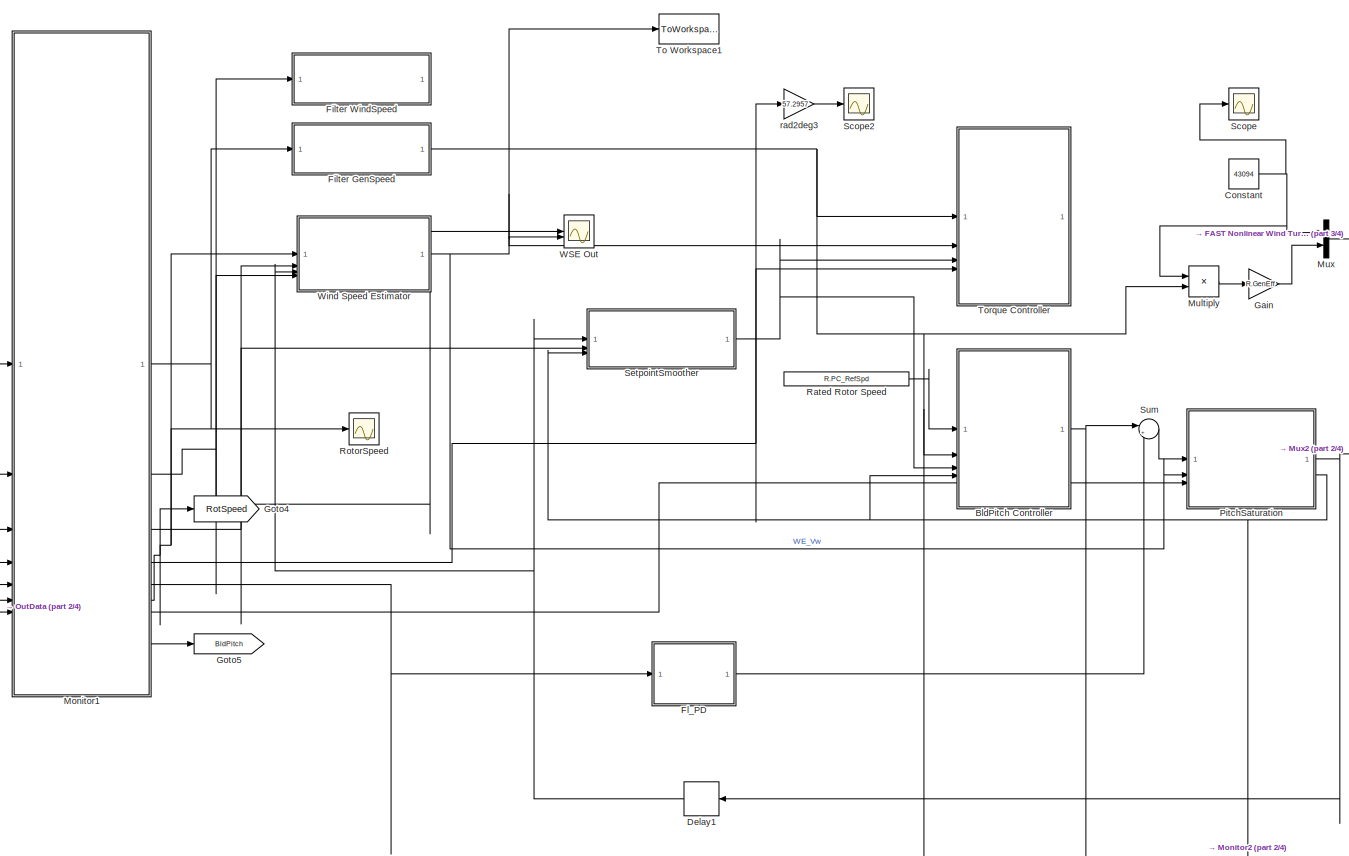
[diagram: root canvas - part 1/4, top left region]
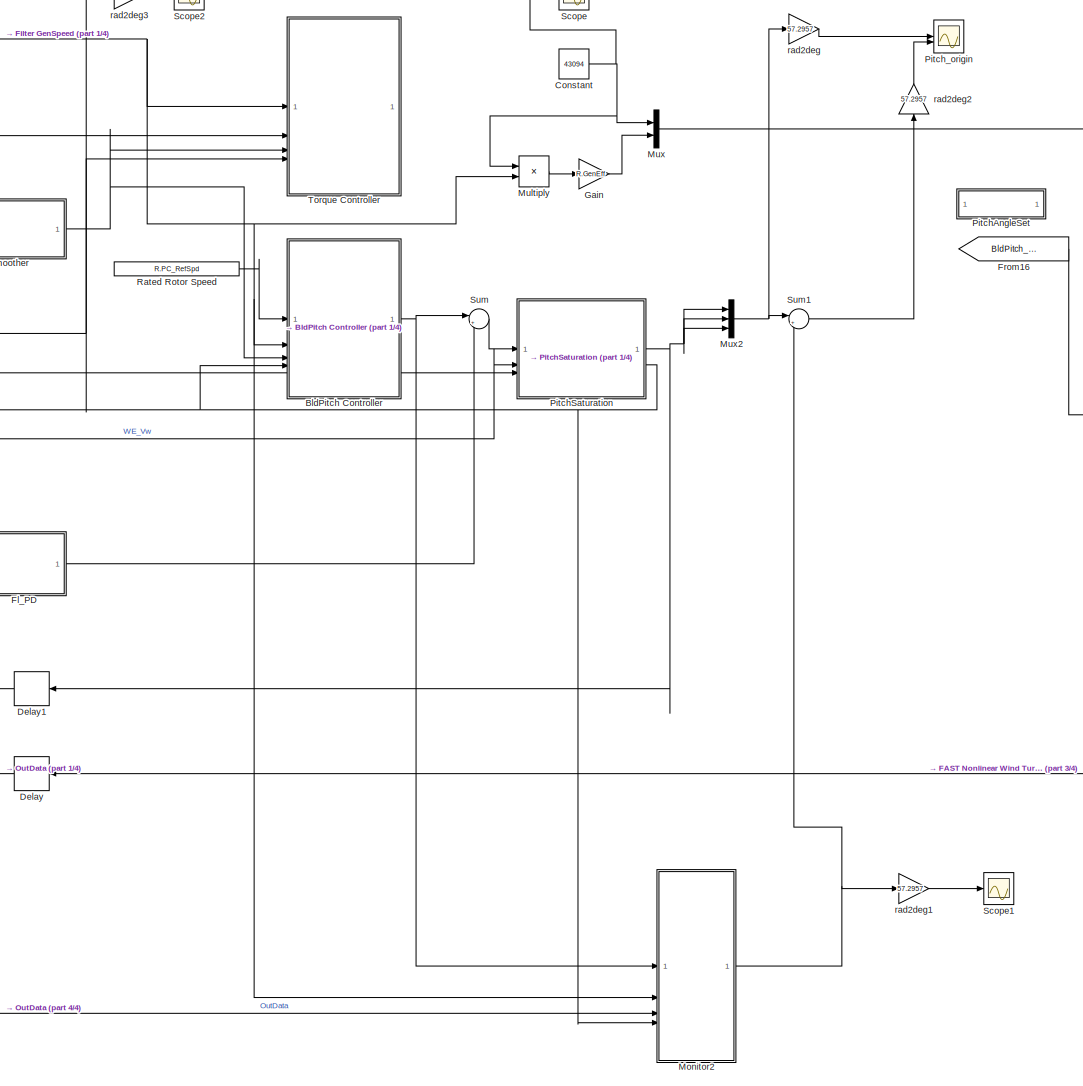
[diagram: root canvas - part 2/4, top center region]
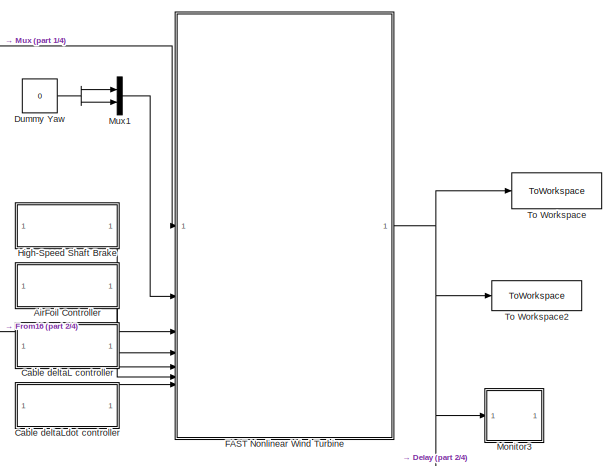
[diagram: root canvas - part 3/4, top right region]
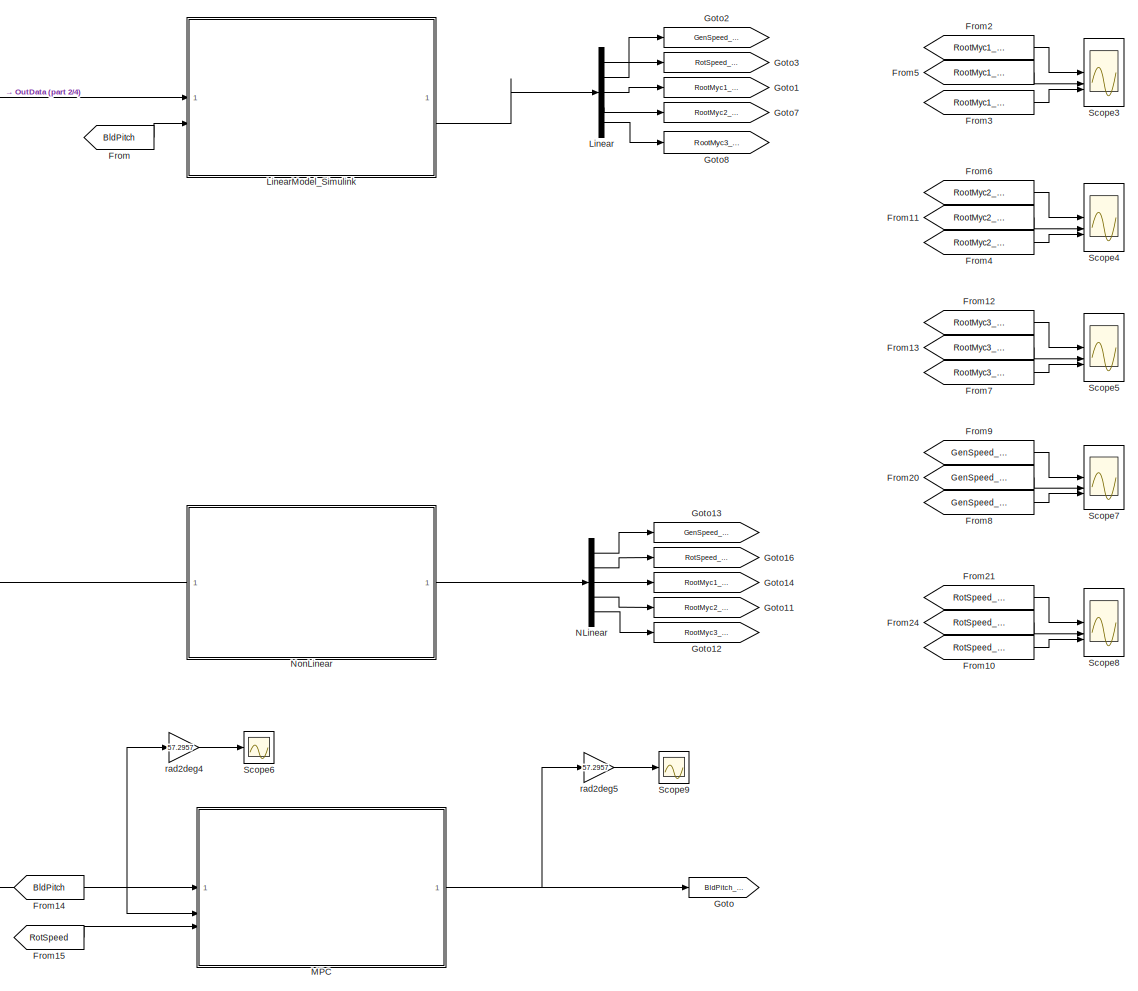
[diagram: root canvas - part 4/4, bottom center region]
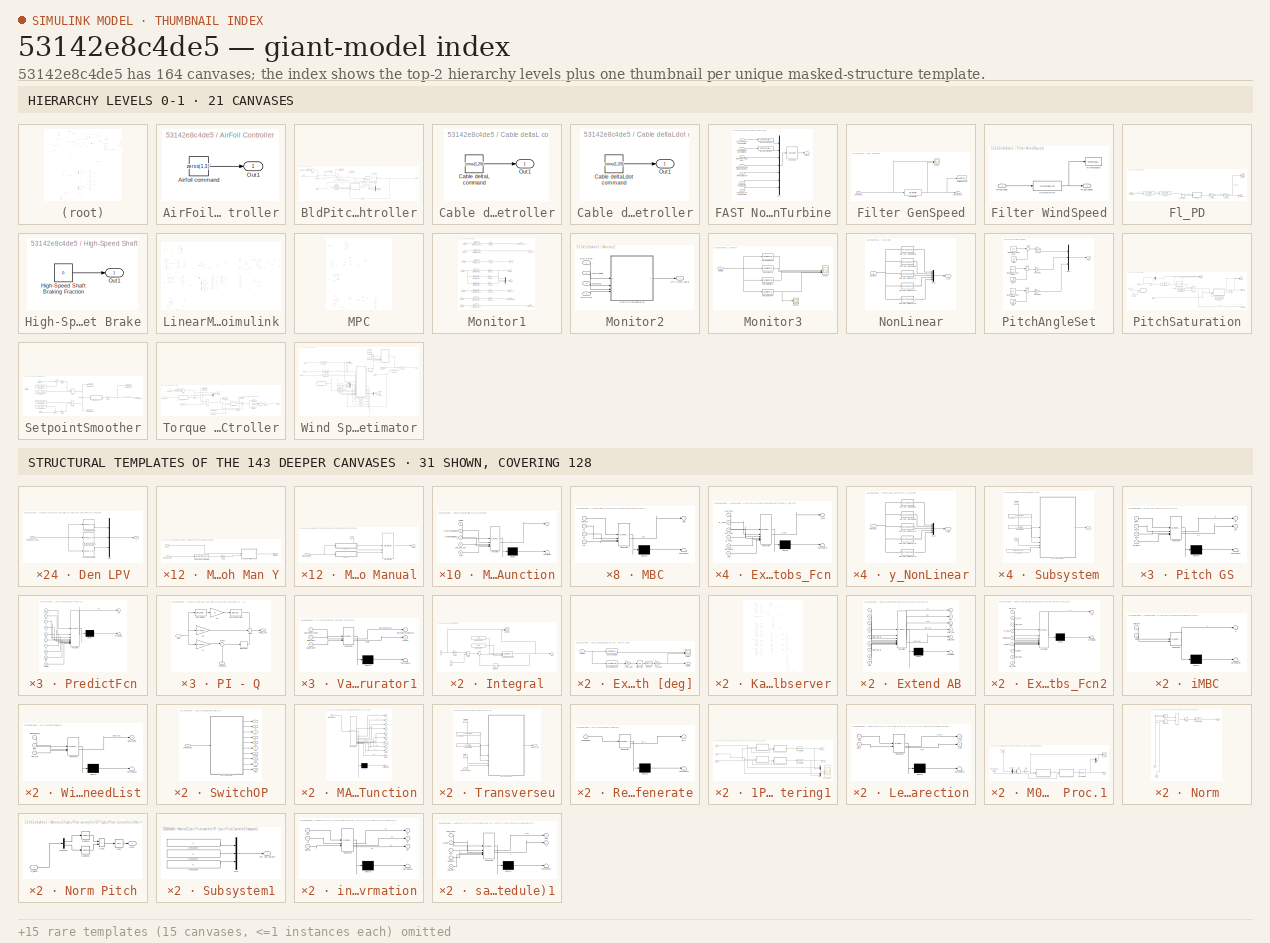
[diagram: thumbnail index - top-2 hierarchy levels (21 canvases) + 31 structural-template representatives of the remaining 143 canvases]
MODEL slx_53142e8c4de5
KIND model
CONFIG AbsTol = auto
CONFIG EnableMultiTasking = off
CONFIG FixedStep = auto
CONFIG MaxStep = auto
CONFIG MinStep = auto
CONFIG RelTol = 1e-3
CONFIG SampleTimeConstraint = Unconstrained
CONFIG SolverName = VariableStepAuto
CONFIG StartTime = 0.0
CONFIG StopTime = TMax
BLOCK [SubSystem] AirFoil Controller
BLOCK [Constant] AirFoil Controller/Airfoil command
  Value = zeros(1,3)'
BLOCK [Outport] AirFoil Controller/Out1
BLOCK [SubSystem] BldPitch Controller
BLOCK [Outport] BldPitch Controller/BldPitch
  VectorParamsAs1DForOutWhenUnconnected = off
BLOCK [Reference] BldPitch Controller/Compare To Zero1  REF=simulink/Logic and Bit
Operations/Compare
To Zero
  SourceBlock = simulink/Logic and Bit\nOperations/Compare\nTo Zero
  SourceType = Compare To Zero
BLOCK [Constant] BldPitch Controller/Constant1
  Value = R.PC_GS_KP
BLOCK [Constant] BldPitch Controller/Constant2
  Value = R.PC_GS_KI
BLOCK [Constant] BldPitch Controller/Constant3
  Value = R.PC_GS_angles
BLOCK [Inport] BldPitch Controller/Del_omega_g
  NameLocation = top
  Port = 3
BLOCK [Delay] BldPitch Controller/Delay
  DelayLength = 1
  InputPortMap = u0
BLOCK [Inport] BldPitch Controller/GenSpeedF
  NameLocation = top
  Port = 2
BLOCK [SubSystem] BldPitch Controller/Integral
BLOCK [Inport] BldPitch Controller/Integral/Gain
  Port = 2
BLOCK [Gain] BldPitch Controller/Integral/Gain1
  Gain = simu.dt
BLOCK [Outport] BldPitch Controller/Integral/IntSpdErr
  VectorParamsAs1DForOutWhenUnconnected = off
BLOCK [Constant] BldPitch Controller/Integral/Maximum Pitch
  NameLocation = top
  Value = R.PC_MaxPit
BLOCK [Inport] BldPitch Controller/Integral/Min Pitch
  Port = 3
BLOCK [Constant] BldPitch Controller/Integral/Minimum Pitch
  NameLocation = top
  Value = R.PC_MinPit
BLOCK [Product] BldPitch Controller/Integral/Multiply
BLOCK [Reference] BldPitch Controller/Integral/Saturate Integral Term  REF=simulink/Discontinuities/Saturation
Dynamic
  SourceBlock = simulink/Discontinuities/Saturation\nDynamic
  SourceType = Saturation Dynamic
BLOCK [Inport] BldPitch Controller/Integral/SpeedErr
BLOCK [Sum] BldPitch Controller/Integral/Sum
  Inputs = |++
BLOCK [UnitDelay] BldPitch Controller/Integral/Unit Delay
  HasFrameUpgradeWarning = on
  NameLocation = top
  SampleTime = -1
BLOCK [Inport] BldPitch Controller/Min Pitch
  NameLocation = top
  Port = 4
BLOCK [Product] BldPitch Controller/Multiply
BLOCK [Product] BldPitch Controller/Multiply3
BLOCK [Mux] BldPitch Controller/Mux
  DisplayOption = bar
  Inputs = 5
  NameLocation = top
BLOCK [SubSystem] BldPitch Controller/Pitch GS
  ErrorFcn = Stateflow.Translate.translate
  PermitHierarchicalResolution = ExplicitOnly
  SFBlockType = MATLAB Function
  TreatAsAtomicUnit = on
BLOCK [Demux] BldPitch Controller/Pitch GS/ Demux 
  Outputs = 1
BLOCK [S-Function] BldPitch Controller/Pitch GS/ SFunction 
  EnableBusSupport = on
  FunctionName = sf_sfun
  PortCounts = [4 3]
  SFcnIsStateOwnerBlock = off
  SFunctionDeploymentMode = off
  Tag = Stateflow S-Function 6
BLOCK [Terminator] BldPitch Controller/Pitch GS/ Terminator 
BLOCK [Inport] BldPitch Controller/Pitch GS/Beta
BLOCK [Outport] BldPitch Controller/Pitch GS/Ki
  VectorParamsAs1DForOutWhenUnconnected = off
BLOCK [Inport] BldPitch Controller/Pitch GS/Ki_pc
  Port = 3
BLOCK [Outport] BldPitch Controller/Pitch GS/Kp
  Port = 2
  VectorParamsAs1DForOutWhenUnconnected = off
BLOCK [Inport] BldPitch Controller/Pitch GS/Kp_pc
  Port = 2
BLOCK [Inport] BldPitch Controller/Pitch GS/PC_beta
  Port = 4
BLOCK [Scope] BldPitch Controller/Scope
  Commented = on
  Floating = off
  NumInputPorts = 2
  ScopeSpecificationString = Simulink.scopes.TimeScopeBlockCfg('CurrentConfiguration', extmgr.ConfigurationSet(extmgr.Configuration('Core','General UI',true),extmgr.Configuration('Core','Source UI',true),extmgr.Configuration('Sources','WiredSimulink',true,'DataLoggingVariableName','ScopeData1'),extmgr.Configuration('Visuals','Time Domain',true,'SerializedDisplays',{struct('MinYLimReal','-15.34195','MaxYLimReal','161.74389','Y...<+1436ch>
BLOCK [Scope] BldPitch Controller/Scope1
  Commented = on
  Floating = off
  NumInputPorts = 1
  ScopeSpecificationString = Simulink.scopes.TimeScopeBlockCfg('CurrentConfiguration', extmgr.ConfigurationSet(extmgr.Configuration('Core','General UI',true),extmgr.Configuration('Core','Source UI',true),extmgr.Configuration('Sources','WiredSimulink',true,'DataLoggingVariableName','ScopeData1'),extmgr.Configuration('Visuals','Time Domain',true,'SerializedDisplays',{struct('MinYLimReal','-0.02964','MaxYLimReal','0.31037','YLab...<+1464ch>
BLOCK [Sum] BldPitch Controller/Sum
  IconShape = rectangular
  Inputs = +-
BLOCK [Sum] BldPitch Controller/Sum1
  Inputs = |++
BLOCK [Sum] BldPitch Controller/Sum3
  Inputs = -+|
BLOCK [ToWorkspace] BldPitch Controller/To Workspace
  FixptAsFi = on
  MaxDataPoints = inf
  SampleTime = -1
  SaveFormat = Timeseries
  VariableName = SpdErr
BLOCK [ToWorkspace] BldPitch Controller/To Workspace1
  FixptAsFi = on
  MaxDataPoints = inf
  SampleTime = -1
  SaveFormat = Structure
  VariableName = PC_params
BLOCK [ToWorkspace] BldPitch Controller/To Workspace2
  FixptAsFi = on
  MaxDataPoints = inf
  SampleTime = -1
  SaveFormat = Timeseries
  VariableName = Omega_bg_ref
BLOCK [Inport] BldPitch Controller/omega_g,ref
  NameLocation = top
BLOCK [SubSystem] Cable deltaL controller
BLOCK [Constant] Cable deltaL controller/Cable deltaL command
  Value = zeros(1,20)'
BLOCK [Outport] Cable deltaL controller/Out1
BLOCK [SubSystem] Cable deltaLdot controller
BLOCK [Constant] Cable deltaLdot controller/Cable deltaLdot command
  Value = zeros(1,20)'
BLOCK [Outport] Cable deltaLdot controller/Out1
BLOCK [Constant] Constant
  Value = 43094
BLOCK [Delay] Delay
  Commented = through
  DelayLength = 1
  InputPortMap = u0
BLOCK [Delay] Delay1
  DelayLength = 1
  InputPortMap = u0
BLOCK [Constant] Dummy Yaw
  Value = 0
BLOCK [SubSystem] FAST Nonlinear Wind Turbine
BLOCK [Inport] FAST Nonlinear Wind Turbine/AirFoil command (-)
  Port = 5
BLOCK [Inport] FAST Nonlinear Wind Turbine/Blade Pitch Angles (rad)
  Port = 3
BLOCK [Inport] FAST Nonlinear Wind Turbine/Cable deltaL command (m)
  Port = 6
BLOCK [Inport] FAST Nonlinear Wind Turbine/Cable deltaLdot command (m//s)
  Port = 7
BLOCK [Inport] FAST Nonlinear Wind Turbine/Gen. Torque (Nm) and Power (W)
BLOCK [Inport] FAST Nonlinear Wind Turbine/High-Speed Shaft Braking Fraction (-)
  Port = 4
BLOCK [Mux] FAST Nonlinear Wind Turbine/Mux1
  DisplayOption = bar
  Inputs = 7
BLOCK [Outport] FAST Nonlinear Wind Turbine/OutData
BLOCK [S-Function] FAST Nonlinear Wind Turbine/S-Function
  EnableBusSupport = off
  FunctionName = FAST_SFunc
  Parameters = FAST_InputFileName, TMax, 0
  SFcnIsStateOwnerBlock = off
  SFunctionDeploymentMode = off
BLOCK [SignalSpecification] FAST Nonlinear Wind Turbine/Signal Specification1
  Dimensions = 2
  OutDataTypeStr = double
  SignalType = real
BLOCK [SignalSpecification] FAST Nonlinear Wind Turbine/Signal Specification2
  Dimensions = 2
  OutDataTypeStr = double
  SignalType = real
BLOCK [Inport] FAST Nonlinear Wind Turbine/Yaw Position (rad) and Rate (rad//s)
  Port = 2
BLOCK [SubSystem] Filter GenSpeed
BLOCK [DiscreteFilter] Filter GenSpeed/Discrete Filter
  Denominator = F.HSS.a
  InitialStates = R.VS_RefSpd/(sum(F.HSS.a(2:end))+1)
  InputPortMap = u0
  Numerator = F.HSS.b
BLOCK [Inport] Filter GenSpeed/GenSpeed
BLOCK [Outport] Filter GenSpeed/GenSpeedF
  VectorParamsAs1DForOutWhenUnconnected = off
BLOCK [Scope] Filter GenSpeed/Scope
  Floating = off
  NumInputPorts = 2
  ScopeSpecificationString = Simulink.scopes.TimeScopeBlockCfg('CurrentConfiguration', extmgr.ConfigurationSet(extmgr.Configuration('Core','General UI',true),extmgr.Configuration('Core','Source UI',true),extmgr.Configuration('Sources','WiredSimulink',true,'DataLoggingVariableName','ScopeData2'),extmgr.Configuration('Visuals','Time Domain',true,'SerializedDisplays',{struct('MinYLimReal','122.90957','MaxYLimReal','122.90968','Y...<+1423ch>
BLOCK [ToWorkspace] Filter GenSpeed/To Workspace2
  FixptAsFi = on
  MaxDataPoints = inf
  SampleTime = -1
  SaveFormat = Timeseries
  VariableName = Om_f
BLOCK [SubSystem] Filter WindSpeed
BLOCK [DiscreteFilter] Filter WindSpeed/Discrete Filter
  Denominator = F.Wind.a
  InitialStates = 10
  InputPortMap = u0
  Numerator = F.Wind.b
BLOCK [ToWorkspace] Filter WindSpeed/To Workspace2
  FixptAsFi = on
  MaxDataPoints = inf
  SampleTime = -1
  SaveFormat = Timeseries
  VariableName = WindSpeedF
BLOCK [Inport] Filter WindSpeed/WindSpeed
BLOCK [Outport] Filter WindSpeed/WindSpeedF
  VectorParamsAs1DForOutWhenUnconnected = off
BLOCK [SubSystem] Fl_PD
BLOCK [Constant] Fl_PD/Constant
BLOCK [Gain] Fl_PD/Enable
  Gain = R.Fl_Mode
BLOCK [DiscreteFilter] Fl_PD/Fl_HPF
  Denominator = F.F_Fl_HPF.b
  InputPortMap = u0
  Numerator = F.F_Fl_HPF.b
BLOCK [DiscreteFilter] Fl_PD/Fl_LPF
  Denominator = F.F_Fl.a
  InputPortMap = u0
  Numerator = F.F_Fl.b
BLOCK [Outport] Fl_PD/Fl_Pitcom
BLOCK [Gain] Fl_PD/Gain1
  Gain = -R.Fl_Kp
BLOCK [SubSystem] Fl_PD/Integral
BLOCK [Inport] Fl_PD/Integral/Gain
  Port = 2
BLOCK [Gain] Fl_PD/Integral/Gain1
  Gain = simu.dt
BLOCK [Outport] Fl_PD/Integral/Int x
  VectorParamsAs1DForOutWhenUnconnected = off
BLOCK [Constant] Fl_PD/Integral/Maximum Pitch
  NameLocation = top
  Value = 100
BLOCK [Constant] Fl_PD/Integral/Minimum Pitch
  NameLocation = top
  Value = -100
BLOCK [Product] Fl_PD/Integral/Multiply
BLOCK [Reference] Fl_PD/Integral/Saturate Integral Term  REF=simulink/Discontinuities/Saturation
Dynamic
  SourceBlock = simulink/Discontinuities/Saturation\nDynamic
  SourceType = Saturation Dynamic
BLOCK [Scope] Fl_PD/Integral/Scope
  Floating = off
  NumInputPorts = 2
  ScopeSpecificationString = Simulink.scopes.TimeScopeBlockCfg('CurrentConfiguration', extmgr.ConfigurationSet(extmgr.Configuration('Core','General UI',true),extmgr.Configuration('Core','Source UI',true),extmgr.Configuration('Sources','WiredSimulink',true,'DataLoggingVariableName','ScopeData3'),extmgr.Configuration('Visuals','Time Domain',true,'SerializedDisplays',{struct('MinYLimReal','-1.00000','MaxYLimReal','1.00000','YLab...<+1434ch>
BLOCK [Sum] Fl_PD/Integral/Sum
  Inputs = |++
BLOCK [UnitDelay] Fl_PD/Integral/Unit Delay
  HasFrameUpgradeWarning = on
  NameLocation = top
  SampleTime = -1
BLOCK [Inport] Fl_PD/Integral/x
BLOCK [Inport] Fl_PD/NacIMU
  NameLocation = top
BLOCK [Scope] Fl_PD/Scope
  Floating = off
  NumInputPorts = 1
  ScopeSpecificationString = Simulink.scopes.TimeScopeBlockCfg('CurrentConfiguration', extmgr.ConfigurationSet(extmgr.Configuration('Core','General UI',true),extmgr.Configuration('Core','Source UI',true),extmgr.Configuration('Sources','WiredSimulink',true,'DataLoggingVariableName','ScopeData1'),extmgr.Configuration('Visuals','Time Domain',true),extmgr.Configuration('Tools','Plot Navigation',true),extmgr.Configuration('Tools',...<+40ch>
BLOCK [From] From
  GotoTag = BldPitch
BLOCK [From] From10
  GotoTag = RotSpeed_NR
BLOCK [From] From11
  Commented = on
  GotoTag = RootMyc2_Fcn
BLOCK [From] From12
  GotoTag = RootMyc3_LR
BLOCK [From] From13
  Commented = on
  GotoTag = RootMyc3_Fcn
BLOCK [From] From14
  GotoTag = BldPitch
BLOCK [From] From15
  GotoTag = RotSpeed
BLOCK [From] From16
  GotoTag = BldPitch_in
BLOCK [From] From2
  GotoTag = RootMyc1_LR
BLOCK [From] From20
  Commented = on
  GotoTag = GenSpeed_Fcn
BLOCK [From] From21
  GotoTag = RotSpeed_LR
BLOCK [From] From24
  Commented = on
  GotoTag = RotSpeed_Fcn
BLOCK [From] From3
  GotoTag = RootMyc1_NR
BLOCK [From] From4
  GotoTag = RootMyc2_NR
BLOCK [From] From5
  Commented = on
  GotoTag = RootMyc1_Fcn
BLOCK [From] From6
  GotoTag = RootMyc2_LR
BLOCK [From] From7
  GotoTag = RootMyc3_NR
BLOCK [From] From8
  GotoTag = GenSpeed_NR
BLOCK [From] From9
  GotoTag = GenSpeed_LR
BLOCK [Gain] Gain
  Gain = R.GenEff
BLOCK [Goto] Goto
  GotoTag = BldPitch_in
BLOCK [Goto] Goto1
  GotoTag = RootMyc1_LR
BLOCK [Goto] Goto11
  GotoTag = RootMyc2_NR
BLOCK [Goto] Goto12
  GotoTag = RootMyc3_NR
BLOCK [Goto] Goto13
  GotoTag = GenSpeed_NR
BLOCK [Goto] Goto14
  GotoTag = RootMyc1_NR
BLOCK [Goto] Goto16
  GotoTag = RotSpeed_NR
BLOCK [Goto] Goto2
  GotoTag = GenSpeed_LR
BLOCK [Goto] Goto3
  GotoTag = RotSpeed_LR
BLOCK [Goto] Goto4
  GotoTag = RotSpeed
BLOCK [Goto] Goto5
  GotoTag = BldPitch
BLOCK [Goto] Goto7
  GotoTag = RootMyc2_LR
BLOCK [Goto] Goto8
  GotoTag = RootMyc3_LR
BLOCK [SubSystem] High-Speed Shaft Brake
BLOCK [Constant] High-Speed Shaft Brake/High-Speed Shaft Braking Fraction
  Value = 0
BLOCK [Outport] High-Speed Shaft Brake/Out1
BLOCK [Demux] Linear
  Outputs = 5
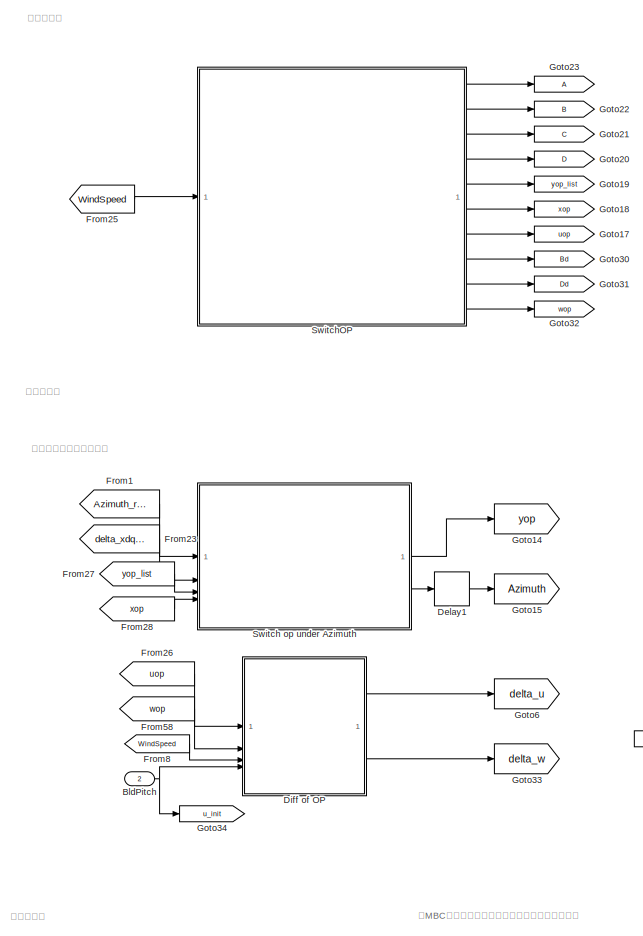
[diagram: LinearModel_Simulink - part 1/6, top left region]
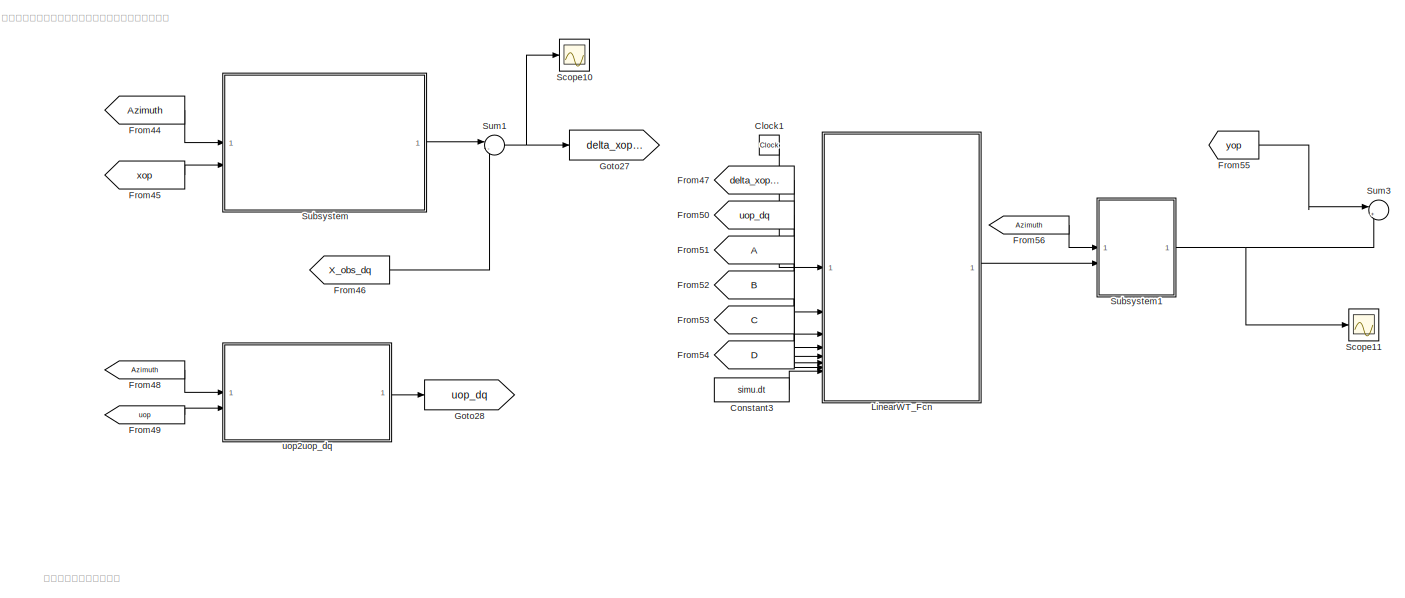
[diagram: LinearModel_Simulink - part 2/6, top right region]
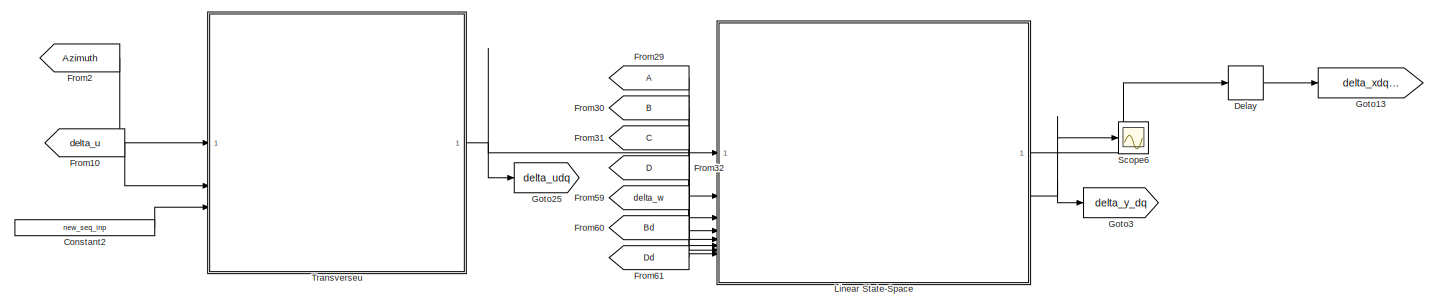
[diagram: LinearModel_Simulink - part 3/6, top center region]
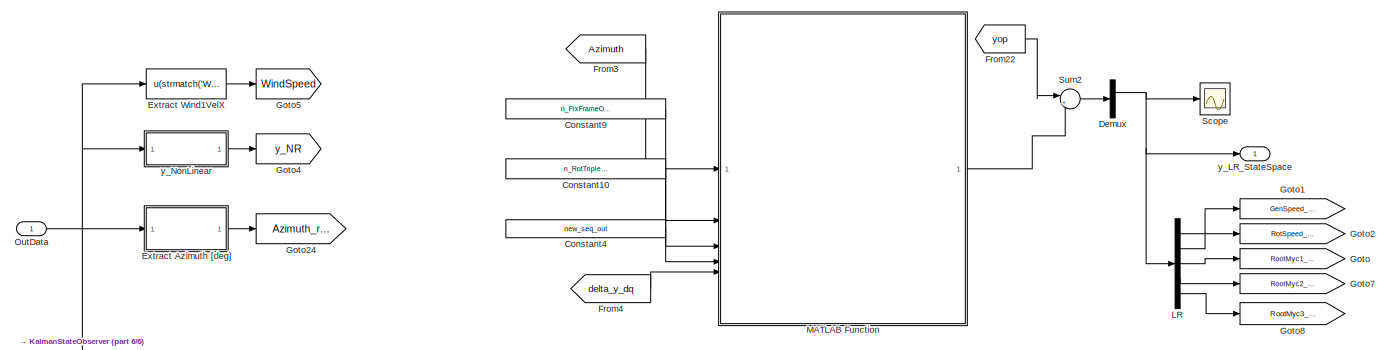
[diagram: LinearModel_Simulink - part 4/6, middle left region]
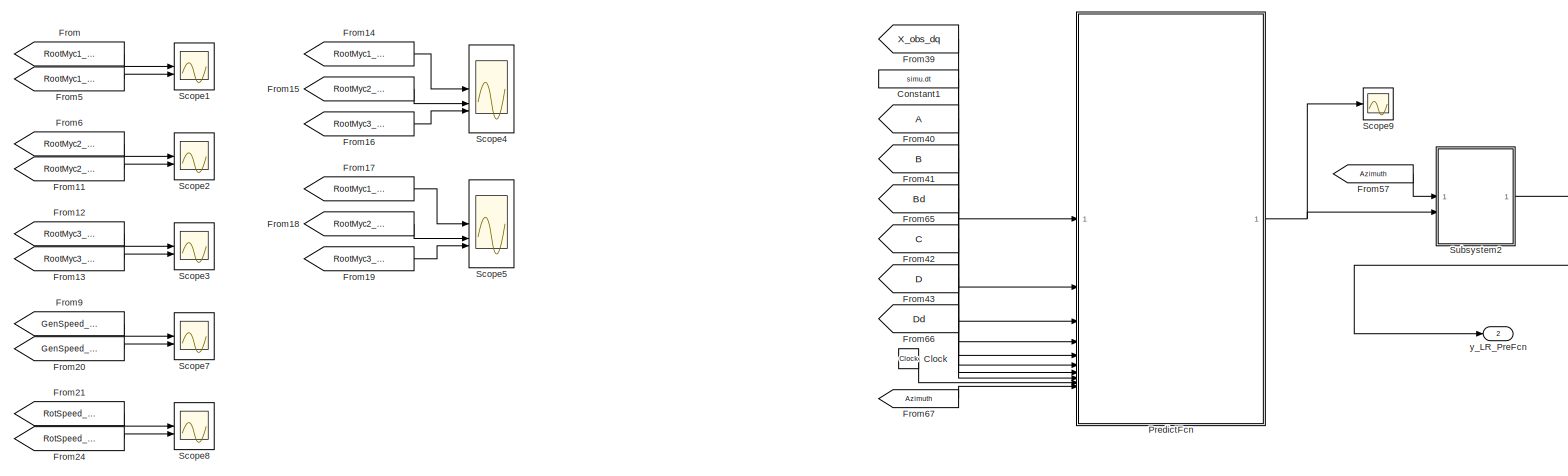
[diagram: LinearModel_Simulink - part 5/6, central region]
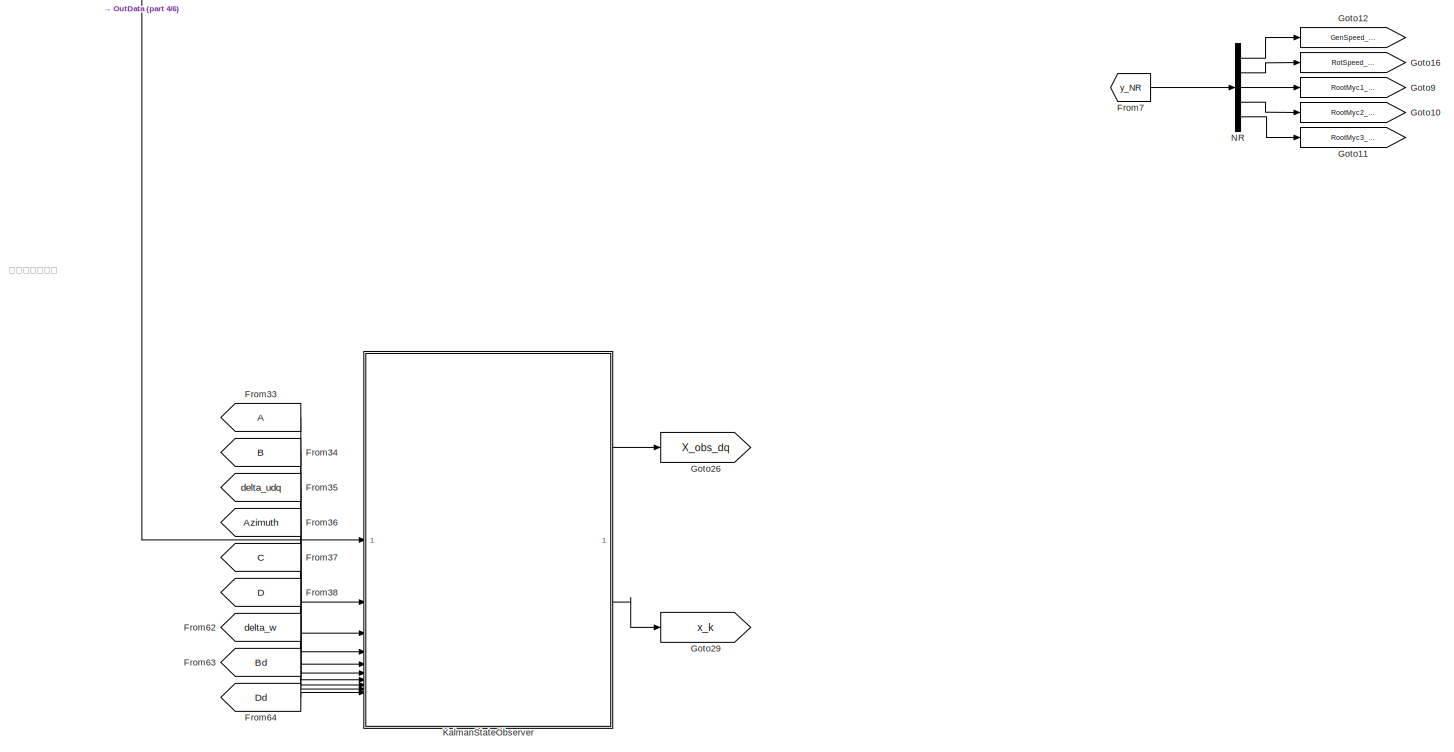
[diagram: LinearModel_Simulink - part 6/6, bottom left region]
BLOCK [SubSystem] LinearModel_Simulink
  Commented = on
  TreatAsAtomicUnit = on
BLOCK [Inport] LinearModel_Simulink/BldPitch
  Port = 2
BLOCK [Clock] LinearModel_Simulink/Clock
  Commented = on
BLOCK [Clock] LinearModel_Simulink/Clock1
  Commented = on
BLOCK [Constant] LinearModel_Simulink/Constant1
  Commented = on
  Value = simu.dt
BLOCK [Constant] LinearModel_Simulink/Constant10
  Value = n_RotTripletOutputs
BLOCK [Constant] LinearModel_Simulink/Constant2
  Value = new_seq_inp
BLOCK [Constant] LinearModel_Simulink/Constant3
  Commented = on
  Value = simu.dt
BLOCK [Constant] LinearModel_Simulink/Constant4
  Value = new_seq_out
BLOCK [Constant] LinearModel_Simulink/Constant9
  Value = n_FixFrameOutputs
BLOCK [Delay] LinearModel_Simulink/Delay
  DelayLength = 1
  InitialCondition = 0
  InputPortMap = u0
BLOCK [Delay] LinearModel_Simulink/Delay1
  DelayLength = 1
  InitialCondition = 0
  InputPortMap = u0
BLOCK [Demux] LinearModel_Simulink/Demux
  Outputs = 1
BLOCK [SubSystem] LinearModel_Simulink/Diff of OP
  ErrorFcn = Stateflow.Translate.translate
  LibrarySourceBlock = simulink/User-Defined\nFunctions/MATLAB Function
  PermitHierarchicalResolution = ExplicitOnly
  SFBlockType = MATLAB Function
  TreatAsAtomicUnit = on
BLOCK [Demux] LinearModel_Simulink/Diff of OP/ Demux 
  Outputs = 1
BLOCK [S-Function] LinearModel_Simulink/Diff of OP/ SFunction 
  EnableBusSupport = on
  FunctionName = sf_sfun
  PortCounts = [4 3]
  SFcnIsStateOwnerBlock = off
  SFunctionDeploymentMode = off
  Tag = Stateflow S-Function 19
BLOCK [Terminator] LinearModel_Simulink/Diff of OP/ Terminator 
BLOCK [Inport] LinearModel_Simulink/Diff of OP/Avg_u
BLOCK [Inport] LinearModel_Simulink/Diff of OP/Avg_w
  Port = 2
BLOCK [Inport] LinearModel_Simulink/Diff of OP/BldPitch
  Port = 4
BLOCK [Inport] LinearModel_Simulink/Diff of OP/WindSpeed
  Port = 3
BLOCK [Outport] LinearModel_Simulink/Diff of OP/delta_u
BLOCK [Outport] LinearModel_Simulink/Diff of OP/delta_w
  Port = 2
BLOCK [SubSystem] LinearModel_Simulink/Extract Azimuth [deg]
BLOCK [Scope] LinearModel_Simulink/Extract Azimuth [deg]/Azimut
  Floating = off
  NumInputPorts = 2
  ScopeSpecificationString = Simulink.scopes.TimeScopeBlockCfg('CurrentConfiguration', extmgr.ConfigurationSet(extmgr.Configuration('Core','General UI',true),extmgr.Configuration('Core','Source UI',true),extmgr.Configuration('Sources','WiredSimulink',true,'DataLoggingVariableName','ScopeData1'),extmgr.Configuration('Visuals','Time Domain',true,'SerializedDisplays',{struct('MinYLimReal','-44.99605','MaxYLimReal','404.96444','Y...<+1437ch>
BLOCK [Outport] LinearModel_Simulink/Extract Azimuth [deg]/Azimuth
BLOCK [Fcn] LinearModel_Simulink/Extract Azimuth [deg]/Extract Azimuth
  Expr = u(strmatch('Azimuth',OutList))
BLOCK [Fcn] LinearModel_Simulink/Extract Azimuth [deg]/Extract RotSpeed
  Expr = u(strmatch('RotSpeed',OutList))
BLOCK [Integrator] LinearModel_Simulink/Extract Azimuth [deg]/Integrator
BLOCK [Inport] LinearModel_Simulink/Extract Azimuth [deg]/OutData
BLOCK [Fcn] LinearModel_Simulink/Extract Azimuth [deg]/mod2pi
  Expr = rem(u, 2*pi)
BLOCK [Gain] LinearModel_Simulink/Extract Azimuth [deg]/rad2deg
  Gain = 1/pi*180
BLOCK [Gain] LinearModel_Simulink/Extract Azimuth [deg]/rpm2rad//s
  Gain = pi/30
BLOCK [Fcn] LinearModel_Simulink/Extract Wind1VelX
  Expr = u(strmatch('Wind1VelX',OutList))
BLOCK [From] LinearModel_Simulink/From
  Commented = on
  GotoTag = RootMyc1_LR
BLOCK [From] LinearModel_Simulink/From1
  GotoTag = Azimuth_real
BLOCK [From] LinearModel_Simulink/From10
  GotoTag = delta_u
BLOCK [From] LinearModel_Simulink/From11
  Commented = on
  GotoTag = RootMyc2_NR
BLOCK [From] LinearModel_Simulink/From12
  Commented = on
  GotoTag = RootMyc3_LR
BLOCK [From] LinearModel_Simulink/From13
  Commented = on
  GotoTag = RootMyc3_NR
BLOCK [From] LinearModel_Simulink/From14
  Commented = on
  GotoTag = RootMyc1_LR
BLOCK [From] LinearModel_Simulink/From15
  Commented = on
  GotoTag = RootMyc2_LR
BLOCK [From] LinearModel_Simulink/From16
  Commented = on
  GotoTag = RootMyc3_LR
BLOCK [From] LinearModel_Simulink/From17
  Commented = on
  GotoTag = RootMyc1_NR
BLOCK [From] LinearModel_Simulink/From18
  Commented = on
  GotoTag = RootMyc2_NR
BLOCK [From] LinearModel_Simulink/From19
  Commented = on
  GotoTag = RootMyc3_NR
BLOCK [From] LinearModel_Simulink/From2
  GotoTag = Azimuth
BLOCK [From] LinearModel_Simulink/From20
  Commented = on
  GotoTag = GenSpeed_NR
BLOCK [From] LinearModel_Simulink/From21
  Commented = on
  GotoTag = RotSpeed_LR
BLOCK [From] LinearModel_Simulink/From22
  GotoTag = yop
BLOCK [From] LinearModel_Simulink/From23
  GotoTag = delta_xdq_new
BLOCK [From] LinearModel_Simulink/From24
  Commented = on
  GotoTag = RotSpeed_NR
BLOCK [From] LinearModel_Simulink/From25
  GotoTag = WindSpeed
BLOCK [From] LinearModel_Simulink/From26
  GotoTag = uop
BLOCK [From] LinearModel_Simulink/From27
  GotoTag = yop_list
BLOCK [From] LinearModel_Simulink/From28
  GotoTag = xop
BLOCK [From] LinearModel_Simulink/From29
BLOCK [From] LinearModel_Simulink/From3
  GotoTag = Azimuth
BLOCK [From] LinearModel_Simulink/From30
  GotoTag = B
BLOCK [From] LinearModel_Simulink/From31
  GotoTag = C
BLOCK [From] LinearModel_Simulink/From32
  GotoTag = D
BLOCK [From] LinearModel_Simulink/From33
BLOCK [From] LinearModel_Simulink/From34
  GotoTag = B
BLOCK [From] LinearModel_Simulink/From35
  GotoTag = delta_udq
BLOCK [From] LinearModel_Simulink/From36
  GotoTag = Azimuth
BLOCK [From] LinearModel_Simulink/From37
  GotoTag = C
BLOCK [From] LinearModel_Simulink/From38
  GotoTag = D
BLOCK [From] LinearModel_Simulink/From39
  Commented = on
  GotoTag = X_obs_dq
BLOCK [From] LinearModel_Simulink/From4
  GotoTag = delta_y_dq
BLOCK [From] LinearModel_Simulink/From40
  Commented = on
BLOCK [From] LinearModel_Simulink/From41
  Commented = on
  GotoTag = B
BLOCK [From] LinearModel_Simulink/From42
  Commented = on
  GotoTag = C
BLOCK [From] LinearModel_Simulink/From43
  Commented = on
  GotoTag = D
BLOCK [From] LinearModel_Simulink/From44
  Commented = on
  GotoTag = Azimuth
BLOCK [From] LinearModel_Simulink/From45
  Commented = on
  GotoTag = xop
BLOCK [From] LinearModel_Simulink/From46
  Commented = on
  GotoTag = X_obs_dq
BLOCK [From] LinearModel_Simulink/From47
  Commented = on
  GotoTag = delta_xop_dq
BLOCK [From] LinearModel_Simulink/From48
  Commented = on
  GotoTag = Azimuth
BLOCK [From] LinearModel_Simulink/From49
  Commented = on
  GotoTag = uop
BLOCK [From] LinearModel_Simulink/From5
  Commented = on
  GotoTag = RootMyc1_NR
BLOCK [From] LinearModel_Simulink/From50
  Commented = on
  GotoTag = uop_dq
BLOCK [From] LinearModel_Simulink/From51
  Commented = on
BLOCK [From] LinearModel_Simulink/From52
  Commented = on
  GotoTag = B
BLOCK [From] LinearModel_Simulink/From53
  Commented = on
  GotoTag = C
BLOCK [From] LinearModel_Simulink/From54
  Commented = on
  GotoTag = D
BLOCK [From] LinearModel_Simulink/From55
  Commented = on
  GotoTag = yop
BLOCK [From] LinearModel_Simulink/From56
  Commented = on
  GotoTag = Azimuth
BLOCK [From] LinearModel_Simulink/From57
  Commented = on
  GotoTag = Azimuth
BLOCK [From] LinearModel_Simulink/From58
  GotoTag = wop
BLOCK [From] LinearModel_Simulink/From59
  GotoTag = delta_w
BLOCK [From] LinearModel_Simulink/From6
  Commented = on
  GotoTag = RootMyc2_LR
BLOCK [From] LinearModel_Simulink/From60
  GotoTag = Bd
BLOCK [From] LinearModel_Simulink/From61
  GotoTag = Dd
BLOCK [From] LinearModel_Simulink/From62
  GotoTag = delta_w
BLOCK [From] LinearModel_Simulink/From63
  GotoTag = Bd
BLOCK [From] LinearModel_Simulink/From64
  GotoTag = Dd
BLOCK [From] LinearModel_Simulink/From65
  Commented = on
  GotoTag = Bd
BLOCK [From] LinearModel_Simulink/From66
  Commented = on
  GotoTag = Dd
BLOCK [From] LinearModel_Simulink/From67
  Commented = on
  GotoTag = Azimuth
BLOCK [From] LinearModel_Simulink/From7
  Commented = on
  GotoTag = y_NR
BLOCK [From] LinearModel_Simulink/From8
  GotoTag = WindSpeed
BLOCK [From] LinearModel_Simulink/From9
  Commented = on
  GotoTag = GenSpeed_LR
BLOCK [Goto] LinearModel_Simulink/Goto
  Commented = on
  GotoTag = RootMyc1_LR
BLOCK [Goto] LinearModel_Simulink/Goto1
  Commented = on
  GotoTag = GenSpeed_LR
BLOCK [Goto] LinearModel_Simulink/Goto10
  Commented = on
  GotoTag = RootMyc2_NR
BLOCK [Goto] LinearModel_Simulink/Goto11
  Commented = on
  GotoTag = RootMyc3_NR
BLOCK [Goto] LinearModel_Simulink/Goto12
  Commented = on
  GotoTag = GenSpeed_NR
BLOCK [Goto] LinearModel_Simulink/Goto13
  GotoTag = delta_xdq_new
BLOCK [Goto] LinearModel_Simulink/Goto14
  GotoTag = yop
BLOCK [Goto] LinearModel_Simulink/Goto15
  GotoTag = Azimuth
BLOCK [Goto] LinearModel_Simulink/Goto16
  Commented = on
  GotoTag = RotSpeed_NR
BLOCK [Goto] LinearModel_Simulink/Goto17
  GotoTag = uop
BLOCK [Goto] LinearModel_Simulink/Goto18
  GotoTag = xop
BLOCK [Goto] LinearModel_Simulink/Goto19
  GotoTag = yop_list
BLOCK [Goto] LinearModel_Simulink/Goto2
  Commented = on
  GotoTag = RotSpeed_LR
BLOCK [Goto] LinearModel_Simulink/Goto20
  GotoTag = D
BLOCK [Goto] LinearModel_Simulink/Goto21
  GotoTag = C
BLOCK [Goto] LinearModel_Simulink/Goto22
  GotoTag = B
BLOCK [Goto] LinearModel_Simulink/Goto23
BLOCK [Goto] LinearModel_Simulink/Goto24
  GotoTag = Azimuth_real
BLOCK [Goto] LinearModel_Simulink/Goto25
  GotoTag = delta_udq
BLOCK [Goto] LinearModel_Simulink/Goto26
  GotoTag = X_obs_dq
BLOCK [Goto] LinearModel_Simulink/Goto27
  Commented = on
  GotoTag = delta_xop_dq
BLOCK [Goto] LinearModel_Simulink/Goto28
  Commented = on
  GotoTag = uop_dq
BLOCK [Goto] LinearModel_Simulink/Goto29
  GotoTag = x_k
BLOCK [Goto] LinearModel_Simulink/Goto3
  GotoTag = delta_y_dq
BLOCK [Goto] LinearModel_Simulink/Goto30
  GotoTag = Bd
BLOCK [Goto] LinearModel_Simulink/Goto31
  GotoTag = Dd
BLOCK [Goto] LinearModel_Simulink/Goto32
  GotoTag = wop
BLOCK [Goto] LinearModel_Simulink/Goto33
  GotoTag = delta_w
BLOCK [Goto] LinearModel_Simulink/Goto34
  GotoTag = u_init
BLOCK [Goto] LinearModel_Simulink/Goto4
  GotoTag = y_NR
BLOCK [Goto] LinearModel_Simulink/Goto5
  GotoTag = WindSpeed
BLOCK [Goto] LinearModel_Simulink/Goto6
  GotoTag = delta_u
BLOCK [Goto] LinearModel_Simulink/Goto7
  Commented = on
  GotoTag = RootMyc2_LR
BLOCK [Goto] LinearModel_Simulink/Goto8
  Commented = on
  GotoTag = RootMyc3_LR
BLOCK [Goto] LinearModel_Simulink/Goto9
  Commented = on
  GotoTag = RootMyc1_NR
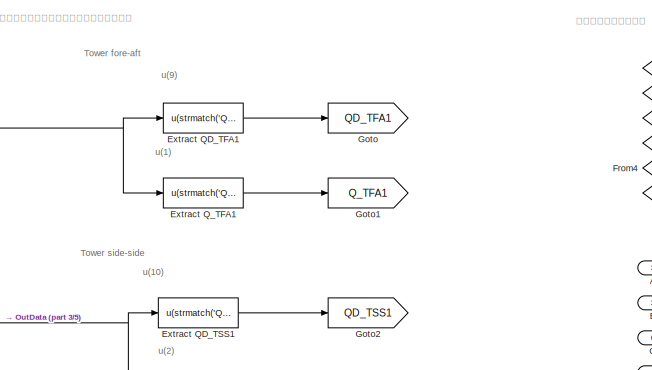
[diagram: LinearModel_Simulink/KalmanStateObserver - part 1/5, top left region]
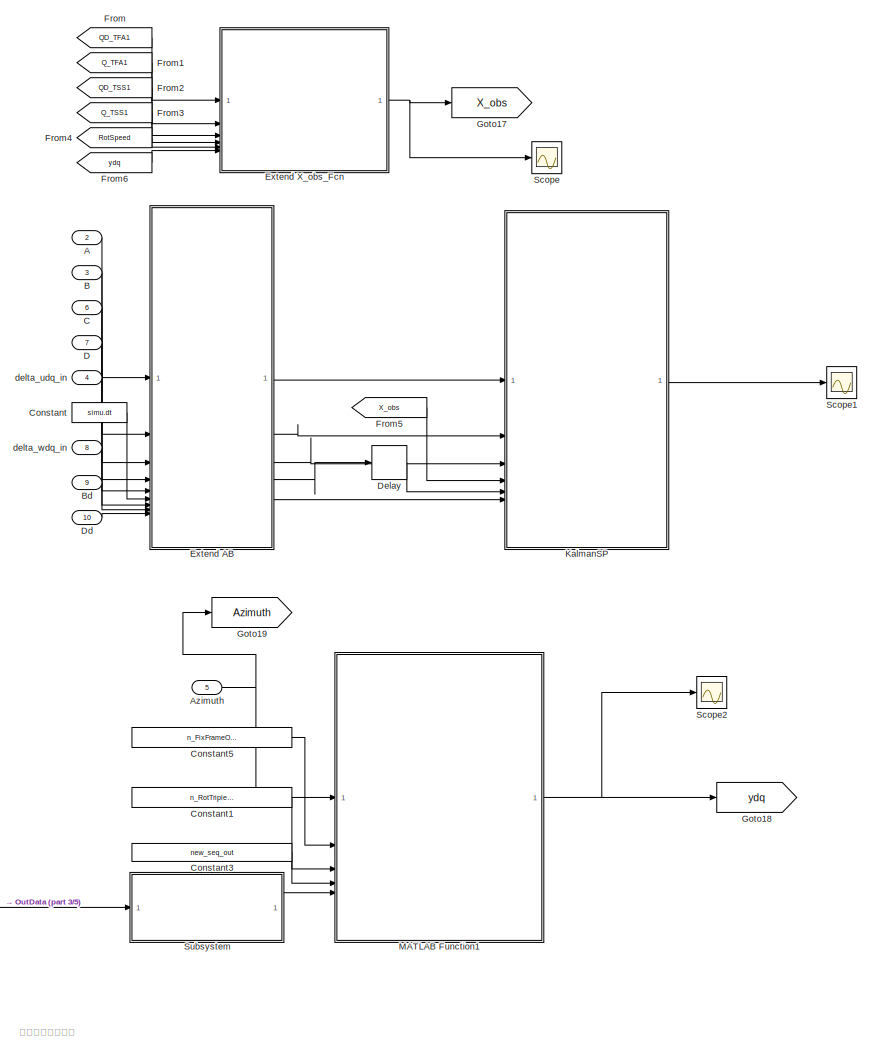
[diagram: LinearModel_Simulink/KalmanStateObserver - part 2/5, top center region]
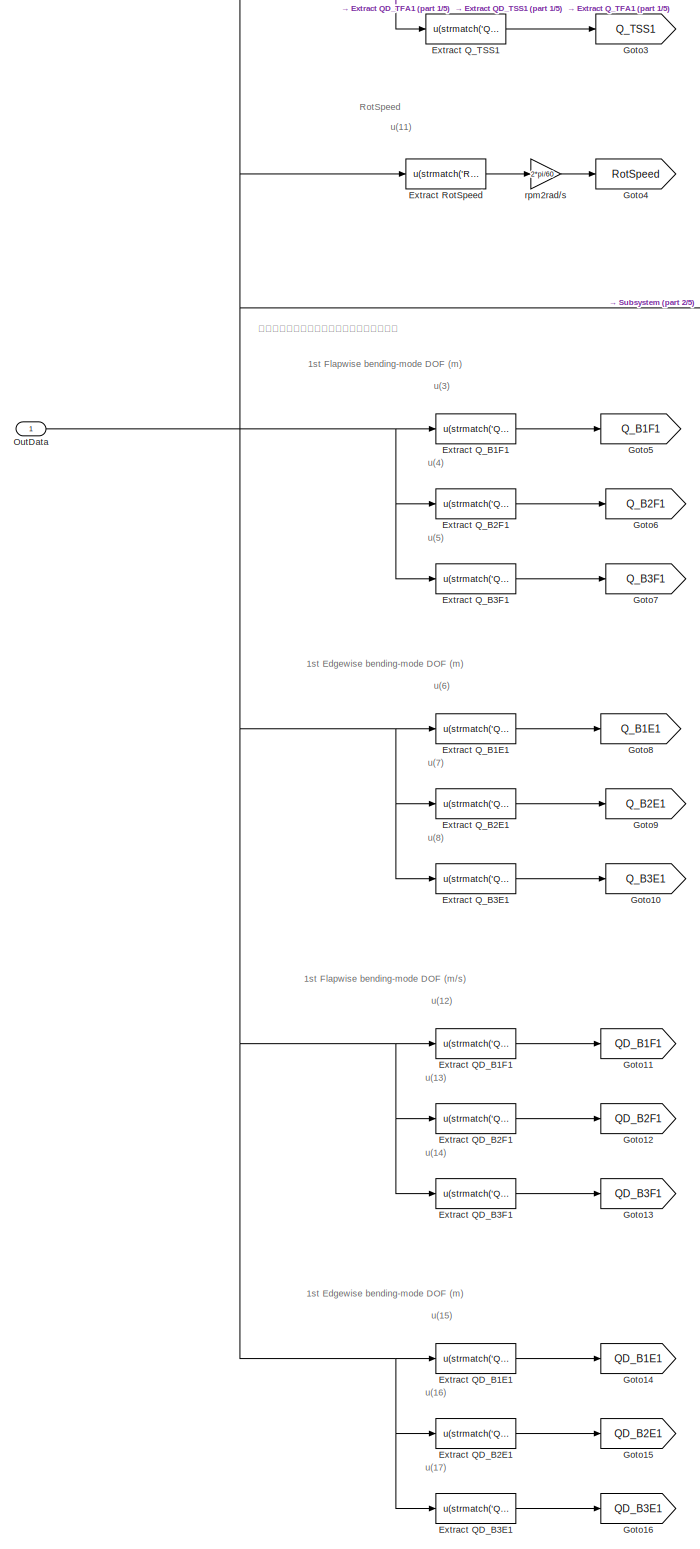
[diagram: LinearModel_Simulink/KalmanStateObserver - part 3/5, middle left region]
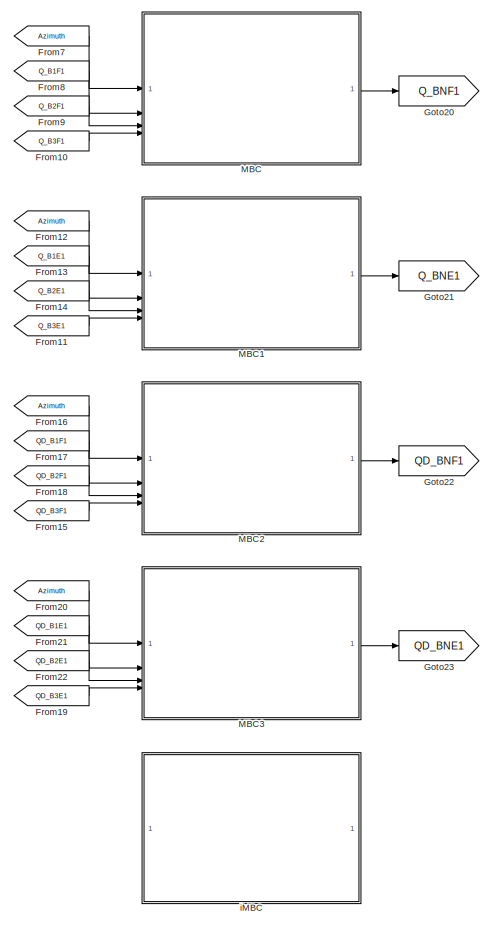
[diagram: LinearModel_Simulink/KalmanStateObserver - part 4/5, central region]
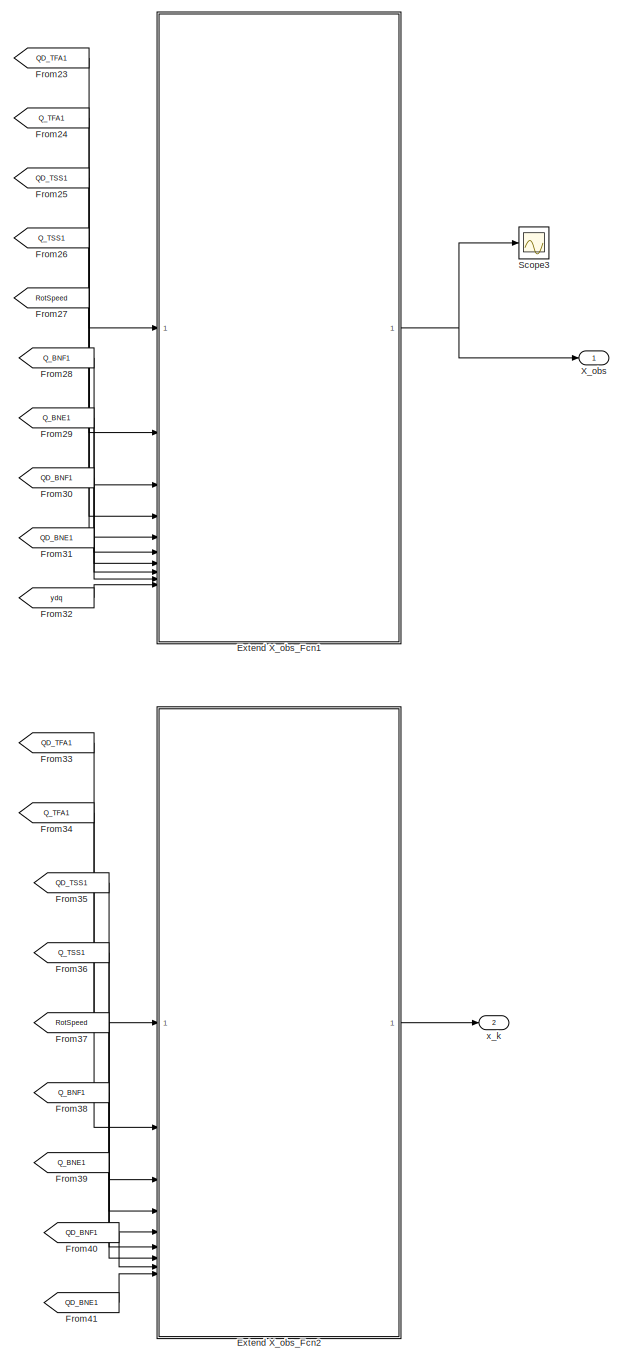
[diagram: LinearModel_Simulink/KalmanStateObserver - part 5/5, bottom right region]
BLOCK [SubSystem] LinearModel_Simulink/KalmanStateObserver
BLOCK [Inport] LinearModel_Simulink/KalmanStateObserver/A
  Port = 2
BLOCK [Inport] LinearModel_Simulink/KalmanStateObserver/Azimuth
  Port = 5
BLOCK [Inport] LinearModel_Simulink/KalmanStateObserver/B
  Port = 3
BLOCK [Inport] LinearModel_Simulink/KalmanStateObserver/Bd
  Port = 9
BLOCK [Inport] LinearModel_Simulink/KalmanStateObserver/C
  Port = 6
BLOCK [Constant] LinearModel_Simulink/KalmanStateObserver/Constant
  Value = simu.dt
BLOCK [Constant] LinearModel_Simulink/KalmanStateObserver/Constant1
  Value = n_RotTripletOutputs
BLOCK [Constant] LinearModel_Simulink/KalmanStateObserver/Constant3
  Value = new_seq_out
BLOCK [Constant] LinearModel_Simulink/KalmanStateObserver/Constant5
  Value = n_FixFrameOutputs
BLOCK [Inport] LinearModel_Simulink/KalmanStateObserver/D
  Port = 7
BLOCK [Inport] LinearModel_Simulink/KalmanStateObserver/Dd
  Port = 10
BLOCK [Delay] LinearModel_Simulink/KalmanStateObserver/Delay
  DelayLength = 1
  InitialCondition = 0
  InputPortMap = u0
BLOCK [SubSystem] LinearModel_Simulink/KalmanStateObserver/Extend AB
  ErrorFcn = Stateflow.Translate.translate
  LibrarySourceBlock = simulink/User-Defined\nFunctions/MATLAB Function
  PermitHierarchicalResolution = ExplicitOnly
  SFBlockType = MATLAB Function
  TreatAsAtomicUnit = on
BLOCK [Demux] LinearModel_Simulink/KalmanStateObserver/Extend AB/ Demux 
  Outputs = 1
BLOCK [S-Function] LinearModel_Simulink/KalmanStateObserver/Extend AB/ SFunction 
  EnableBusSupport = on
  FunctionName = sf_sfun
  PortCounts = [9 6]
  SFcnIsStateOwnerBlock = off
  SFunctionDeploymentMode = off
  Tag = Stateflow S-Function 14
BLOCK [Terminator] LinearModel_Simulink/KalmanStateObserver/Extend AB/ Terminator 
BLOCK [Inport] LinearModel_Simulink/KalmanStateObserver/Extend AB/A
BLOCK [Outport] LinearModel_Simulink/KalmanStateObserver/Extend AB/Am
BLOCK [Inport] LinearModel_Simulink/KalmanStateObserver/Extend AB/B
  Port = 2
BLOCK [Inport] LinearModel_Simulink/KalmanStateObserver/Extend AB/Bd
  Port = 8
BLOCK [Outport] LinearModel_Simulink/KalmanStateObserver/Extend AB/Bm
  Port = 2
BLOCK [Outport] LinearModel_Simulink/KalmanStateObserver/Extend AB/Bmd
  Port = 3
BLOCK [Inport] LinearModel_Simulink/KalmanStateObserver/Extend AB/C
  Port = 3
BLOCK [Inport] LinearModel_Simulink/KalmanStateObserver/Extend AB/D
  Port = 4
BLOCK [Inport] LinearModel_Simulink/KalmanStateObserver/Extend AB/DT
  Port = 6
BLOCK [Inport] LinearModel_Simulink/KalmanStateObserver/Extend AB/Dd
  Port = 9
BLOCK [Outport] LinearModel_Simulink/KalmanStateObserver/Extend AB/delta_udq
  Port = 4
BLOCK [Inport] LinearModel_Simulink/KalmanStateObserver/Extend AB/delta_udq_in
  Port = 5
BLOCK [Outport] LinearModel_Simulink/KalmanStateObserver/Extend AB/delta_wdq
  Port = 5
BLOCK [Inport] LinearModel_Simulink/KalmanStateObserver/Extend AB/delta_wdq_in
  Port = 7
BLOCK [SubSystem] LinearModel_Simulink/KalmanStateObserver/Extend X_obs_Fcn
  ErrorFcn = Stateflow.Translate.translate
  LibrarySourceBlock = simulink/User-Defined\nFunctions/MATLAB Function
  PermitHierarchicalResolution = ExplicitOnly
  SFBlockType = MATLAB Function
  TreatAsAtomicUnit = on
BLOCK [Demux] LinearModel_Simulink/KalmanStateObserver/Extend X_obs_Fcn/ Demux 
  Outputs = 1
BLOCK [S-Function] LinearModel_Simulink/KalmanStateObserver/Extend X_obs_Fcn/ SFunction 
  EnableBusSupport = on
  FunctionName = sf_sfun
  PortCounts = [6 2]
  SFcnIsStateOwnerBlock = off
  SFunctionDeploymentMode = off
  Tag = Stateflow S-Function 10
BLOCK [Terminator] LinearModel_Simulink/KalmanStateObserver/Extend X_obs_Fcn/ Terminator 
BLOCK [Inport] LinearModel_Simulink/KalmanStateObserver/Extend X_obs_Fcn/QD_TFA1
BLOCK [Inport] LinearModel_Simulink/KalmanStateObserver/Extend X_obs_Fcn/QD_TSS1
  Port = 3
BLOCK [Inport] LinearModel_Simulink/KalmanStateObserver/Extend X_obs_Fcn/Q_TFA1
  Port = 2
BLOCK [Inport] LinearModel_Simulink/KalmanStateObserver/Extend X_obs_Fcn/Q_TSS1
  Port = 4
BLOCK [Inport] LinearModel_Simulink/KalmanStateObserver/Extend X_obs_Fcn/RotSpeed
  Port = 5
BLOCK [Outport] LinearModel_Simulink/KalmanStateObserver/Extend X_obs_Fcn/X_obs
BLOCK [Inport] LinearModel_Simulink/KalmanStateObserver/Extend X_obs_Fcn/ydq
  Port = 6
BLOCK [SubSystem] LinearModel_Simulink/KalmanStateObserver/Extend X_obs_Fcn1
  ErrorFcn = Stateflow.Translate.translate
  LibrarySourceBlock = simulink/User-Defined\nFunctions/MATLAB Function
  PermitHierarchicalResolution = ExplicitOnly
  SFBlockType = MATLAB Function
  TreatAsAtomicUnit = on
BLOCK [Demux] LinearModel_Simulink/KalmanStateObserver/Extend X_obs_Fcn1/ Demux 
  Outputs = 1
BLOCK [S-Function] LinearModel_Simulink/KalmanStateObserver/Extend X_obs_Fcn1/ SFunction 
  EnableBusSupport = on
  FunctionName = sf_sfun
  PortCounts = [10 2]
  SFcnIsStateOwnerBlock = off
  SFunctionDeploymentMode = off
  Tag = Stateflow S-Function 13
BLOCK [Terminator] LinearModel_Simulink/KalmanStateObserver/Extend X_obs_Fcn1/ Terminator 
BLOCK [Inport] LinearModel_Simulink/KalmanStateObserver/Extend X_obs_Fcn1/QD_BNE1
  Port = 9
BLOCK [Inport] LinearModel_Simulink/KalmanStateObserver/Extend X_obs_Fcn1/QD_BNF1
  Port = 8
BLOCK [Inport] LinearModel_Simulink/KalmanStateObserver/Extend X_obs_Fcn1/QD_TFA1
BLOCK [Inport] LinearModel_Simulink/KalmanStateObserver/Extend X_obs_Fcn1/QD_TSS1
  Port = 3
BLOCK [Inport] LinearModel_Simulink/KalmanStateObserver/Extend X_obs_Fcn1/Q_BNE1
  Port = 7
BLOCK [Inport] LinearModel_Simulink/KalmanStateObserver/Extend X_obs_Fcn1/Q_BNF1
  Port = 6
BLOCK [Inport] LinearModel_Simulink/KalmanStateObserver/Extend X_obs_Fcn1/Q_TFA1
  Port = 2
BLOCK [Inport] LinearModel_Simulink/KalmanStateObserver/Extend X_obs_Fcn1/Q_TSS1
  Port = 4
BLOCK [Inport] LinearModel_Simulink/KalmanStateObserver/Extend X_obs_Fcn1/RotSpeed
  Port = 5
BLOCK [Outport] LinearModel_Simulink/KalmanStateObserver/Extend X_obs_Fcn1/X_obs
BLOCK [Inport] LinearModel_Simulink/KalmanStateObserver/Extend X_obs_Fcn1/ydq
  Port = 10
BLOCK [SubSystem] LinearModel_Simulink/KalmanStateObserver/Extend X_obs_Fcn2
  ErrorFcn = Stateflow.Translate.translate
  LibrarySourceBlock = simulink/User-Defined\nFunctions/MATLAB Function
  PermitHierarchicalResolution = ExplicitOnly
  SFBlockType = MATLAB Function
  TreatAsAtomicUnit = on
BLOCK [Demux] LinearModel_Simulink/KalmanStateObserver/Extend X_obs_Fcn2/ Demux 
  Outputs = 1
BLOCK [S-Function] LinearModel_Simulink/KalmanStateObserver/Extend X_obs_Fcn2/ SFunction 
  EnableBusSupport = on
  FunctionName = sf_sfun
  PortCounts = [9 2]
  SFcnIsStateOwnerBlock = off
  SFunctionDeploymentMode = off
  Tag = Stateflow S-Function 29
BLOCK [Terminator] LinearModel_Simulink/KalmanStateObserver/Extend X_obs_Fcn2/ Terminator 
BLOCK [Inport] LinearModel_Simulink/KalmanStateObserver/Extend X_obs_Fcn2/QD_BNE1
  Port = 9
BLOCK [Inport] LinearModel_Simulink/KalmanStateObserver/Extend X_obs_Fcn2/QD_BNF1
  Port = 8
BLOCK [Inport] LinearModel_Simulink/KalmanStateObserver/Extend X_obs_Fcn2/QD_TFA1
BLOCK [Inport] LinearModel_Simulink/KalmanStateObserver/Extend X_obs_Fcn2/QD_TSS1
  Port = 3
BLOCK [Inport] LinearModel_Simulink/KalmanStateObserver/Extend X_obs_Fcn2/Q_BNE1
  Port = 7
BLOCK [Inport] LinearModel_Simulink/KalmanStateObserver/Extend X_obs_Fcn2/Q_BNF1
  Port = 6
BLOCK [Inport] LinearModel_Simulink/KalmanStateObserver/Extend X_obs_Fcn2/Q_TFA1
  Port = 2
BLOCK [Inport] LinearModel_Simulink/KalmanStateObserver/Extend X_obs_Fcn2/Q_TSS1
  Port = 4
BLOCK [Inport] LinearModel_Simulink/KalmanStateObserver/Extend X_obs_Fcn2/RotSpeed
  Port = 5
BLOCK [Outport] LinearModel_Simulink/KalmanStateObserver/Extend X_obs_Fcn2/x_k
BLOCK [Fcn] LinearModel_Simulink/KalmanStateObserver/Extract QD_B1E1
  Expr = u(strmatch('QD_B1E1',OutList))
BLOCK [Fcn] LinearModel_Simulink/KalmanStateObserver/Extract QD_B1F1
  Expr = u(strmatch('QD_B1F1',OutList))
BLOCK [Fcn] LinearModel_Simulink/KalmanStateObserver/Extract QD_B2E1
  Expr = u(strmatch('QD_B2E1',OutList))
BLOCK [Fcn] LinearModel_Simulink/KalmanStateObserver/Extract QD_B2F1
  Expr = u(strmatch('QD_B2F1',OutList))
BLOCK [Fcn] LinearModel_Simulink/KalmanStateObserver/Extract QD_B3E1
  Expr = u(strmatch('QD_B3E1',OutList))
BLOCK [Fcn] LinearModel_Simulink/KalmanStateObserver/Extract QD_B3F1
  Expr = u(strmatch('QD_B3F1',OutList))
BLOCK [Fcn] LinearModel_Simulink/KalmanStateObserver/Extract QD_TFA1
  Expr = u(strmatch('QD_TFA1',OutList))
BLOCK [Fcn] LinearModel_Simulink/KalmanStateObserver/Extract QD_TSS1
  Expr = u(strmatch('QD_TSS1',OutList))
BLOCK [Fcn] LinearModel_Simulink/KalmanStateObserver/Extract Q_B1E1
  Expr = u(strmatch('Q_B1E1',OutList))
BLOCK [Fcn] LinearModel_Simulink/KalmanStateObserver/Extract Q_B1F1
  Expr = u(strmatch('Q_B1F1',OutList))
BLOCK [Fcn] LinearModel_Simulink/KalmanStateObserver/Extract Q_B2E1
  Expr = u(strmatch('Q_B2E1',OutList))
BLOCK [Fcn] LinearModel_Simulink/KalmanStateObserver/Extract Q_B2F1
  Expr = u(strmatch('Q_B2F1',OutList))
BLOCK [Fcn] LinearModel_Simulink/KalmanStateObserver/Extract Q_B3E1
  Expr = u(strmatch('Q_B3E1',OutList))
BLOCK [Fcn] LinearModel_Simulink/KalmanStateObserver/Extract Q_B3F1
  Expr = u(strmatch('Q_B3F1',OutList))
BLOCK [Fcn] LinearModel_Simulink/KalmanStateObserver/Extract Q_TFA1
  Expr = u(strmatch('Q_TFA1',OutList))
BLOCK [Fcn] LinearModel_Simulink/KalmanStateObserver/Extract Q_TSS1
  Expr = u(strmatch('Q_TSS1',OutList))
BLOCK [Fcn] LinearModel_Simulink/KalmanStateObserver/Extract RotSpeed
  Expr = u(strmatch('RotSpeed',OutList))
BLOCK [From] LinearModel_Simulink/KalmanStateObserver/From
  GotoTag = QD_TFA1
BLOCK [From] LinearModel_Simulink/KalmanStateObserver/From1
  GotoTag = Q_TFA1
BLOCK [From] LinearModel_Simulink/KalmanStateObserver/From10
  GotoTag = Q_B3F1
BLOCK [From] LinearModel_Simulink/KalmanStateObserver/From11
  GotoTag = Q_B3E1
BLOCK [From] LinearModel_Simulink/KalmanStateObserver/From12
  GotoTag = Azimuth
BLOCK [From] LinearModel_Simulink/KalmanStateObserver/From13
  GotoTag = Q_B1E1
BLOCK [From] LinearModel_Simulink/KalmanStateObserver/From14
  GotoTag = Q_B2E1
BLOCK [From] LinearModel_Simulink/KalmanStateObserver/From15
  GotoTag = QD_B3F1
BLOCK [From] LinearModel_Simulink/KalmanStateObserver/From16
  GotoTag = Azimuth
BLOCK [From] LinearModel_Simulink/KalmanStateObserver/From17
  GotoTag = QD_B1F1
BLOCK [From] LinearModel_Simulink/KalmanStateObserver/From18
  GotoTag = QD_B2F1
BLOCK [From] LinearModel_Simulink/KalmanStateObserver/From19
  GotoTag = QD_B3E1
BLOCK [From] LinearModel_Simulink/KalmanStateObserver/From2
  GotoTag = QD_TSS1
BLOCK [From] LinearModel_Simulink/KalmanStateObserver/From20
  GotoTag = Azimuth
BLOCK [From] LinearModel_Simulink/KalmanStateObserver/From21
  GotoTag = QD_B1E1
BLOCK [From] LinearModel_Simulink/KalmanStateObserver/From22
  GotoTag = QD_B2E1
BLOCK [From] LinearModel_Simulink/KalmanStateObserver/From23
  GotoTag = QD_TFA1
BLOCK [From] LinearModel_Simulink/KalmanStateObserver/From24
  GotoTag = Q_TFA1
BLOCK [From] LinearModel_Simulink/KalmanStateObserver/From25
  GotoTag = QD_TSS1
BLOCK [From] LinearModel_Simulink/KalmanStateObserver/From26
  GotoTag = Q_TSS1
BLOCK [From] LinearModel_Simulink/KalmanStateObserver/From27
  GotoTag = RotSpeed
BLOCK [From] LinearModel_Simulink/KalmanStateObserver/From28
  GotoTag = Q_BNF1
BLOCK [From] LinearModel_Simulink/KalmanStateObserver/From29
  GotoTag = Q_BNE1
BLOCK [From] LinearModel_Simulink/KalmanStateObserver/From3
  GotoTag = Q_TSS1
BLOCK [From] LinearModel_Simulink/KalmanStateObserver/From30
  GotoTag = QD_BNF1
BLOCK [From] LinearModel_Simulink/KalmanStateObserver/From31
  GotoTag = QD_BNE1
BLOCK [From] LinearModel_Simulink/KalmanStateObserver/From32
  GotoTag = ydq
BLOCK [From] LinearModel_Simulink/KalmanStateObserver/From33
  GotoTag = QD_TFA1
BLOCK [From] LinearModel_Simulink/KalmanStateObserver/From34
  GotoTag = Q_TFA1
BLOCK [From] LinearModel_Simulink/KalmanStateObserver/From35
  GotoTag = QD_TSS1
BLOCK [From] LinearModel_Simulink/KalmanStateObserver/From36
  GotoTag = Q_TSS1
BLOCK [From] LinearModel_Simulink/KalmanStateObserver/From37
  GotoTag = RotSpeed
BLOCK [From] LinearModel_Simulink/KalmanStateObserver/From38
  GotoTag = Q_BNF1
BLOCK [From] LinearModel_Simulink/KalmanStateObserver/From39
  GotoTag = Q_BNE1
BLOCK [From] LinearModel_Simulink/KalmanStateObserver/From4
  GotoTag = RotSpeed
BLOCK [From] LinearModel_Simulink/KalmanStateObserver/From40
  GotoTag = QD_BNF1
BLOCK [From] LinearModel_Simulink/KalmanStateObserver/From41
  GotoTag = QD_BNE1
BLOCK [From] LinearModel_Simulink/KalmanStateObserver/From5
  GotoTag = X_obs
BLOCK [From] LinearModel_Simulink/KalmanStateObserver/From6
  GotoTag = ydq
BLOCK [From] LinearModel_Simulink/KalmanStateObserver/From7
  GotoTag = Azimuth
BLOCK [From] LinearModel_Simulink/KalmanStateObserver/From8
  GotoTag = Q_B1F1
BLOCK [From] LinearModel_Simulink/KalmanStateObserver/From9
  GotoTag = Q_B2F1
BLOCK [Goto] LinearModel_Simulink/KalmanStateObserver/Goto
  GotoTag = QD_TFA1
BLOCK [Goto] LinearModel_Simulink/KalmanStateObserver/Goto1
  GotoTag = Q_TFA1
BLOCK [Goto] LinearModel_Simulink/KalmanStateObserver/Goto10
  GotoTag = Q_B3E1
BLOCK [Goto] LinearModel_Simulink/KalmanStateObserver/Goto11
  GotoTag = QD_B1F1
BLOCK [Goto] LinearModel_Simulink/KalmanStateObserver/Goto12
  GotoTag = QD_B2F1
BLOCK [Goto] LinearModel_Simulink/KalmanStateObserver/Goto13
  GotoTag = QD_B3F1
BLOCK [Goto] LinearModel_Simulink/KalmanStateObserver/Goto14
  GotoTag = QD_B1E1
BLOCK [Goto] LinearModel_Simulink/KalmanStateObserver/Goto15
  GotoTag = QD_B2E1
BLOCK [Goto] LinearModel_Simulink/KalmanStateObserver/Goto16
  GotoTag = QD_B3E1
BLOCK [Goto] LinearModel_Simulink/KalmanStateObserver/Goto17
  GotoTag = X_obs
BLOCK [Goto] LinearModel_Simulink/KalmanStateObserver/Goto18
  GotoTag = ydq
BLOCK [Goto] LinearModel_Simulink/KalmanStateObserver/Goto19
  GotoTag = Azimuth
BLOCK [Goto] LinearModel_Simulink/KalmanStateObserver/Goto2
  GotoTag = QD_TSS1
BLOCK [Goto] LinearModel_Simulink/KalmanStateObserver/Goto20
  GotoTag = Q_BNF1
BLOCK [Goto] LinearModel_Simulink/KalmanStateObserver/Goto21
  GotoTag = Q_BNE1
BLOCK [Goto] LinearModel_Simulink/KalmanStateObserver/Goto22
  GotoTag = QD_BNF1
BLOCK [Goto] LinearModel_Simulink/KalmanStateObserver/Goto23
  GotoTag = QD_BNE1
BLOCK [Goto] LinearModel_Simulink/KalmanStateObserver/Goto3
  GotoTag = Q_TSS1
BLOCK [Goto] LinearModel_Simulink/KalmanStateObserver/Goto4
  GotoTag = RotSpeed
BLOCK [Goto] LinearModel_Simulink/KalmanStateObserver/Goto5
  GotoTag = Q_B1F1
BLOCK [Goto] LinearModel_Simulink/KalmanStateObserver/Goto6
  GotoTag = Q_B2F1
BLOCK [Goto] LinearModel_Simulink/KalmanStateObserver/Goto7
  GotoTag = Q_B3F1
BLOCK [Goto] LinearModel_Simulink/KalmanStateObserver/Goto8
  GotoTag = Q_B1E1
BLOCK [Goto] LinearModel_Simulink/KalmanStateObserver/Goto9
  GotoTag = Q_B2E1
BLOCK [SubSystem] LinearModel_Simulink/KalmanStateObserver/KalmanSP
  ErrorFcn = Stateflow.Translate.translate
  LibrarySourceBlock = simulink/User-Defined\nFunctions/MATLAB Function
  PermitHierarchicalResolution = ExplicitOnly
  SFBlockType = MATLAB Function
  TreatAsAtomicUnit = on
BLOCK [Demux] LinearModel_Simulink/KalmanStateObserver/KalmanSP/ Demux 
  Outputs = 1
BLOCK [S-Function] LinearModel_Simulink/KalmanStateObserver/KalmanSP/ SFunction 
  EnableBusSupport = on
  FunctionName = sf_sfun
  PortCounts = [6 2]
  SFcnIsStateOwnerBlock = off
  SFunctionDeploymentMode = off
  Tag = Stateflow S-Function 9
BLOCK [Terminator] LinearModel_Simulink/KalmanStateObserver/KalmanSP/ Terminator 
BLOCK [Inport] LinearModel_Simulink/KalmanStateObserver/KalmanSP/Am
BLOCK [Inport] LinearModel_Simulink/KalmanStateObserver/KalmanSP/Bm
  Port = 2
BLOCK [Inport] LinearModel_Simulink/KalmanStateObserver/KalmanSP/Bmd
  Port = 3
BLOCK [Inport] LinearModel_Simulink/KalmanStateObserver/KalmanSP/X_obs
  Port = 4
BLOCK [Outport] LinearModel_Simulink/KalmanStateObserver/KalmanSP/X_pred
BLOCK [Inport] LinearModel_Simulink/KalmanStateObserver/KalmanSP/delta_udq
  Port = 5
BLOCK [Inport] LinearModel_Simulink/KalmanStateObserver/KalmanSP/delta_wdq
  Port = 6
BLOCK [SubSystem] LinearModel_Simulink/KalmanStateObserver/MATLAB Function1
  ErrorFcn = Stateflow.Translate.translate
  LibrarySourceBlock = simulink/User-Defined\nFunctions/MATLAB Function
  PermitHierarchicalResolution = ExplicitOnly
  SFBlockType = MATLAB Function
  TreatAsAtomicUnit = on
BLOCK [Demux] LinearModel_Simulink/KalmanStateObserver/MATLAB Function1/ Demux 
  Outputs = 1
BLOCK [S-Function] LinearModel_Simulink/KalmanStateObserver/MATLAB Function1/ SFunction 
  EnableBusSupport = on
  FunctionName = sf_sfun
  PortCounts = [5 2]
  SFcnIsStateOwnerBlock = off
  SFunctionDeploymentMode = off
  Tag = Stateflow S-Function 12
BLOCK [Terminator] LinearModel_Simulink/KalmanStateObserver/MATLAB Function1/ Terminator 
BLOCK [Inport] LinearModel_Simulink/KalmanStateObserver/MATLAB Function1/Azimuth
BLOCK [Inport] LinearModel_Simulink/KalmanStateObserver/MATLAB Function1/n_FixFrameOutputs
  Port = 2
BLOCK [Inport] LinearModel_Simulink/KalmanStateObserver/MATLAB Function1/n_RotTripletOutputs
  Port = 3
BLOCK [Inport] LinearModel_Simulink/KalmanStateObserver/MATLAB Function1/new_seq_out
  Port = 4
BLOCK [Inport] LinearModel_Simulink/KalmanStateObserver/MATLAB Function1/y
  Port = 5
BLOCK [Outport] LinearModel_Simulink/KalmanStateObserver/MATLAB Function1/ydq
BLOCK [SubSystem] LinearModel_Simulink/KalmanStateObserver/MBC
  ErrorFcn = Stateflow.Translate.translate
  LibrarySourceBlock = simulink/User-Defined\nFunctions/MATLAB Function
  PermitHierarchicalResolution = ExplicitOnly
  SFBlockType = MATLAB Function
  TreatAsAtomicUnit = on
BLOCK [Demux] LinearModel_Simulink/KalmanStateObserver/MBC/ Demux 
  Outputs = 1
BLOCK [S-Function] LinearModel_Simulink/KalmanStateObserver/MBC/ SFunction 
  EnableBusSupport = on
  FunctionName = sf_sfun
  PortCounts = [4 2]
  SFcnIsStateOwnerBlock = off
  SFunctionDeploymentMode = off
  Tag = Stateflow S-Function 15
BLOCK [Terminator] LinearModel_Simulink/KalmanStateObserver/MBC/ Terminator 
BLOCK [Inport] LinearModel_Simulink/KalmanStateObserver/MBC/Azimuth
BLOCK [Inport] LinearModel_Simulink/KalmanStateObserver/MBC/x1
  Port = 2
BLOCK [Inport] LinearModel_Simulink/KalmanStateObserver/MBC/x2
  Port = 3
BLOCK [Inport] LinearModel_Simulink/KalmanStateObserver/MBC/x3
  Port = 4
BLOCK [Outport] LinearModel_Simulink/KalmanStateObserver/MBC/xdq
BLOCK [SubSystem] LinearModel_Simulink/KalmanStateObserver/MBC1
  ErrorFcn = Stateflow.Translate.translate
  LibrarySourceBlock = simulink/User-Defined\nFunctions/MATLAB Function
  PermitHierarchicalResolution = ExplicitOnly
  SFBlockType = MATLAB Function
  TreatAsAtomicUnit = on
BLOCK [Demux] LinearModel_Simulink/KalmanStateObserver/MBC1/ Demux 
  Outputs = 1
BLOCK [S-Function] LinearModel_Simulink/KalmanStateObserver/MBC1/ SFunction 
  EnableBusSupport = on
  FunctionName = sf_sfun
  PortCounts = [4 2]
  SFcnIsStateOwnerBlock = off
  SFunctionDeploymentMode = off
  Tag = Stateflow S-Function 21
BLOCK [Terminator] LinearModel_Simulink/KalmanStateObserver/MBC1/ Terminator 
BLOCK [Inport] LinearModel_Simulink/KalmanStateObserver/MBC1/Azimuth
BLOCK [Inport] LinearModel_Simulink/KalmanStateObserver/MBC1/x1
  Port = 2
BLOCK [Inport] LinearModel_Simulink/KalmanStateObserver/MBC1/x2
  Port = 3
BLOCK [Inport] LinearModel_Simulink/KalmanStateObserver/MBC1/x3
  Port = 4
BLOCK [Outport] LinearModel_Simulink/KalmanStateObserver/MBC1/xdq
BLOCK [SubSystem] LinearModel_Simulink/KalmanStateObserver/MBC2
  ErrorFcn = Stateflow.Translate.translate
  LibrarySourceBlock = simulink/User-Defined\nFunctions/MATLAB Function
  PermitHierarchicalResolution = ExplicitOnly
  SFBlockType = MATLAB Function
  TreatAsAtomicUnit = on
BLOCK [Demux] LinearModel_Simulink/KalmanStateObserver/MBC2/ Demux 
  Outputs = 1
BLOCK [S-Function] LinearModel_Simulink/KalmanStateObserver/MBC2/ SFunction 
  EnableBusSupport = on
  FunctionName = sf_sfun
  PortCounts = [4 2]
  SFcnIsStateOwnerBlock = off
  SFunctionDeploymentMode = off
  Tag = Stateflow S-Function 22
BLOCK [Terminator] LinearModel_Simulink/KalmanStateObserver/MBC2/ Terminator 
BLOCK [Inport] LinearModel_Simulink/KalmanStateObserver/MBC2/Azimuth
BLOCK [Inport] LinearModel_Simulink/KalmanStateObserver/MBC2/x1
  Port = 2
BLOCK [Inport] LinearModel_Simulink/KalmanStateObserver/MBC2/x2
  Port = 3
BLOCK [Inport] LinearModel_Simulink/KalmanStateObserver/MBC2/x3
  Port = 4
BLOCK [Outport] LinearModel_Simulink/KalmanStateObserver/MBC2/xdq
BLOCK [SubSystem] LinearModel_Simulink/KalmanStateObserver/MBC3
  ErrorFcn = Stateflow.Translate.translate
  LibrarySourceBlock = simulink/User-Defined\nFunctions/MATLAB Function
  PermitHierarchicalResolution = ExplicitOnly
  SFBlockType = MATLAB Function
  TreatAsAtomicUnit = on
BLOCK [Demux] LinearModel_Simulink/KalmanStateObserver/MBC3/ Demux 
  Outputs = 1
BLOCK [S-Function] LinearModel_Simulink/KalmanStateObserver/MBC3/ SFunction 
  EnableBusSupport = on
  FunctionName = sf_sfun
  PortCounts = [4 2]
  SFcnIsStateOwnerBlock = off
  SFunctionDeploymentMode = off
  Tag = Stateflow S-Function 23
BLOCK [Terminator] LinearModel_Simulink/KalmanStateObserver/MBC3/ Terminator 
BLOCK [Inport] LinearModel_Simulink/KalmanStateObserver/MBC3/Azimuth
BLOCK [Inport] LinearModel_Simulink/KalmanStateObserver/MBC3/x1
  Port = 2
BLOCK [Inport] LinearModel_Simulink/KalmanStateObserver/MBC3/x2
  Port = 3
BLOCK [Inport] LinearModel_Simulink/KalmanStateObserver/MBC3/x3
  Port = 4
BLOCK [Outport] LinearModel_Simulink/KalmanStateObserver/MBC3/xdq
BLOCK [Inport] LinearModel_Simulink/KalmanStateObserver/OutData
BLOCK [Scope] LinearModel_Simulink/KalmanStateObserver/Scope
  Floating = off
  NumInputPorts = 1
  ScopeSpecificationString = Simulink.scopes.TimeScopeBlockCfg('CurrentConfiguration', extmgr.ConfigurationSet(extmgr.Configuration('Core','General UI',true),extmgr.Configuration('Core','Source UI',true),extmgr.Configuration('Sources','WiredSimulink',true,'DataLoggingVariableName','ScopeData1'),extmgr.Configuration('Visuals','Time Domain',true,'SerializedDisplays',{struct('MinYLimReal','-1924.51476','MaxYLimReal','7967.35548'...<+1989ch>
BLOCK [Scope] LinearModel_Simulink/KalmanStateObserver/Scope1
  Floating = off
  NumInputPorts = 1
  ScopeSpecificationString = Simulink.scopes.TimeScopeBlockCfg('CurrentConfiguration', extmgr.ConfigurationSet(extmgr.Configuration('Core','General UI',true),extmgr.Configuration('Core','Source UI',true),extmgr.Configuration('Sources','WiredSimulink',true,'DataLoggingVariableName','ScopeData2'),extmgr.Configuration('Visuals','Time Domain',true,'SerializedDisplays',{struct('MinYLimReal','-590106.11239','MaxYLimReal','322232.80...<+1912ch>
BLOCK [Scope] LinearModel_Simulink/KalmanStateObserver/Scope2
  Floating = off
  NumInputPorts = 1
  ScopeSpecificationString = Simulink.scopes.TimeScopeBlockCfg('CurrentConfiguration', extmgr.ConfigurationSet(extmgr.Configuration('Core','General UI',true),extmgr.Configuration('Core','Source UI',true),extmgr.Configuration('Sources','WiredSimulink',true,'DataLoggingVariableName','ScopeData2'),extmgr.Configuration('Visuals','Time Domain',true,'SerializedDisplays',{struct('MinYLimReal','-2032.50513','MaxYLimReal','7979.35441'...<+1675ch>
BLOCK [Scope] LinearModel_Simulink/KalmanStateObserver/Scope3
  Floating = off
  NumInputPorts = 1
  ScopeSpecificationString = Simulink.scopes.TimeScopeBlockCfg('CurrentConfiguration', extmgr.ConfigurationSet(extmgr.Configuration('Core','General UI',true),extmgr.Configuration('Core','Source UI',true),extmgr.Configuration('Sources','WiredSimulink',true,'DataLoggingVariableName','ScopeData2'),extmgr.Configuration('Visuals','Time Domain',true,'SerializedDisplays',{struct('MinYLimReal','-2032.50513','MaxYLimReal','7979.35441'...<+1949ch>
BLOCK [SubSystem] LinearModel_Simulink/KalmanStateObserver/Subsystem
BLOCK [Fcn] LinearModel_Simulink/KalmanStateObserver/Subsystem/Extract GenSpeed
  Expr = u(strmatch('GenSpeed',OutList))
BLOCK [Fcn] LinearModel_Simulink/KalmanStateObserver/Subsystem/Extract RootMyc1
  Expr = u(strmatch('RootMyc1',OutList))
BLOCK [Fcn] LinearModel_Simulink/KalmanStateObserver/Subsystem/Extract RootMyc2
  Expr = u(strmatch('RootMyc2',OutList))
BLOCK [Fcn] LinearModel_Simulink/KalmanStateObserver/Subsystem/Extract RootMyc3
  Expr = u(strmatch('RootMyc3',OutList))
BLOCK [Fcn] LinearModel_Simulink/KalmanStateObserver/Subsystem/Extract RotSpeed
  Expr = u(strmatch('RotSpeed',OutList))
BLOCK [Mux] LinearModel_Simulink/KalmanStateObserver/Subsystem/Mux
  DisplayOption = bar
  Inputs = 5
BLOCK [Inport] LinearModel_Simulink/KalmanStateObserver/Subsystem/OutData
BLOCK [Outport] LinearModel_Simulink/KalmanStateObserver/Subsystem/y
BLOCK [Outport] LinearModel_Simulink/KalmanStateObserver/X_obs
BLOCK [Inport] LinearModel_Simulink/KalmanStateObserver/delta_udq_in
  Port = 4
BLOCK [Inport] LinearModel_Simulink/KalmanStateObserver/delta_wdq_in
  Port = 8
BLOCK [SubSystem] LinearModel_Simulink/KalmanStateObserver/iMBC
  Commented = on
  ErrorFcn = Stateflow.Translate.translate
  LibrarySourceBlock = simulink/User-Defined\nFunctions/MATLAB Function
  PermitHierarchicalResolution = ExplicitOnly
  SFBlockType = MATLAB Function
  TreatAsAtomicUnit = on
BLOCK [Demux] LinearModel_Simulink/KalmanStateObserver/iMBC/ Demux 
  Outputs = 1
BLOCK [S-Function] LinearModel_Simulink/KalmanStateObserver/iMBC/ SFunction 
  EnableBusSupport = on
  FunctionName = sf_sfun
  PortCounts = [2 2]
  SFcnIsStateOwnerBlock = off
  SFunctionDeploymentMode = off
  Tag = Stateflow S-Function 20
BLOCK [Terminator] LinearModel_Simulink/KalmanStateObserver/iMBC/ Terminator 
BLOCK [Inport] LinearModel_Simulink/KalmanStateObserver/iMBC/Azimuth
BLOCK [Outport] LinearModel_Simulink/KalmanStateObserver/iMBC/x
BLOCK [Inport] LinearModel_Simulink/KalmanStateObserver/iMBC/xdq
  Port = 2
BLOCK [Gain] LinearModel_Simulink/KalmanStateObserver/rpm2rad//s
  Gain = 2*pi/60
BLOCK [Outport] LinearModel_Simulink/KalmanStateObserver/x_k
  Port = 2
BLOCK [Demux] LinearModel_Simulink/LR
  Commented = on
  Outputs = 5
BLOCK [SubSystem] LinearModel_Simulink/Linear State-Space
BLOCK [Inport] LinearModel_Simulink/Linear State-Space/A
  Port = 2
BLOCK [Inport] LinearModel_Simulink/Linear State-Space/B
  Port = 3
BLOCK [Inport] LinearModel_Simulink/Linear State-Space/Bd
  Port = 7
BLOCK [Inport] LinearModel_Simulink/Linear State-Space/C
  Port = 4
BLOCK [Inport] LinearModel_Simulink/Linear State-Space/D
  Port = 5
BLOCK [Inport] LinearModel_Simulink/Linear State-Space/Dd
  Port = 8
BLOCK [From] LinearModel_Simulink/Linear State-Space/From
  GotoTag = B
BLOCK [From] LinearModel_Simulink/Linear State-Space/From1
BLOCK [From] LinearModel_Simulink/Linear State-Space/From2
  GotoTag = C
BLOCK [From] LinearModel_Simulink/Linear State-Space/From3
  GotoTag = D
BLOCK [From] LinearModel_Simulink/Linear State-Space/From4
  GotoTag = Bd
BLOCK [From] LinearModel_Simulink/Linear State-Space/From5
  GotoTag = Dd
BLOCK [Goto] LinearModel_Simulink/Linear State-Space/Goto
BLOCK [Goto] LinearModel_Simulink/Linear State-Space/Goto1
  GotoTag = B
BLOCK [Goto] LinearModel_Simulink/Linear State-Space/Goto2
  GotoTag = C
BLOCK [Goto] LinearModel_Simulink/Linear State-Space/Goto3
  GotoTag = D
BLOCK [Goto] LinearModel_Simulink/Linear State-Space/Goto4
  GotoTag = Bd
BLOCK [Goto] LinearModel_Simulink/Linear State-Space/Goto5
  GotoTag = Dd
BLOCK [Integrator] LinearModel_Simulink/Linear State-Space/Integrator
BLOCK [Product] LinearModel_Simulink/Linear State-Space/Product
  Multiplication = Matrix(*)
BLOCK [Product] LinearModel_Simulink/Linear State-Space/Product1
  Multiplication = Matrix(*)
BLOCK [Product] LinearModel_Simulink/Linear State-Space/Product2
  Multiplication = Matrix(*)
BLOCK [Product] LinearModel_Simulink/Linear State-Space/Product3
  Multiplication = Matrix(*)
BLOCK [Product] LinearModel_Simulink/Linear State-Space/Product4
  Multiplication = Matrix(*)
BLOCK [Product] LinearModel_Simulink/Linear State-Space/Product5
  Multiplication = Matrix(*)
BLOCK [Sum] LinearModel_Simulink/Linear State-Space/Sum
  Inputs = |+++
BLOCK [Sum] LinearModel_Simulink/Linear State-Space/Sum1
  Inputs = |++
BLOCK [Sum] LinearModel_Simulink/Linear State-Space/Sum2
  Inputs = |++
BLOCK [Inport] LinearModel_Simulink/Linear State-Space/delta_u_dq
BLOCK [Inport] LinearModel_Simulink/Linear State-Space/delta_wdq
  Port = 6
BLOCK [Outport] LinearModel_Simulink/Linear State-Space/delta_x_dq
BLOCK [Outport] LinearModel_Simulink/Linear State-Space/delta_y_dq
  Port = 2
BLOCK [SubSystem] LinearModel_Simulink/LinearWT_Fcn
  Commented = on
  ErrorFcn = Stateflow.Translate.translate
  LibrarySourceBlock = simulink/User-Defined\nFunctions/MATLAB Function
  PermitHierarchicalResolution = ExplicitOnly
  SFBlockType = MATLAB Function
  TreatAsAtomicUnit = on
BLOCK [Demux] LinearModel_Simulink/LinearWT_Fcn/ Demux 
  Outputs = 1
BLOCK [S-Function] LinearModel_Simulink/LinearWT_Fcn/ SFunction 
  EnableBusSupport = on
  FunctionName = sf_sfun
  PortCounts = [8 2]
  SFcnIsStateOwnerBlock = off
  SFunctionDeploymentMode = off
  Tag = Stateflow S-Function 30
BLOCK [Terminator] LinearModel_Simulink/LinearWT_Fcn/ Terminator 
BLOCK [Inport] LinearModel_Simulink/LinearWT_Fcn/A
  Port = 4
BLOCK [Inport] LinearModel_Simulink/LinearWT_Fcn/B
  Port = 5
BLOCK [Inport] LinearModel_Simulink/LinearWT_Fcn/C
  Port = 6
BLOCK [Inport] LinearModel_Simulink/LinearWT_Fcn/D
  Port = 7
BLOCK [Inport] LinearModel_Simulink/LinearWT_Fcn/DT
  Port = 8
BLOCK [Inport] LinearModel_Simulink/LinearWT_Fcn/delta_xop_dq
  Port = 2
BLOCK [Outport] LinearModel_Simulink/LinearWT_Fcn/delta_ydq
BLOCK [Inport] LinearModel_Simulink/LinearWT_Fcn/time
BLOCK [Inport] LinearModel_Simulink/LinearWT_Fcn/uop_dq
  Port = 3
BLOCK [SubSystem] LinearModel_Simulink/MATLAB Function
  ErrorFcn = Stateflow.Translate.translate
  LibrarySourceBlock = simulink/User-Defined\nFunctions/MATLAB Function
  PermitHierarchicalResolution = ExplicitOnly
  SFBlockType = MATLAB Function
  TreatAsAtomicUnit = on
BLOCK [Demux] LinearModel_Simulink/MATLAB Function/ Demux 
  Outputs = 1
BLOCK [S-Function] LinearModel_Simulink/MATLAB Function/ SFunction 
  EnableBusSupport = on
  FunctionName = sf_sfun
  PortCounts = [5 2]
  SFcnIsStateOwnerBlock = off
  SFunctionDeploymentMode = off
  Tag = Stateflow S-Function 8
BLOCK [Terminator] LinearModel_Simulink/MATLAB Function/ Terminator 
BLOCK [Inport] LinearModel_Simulink/MATLAB Function/Azimuth
BLOCK [Inport] LinearModel_Simulink/MATLAB Function/n_FixFrameOutputs
  Port = 2
BLOCK [Inport] LinearModel_Simulink/MATLAB Function/n_RotTripletOutputs
  Port = 3
BLOCK [Inport] LinearModel_Simulink/MATLAB Function/new_seq_out
  Port = 4
BLOCK [Outport] LinearModel_Simulink/MATLAB Function/y
BLOCK [Inport] LinearModel_Simulink/MATLAB Function/y_dq
  Port = 5
BLOCK [Demux] LinearModel_Simulink/NR
  Commented = on
  Outputs = 5
BLOCK [Inport] LinearModel_Simulink/OutData
BLOCK [SubSystem] LinearModel_Simulink/PredictFcn
  Commented = on
  ErrorFcn = Stateflow.Translate.translate
  LibrarySourceBlock = simulink/User-Defined\nFunctions/MATLAB Function
  PermitHierarchicalResolution = ExplicitOnly
  SFBlockType = MATLAB Function
  TreatAsAtomicUnit = on
BLOCK [Demux] LinearModel_Simulink/PredictFcn/ Demux 
  Outputs = 1
BLOCK [S-Function] LinearModel_Simulink/PredictFcn/ SFunction 
  EnableBusSupport = on
  FunctionName = sf_sfun
  PortCounts = [10 2]
  SFcnIsStateOwnerBlock = off
  SFunctionDeploymentMode = off
  Tag = Stateflow S-Function 24
BLOCK [Terminator] LinearModel_Simulink/PredictFcn/ Terminator 
BLOCK [Inport] LinearModel_Simulink/PredictFcn/A
  Port = 3
BLOCK [Inport] LinearModel_Simulink/PredictFcn/Azimuth
  Port = 10
BLOCK [Inport] LinearModel_Simulink/PredictFcn/B
  Port = 4
BLOCK [Inport] LinearModel_Simulink/PredictFcn/Bd
  Port = 5
BLOCK [Inport] LinearModel_Simulink/PredictFcn/C
  Port = 6
BLOCK [Inport] LinearModel_Simulink/PredictFcn/D
  Port = 7
BLOCK [Inport] LinearModel_Simulink/PredictFcn/DT
  Port = 2
BLOCK [Inport] LinearModel_Simulink/PredictFcn/Dd
  Port = 8
BLOCK [Inport] LinearModel_Simulink/PredictFcn/time
  Port = 9
BLOCK [Inport] LinearModel_Simulink/PredictFcn/x_obs
BLOCK [Outport] LinearModel_Simulink/PredictFcn/ydq
BLOCK [Scope] LinearModel_Simulink/Scope
  Floating = off
  NumInputPorts = 1
  ScopeSpecificationString = Simulink.scopes.TimeScopeBlockCfg('CurrentConfiguration', extmgr.ConfigurationSet(extmgr.Configuration('Core','General UI',true),extmgr.Configuration('Core','Source UI',true),extmgr.Configuration('Sources','WiredSimulink',true,'DataLoggingVariableName','ScopeData2'),extmgr.Configuration('Visuals','Time Domain',true,'SerializedDisplays',{struct('MinYLimReal','5964.17543','MaxYLimReal','6723.87125',...<+1515ch>
BLOCK [Scope] LinearModel_Simulink/Scope1
  Commented = on
  Floating = off
  NumInputPorts = 2
  ScopeSpecificationString = Simulink.scopes.TimeScopeBlockCfg('CurrentConfiguration', extmgr.ConfigurationSet(extmgr.Configuration('Core','General UI',true),extmgr.Configuration('Core','Source UI',true),extmgr.Configuration('Sources','WiredSimulink',true,'DataLoggingVariableName','ScopeData3'),extmgr.Configuration('Visuals','Time Domain',true,'SerializedDisplays',{struct('MinYLimReal','-1399.40724','MaxYLimReal','8150.32468'...<+1689ch>
BLOCK [Scope] LinearModel_Simulink/Scope10
  Commented = on
  Floating = off
  NumInputPorts = 1
  ScopeSpecificationString = Simulink.scopes.TimeScopeBlockCfg('CurrentConfiguration', extmgr.ConfigurationSet(extmgr.Configuration('Core','General UI',true),extmgr.Configuration('Core','Source UI',true),extmgr.Configuration('Sources','WiredSimulink',true,'DataLoggingVariableName','ScopeData3'),extmgr.Configuration('Visuals','Time Domain',true,'SerializedDisplays',{struct('MinYLimReal','-4.41061','MaxYLimReal','8.6231','YLabe...<+1601ch>
BLOCK [Scope] LinearModel_Simulink/Scope11
  Commented = on
  Floating = off
  NumInputPorts = 1
  ScopeSpecificationString = Simulink.scopes.TimeScopeBlockCfg('CurrentConfiguration', extmgr.ConfigurationSet(extmgr.Configuration('Core','General UI',true),extmgr.Configuration('Core','Source UI',true),extmgr.Configuration('Sources','WiredSimulink',true,'DataLoggingVariableName','ScopeData4'),extmgr.Configuration('Visuals','Time Domain',true,'SerializedDisplays',{struct('MinYLimReal','-213.03797','MaxYLimReal','1917.34177',...<+1548ch>
BLOCK [Scope] LinearModel_Simulink/Scope2
  Commented = on
  Floating = off
  NumInputPorts = 2
  ScopeSpecificationString = Simulink.scopes.TimeScopeBlockCfg('CurrentConfiguration', extmgr.ConfigurationSet(extmgr.Configuration('Core','General UI',true),extmgr.Configuration('Core','Source UI',true),extmgr.Configuration('Sources','WiredSimulink',true,'DataLoggingVariableName','ScopeData1'),extmgr.Configuration('Visuals','Time Domain',true,'SerializedDisplays',{struct('MinYLimReal','-1271.61637','MaxYLimReal','8633.56556'...<+1690ch>
BLOCK [Scope] LinearModel_Simulink/Scope3
  Commented = on
  Floating = off
  NumInputPorts = 2
  ScopeSpecificationString = Simulink.scopes.TimeScopeBlockCfg('CurrentConfiguration', extmgr.ConfigurationSet(extmgr.Configuration('Core','General UI',true),extmgr.Configuration('Core','Source UI',true),extmgr.Configuration('Sources','WiredSimulink',true,'DataLoggingVariableName','ScopeData2'),extmgr.Configuration('Visuals','Time Domain',true,'SerializedDisplays',{struct('MinYLimReal','-1986.74084','MaxYLimReal','13051.36491...<+1694ch>
BLOCK [Scope] LinearModel_Simulink/Scope4
  Commented = on
  Floating = off
  NumInputPorts = 3
  ScopeSpecificationString = Simulink.scopes.TimeScopeBlockCfg('CurrentConfiguration', extmgr.ConfigurationSet(extmgr.Configuration('Core','General UI',true),extmgr.Configuration('Core','Source UI',true),extmgr.Configuration('Sources','WiredSimulink',true,'DataLoggingVariableName','ScopeData3'),extmgr.Configuration('Visuals','Time Domain',true,'SerializedDisplays',{struct('MinYLimReal','-1498.67747','MaxYLimReal','8658.79457'...<+1712ch>
BLOCK [Scope] LinearModel_Simulink/Scope5
  Commented = on
  Floating = off
  NumInputPorts = 3
  ScopeSpecificationString = Simulink.scopes.TimeScopeBlockCfg('CurrentConfiguration', extmgr.ConfigurationSet(extmgr.Configuration('Core','General UI',true),extmgr.Configuration('Core','Source UI',true),extmgr.Configuration('Sources','WiredSimulink',true,'DataLoggingVariableName','ScopeData4'),extmgr.Configuration('Visuals','Time Domain',true,'SerializedDisplays',{struct('MinYLimReal','-1498.67747','MaxYLimReal','8658.79457'...<+1709ch>
BLOCK [Scope] LinearModel_Simulink/Scope6
  Floating = off
  NumInputPorts = 1
  ScopeSpecificationString = Simulink.scopes.TimeScopeBlockCfg('CurrentConfiguration', extmgr.ConfigurationSet(extmgr.Configuration('Core','General UI',true),extmgr.Configuration('Core','Source UI',true),extmgr.Configuration('Sources','WiredSimulink',true,'DataLoggingVariableName','ScopeData1'),extmgr.Configuration('Visuals','Time Domain',true,'SerializedDisplays',{struct('MinYLimReal','-2718.89327','MaxYLimReal','4792.51918'...<+1600ch>
BLOCK [Scope] LinearModel_Simulink/Scope7
  Commented = on
  Floating = off
  NumInputPorts = 2
  ScopeSpecificationString = Simulink.scopes.TimeScopeBlockCfg('CurrentConfiguration', extmgr.ConfigurationSet(extmgr.Configuration('Core','General UI',true),extmgr.Configuration('Core','Source UI',true),extmgr.Configuration('Sources','WiredSimulink',true,'DataLoggingVariableName','ScopeData2'),extmgr.Configuration('Visuals','Time Domain',true,'SerializedDisplays',{struct('MinYLimReal','1119.3631','MaxYLimReal','1294.11464','...<+1698ch>
BLOCK [Scope] LinearModel_Simulink/Scope8
  Commented = on
  Floating = off
  NumInputPorts = 2
  ScopeSpecificationString = Simulink.scopes.TimeScopeBlockCfg('CurrentConfiguration', extmgr.ConfigurationSet(extmgr.Configuration('Core','General UI',true),extmgr.Configuration('Core','Source UI',true),extmgr.Configuration('Sources','WiredSimulink',true,'DataLoggingVariableName','ScopeData3'),extmgr.Configuration('Visuals','Time Domain',true,'SerializedDisplays',{struct('MinYLimReal','11.67123','MaxYLimReal','12.15873','YLa...<+1673ch>
BLOCK [Scope] LinearModel_Simulink/Scope9
  Commented = on
  Floating = off
  NumInputPorts = 1
  ScopeSpecificationString = Simulink.scopes.TimeScopeBlockCfg('CurrentConfiguration', extmgr.ConfigurationSet(extmgr.Configuration('Core','General UI',true),extmgr.Configuration('Core','Source UI',true),extmgr.Configuration('Sources','WiredSimulink',true,'DataLoggingVariableName','ScopeData1'),extmgr.Configuration('Visuals','Time Domain',true,'SerializedDisplays',{struct('MinYLimReal','5992.0516','MaxYLimReal','6563.73351','...<+1522ch>
BLOCK [SubSystem] LinearModel_Simulink/Subsystem
  Commented = on
BLOCK [Inport] LinearModel_Simulink/Subsystem/Azimuth
BLOCK [Constant] LinearModel_Simulink/Subsystem/Constant1
  Value = new_seq_states
BLOCK [Constant] LinearModel_Simulink/Subsystem/Constant7
  Value = n_FixFrameStates2
BLOCK [Constant] LinearModel_Simulink/Subsystem/Constant8
  Value = n_RotTripletStates2
BLOCK [SubSystem] LinearModel_Simulink/Subsystem/MATLAB Function1
  ErrorFcn = Stateflow.Translate.translate
  LibrarySourceBlock = simulink/User-Defined\nFunctions/MATLAB Function
  PermitHierarchicalResolution = ExplicitOnly
  SFBlockType = MATLAB Function
  TreatAsAtomicUnit = on
BLOCK [Demux] LinearModel_Simulink/Subsystem/MATLAB Function1/ Demux 
  Outputs = 1
BLOCK [S-Function] LinearModel_Simulink/Subsystem/MATLAB Function1/ SFunction 
  EnableBusSupport = on
  FunctionName = sf_sfun
  PortCounts = [5 2]
  SFcnIsStateOwnerBlock = off
  SFunctionDeploymentMode = off
  Tag = Stateflow S-Function 28
BLOCK [Terminator] LinearModel_Simulink/Subsystem/MATLAB Function1/ Terminator 
BLOCK [Inport] LinearModel_Simulink/Subsystem/MATLAB Function1/Azimuth
BLOCK [Inport] LinearModel_Simulink/Subsystem/MATLAB Function1/n_FixFrameInputs
  Port = 2
BLOCK [Inport] LinearModel_Simulink/Subsystem/MATLAB Function1/n_RotTripletInputs
  Port = 3
BLOCK [Inport] LinearModel_Simulink/Subsystem/MATLAB Function1/new_seq_inp
  Port = 5
BLOCK [Inport] LinearModel_Simulink/Subsystem/MATLAB Function1/xop
  Port = 4
BLOCK [Outport] LinearModel_Simulink/Subsystem/MATLAB Function1/xop_dq
BLOCK [Inport] LinearModel_Simulink/Subsystem/xop
  Port = 2
BLOCK [Outport] LinearModel_Simulink/Subsystem/xop_dq
BLOCK [SubSystem] LinearModel_Simulink/Subsystem1
  Commented = on
BLOCK [Inport] LinearModel_Simulink/Subsystem1/Azimuth
BLOCK [Constant] LinearModel_Simulink/Subsystem1/Constant5
  Value = n_RotTripletOutputs
BLOCK [Constant] LinearModel_Simulink/Subsystem1/Constant6
  Value = new_seq_out
BLOCK [Constant] LinearModel_Simulink/Subsystem1/Constant7
  Value = n_FixFrameOutputs
BLOCK [SubSystem] LinearModel_Simulink/Subsystem1/MATLAB Function1
  ErrorFcn = Stateflow.Translate.translate
  LibrarySourceBlock = simulink/User-Defined\nFunctions/MATLAB Function
  PermitHierarchicalResolution = ExplicitOnly
  SFBlockType = MATLAB Function
  TreatAsAtomicUnit = on
BLOCK [Demux] LinearModel_Simulink/Subsystem1/MATLAB Function1/ Demux 
  Outputs = 1
BLOCK [S-Function] LinearModel_Simulink/Subsystem1/MATLAB Function1/ SFunction 
  EnableBusSupport = on
  FunctionName = sf_sfun
  PortCounts = [5 2]
  SFcnIsStateOwnerBlock = off
  SFunctionDeploymentMode = off
  Tag = Stateflow S-Function 32
BLOCK [Terminator] LinearModel_Simulink/Subsystem1/MATLAB Function1/ Terminator 
BLOCK [Inport] LinearModel_Simulink/Subsystem1/MATLAB Function1/Azimuth
BLOCK [Inport] LinearModel_Simulink/Subsystem1/MATLAB Function1/n_FixFrameOutputs
  Port = 2
BLOCK [Inport] LinearModel_Simulink/Subsystem1/MATLAB Function1/n_RotTripletOutputs
  Port = 3
BLOCK [Inport] LinearModel_Simulink/Subsystem1/MATLAB Function1/new_seq_out
  Port = 4
BLOCK [Outport] LinearModel_Simulink/Subsystem1/MATLAB Function1/y
BLOCK [Inport] LinearModel_Simulink/Subsystem1/MATLAB Function1/y_dq
  Port = 5
BLOCK [Outport] LinearModel_Simulink/Subsystem1/delta_y
BLOCK [Inport] LinearModel_Simulink/Subsystem1/delta_y_dq
  Port = 2
BLOCK [SubSystem] LinearModel_Simulink/Subsystem2
  Commented = on
BLOCK [Inport] LinearModel_Simulink/Subsystem2/Azimuth
BLOCK [Constant] LinearModel_Simulink/Subsystem2/Constant5
  Value = n_RotTripletOutputs
BLOCK [Constant] LinearModel_Simulink/Subsystem2/Constant6
  Value = new_seq_out
BLOCK [Constant] LinearModel_Simulink/Subsystem2/Constant7
  Value = n_FixFrameOutputs
BLOCK [SubSystem] LinearModel_Simulink/Subsystem2/MATLAB Function1
  ErrorFcn = Stateflow.Translate.translate
  LibrarySourceBlock = simulink/User-Defined\nFunctions/MATLAB Function
  PermitHierarchicalResolution = ExplicitOnly
  SFBlockType = MATLAB Function
  TreatAsAtomicUnit = on
BLOCK [Demux] LinearModel_Simulink/Subsystem2/MATLAB Function1/ Demux 
  Outputs = 1
BLOCK [S-Function] LinearModel_Simulink/Subsystem2/MATLAB Function1/ SFunction 
  EnableBusSupport = on
  FunctionName = sf_sfun
  PortCounts = [5 2]
  SFcnIsStateOwnerBlock = off
  SFunctionDeploymentMode = off
  Tag = Stateflow S-Function 37
BLOCK [Terminator] LinearModel_Simulink/Subsystem2/MATLAB Function1/ Terminator 
BLOCK [Inport] LinearModel_Simulink/Subsystem2/MATLAB Function1/Azimuth
BLOCK [Inport] LinearModel_Simulink/Subsystem2/MATLAB Function1/n_FixFrameOutputs
  Port = 2
BLOCK [Inport] LinearModel_Simulink/Subsystem2/MATLAB Function1/n_RotTripletOutputs
  Port = 3
BLOCK [Inport] LinearModel_Simulink/Subsystem2/MATLAB Function1/new_seq_out
  Port = 4
BLOCK [Outport] LinearModel_Simulink/Subsystem2/MATLAB Function1/y
BLOCK [Inport] LinearModel_Simulink/Subsystem2/MATLAB Function1/y_dq
  Port = 5
BLOCK [Outport] LinearModel_Simulink/Subsystem2/y
BLOCK [Inport] LinearModel_Simulink/Subsystem2/y_dq
  Port = 2
BLOCK [Sum] LinearModel_Simulink/Sum1
  Commented = on
  Inputs = |-+
BLOCK [Sum] LinearModel_Simulink/Sum2
  Inputs = |++
BLOCK [Sum] LinearModel_Simulink/Sum3
  Commented = on
  Inputs = |++
BLOCK [SubSystem] LinearModel_Simulink/Switch op under Azimuth
BLOCK [Inport] LinearModel_Simulink/Switch op under Azimuth/Azimuth
BLOCK [Outport] LinearModel_Simulink/Switch op under Azimuth/Azimuth_out
  Port = 2
BLOCK [Integrator] LinearModel_Simulink/Switch op under Azimuth/Integrator
BLOCK [Scope] LinearModel_Simulink/Switch op under Azimuth/Scope
  Floating = off
  NumInputPorts = 1
  ScopeSpecificationString = Simulink.scopes.TimeScopeBlockCfg('CurrentConfiguration', extmgr.ConfigurationSet(extmgr.Configuration('Core','General UI',true),extmgr.Configuration('Core','Source UI',true),extmgr.Configuration('Sources','WiredSimulink',true,'DataLoggingVariableName','ScopeData1'),extmgr.Configuration('Visuals','Time Domain',true,'SerializedDisplays',{struct('MinYLimReal','0.2671','MaxYLimReal','2.2671','YLabelR...<+1408ch>
BLOCK [Fcn] LinearModel_Simulink/Switch op under Azimuth/Select delta_wg
  Expr = u(11)
BLOCK [Fcn] LinearModel_Simulink/Switch op under Azimuth/Select wg
  Expr = u(11)
BLOCK [Sum] LinearModel_Simulink/Switch op under Azimuth/Sum2
  Inputs = |++
BLOCK [SubSystem] LinearModel_Simulink/Switch op under Azimuth/Switch op under Azimuth
  ErrorFcn = Stateflow.Translate.translate
  LibrarySourceBlock = simulink/User-Defined\nFunctions/MATLAB Function
  PermitHierarchicalResolution = ExplicitOnly
  SFBlockType = MATLAB Function
  TreatAsAtomicUnit = on
BLOCK [Demux] LinearModel_Simulink/Switch op under Azimuth/Switch op under Azimuth/ Demux 
  Outputs = 1
BLOCK [S-Function] LinearModel_Simulink/Switch op under Azimuth/Switch op under Azimuth/ SFunction 
  EnableBusSupport = on
  FunctionName = sf_sfun
  PortCounts = [3 2]
  SFcnIsStateOwnerBlock = off
  SFunctionDeploymentMode = off
  Tag = Stateflow S-Function 16
BLOCK [Terminator] LinearModel_Simulink/Switch op under Azimuth/Switch op under Azimuth/ Terminator 
BLOCK [Inport] LinearModel_Simulink/Switch op under Azimuth/Switch op under Azimuth/Azimuth
BLOCK [Inport] LinearModel_Simulink/Switch op under Azimuth/Switch op under Azimuth/Azimuth_list
  Port = 2
BLOCK [Outport] LinearModel_Simulink/Switch op under Azimuth/Switch op under Azimuth/yop
BLOCK [Inport] LinearModel_Simulink/Switch op under Azimuth/Switch op under Azimuth/yop_36
  Port = 3
BLOCK [Constant] LinearModel_Simulink/Switch op under Azimuth/[deg]
  Value = Azimuth_list
BLOCK [Inport] LinearModel_Simulink/Switch op under Azimuth/delta_xdq
  Port = 2
BLOCK [Fcn] LinearModel_Simulink/Switch op under Azimuth/mod2pi
  Expr = rem(u, 2*pi)
BLOCK [Gain] LinearModel_Simulink/Switch op under Azimuth/rad2deg
  Gain = 1/pi*180
BLOCK [Inport] LinearModel_Simulink/Switch op under Azimuth/xop
  Port = 4
BLOCK [Outport] LinearModel_Simulink/Switch op under Azimuth/yop
BLOCK [Inport] LinearModel_Simulink/Switch op under Azimuth/yop_list
  Port = 3
BLOCK [SubSystem] LinearModel_Simulink/SwitchOP
BLOCK [Outport] LinearModel_Simulink/SwitchOP/A
BLOCK [Outport] LinearModel_Simulink/SwitchOP/B
  Port = 2
BLOCK [Outport] LinearModel_Simulink/SwitchOP/Bd
  Port = 8
BLOCK [Outport] LinearModel_Simulink/SwitchOP/C
  Port = 3
BLOCK [Outport] LinearModel_Simulink/SwitchOP/D
  Port = 4
BLOCK [Outport] LinearModel_Simulink/SwitchOP/Dd
  Port = 9
BLOCK [SubSystem] LinearModel_Simulink/SwitchOP/MATLAB Function
  ErrorFcn = Stateflow.Translate.translate
  LibrarySourceBlock = simulink/User-Defined\nFunctions/MATLAB Function
  PermitHierarchicalResolution = ExplicitOnly
  SFBlockType = MATLAB Function
  TreatAsAtomicUnit = on
BLOCK [Demux] LinearModel_Simulink/SwitchOP/MATLAB Function/ Demux 
  Outputs = 1
BLOCK [S-Function] LinearModel_Simulink/SwitchOP/MATLAB Function/ SFunction 
  EnableBusSupport = on
  FunctionName = sf_sfun
  Parameters = A_total,B_total,Bd_total,C_total,D_total,Dd_total,uop_total,windspeed_list,wop_total,xop_total,yop_List_total
  PortCounts = [1 11]
  SFcnIsStateOwnerBlock = off
  SFunctionDeploymentMode = off
  Tag = Stateflow S-Function 3
BLOCK [Terminator] LinearModel_Simulink/SwitchOP/MATLAB Function/ Terminator 
BLOCK [Outport] LinearModel_Simulink/SwitchOP/MATLAB Function/A
BLOCK [Outport] LinearModel_Simulink/SwitchOP/MATLAB Function/B
  Port = 2
BLOCK [Outport] LinearModel_Simulink/SwitchOP/MATLAB Function/Bd
  Port = 5
BLOCK [Outport] LinearModel_Simulink/SwitchOP/MATLAB Function/C
  Port = 3
BLOCK [Outport] LinearModel_Simulink/SwitchOP/MATLAB Function/D
  Port = 4
BLOCK [Outport] LinearModel_Simulink/SwitchOP/MATLAB Function/Dd
  Port = 6
BLOCK [Outport] LinearModel_Simulink/SwitchOP/MATLAB Function/uop
  Port = 9
BLOCK [Inport] LinearModel_Simulink/SwitchOP/MATLAB Function/windspeed
BLOCK [Outport] LinearModel_Simulink/SwitchOP/MATLAB Function/wop
  Port = 10
BLOCK [Outport] LinearModel_Simulink/SwitchOP/MATLAB Function/xop
  Port = 8
BLOCK [Outport] LinearModel_Simulink/SwitchOP/MATLAB Function/yop_list
  Port = 7
BLOCK [Inport] LinearModel_Simulink/SwitchOP/WindSpeed
BLOCK [Outport] LinearModel_Simulink/SwitchOP/uop
  Port = 7
BLOCK [Outport] LinearModel_Simulink/SwitchOP/wop
  Port = 10
BLOCK [Outport] LinearModel_Simulink/SwitchOP/xop
  Port = 6
BLOCK [Outport] LinearModel_Simulink/SwitchOP/yop_list
  Port = 5
BLOCK [SubSystem] LinearModel_Simulink/Transverseu
BLOCK [Inport] LinearModel_Simulink/Transverseu/Azimuth
BLOCK [Constant] LinearModel_Simulink/Transverseu/Constant7
  Value = n_FixFrameInputs
BLOCK [Constant] LinearModel_Simulink/Transverseu/Constant8
  Value = n_RotTripletInputs
BLOCK [SubSystem] LinearModel_Simulink/Transverseu/MATLAB Function
  ErrorFcn = Stateflow.Translate.translate
  LibrarySourceBlock = simulink/User-Defined\nFunctions/MATLAB Function
  PermitHierarchicalResolution = ExplicitOnly
  SFBlockType = MATLAB Function
  TreatAsAtomicUnit = on
BLOCK [Demux] LinearModel_Simulink/Transverseu/MATLAB Function/ Demux 
  Outputs = 1
BLOCK [S-Function] LinearModel_Simulink/Transverseu/MATLAB Function/ SFunction 
  EnableBusSupport = on
  FunctionName = sf_sfun
  PortCounts = [5 2]
  SFcnIsStateOwnerBlock = off
  SFunctionDeploymentMode = off
  Tag = Stateflow S-Function 18
BLOCK [Terminator] LinearModel_Simulink/Transverseu/MATLAB Function/ Terminator 
BLOCK [Inport] LinearModel_Simulink/Transverseu/MATLAB Function/Azimuth
BLOCK [Outport] LinearModel_Simulink/Transverseu/MATLAB Function/delat_u_dq
BLOCK [Inport] LinearModel_Simulink/Transverseu/MATLAB Function/delta_u
  Port = 4
BLOCK [Inport] LinearModel_Simulink/Transverseu/MATLAB Function/n_FixFrameInputs
  Port = 2
BLOCK [Inport] LinearModel_Simulink/Transverseu/MATLAB Function/n_RotTripletInputs
  Port = 3
BLOCK [Inport] LinearModel_Simulink/Transverseu/MATLAB Function/new_seq_inp
  Port = 5
BLOCK [Inport] LinearModel_Simulink/Transverseu/delta_u
  Port = 2
BLOCK [Outport] LinearModel_Simulink/Transverseu/delta_u_dq
BLOCK [Inport] LinearModel_Simulink/Transverseu/new_seq_inp
  Port = 3
BLOCK [SubSystem] LinearModel_Simulink/uop2uop_dq
  Commented = on
BLOCK [Inport] LinearModel_Simulink/uop2uop_dq/Azimuth
BLOCK [Constant] LinearModel_Simulink/uop2uop_dq/Constant1
  Value = new_seq_inp
BLOCK [Constant] LinearModel_Simulink/uop2uop_dq/Constant7
  Value = n_FixFrameInputs
BLOCK [Constant] LinearModel_Simulink/uop2uop_dq/Constant8
  Value = n_RotTripletInputs
BLOCK [SubSystem] LinearModel_Simulink/uop2uop_dq/MATLAB Function1
  ErrorFcn = Stateflow.Translate.translate
  LibrarySourceBlock = simulink/User-Defined\nFunctions/MATLAB Function
  PermitHierarchicalResolution = ExplicitOnly
  SFBlockType = MATLAB Function
  TreatAsAtomicUnit = on
BLOCK [Demux] LinearModel_Simulink/uop2uop_dq/MATLAB Function1/ Demux 
  Outputs = 1
BLOCK [S-Function] LinearModel_Simulink/uop2uop_dq/MATLAB Function1/ SFunction 
  EnableBusSupport = on
  FunctionName = sf_sfun
  PortCounts = [5 2]
  SFcnIsStateOwnerBlock = off
  SFunctionDeploymentMode = off
  Tag = Stateflow S-Function 31
BLOCK [Terminator] LinearModel_Simulink/uop2uop_dq/MATLAB Function1/ Terminator 
BLOCK [Inport] LinearModel_Simulink/uop2uop_dq/MATLAB Function1/Azimuth
BLOCK [Inport] LinearModel_Simulink/uop2uop_dq/MATLAB Function1/n_FixFrameInputs
  Port = 2
BLOCK [Inport] LinearModel_Simulink/uop2uop_dq/MATLAB Function1/n_RotTripletInputs
  Port = 3
BLOCK [Inport] LinearModel_Simulink/uop2uop_dq/MATLAB Function1/new_seq_inp
  Port = 5
BLOCK [Inport] LinearModel_Simulink/uop2uop_dq/MATLAB Function1/u
  Port = 4
BLOCK [Outport] LinearModel_Simulink/uop2uop_dq/MATLAB Function1/u_dq
BLOCK [Inport] LinearModel_Simulink/uop2uop_dq/uop
  Port = 2
BLOCK [Outport] LinearModel_Simulink/uop2uop_dq/uop_dq
BLOCK [Outport] LinearModel_Simulink/y_LR_PreFcn
  Port = 2
BLOCK [Outport] LinearModel_Simulink/y_LR_StateSpace
BLOCK [SubSystem] LinearModel_Simulink/y_NonLinear
BLOCK [Fcn] LinearModel_Simulink/y_NonLinear/Extract GenSpeed
  Expr = u(strmatch('GenSpeed',OutList))
BLOCK [Fcn] LinearModel_Simulink/y_NonLinear/Extract RootMyc1
  Expr = u(strmatch('RootMyc1',OutList))
BLOCK [Fcn] LinearModel_Simulink/y_NonLinear/Extract RootMyc2
  Expr = u(strmatch('RootMyc2',OutList))
BLOCK [Fcn] LinearModel_Simulink/y_NonLinear/Extract RootMyc3
  Expr = u(strmatch('RootMyc3',OutList))
BLOCK [Fcn] LinearModel_Simulink/y_NonLinear/Extract RotSpeed
  Expr = u(strmatch('RotSpeed',OutList))
BLOCK [Mux] LinearModel_Simulink/y_NonLinear/Mux
  DisplayOption = bar
  Inputs = 5
BLOCK [Inport] LinearModel_Simulink/y_NonLinear/OutData
BLOCK [Outport] LinearModel_Simulink/y_NonLinear/y_NR
BLOCK [SubSystem] MPC
  TreatAsAtomicUnit = on
BLOCK [Inport] MPC/BldPitch
  Port = 2
BLOCK [Constant] MPC/Constant1
  Value = simu.dt
BLOCK [Constant] MPC/Constant2
  Value = new_seq_inp
BLOCK [Constant] MPC/Constant5
  Value = simu.dt
BLOCK [SubSystem] MPC/Diff of OP
  ErrorFcn = Stateflow.Translate.translate
  LibrarySourceBlock = simulink/User-Defined\nFunctions/MATLAB Function
  PermitHierarchicalResolution = ExplicitOnly
  SFBlockType = MATLAB Function
  TreatAsAtomicUnit = on
BLOCK [Demux] MPC/Diff of OP/ Demux 
  Outputs = 1
BLOCK [S-Function] MPC/Diff of OP/ SFunction 
  EnableBusSupport = on
  FunctionName = sf_sfun
  PortCounts = [4 3]
  SFcnIsStateOwnerBlock = off
  SFunctionDeploymentMode = off
  Tag = Stateflow S-Function 39
BLOCK [Terminator] MPC/Diff of OP/ Terminator 
BLOCK [Inport] MPC/Diff of OP/Avg_u
BLOCK [Inport] MPC/Diff of OP/Avg_w
  Port = 2
BLOCK [Inport] MPC/Diff of OP/BldPitch
  Port = 4
BLOCK [Inport] MPC/Diff of OP/WindSpeed
  Port = 3
BLOCK [Outport] MPC/Diff of OP/delta_u
BLOCK [Outport] MPC/Diff of OP/delta_w
  Port = 2
BLOCK [SubSystem] MPC/Extract Azimuth [deg]
BLOCK [Scope] MPC/Extract Azimuth [deg]/Azimut
  Floating = off
  NumInputPorts = 2
  ScopeSpecificationString = Simulink.scopes.TimeScopeBlockCfg('CurrentConfiguration', extmgr.ConfigurationSet(extmgr.Configuration('Core','General UI',true),extmgr.Configuration('Core','Source UI',true),extmgr.Configuration('Sources','WiredSimulink',true,'DataLoggingVariableName','ScopeData1'),extmgr.Configuration('Visuals','Time Domain',true,'SerializedDisplays',{struct('MinYLimReal','-44.99605','MaxYLimReal','404.96444','Y...<+1437ch>
BLOCK [Outport] MPC/Extract Azimuth [deg]/Azimuth
BLOCK [Fcn] MPC/Extract Azimuth [deg]/Extract Azimuth
  Expr = u(strmatch('Azimuth',OutList))
BLOCK [Fcn] MPC/Extract Azimuth [deg]/Extract RotSpeed
  Expr = u(strmatch('RotSpeed',OutList))
BLOCK [Integrator] MPC/Extract Azimuth [deg]/Integrator
BLOCK [Inport] MPC/Extract Azimuth [deg]/OutData
BLOCK [Fcn] MPC/Extract Azimuth [deg]/mod2pi
  Expr = rem(u, 2*pi)
BLOCK [Gain] MPC/Extract Azimuth [deg]/rad2deg
  Gain = 1/pi*180
BLOCK [Gain] MPC/Extract Azimuth [deg]/rpm2rad//s
  Gain = pi/30
BLOCK [Fcn] MPC/Extract Wind1VelX
  Expr = u(strmatch('Wind1VelX',OutList))
BLOCK [From] MPC/From10
  GotoTag = delta_u
BLOCK [From] MPC/From2
  GotoTag = Azimuth_real
BLOCK [From] MPC/From25
  GotoTag = WindSpeed
BLOCK [From] MPC/From26
  GotoTag = uop
BLOCK [From] MPC/From33
BLOCK [From] MPC/From34
  GotoTag = B
BLOCK [From] MPC/From35
  GotoTag = delta_udq
BLOCK [From] MPC/From36
  GotoTag = Azimuth_real
BLOCK [From] MPC/From37
  GotoTag = C
BLOCK [From] MPC/From38
  GotoTag = D
BLOCK [From] MPC/From58
  GotoTag = wop
BLOCK [From] MPC/From62
  GotoTag = delta_w
BLOCK [From] MPC/From63
  GotoTag = Bd
BLOCK [From] MPC/From64
  GotoTag = Dd
BLOCK [From] MPC/From68
  GotoTag = X_obs_dq
BLOCK [From] MPC/From69
  GotoTag = WindSpeed
BLOCK [From] MPC/From70
  GotoTag = wop
BLOCK [From] MPC/From71
BLOCK [From] MPC/From72
  GotoTag = B
BLOCK [From] MPC/From73
  GotoTag = C
BLOCK [From] MPC/From74
  GotoTag = D
BLOCK [From] MPC/From75
  GotoTag = Bd
BLOCK [From] MPC/From76
  GotoTag = Dd
BLOCK [From] MPC/From77
  GotoTag = Azimuth_real
BLOCK [From] MPC/From78
  GotoTag = u_init
BLOCK [From] MPC/From8
  GotoTag = WindSpeed
BLOCK [Goto] MPC/Goto17
  GotoTag = uop
BLOCK [Goto] MPC/Goto18
  GotoTag = xop
BLOCK [Goto] MPC/Goto19
  GotoTag = yop_list
BLOCK [Goto] MPC/Goto20
  GotoTag = D
BLOCK [Goto] MPC/Goto21
  GotoTag = C
BLOCK [Goto] MPC/Goto22
  GotoTag = B
BLOCK [Goto] MPC/Goto23
BLOCK [Goto] MPC/Goto24
  GotoTag = Azimuth_real
BLOCK [Goto] MPC/Goto25
  GotoTag = delta_udq
BLOCK [Goto] MPC/Goto26
  GotoTag = X_obs_dq
BLOCK [Goto] MPC/Goto29
  GotoTag = x_k
BLOCK [Goto] MPC/Goto30
  GotoTag = Bd
BLOCK [Goto] MPC/Goto31
  GotoTag = Dd
BLOCK [Goto] MPC/Goto32
  GotoTag = wop
BLOCK [Goto] MPC/Goto33
  GotoTag = delta_w
BLOCK [Goto] MPC/Goto34
  GotoTag = u_init
BLOCK [Goto] MPC/Goto4
  GotoTag = y_NR
BLOCK [Goto] MPC/Goto5
  GotoTag = WindSpeed
BLOCK [Goto] MPC/Goto6
  GotoTag = delta_u
BLOCK [SubSystem] MPC/KalmanStateObserver
BLOCK [Inport] MPC/KalmanStateObserver/A
  Port = 2
BLOCK [Inport] MPC/KalmanStateObserver/Azimuth
  Port = 5
BLOCK [Inport] MPC/KalmanStateObserver/B
  Port = 3
BLOCK [Inport] MPC/KalmanStateObserver/Bd
  Port = 9
BLOCK [Inport] MPC/KalmanStateObserver/C
  Port = 6
BLOCK [Constant] MPC/KalmanStateObserver/Constant
  Value = simu.dt
BLOCK [Constant] MPC/KalmanStateObserver/Constant1
  Value = n_RotTripletOutputs
BLOCK [Constant] MPC/KalmanStateObserver/Constant3
  Value = new_seq_out
BLOCK [Constant] MPC/KalmanStateObserver/Constant5
  Value = n_FixFrameOutputs
BLOCK [Inport] MPC/KalmanStateObserver/D
  Port = 7
BLOCK [Inport] MPC/KalmanStateObserver/Dd
  Port = 10
BLOCK [Delay] MPC/KalmanStateObserver/Delay
  DelayLength = 1
  InitialCondition = 0
  InputPortMap = u0
BLOCK [SubSystem] MPC/KalmanStateObserver/Extend AB
  ErrorFcn = Stateflow.Translate.translate
  LibrarySourceBlock = simulink/User-Defined\nFunctions/MATLAB Function
  PermitHierarchicalResolution = ExplicitOnly
  SFBlockType = MATLAB Function
  TreatAsAtomicUnit = on
BLOCK [Demux] MPC/KalmanStateObserver/Extend AB/ Demux 
  Outputs = 1
BLOCK [S-Function] MPC/KalmanStateObserver/Extend AB/ SFunction 
  EnableBusSupport = on
  FunctionName = sf_sfun
  PortCounts = [9 6]
  SFcnIsStateOwnerBlock = off
  SFunctionDeploymentMode = off
  Tag = Stateflow S-Function 40
BLOCK [Terminator] MPC/KalmanStateObserver/Extend AB/ Terminator 
BLOCK [Inport] MPC/KalmanStateObserver/Extend AB/A
BLOCK [Outport] MPC/KalmanStateObserver/Extend AB/Am
BLOCK [Inport] MPC/KalmanStateObserver/Extend AB/B
  Port = 2
BLOCK [Inport] MPC/KalmanStateObserver/Extend AB/Bd
  Port = 8
BLOCK [Outport] MPC/KalmanStateObserver/Extend AB/Bm
  Port = 2
BLOCK [Outport] MPC/KalmanStateObserver/Extend AB/Bmd
  Port = 3
BLOCK [Inport] MPC/KalmanStateObserver/Extend AB/C
  Port = 3
BLOCK [Inport] MPC/KalmanStateObserver/Extend AB/D
  Port = 4
BLOCK [Inport] MPC/KalmanStateObserver/Extend AB/DT
  Port = 6
BLOCK [Inport] MPC/KalmanStateObserver/Extend AB/Dd
  Port = 9
BLOCK [Outport] MPC/KalmanStateObserver/Extend AB/delta_udq
  Port = 4
BLOCK [Inport] MPC/KalmanStateObserver/Extend AB/delta_udq_in
  Port = 5
BLOCK [Outport] MPC/KalmanStateObserver/Extend AB/delta_wdq
  Port = 5
BLOCK [Inport] MPC/KalmanStateObserver/Extend AB/delta_wdq_in
  Port = 7
BLOCK [SubSystem] MPC/KalmanStateObserver/Extend X_obs_Fcn
  ErrorFcn = Stateflow.Translate.translate
  LibrarySourceBlock = simulink/User-Defined\nFunctions/MATLAB Function
  PermitHierarchicalResolution = ExplicitOnly
  SFBlockType = MATLAB Function
  TreatAsAtomicUnit = on
BLOCK [Demux] MPC/KalmanStateObserver/Extend X_obs_Fcn/ Demux 
  Outputs = 1
BLOCK [S-Function] MPC/KalmanStateObserver/Extend X_obs_Fcn/ SFunction 
  EnableBusSupport = on
  FunctionName = sf_sfun
  PortCounts = [6 2]
  SFcnIsStateOwnerBlock = off
  SFunctionDeploymentMode = off
  Tag = Stateflow S-Function 41
BLOCK [Terminator] MPC/KalmanStateObserver/Extend X_obs_Fcn/ Terminator 
BLOCK [Inport] MPC/KalmanStateObserver/Extend X_obs_Fcn/QD_TFA1
BLOCK [Inport] MPC/KalmanStateObserver/Extend X_obs_Fcn/QD_TSS1
  Port = 3
BLOCK [Inport] MPC/KalmanStateObserver/Extend X_obs_Fcn/Q_TFA1
  Port = 2
BLOCK [Inport] MPC/KalmanStateObserver/Extend X_obs_Fcn/Q_TSS1
  Port = 4
BLOCK [Inport] MPC/KalmanStateObserver/Extend X_obs_Fcn/RotSpeed
  Port = 5
BLOCK [Outport] MPC/KalmanStateObserver/Extend X_obs_Fcn/X_obs
BLOCK [Inport] MPC/KalmanStateObserver/Extend X_obs_Fcn/ydq
  Port = 6
BLOCK [SubSystem] MPC/KalmanStateObserver/Extend X_obs_Fcn1
  ErrorFcn = Stateflow.Translate.translate
  LibrarySourceBlock = simulink/User-Defined\nFunctions/MATLAB Function
  PermitHierarchicalResolution = ExplicitOnly
  SFBlockType = MATLAB Function
  TreatAsAtomicUnit = on
BLOCK [Demux] MPC/KalmanStateObserver/Extend X_obs_Fcn1/ Demux 
  Outputs = 1
BLOCK [S-Function] MPC/KalmanStateObserver/Extend X_obs_Fcn1/ SFunction 
  EnableBusSupport = on
  FunctionName = sf_sfun
  PortCounts = [10 2]
  SFcnIsStateOwnerBlock = off
  SFunctionDeploymentMode = off
  Tag = Stateflow S-Function 42
BLOCK [Terminator] MPC/KalmanStateObserver/Extend X_obs_Fcn1/ Terminator 
BLOCK [Inport] MPC/KalmanStateObserver/Extend X_obs_Fcn1/QD_BNE1
  Port = 9
BLOCK [Inport] MPC/KalmanStateObserver/Extend X_obs_Fcn1/QD_BNF1
  Port = 8
BLOCK [Inport] MPC/KalmanStateObserver/Extend X_obs_Fcn1/QD_TFA1
BLOCK [Inport] MPC/KalmanStateObserver/Extend X_obs_Fcn1/QD_TSS1
  Port = 3
BLOCK [Inport] MPC/KalmanStateObserver/Extend X_obs_Fcn1/Q_BNE1
  Port = 7
BLOCK [Inport] MPC/KalmanStateObserver/Extend X_obs_Fcn1/Q_BNF1
  Port = 6
BLOCK [Inport] MPC/KalmanStateObserver/Extend X_obs_Fcn1/Q_TFA1
  Port = 2
BLOCK [Inport] MPC/KalmanStateObserver/Extend X_obs_Fcn1/Q_TSS1
  Port = 4
BLOCK [Inport] MPC/KalmanStateObserver/Extend X_obs_Fcn1/RotSpeed
  Port = 5
BLOCK [Outport] MPC/KalmanStateObserver/Extend X_obs_Fcn1/X_obs
BLOCK [Inport] MPC/KalmanStateObserver/Extend X_obs_Fcn1/ydq
  Port = 10
BLOCK [SubSystem] MPC/KalmanStateObserver/Extend X_obs_Fcn2
  ErrorFcn = Stateflow.Translate.translate
  LibrarySourceBlock = simulink/User-Defined\nFunctions/MATLAB Function
  PermitHierarchicalResolution = ExplicitOnly
  SFBlockType = MATLAB Function
  TreatAsAtomicUnit = on
BLOCK [Demux] MPC/KalmanStateObserver/Extend X_obs_Fcn2/ Demux 
  Outputs = 1
BLOCK [S-Function] MPC/KalmanStateObserver/Extend X_obs_Fcn2/ SFunction 
  EnableBusSupport = on
  FunctionName = sf_sfun
  PortCounts = [9 2]
  SFcnIsStateOwnerBlock = off
  SFunctionDeploymentMode = off
  Tag = Stateflow S-Function 43
BLOCK [Terminator] MPC/KalmanStateObserver/Extend X_obs_Fcn2/ Terminator 
BLOCK [Inport] MPC/KalmanStateObserver/Extend X_obs_Fcn2/QD_BNE1
  Port = 9
BLOCK [Inport] MPC/KalmanStateObserver/Extend X_obs_Fcn2/QD_BNF1
  Port = 8
BLOCK [Inport] MPC/KalmanStateObserver/Extend X_obs_Fcn2/QD_TFA1
BLOCK [Inport] MPC/KalmanStateObserver/Extend X_obs_Fcn2/QD_TSS1
  Port = 3
BLOCK [Inport] MPC/KalmanStateObserver/Extend X_obs_Fcn2/Q_BNE1
  Port = 7
BLOCK [Inport] MPC/KalmanStateObserver/Extend X_obs_Fcn2/Q_BNF1
  Port = 6
BLOCK [Inport] MPC/KalmanStateObserver/Extend X_obs_Fcn2/Q_TFA1
  Port = 2
BLOCK [Inport] MPC/KalmanStateObserver/Extend X_obs_Fcn2/Q_TSS1
  Port = 4
BLOCK [Inport] MPC/KalmanStateObserver/Extend X_obs_Fcn2/RotSpeed
  Port = 5
BLOCK [Outport] MPC/KalmanStateObserver/Extend X_obs_Fcn2/x_k
BLOCK [Fcn] MPC/KalmanStateObserver/Extract QD_B1E1
  Expr = u(strmatch('QD_B1E1',OutList))
BLOCK [Fcn] MPC/KalmanStateObserver/Extract QD_B1F1
  Expr = u(strmatch('QD_B1F1',OutList))
BLOCK [Fcn] MPC/KalmanStateObserver/Extract QD_B2E1
  Expr = u(strmatch('QD_B2E1',OutList))
BLOCK [Fcn] MPC/KalmanStateObserver/Extract QD_B2F1
  Expr = u(strmatch('QD_B2F1',OutList))
BLOCK [Fcn] MPC/KalmanStateObserver/Extract QD_B3E1
  Expr = u(strmatch('QD_B3E1',OutList))
BLOCK [Fcn] MPC/KalmanStateObserver/Extract QD_B3F1
  Expr = u(strmatch('QD_B3F1',OutList))
BLOCK [Fcn] MPC/KalmanStateObserver/Extract QD_TFA1
  Expr = u(strmatch('QD_TFA1',OutList))
BLOCK [Fcn] MPC/KalmanStateObserver/Extract QD_TSS1
  Expr = u(strmatch('QD_TSS1',OutList))
BLOCK [Fcn] MPC/KalmanStateObserver/Extract Q_B1E1
  Expr = u(strmatch('Q_B1E1',OutList))
BLOCK [Fcn] MPC/KalmanStateObserver/Extract Q_B1F1
  Expr = u(strmatch('Q_B1F1',OutList))
BLOCK [Fcn] MPC/KalmanStateObserver/Extract Q_B2E1
  Expr = u(strmatch('Q_B2E1',OutList))
BLOCK [Fcn] MPC/KalmanStateObserver/Extract Q_B2F1
  Expr = u(strmatch('Q_B2F1',OutList))
BLOCK [Fcn] MPC/KalmanStateObserver/Extract Q_B3E1
  Expr = u(strmatch('Q_B3E1',OutList))
BLOCK [Fcn] MPC/KalmanStateObserver/Extract Q_B3F1
  Expr = u(strmatch('Q_B3F1',OutList))
BLOCK [Fcn] MPC/KalmanStateObserver/Extract Q_TFA1
  Expr = u(strmatch('Q_TFA1',OutList))
BLOCK [Fcn] MPC/KalmanStateObserver/Extract Q_TSS1
  Expr = u(strmatch('Q_TSS1',OutList))
BLOCK [Fcn] MPC/KalmanStateObserver/Extract RotSpeed
  Expr = u(strmatch('RotSpeed',OutList))
BLOCK [From] MPC/KalmanStateObserver/From
  GotoTag = QD_TFA1
BLOCK [From] MPC/KalmanStateObserver/From1
  GotoTag = Q_TFA1
BLOCK [From] MPC/KalmanStateObserver/From10
  GotoTag = Q_B3F1
BLOCK [From] MPC/KalmanStateObserver/From11
  GotoTag = Q_B3E1
BLOCK [From] MPC/KalmanStateObserver/From12
  GotoTag = Azimuth
BLOCK [From] MPC/KalmanStateObserver/From13
  GotoTag = Q_B1E1
BLOCK [From] MPC/KalmanStateObserver/From14
  GotoTag = Q_B2E1
BLOCK [From] MPC/KalmanStateObserver/From15
  GotoTag = QD_B3F1
BLOCK [From] MPC/KalmanStateObserver/From16
  GotoTag = Azimuth
BLOCK [From] MPC/KalmanStateObserver/From17
  GotoTag = QD_B1F1
BLOCK [From] MPC/KalmanStateObserver/From18
  GotoTag = QD_B2F1
BLOCK [From] MPC/KalmanStateObserver/From19
  GotoTag = QD_B3E1
BLOCK [From] MPC/KalmanStateObserver/From2
  GotoTag = QD_TSS1
BLOCK [From] MPC/KalmanStateObserver/From20
  GotoTag = Azimuth
BLOCK [From] MPC/KalmanStateObserver/From21
  GotoTag = QD_B1E1
BLOCK [From] MPC/KalmanStateObserver/From22
  GotoTag = QD_B2E1
BLOCK [From] MPC/KalmanStateObserver/From23
  GotoTag = QD_TFA1
BLOCK [From] MPC/KalmanStateObserver/From24
  GotoTag = Q_TFA1
BLOCK [From] MPC/KalmanStateObserver/From25
  GotoTag = QD_TSS1
BLOCK [From] MPC/KalmanStateObserver/From26
  GotoTag = Q_TSS1
BLOCK [From] MPC/KalmanStateObserver/From27
  GotoTag = RotSpeed
BLOCK [From] MPC/KalmanStateObserver/From28
  GotoTag = Q_BNF1
BLOCK [From] MPC/KalmanStateObserver/From29
  GotoTag = Q_BNE1
BLOCK [From] MPC/KalmanStateObserver/From3
  GotoTag = Q_TSS1
BLOCK [From] MPC/KalmanStateObserver/From30
  GotoTag = QD_BNF1
BLOCK [From] MPC/KalmanStateObserver/From31
  GotoTag = QD_BNE1
BLOCK [From] MPC/KalmanStateObserver/From32
  GotoTag = ydq
BLOCK [From] MPC/KalmanStateObserver/From33
  GotoTag = QD_TFA1
BLOCK [From] MPC/KalmanStateObserver/From34
  GotoTag = Q_TFA1
BLOCK [From] MPC/KalmanStateObserver/From35
  GotoTag = QD_TSS1
BLOCK [From] MPC/KalmanStateObserver/From36
  GotoTag = Q_TSS1
BLOCK [From] MPC/KalmanStateObserver/From37
  GotoTag = RotSpeed
BLOCK [From] MPC/KalmanStateObserver/From38
  GotoTag = Q_BNF1
BLOCK [From] MPC/KalmanStateObserver/From39
  GotoTag = Q_BNE1
BLOCK [From] MPC/KalmanStateObserver/From4
  GotoTag = RotSpeed
BLOCK [From] MPC/KalmanStateObserver/From40
  GotoTag = QD_BNF1
BLOCK [From] MPC/KalmanStateObserver/From41
  GotoTag = QD_BNE1
BLOCK [From] MPC/KalmanStateObserver/From5
  GotoTag = X_obs
BLOCK [From] MPC/KalmanStateObserver/From6
  GotoTag = ydq
BLOCK [From] MPC/KalmanStateObserver/From7
  GotoTag = Azimuth
BLOCK [From] MPC/KalmanStateObserver/From8
  GotoTag = Q_B1F1
BLOCK [From] MPC/KalmanStateObserver/From9
  GotoTag = Q_B2F1
BLOCK [Goto] MPC/KalmanStateObserver/Goto
  GotoTag = QD_TFA1
BLOCK [Goto] MPC/KalmanStateObserver/Goto1
  GotoTag = Q_TFA1
BLOCK [Goto] MPC/KalmanStateObserver/Goto10
  GotoTag = Q_B3E1
BLOCK [Goto] MPC/KalmanStateObserver/Goto11
  GotoTag = QD_B1F1
BLOCK [Goto] MPC/KalmanStateObserver/Goto12
  GotoTag = QD_B2F1
BLOCK [Goto] MPC/KalmanStateObserver/Goto13
  GotoTag = QD_B3F1
BLOCK [Goto] MPC/KalmanStateObserver/Goto14
  GotoTag = QD_B1E1
BLOCK [Goto] MPC/KalmanStateObserver/Goto15
  GotoTag = QD_B2E1
BLOCK [Goto] MPC/KalmanStateObserver/Goto16
  GotoTag = QD_B3E1
BLOCK [Goto] MPC/KalmanStateObserver/Goto17
  GotoTag = X_obs
BLOCK [Goto] MPC/KalmanStateObserver/Goto18
  GotoTag = ydq
BLOCK [Goto] MPC/KalmanStateObserver/Goto19
  GotoTag = Azimuth
BLOCK [Goto] MPC/KalmanStateObserver/Goto2
  GotoTag = QD_TSS1
BLOCK [Goto] MPC/KalmanStateObserver/Goto20
  GotoTag = Q_BNF1
BLOCK [Goto] MPC/KalmanStateObserver/Goto21
  GotoTag = Q_BNE1
BLOCK [Goto] MPC/KalmanStateObserver/Goto22
  GotoTag = QD_BNF1
BLOCK [Goto] MPC/KalmanStateObserver/Goto23
  GotoTag = QD_BNE1
BLOCK [Goto] MPC/KalmanStateObserver/Goto3
  GotoTag = Q_TSS1
BLOCK [Goto] MPC/KalmanStateObserver/Goto4
  GotoTag = RotSpeed
BLOCK [Goto] MPC/KalmanStateObserver/Goto5
  GotoTag = Q_B1F1
BLOCK [Goto] MPC/KalmanStateObserver/Goto6
  GotoTag = Q_B2F1
BLOCK [Goto] MPC/KalmanStateObserver/Goto7
  GotoTag = Q_B3F1
BLOCK [Goto] MPC/KalmanStateObserver/Goto8
  GotoTag = Q_B1E1
BLOCK [Goto] MPC/KalmanStateObserver/Goto9
  GotoTag = Q_B2E1
BLOCK [SubSystem] MPC/KalmanStateObserver/KalmanSP
  ErrorFcn = Stateflow.Translate.translate
  LibrarySourceBlock = simulink/User-Defined\nFunctions/MATLAB Function
  PermitHierarchicalResolution = ExplicitOnly
  SFBlockType = MATLAB Function
  TreatAsAtomicUnit = on
BLOCK [Demux] MPC/KalmanStateObserver/KalmanSP/ Demux 
  Outputs = 1
BLOCK [S-Function] MPC/KalmanStateObserver/KalmanSP/ SFunction 
  EnableBusSupport = on
  FunctionName = sf_sfun
  PortCounts = [6 2]
  SFcnIsStateOwnerBlock = off
  SFunctionDeploymentMode = off
  Tag = Stateflow S-Function 44
BLOCK [Terminator] MPC/KalmanStateObserver/KalmanSP/ Terminator 
BLOCK [Inport] MPC/KalmanStateObserver/KalmanSP/Am
BLOCK [Inport] MPC/KalmanStateObserver/KalmanSP/Bm
  Port = 2
BLOCK [Inport] MPC/KalmanStateObserver/KalmanSP/Bmd
  Port = 3
BLOCK [Inport] MPC/KalmanStateObserver/KalmanSP/X_obs
  Port = 4
BLOCK [Outport] MPC/KalmanStateObserver/KalmanSP/X_pred
BLOCK [Inport] MPC/KalmanStateObserver/KalmanSP/delta_udq
  Port = 5
BLOCK [Inport] MPC/KalmanStateObserver/KalmanSP/delta_wdq
  Port = 6
BLOCK [SubSystem] MPC/KalmanStateObserver/MATLAB Function1
  ErrorFcn = Stateflow.Translate.translate
  LibrarySourceBlock = simulink/User-Defined\nFunctions/MATLAB Function
  PermitHierarchicalResolution = ExplicitOnly
  SFBlockType = MATLAB Function
  TreatAsAtomicUnit = on
BLOCK [Demux] MPC/KalmanStateObserver/MATLAB Function1/ Demux 
  Outputs = 1
BLOCK [S-Function] MPC/KalmanStateObserver/MATLAB Function1/ SFunction 
  EnableBusSupport = on
  FunctionName = sf_sfun
  PortCounts = [5 2]
  SFcnIsStateOwnerBlock = off
  SFunctionDeploymentMode = off
  Tag = Stateflow S-Function 45
BLOCK [Terminator] MPC/KalmanStateObserver/MATLAB Function1/ Terminator 
BLOCK [Inport] MPC/KalmanStateObserver/MATLAB Function1/Azimuth
BLOCK [Inport] MPC/KalmanStateObserver/MATLAB Function1/n_FixFrameOutputs
  Port = 2
BLOCK [Inport] MPC/KalmanStateObserver/MATLAB Function1/n_RotTripletOutputs
  Port = 3
BLOCK [Inport] MPC/KalmanStateObserver/MATLAB Function1/new_seq_out
  Port = 4
BLOCK [Inport] MPC/KalmanStateObserver/MATLAB Function1/y
  Port = 5
BLOCK [Outport] MPC/KalmanStateObserver/MATLAB Function1/ydq
BLOCK [SubSystem] MPC/KalmanStateObserver/MBC
  ErrorFcn = Stateflow.Translate.translate
  LibrarySourceBlock = simulink/User-Defined\nFunctions/MATLAB Function
  PermitHierarchicalResolution = ExplicitOnly
  SFBlockType = MATLAB Function
  TreatAsAtomicUnit = on
BLOCK [Demux] MPC/KalmanStateObserver/MBC/ Demux 
  Outputs = 1
BLOCK [S-Function] MPC/KalmanStateObserver/MBC/ SFunction 
  EnableBusSupport = on
  FunctionName = sf_sfun
  PortCounts = [4 2]
  SFcnIsStateOwnerBlock = off
  SFunctionDeploymentMode = off
  Tag = Stateflow S-Function 46
BLOCK [Terminator] MPC/KalmanStateObserver/MBC/ Terminator 
BLOCK [Inport] MPC/KalmanStateObserver/MBC/Azimuth
BLOCK [Inport] MPC/KalmanStateObserver/MBC/x1
  Port = 2
BLOCK [Inport] MPC/KalmanStateObserver/MBC/x2
  Port = 3
BLOCK [Inport] MPC/KalmanStateObserver/MBC/x3
  Port = 4
BLOCK [Outport] MPC/KalmanStateObserver/MBC/xdq
BLOCK [SubSystem] MPC/KalmanStateObserver/MBC1
  ErrorFcn = Stateflow.Translate.translate
  LibrarySourceBlock = simulink/User-Defined\nFunctions/MATLAB Function
  PermitHierarchicalResolution = ExplicitOnly
  SFBlockType = MATLAB Function
  TreatAsAtomicUnit = on
BLOCK [Demux] MPC/KalmanStateObserver/MBC1/ Demux 
  Outputs = 1
BLOCK [S-Function] MPC/KalmanStateObserver/MBC1/ SFunction 
  EnableBusSupport = on
  FunctionName = sf_sfun
  PortCounts = [4 2]
  SFcnIsStateOwnerBlock = off
  SFunctionDeploymentMode = off
  Tag = Stateflow S-Function 47
BLOCK [Terminator] MPC/KalmanStateObserver/MBC1/ Terminator 
BLOCK [Inport] MPC/KalmanStateObserver/MBC1/Azimuth
BLOCK [Inport] MPC/KalmanStateObserver/MBC1/x1
  Port = 2
BLOCK [Inport] MPC/KalmanStateObserver/MBC1/x2
  Port = 3
BLOCK [Inport] MPC/KalmanStateObserver/MBC1/x3
  Port = 4
BLOCK [Outport] MPC/KalmanStateObserver/MBC1/xdq
BLOCK [SubSystem] MPC/KalmanStateObserver/MBC2
  ErrorFcn = Stateflow.Translate.translate
  LibrarySourceBlock = simulink/User-Defined\nFunctions/MATLAB Function
  PermitHierarchicalResolution = ExplicitOnly
  SFBlockType = MATLAB Function
  TreatAsAtomicUnit = on
BLOCK [Demux] MPC/KalmanStateObserver/MBC2/ Demux 
  Outputs = 1
BLOCK [S-Function] MPC/KalmanStateObserver/MBC2/ SFunction 
  EnableBusSupport = on
  FunctionName = sf_sfun
  PortCounts = [4 2]
  SFcnIsStateOwnerBlock = off
  SFunctionDeploymentMode = off
  Tag = Stateflow S-Function 48
BLOCK [Terminator] MPC/KalmanStateObserver/MBC2/ Terminator 
BLOCK [Inport] MPC/KalmanStateObserver/MBC2/Azimuth
BLOCK [Inport] MPC/KalmanStateObserver/MBC2/x1
  Port = 2
BLOCK [Inport] MPC/KalmanStateObserver/MBC2/x2
  Port = 3
BLOCK [Inport] MPC/KalmanStateObserver/MBC2/x3
  Port = 4
BLOCK [Outport] MPC/KalmanStateObserver/MBC2/xdq
BLOCK [SubSystem] MPC/KalmanStateObserver/MBC3
  ErrorFcn = Stateflow.Translate.translate
  LibrarySourceBlock = simulink/User-Defined\nFunctions/MATLAB Function
  PermitHierarchicalResolution = ExplicitOnly
  SFBlockType = MATLAB Function
  TreatAsAtomicUnit = on
BLOCK [Demux] MPC/KalmanStateObserver/MBC3/ Demux 
  Outputs = 1
BLOCK [S-Function] MPC/KalmanStateObserver/MBC3/ SFunction 
  EnableBusSupport = on
  FunctionName = sf_sfun
  PortCounts = [4 2]
  SFcnIsStateOwnerBlock = off
  SFunctionDeploymentMode = off
  Tag = Stateflow S-Function 49
BLOCK [Terminator] MPC/KalmanStateObserver/MBC3/ Terminator 
BLOCK [Inport] MPC/KalmanStateObserver/MBC3/Azimuth
BLOCK [Inport] MPC/KalmanStateObserver/MBC3/x1
  Port = 2
BLOCK [Inport] MPC/KalmanStateObserver/MBC3/x2
  Port = 3
BLOCK [Inport] MPC/KalmanStateObserver/MBC3/x3
  Port = 4
BLOCK [Outport] MPC/KalmanStateObserver/MBC3/xdq
BLOCK [Inport] MPC/KalmanStateObserver/OutData
BLOCK [Scope] MPC/KalmanStateObserver/Scope
  Floating = off
  NumInputPorts = 1
  ScopeSpecificationString = Simulink.scopes.TimeScopeBlockCfg('CurrentConfiguration', extmgr.ConfigurationSet(extmgr.Configuration('Core','General UI',true),extmgr.Configuration('Core','Source UI',true),extmgr.Configuration('Sources','WiredSimulink',true,'DataLoggingVariableName','ScopeData1'),extmgr.Configuration('Visuals','Time Domain',true,'SerializedDisplays',{struct('MinYLimReal','-1924.51476','MaxYLimReal','7967.35548'...<+1989ch>
BLOCK [Scope] MPC/KalmanStateObserver/Scope1
  Floating = off
  NumInputPorts = 1
  ScopeSpecificationString = Simulink.scopes.TimeScopeBlockCfg('CurrentConfiguration', extmgr.ConfigurationSet(extmgr.Configuration('Core','General UI',true),extmgr.Configuration('Core','Source UI',true),extmgr.Configuration('Sources','WiredSimulink',true,'DataLoggingVariableName','ScopeData2'),extmgr.Configuration('Visuals','Time Domain',true,'SerializedDisplays',{struct('MinYLimReal','-590106.11239','MaxYLimReal','322232.80...<+1912ch>
BLOCK [Scope] MPC/KalmanStateObserver/Scope2
  Floating = off
  NumInputPorts = 1
  ScopeSpecificationString = Simulink.scopes.TimeScopeBlockCfg('CurrentConfiguration', extmgr.ConfigurationSet(extmgr.Configuration('Core','General UI',true),extmgr.Configuration('Core','Source UI',true),extmgr.Configuration('Sources','WiredSimulink',true,'DataLoggingVariableName','ScopeData2'),extmgr.Configuration('Visuals','Time Domain',true,'SerializedDisplays',{struct('MinYLimReal','-2032.50513','MaxYLimReal','7979.35441'...<+1675ch>
BLOCK [Scope] MPC/KalmanStateObserver/Scope3
  Floating = off
  NumInputPorts = 1
  ScopeSpecificationString = Simulink.scopes.TimeScopeBlockCfg('CurrentConfiguration', extmgr.ConfigurationSet(extmgr.Configuration('Core','General UI',true),extmgr.Configuration('Core','Source UI',true),extmgr.Configuration('Sources','WiredSimulink',true,'DataLoggingVariableName','ScopeData2'),extmgr.Configuration('Visuals','Time Domain',true,'SerializedDisplays',{struct('MinYLimReal','-2032.50513','MaxYLimReal','7979.35441'...<+1949ch>
BLOCK [SubSystem] MPC/KalmanStateObserver/Subsystem
BLOCK [Fcn] MPC/KalmanStateObserver/Subsystem/Extract GenSpeed
  Expr = u(strmatch('GenSpeed',OutList))
BLOCK [Fcn] MPC/KalmanStateObserver/Subsystem/Extract RootMyc1
  Expr = u(strmatch('RootMyc1',OutList))
BLOCK [Fcn] MPC/KalmanStateObserver/Subsystem/Extract RootMyc2
  Expr = u(strmatch('RootMyc2',OutList))
BLOCK [Fcn] MPC/KalmanStateObserver/Subsystem/Extract RootMyc3
  Expr = u(strmatch('RootMyc3',OutList))
BLOCK [Fcn] MPC/KalmanStateObserver/Subsystem/Extract RotSpeed
  Expr = u(strmatch('RotSpeed',OutList))
BLOCK [Mux] MPC/KalmanStateObserver/Subsystem/Mux
  DisplayOption = bar
  Inputs = 5
BLOCK [Inport] MPC/KalmanStateObserver/Subsystem/OutData
BLOCK [Outport] MPC/KalmanStateObserver/Subsystem/y
BLOCK [Outport] MPC/KalmanStateObserver/X_obs
BLOCK [Inport] MPC/KalmanStateObserver/delta_udq_in
  Port = 4
BLOCK [Inport] MPC/KalmanStateObserver/delta_wdq_in
  Port = 8
BLOCK [SubSystem] MPC/KalmanStateObserver/iMBC
  Commented = on
  ErrorFcn = Stateflow.Translate.translate
  LibrarySourceBlock = simulink/User-Defined\nFunctions/MATLAB Function
  PermitHierarchicalResolution = ExplicitOnly
  SFBlockType = MATLAB Function
  TreatAsAtomicUnit = on
BLOCK [Demux] MPC/KalmanStateObserver/iMBC/ Demux 
  Outputs = 1
BLOCK [S-Function] MPC/KalmanStateObserver/iMBC/ SFunction 
  EnableBusSupport = on
  FunctionName = sf_sfun
  PortCounts = [2 2]
  SFcnIsStateOwnerBlock = off
  SFunctionDeploymentMode = off
  Tag = Stateflow S-Function 50
BLOCK [Terminator] MPC/KalmanStateObserver/iMBC/ Terminator 
BLOCK [Inport] MPC/KalmanStateObserver/iMBC/Azimuth
BLOCK [Outport] MPC/KalmanStateObserver/iMBC/x
BLOCK [Inport] MPC/KalmanStateObserver/iMBC/xdq
  Port = 2
BLOCK [Gain] MPC/KalmanStateObserver/rpm2rad//s
  Gain = 2*pi/60
BLOCK [Outport] MPC/KalmanStateObserver/x_k
  Port = 2
BLOCK [SubSystem] MPC/MPC
  ErrorFcn = Stateflow.Translate.translate
  LibrarySourceBlock = simulink/User-Defined\nFunctions/MATLAB Function
  PermitHierarchicalResolution = ExplicitOnly
  SFBlockType = MATLAB Function
  TreatAsAtomicUnit = on
BLOCK [Demux] MPC/MPC/ Demux 
  Outputs = 1
BLOCK [S-Function] MPC/MPC/ SFunction 
  EnableBusSupport = on
  FunctionName = sf_sfun
  PortCounts = [13 2]
  SFcnIsStateOwnerBlock = off
  SFunctionDeploymentMode = off
  Tag = Stateflow S-Function 53
BLOCK [Terminator] MPC/MPC/ Terminator 
BLOCK [Inport] MPC/MPC/A
  Port = 8
BLOCK [Inport] MPC/MPC/Azimuth
  Port = 6
BLOCK [Inport] MPC/MPC/B
  Port = 9
BLOCK [Inport] MPC/MPC/Bd
  Port = 12
BLOCK [Inport] MPC/MPC/C
  Port = 10
BLOCK [Inport] MPC/MPC/D
  Port = 11
BLOCK [Inport] MPC/MPC/Dd
  Port = 13
BLOCK [Inport] MPC/MPC/RotSpeed
  Port = 7
BLOCK [Inport] MPC/MPC/Rs_1
  Port = 3
BLOCK [Inport] MPC/MPC/delta_w_list
  Port = 2
BLOCK [Inport] MPC/MPC/simu_dt
BLOCK [Inport] MPC/MPC/u_init
  Port = 5
BLOCK [Outport] MPC/MPC/u_next
BLOCK [Inport] MPC/MPC/xobs_dq
  Port = 4
BLOCK [Inport] MPC/OutData
BLOCK [SubSystem] MPC/Reference Generate
  ErrorFcn = Stateflow.Translate.translate
  LibrarySourceBlock = simulink/User-Defined\nFunctions/MATLAB Function
  PermitHierarchicalResolution = ExplicitOnly
  SFBlockType = MATLAB Function
  TreatAsAtomicUnit = on
BLOCK [Demux] MPC/Reference Generate/ Demux 
  Outputs = 1
BLOCK [S-Function] MPC/Reference Generate/ SFunction 
  EnableBusSupport = on
  FunctionName = sf_sfun
  PortCounts = [1 2]
  SFcnIsStateOwnerBlock = off
  SFunctionDeploymentMode = off
  Tag = Stateflow S-Function 55
BLOCK [Terminator] MPC/Reference Generate/ Terminator 
BLOCK [Outport] MPC/Reference Generate/Rs_1
BLOCK [Inport] MPC/Reference Generate/WindSpeed
BLOCK [Inport] MPC/RotSpeed
  Port = 3
BLOCK [SubSystem] MPC/SwitchOP
BLOCK [Outport] MPC/SwitchOP/A
BLOCK [Outport] MPC/SwitchOP/B
  Port = 2
BLOCK [Outport] MPC/SwitchOP/Bd
  Port = 8
BLOCK [Outport] MPC/SwitchOP/C
  Port = 3
BLOCK [Outport] MPC/SwitchOP/D
  Port = 4
BLOCK [Outport] MPC/SwitchOP/Dd
  Port = 9
BLOCK [SubSystem] MPC/SwitchOP/MATLAB Function
  ErrorFcn = Stateflow.Translate.translate
  LibrarySourceBlock = simulink/User-Defined\nFunctions/MATLAB Function
  PermitHierarchicalResolution = ExplicitOnly
  SFBlockType = MATLAB Function
  TreatAsAtomicUnit = on
BLOCK [Demux] MPC/SwitchOP/MATLAB Function/ Demux 
  Outputs = 1
BLOCK [S-Function] MPC/SwitchOP/MATLAB Function/ SFunction 
  EnableBusSupport = on
  FunctionName = sf_sfun
  Parameters = A_total,B_total,Bd_total,C_total,D_total,Dd_total,uop_total,windspeed_list,wop_total,xop_total,yop_List_total
  PortCounts = [1 11]
  SFcnIsStateOwnerBlock = off
  SFunctionDeploymentMode = off
  Tag = Stateflow S-Function 60
BLOCK [Terminator] MPC/SwitchOP/MATLAB Function/ Terminator 
BLOCK [Outport] MPC/SwitchOP/MATLAB Function/A
BLOCK [Outport] MPC/SwitchOP/MATLAB Function/B
  Port = 2
BLOCK [Outport] MPC/SwitchOP/MATLAB Function/Bd
  Port = 5
BLOCK [Outport] MPC/SwitchOP/MATLAB Function/C
  Port = 3
BLOCK [Outport] MPC/SwitchOP/MATLAB Function/D
  Port = 4
BLOCK [Outport] MPC/SwitchOP/MATLAB Function/Dd
  Port = 6
BLOCK [Outport] MPC/SwitchOP/MATLAB Function/uop
  Port = 9
BLOCK [Inport] MPC/SwitchOP/MATLAB Function/windspeed
BLOCK [Outport] MPC/SwitchOP/MATLAB Function/wop
  Port = 10
BLOCK [Outport] MPC/SwitchOP/MATLAB Function/xop
  Port = 8
BLOCK [Outport] MPC/SwitchOP/MATLAB Function/yop_list
  Port = 7
BLOCK [Inport] MPC/SwitchOP/WindSpeed
BLOCK [Outport] MPC/SwitchOP/uop
  Port = 7
BLOCK [Outport] MPC/SwitchOP/wop
  Port = 10
BLOCK [Outport] MPC/SwitchOP/xop
  Port = 6
BLOCK [Outport] MPC/SwitchOP/yop_list
  Port = 5
BLOCK [SubSystem] MPC/Transverseu
BLOCK [Inport] MPC/Transverseu/Azimuth
BLOCK [Constant] MPC/Transverseu/Constant7
  Value = n_FixFrameInputs
BLOCK [Constant] MPC/Transverseu/Constant8
  Value = n_RotTripletInputs
BLOCK [SubSystem] MPC/Transverseu/MATLAB Function
  ErrorFcn = Stateflow.Translate.translate
  LibrarySourceBlock = simulink/User-Defined\nFunctions/MATLAB Function
  PermitHierarchicalResolution = ExplicitOnly
  SFBlockType = MATLAB Function
  TreatAsAtomicUnit = on
BLOCK [Demux] MPC/Transverseu/MATLAB Function/ Demux 
  Outputs = 1
BLOCK [S-Function] MPC/Transverseu/MATLAB Function/ SFunction 
  EnableBusSupport = on
  FunctionName = sf_sfun
  PortCounts = [5 2]
  SFcnIsStateOwnerBlock = off
  SFunctionDeploymentMode = off
  Tag = Stateflow S-Function 61
BLOCK [Terminator] MPC/Transverseu/MATLAB Function/ Terminator 
BLOCK [Inport] MPC/Transverseu/MATLAB Function/Azimuth
BLOCK [Outport] MPC/Transverseu/MATLAB Function/delat_u_dq
BLOCK [Inport] MPC/Transverseu/MATLAB Function/delta_u
  Port = 4
BLOCK [Inport] MPC/Transverseu/MATLAB Function/n_FixFrameInputs
  Port = 2
BLOCK [Inport] MPC/Transverseu/MATLAB Function/n_RotTripletInputs
  Port = 3
BLOCK [Inport] MPC/Transverseu/MATLAB Function/new_seq_inp
  Port = 5
BLOCK [Inport] MPC/Transverseu/delta_u
  Port = 2
BLOCK [Outport] MPC/Transverseu/delta_u_dq
BLOCK [Inport] MPC/Transverseu/new_seq_inp
  Port = 3
BLOCK [SubSystem] MPC/WindSpeedList
  ErrorFcn = Stateflow.Translate.translate
  LibrarySourceBlock = simulink/User-Defined\nFunctions/MATLAB Function
  PermitHierarchicalResolution = ExplicitOnly
  SFBlockType = MATLAB Function
  TreatAsAtomicUnit = on
BLOCK [Demux] MPC/WindSpeedList/ Demux 
  Outputs = 1
BLOCK [S-Function] MPC/WindSpeedList/ SFunction 
  EnableBusSupport = on
  FunctionName = sf_sfun
  PortCounts = [3 2]
  SFcnIsStateOwnerBlock = off
  SFunctionDeploymentMode = off
  Tag = Stateflow S-Function 62
BLOCK [Terminator] MPC/WindSpeedList/ Terminator 
BLOCK [Outport] MPC/WindSpeedList/delta_w_list
BLOCK [Inport] MPC/WindSpeedList/simu_dt
  Port = 3
BLOCK [Inport] MPC/WindSpeedList/windspeed_in
BLOCK [Inport] MPC/WindSpeedList/wop
  Port = 2
BLOCK [Outport] MPC/u_next
BLOCK [SubSystem] MPC/y_NonLinear
BLOCK [Fcn] MPC/y_NonLinear/Extract GenSpeed
  Expr = u(strmatch('GenSpeed',OutList))
BLOCK [Fcn] MPC/y_NonLinear/Extract RootMyc1
  Expr = u(strmatch('RootMyc1',OutList))
BLOCK [Fcn] MPC/y_NonLinear/Extract RootMyc2
  Expr = u(strmatch('RootMyc2',OutList))
BLOCK [Fcn] MPC/y_NonLinear/Extract RootMyc3
  Expr = u(strmatch('RootMyc3',OutList))
BLOCK [Fcn] MPC/y_NonLinear/Extract RotSpeed
  Expr = u(strmatch('RotSpeed',OutList))
BLOCK [Mux] MPC/y_NonLinear/Mux
  DisplayOption = bar
  Inputs = 5
BLOCK [Inport] MPC/y_NonLinear/OutData
BLOCK [Outport] MPC/y_NonLinear/y_NR
BLOCK [SubSystem] Monitor1
  TreatAsAtomicUnit = on
BLOCK [Outport] Monitor1/BldPitch
  Port = 8
  VectorParamsAs1DForOutWhenUnconnected = off
BLOCK [Outport] Monitor1/BldPitch1
  Port = 4
  VectorParamsAs1DForOutWhenUnconnected = off
BLOCK [Fcn] Monitor1/Extract BldPitch1
  Expr = u(strmatch('BldPitch1',OutList))
BLOCK [Fcn] Monitor1/Extract BldPitch2
  Expr = u(strmatch('BldPitch2',OutList))
BLOCK [Fcn] Monitor1/Extract BldPitch3
  Expr = u(strmatch('BldPitch3',OutList))
BLOCK [Fcn] Monitor1/Extract GenSpeed
  Expr = u(strmatch('GenSpeed',OutList))
BLOCK [Fcn] Monitor1/Extract GenTq
  Expr = u(strmatch('GenTq',OutList))
BLOCK [Fcn] Monitor1/Extract NcIMURAys
  Expr = u(strmatch('NcIMURAys',OutList))
BLOCK [Fcn] Monitor1/Extract NcIMUTAxs
  Expr = u(strmatch('NcIMUTAxs',OutList))
BLOCK [Fcn] Monitor1/Extract RotSpeed
  Expr = u(strmatch('RotSpeed',OutList))
BLOCK [Fcn] Monitor1/Extract Wind1VelX
  Expr = u(strmatch('Wind1VelX',OutList))
BLOCK [Outport] Monitor1/GenSpeed_rad//s1
  VectorParamsAs1DForOutWhenUnconnected = off
BLOCK [Outport] Monitor1/GenTq1
  Port = 3
  VectorParamsAs1DForOutWhenUnconnected = off
BLOCK [Mux] Monitor1/Mux
  DisplayOption = bar
  Inputs = 3
BLOCK [Outport] Monitor1/NcIMUTAys1
  Port = 5
  VectorParamsAs1DForOutWhenUnconnected = off
BLOCK [Inport] Monitor1/OutData1
BLOCK [Inport] Monitor1/OutData2
  Port = 2
BLOCK [Inport] Monitor1/OutData3
  Port = 3
BLOCK [Inport] Monitor1/OutData4
  Port = 4
BLOCK [Inport] Monitor1/OutData5
  Port = 5
BLOCK [Inport] Monitor1/OutData6
  Port = 6
BLOCK [Inport] Monitor1/OutData7
  Port = 7
BLOCK [Outport] Monitor1/RotSpeed (rad//s)1
  Port = 6
  VectorParamsAs1DForOutWhenUnconnected = off
BLOCK [Outport] Monitor1/RtVAvgxh1
  Port = 2
  VectorParamsAs1DForOutWhenUnconnected = off
BLOCK [Outport] Monitor1/TwrFA Accel1
  Port = 7
  VectorParamsAs1DForOutWhenUnconnected = off
BLOCK [Gain] Monitor1/deg2rad
  Gain = pi/180
BLOCK [Gain] Monitor1/deg2rad1
  Gain = pi/180
BLOCK [Gain] Monitor1/deg2rad2
  Gain = pi/180
BLOCK [Gain] Monitor1/deg2rad3
  Gain = pi/180
BLOCK [Gain] Monitor1/kN2N
  Gain = 1000
BLOCK [Gain] Monitor1/rpm2rad//s
  Gain = pi/30
BLOCK [Gain] Monitor1/rpm2rad//s1
  Gain = pi/30
BLOCK [SubSystem] Monitor2
  TreatAsAtomicUnit = on
BLOCK [Inport] Monitor2/Coll.Pitch
BLOCK [SubSystem] Monitor2/Cyclic Pitch controller
  MinAlgLoopOccurrences = on
  TreatAsAtomicUnit = on
BLOCK [SubSystem] Monitor2/Cyclic Pitch controller/1P Cyclic Pitch Controller1
BLOCK [Gain] Monitor2/Cyclic Pitch controller/1P Cyclic Pitch Controller1/ 
  NameLocation = left
BLOCK [SubSystem] Monitor2/Cyclic Pitch controller/1P Cyclic Pitch Controller1/1P IPCDQ Filtering1
  Commented = on
BLOCK [DiscreteFilter] Monitor2/Cyclic Pitch controller/1P Cyclic Pitch Controller1/1P IPCDQ Filtering1/Discrete Filter2
  Denominator = Parameter.Control.cIPC.IPCDQ_LPF.Denominator{1}
  InputPortMap = u0
  Numerator = Parameter.Control.cIPC.IPCDQ_LPF.Numerator{1}
  SampleTime = Parameter.Control.DT
BLOCK [DiscreteFilter] Monitor2/Cyclic Pitch controller/1P Cyclic Pitch Controller1/1P IPCDQ Filtering1/Discrete Filter3
  Denominator = Parameter.Control.cIPC.IPCDQ_LPF.Denominator{1}
  InputPortMap = u0
  Numerator = Parameter.Control.cIPC.IPCDQ_LPF.Numerator{1}
  SampleTime = Parameter.Control.DT
BLOCK [Scope] Monitor2/Cyclic Pitch controller/1P Cyclic Pitch Controller1/1P IPCDQ Filtering1/IPC NFs Man 2
  Floating = off
  NumInputPorts = 2
  ScopeSpecificationString = Simulink.scopes.TimeScopeBlockCfg('CurrentConfiguration', extmgr.ConfigurationSet(extmgr.Configuration('Core','General UI',true),extmgr.Configuration('Core','Source UI',true),extmgr.Configuration('Sources','WiredSimulink',true,'DataLoggingVariableName','ScopeData2'),extmgr.Configuration('Visuals','Time Domain',true,'SerializedDisplays',{struct('MinYLimReal','-2144.43565','MaxYLimReal','2325.50515'...<+2153ch>
BLOCK [SubSystem] Monitor2/Cyclic Pitch controller/1P Cyclic Pitch Controller1/1P IPCDQ Filtering1/Moving 3P Notch Man Y
BLOCK [Gain] Monitor2/Cyclic Pitch controller/1P Cyclic Pitch Controller1/1P IPCDQ Filtering1/Moving 3P Notch Man Y/Gain
  Gain = 1/Parameter.Turbine.G * rpm2radps(1) * 3
BLOCK [Inport] Monitor2/Cyclic Pitch controller/1P Cyclic Pitch Controller1/1P IPCDQ Filtering1/Moving 3P Notch Man Y/GenSpeedIN
  Port = 2
BLOCK [Inport] Monitor2/Cyclic Pitch controller/1P Cyclic Pitch Controller1/1P IPCDQ Filtering1/Moving 3P Notch Man Y/Input
BLOCK [SubSystem] Monitor2/Cyclic Pitch controller/1P Cyclic Pitch Controller1/1P IPCDQ Filtering1/Moving 3P Notch Man Y/Moving 3P Filt Manual
BLOCK [SubSystem] Monitor2/Cyclic Pitch controller/1P Cyclic Pitch Controller1/1P IPCDQ Filtering1/Moving 3P Notch Man Y/Moving 3P Filt Manual/Den LPV
BLOCK [Lookup_n-D] Monitor2/Cyclic Pitch controller/1P Cyclic Pitch Controller1/1P IPCDQ Filtering1/Moving 3P Notch Man Y/Moving 3P Filt Manual/Den LPV/1-D Lookup Table
  BeginIndexSearchUsingPreviousIndexResult = on
  BreakpointsForDimension1 = Parameter.Control.cIPC.PSM0_NF_3P.om_3P
  ExtrapMethod = Clip
  InputPortMap = u0
  InternalRulePriority = Speed
  NumberOfTableDimensions = 1
  RndMeth = Simplest
  Table = Parameter.Control.cIPC.PSM0_NF_3P.a_2
BLOCK [Lookup_n-D] Monitor2/Cyclic Pitch controller/1P Cyclic Pitch Controller1/1P IPCDQ Filtering1/Moving 3P Notch Man Y/Moving 3P Filt Manual/Den LPV/1-D Lookup Table1
  BeginIndexSearchUsingPreviousIndexResult = on
  BreakpointsForDimension1 = Parameter.Control.cIPC.PSM0_NF_3P.om_3P
  ExtrapMethod = Clip
  InputPortMap = u0
  InternalRulePriority = Speed
  NumberOfTableDimensions = 1
  RndMeth = Simplest
  Table = Parameter.Control.cIPC.PSM0_NF_3P.a_1
BLOCK [Lookup_n-D] Monitor2/Cyclic Pitch controller/1P Cyclic Pitch Controller1/1P IPCDQ Filtering1/Moving 3P Notch Man Y/Moving 3P Filt Manual/Den LPV/1-D Lookup Table2
  BeginIndexSearchUsingPreviousIndexResult = on
  BreakpointsForDimension1 = Parameter.Control.cIPC.PSM0_NF_3P.om_3P
  ExtrapMethod = Clip
  InputPortMap = u0
  InternalRulePriority = Speed
  NumberOfTableDimensions = 1
  RndMeth = Simplest
  Table = Parameter.Control.cIPC.PSM0_NF_3P.a_0
BLOCK [Mux] Monitor2/Cyclic Pitch controller/1P Cyclic Pitch Controller1/1P IPCDQ Filtering1/Moving 3P Notch Man Y/Moving 3P Filt Manual/Den LPV/Mux
  DisplayOption = bar
  Inputs = 3
BLOCK [Outport] Monitor2/Cyclic Pitch controller/1P Cyclic Pitch Controller1/1P IPCDQ Filtering1/Moving 3P Notch Man Y/Moving 3P Filt Manual/Den LPV/a
  VectorParamsAs1DForOutWhenUnconnected = off
BLOCK [Inport] Monitor2/Cyclic Pitch controller/1P Cyclic Pitch Controller1/1P IPCDQ Filtering1/Moving 3P Notch Man Y/Moving 3P Filt Manual/Den LPV/rot speed (rad//s)
BLOCK [DiscreteFilter] Monitor2/Cyclic Pitch controller/1P Cyclic Pitch Controller1/1P IPCDQ Filtering1/Moving 3P Notch Man Y/Moving 3P Filt Manual/Discrete Filter
  DenominatorSource = Input port
  InputPortMap = u0,p1,p3
  NumeratorSource = Input port
  a0EqualsOne = on
BLOCK [SubSystem] Monitor2/Cyclic Pitch controller/1P Cyclic Pitch Controller1/1P IPCDQ Filtering1/Moving 3P Notch Man Y/Moving 3P Filt Manual/Num LPV
BLOCK [Lookup_n-D] Monitor2/Cyclic Pitch controller/1P Cyclic Pitch Controller1/1P IPCDQ Filtering1/Moving 3P Notch Man Y/Moving 3P Filt Manual/Num LPV/1-D Lookup Table
  BeginIndexSearchUsingPreviousIndexResult = on
  BreakpointsForDimension1 = Parameter.Control.cIPC.PSM0_NF_3P.om_3P
  ExtrapMethod = Clip
  InputPortMap = u0
  InternalRulePriority = Speed
  NumberOfTableDimensions = 1
  RndMeth = Simplest
  Table = Parameter.Control.cIPC.PSM0_NF_3P.b_2
BLOCK [Lookup_n-D] Monitor2/Cyclic Pitch controller/1P Cyclic Pitch Controller1/1P IPCDQ Filtering1/Moving 3P Notch Man Y/Moving 3P Filt Manual/Num LPV/1-D Lookup Table1
  BeginIndexSearchUsingPreviousIndexResult = on
  BreakpointsForDimension1 = Parameter.Control.cIPC.PSM0_NF_3P.om_3P
  ExtrapMethod = Clip
  InputPortMap = u0
  InternalRulePriority = Speed
  NumberOfTableDimensions = 1
  RndMeth = Simplest
  Table = Parameter.Control.cIPC.PSM0_NF_3P.b_1
BLOCK [Lookup_n-D] Monitor2/Cyclic Pitch controller/1P Cyclic Pitch Controller1/1P IPCDQ Filtering1/Moving 3P Notch Man Y/Moving 3P Filt Manual/Num LPV/1-D Lookup Table2
  BeginIndexSearchUsingPreviousIndexResult = on
  BreakpointsForDimension1 = Parameter.Control.cIPC.PSM0_NF_3P.om_3P
  ExtrapMethod = Clip
  InputPortMap = u0
  InternalRulePriority = Speed
  NumberOfTableDimensions = 1
  RndMeth = Simplest
  Table = Parameter.Control.cIPC.PSM0_NF_3P.b_0
BLOCK [Mux] Monitor2/Cyclic Pitch controller/1P Cyclic Pitch Controller1/1P IPCDQ Filtering1/Moving 3P Notch Man Y/Moving 3P Filt Manual/Num LPV/Mux
  DisplayOption = bar
  Inputs = 3
BLOCK [Outport] Monitor2/Cyclic Pitch controller/1P Cyclic Pitch Controller1/1P IPCDQ Filtering1/Moving 3P Notch Man Y/Moving 3P Filt Manual/Num LPV/b
  VectorParamsAs1DForOutWhenUnconnected = off
BLOCK [Inport] Monitor2/Cyclic Pitch controller/1P Cyclic Pitch Controller1/1P IPCDQ Filtering1/Moving 3P Notch Man Y/Moving 3P Filt Manual/Num LPV/rot speed (rad//s)
BLOCK [Outport] Monitor2/Cyclic Pitch controller/1P Cyclic Pitch Controller1/1P IPCDQ Filtering1/Moving 3P Notch Man Y/Moving 3P Filt Manual/Out1
  VectorParamsAs1DForOutWhenUnconnected = off
BLOCK [Inport] Monitor2/Cyclic Pitch controller/1P Cyclic Pitch Controller1/1P IPCDQ Filtering1/Moving 3P Notch Man Y/Moving 3P Filt Manual/rot speed (rad//s)
  Port = 2
BLOCK [Inport] Monitor2/Cyclic Pitch controller/1P Cyclic Pitch Controller1/1P IPCDQ Filtering1/Moving 3P Notch Man Y/Moving 3P Filt Manual/u
BLOCK [Outport] Monitor2/Cyclic Pitch controller/1P Cyclic Pitch Controller1/1P IPCDQ Filtering1/Moving 3P Notch Man Y/Output
  VectorParamsAs1DForOutWhenUnconnected = off
BLOCK [DiscreteStateSpace] Monitor2/Cyclic Pitch controller/1P Cyclic Pitch Controller1/1P IPCDQ Filtering1/Moving 3P Notch Man Y/Slow Low Pass for Param
  A = Parameter.Control.cIPC.dLPF_slow.a
  B = Parameter.Control.cIPC.dLPF_slow.b
  C = Parameter.Control.cIPC.dLPF_slow.c
  D = Parameter.Control.cIPC.dLPF_slow.d
  SampleTime = Parameter.Control.DT
BLOCK [SubSystem] Monitor2/Cyclic Pitch controller/1P Cyclic Pitch Controller1/1P IPCDQ Filtering1/Moving 3P Notch Man Z
BLOCK [Gain] Monitor2/Cyclic Pitch controller/1P Cyclic Pitch Controller1/1P IPCDQ Filtering1/Moving 3P Notch Man Z/Gain
  Gain = 1/Parameter.Turbine.G * rpm2radps(1) * 3
BLOCK [Inport] Monitor2/Cyclic Pitch controller/1P Cyclic Pitch Controller1/1P IPCDQ Filtering1/Moving 3P Notch Man Z/GenSpeedIN
  Port = 2
BLOCK [Inport] Monitor2/Cyclic Pitch controller/1P Cyclic Pitch Controller1/1P IPCDQ Filtering1/Moving 3P Notch Man Z/Input
BLOCK [SubSystem] Monitor2/Cyclic Pitch controller/1P Cyclic Pitch Controller1/1P IPCDQ Filtering1/Moving 3P Notch Man Z/Moving 3P Filt Manual
BLOCK [SubSystem] Monitor2/Cyclic Pitch controller/1P Cyclic Pitch Controller1/1P IPCDQ Filtering1/Moving 3P Notch Man Z/Moving 3P Filt Manual/Den LPV
BLOCK [Lookup_n-D] Monitor2/Cyclic Pitch controller/1P Cyclic Pitch Controller1/1P IPCDQ Filtering1/Moving 3P Notch Man Z/Moving 3P Filt Manual/Den LPV/1-D Lookup Table
  BeginIndexSearchUsingPreviousIndexResult = on
  BreakpointsForDimension1 = Parameter.Control.cIPC.PSM0_NF_3P.om_3P
  ExtrapMethod = Clip
  InputPortMap = u0
  InternalRulePriority = Speed
  NumberOfTableDimensions = 1
  RndMeth = Simplest
  Table = Parameter.Control.cIPC.PSM0_NF_3P.a_2
BLOCK [Lookup_n-D] Monitor2/Cyclic Pitch controller/1P Cyclic Pitch Controller1/1P IPCDQ Filtering1/Moving 3P Notch Man Z/Moving 3P Filt Manual/Den LPV/1-D Lookup Table1
  BeginIndexSearchUsingPreviousIndexResult = on
  BreakpointsForDimension1 = Parameter.Control.cIPC.PSM0_NF_3P.om_3P
  ExtrapMethod = Clip
  InputPortMap = u0
  InternalRulePriority = Speed
  NumberOfTableDimensions = 1
  RndMeth = Simplest
  Table = Parameter.Control.cIPC.PSM0_NF_3P.a_1
BLOCK [Lookup_n-D] Monitor2/Cyclic Pitch controller/1P Cyclic Pitch Controller1/1P IPCDQ Filtering1/Moving 3P Notch Man Z/Moving 3P Filt Manual/Den LPV/1-D Lookup Table2
  BeginIndexSearchUsingPreviousIndexResult = on
  BreakpointsForDimension1 = Parameter.Control.cIPC.PSM0_NF_3P.om_3P
  ExtrapMethod = Clip
  InputPortMap = u0
  InternalRulePriority = Speed
  NumberOfTableDimensions = 1
  RndMeth = Simplest
  Table = Parameter.Control.cIPC.PSM0_NF_3P.a_0
BLOCK [Mux] Monitor2/Cyclic Pitch controller/1P Cyclic Pitch Controller1/1P IPCDQ Filtering1/Moving 3P Notch Man Z/Moving 3P Filt Manual/Den LPV/Mux
  DisplayOption = bar
  Inputs = 3
BLOCK [Outport] Monitor2/Cyclic Pitch controller/1P Cyclic Pitch Controller1/1P IPCDQ Filtering1/Moving 3P Notch Man Z/Moving 3P Filt Manual/Den LPV/a
  VectorParamsAs1DForOutWhenUnconnected = off
BLOCK [Inport] Monitor2/Cyclic Pitch controller/1P Cyclic Pitch Controller1/1P IPCDQ Filtering1/Moving 3P Notch Man Z/Moving 3P Filt Manual/Den LPV/rot speed (rad//s)
BLOCK [DiscreteFilter] Monitor2/Cyclic Pitch controller/1P Cyclic Pitch Controller1/1P IPCDQ Filtering1/Moving 3P Notch Man Z/Moving 3P Filt Manual/Discrete Filter
  DenominatorSource = Input port
  InputPortMap = u0,p1,p3
  NumeratorSource = Input port
  a0EqualsOne = on
BLOCK [SubSystem] Monitor2/Cyclic Pitch controller/1P Cyclic Pitch Controller1/1P IPCDQ Filtering1/Moving 3P Notch Man Z/Moving 3P Filt Manual/Num LPV
BLOCK [Lookup_n-D] Monitor2/Cyclic Pitch controller/1P Cyclic Pitch Controller1/1P IPCDQ Filtering1/Moving 3P Notch Man Z/Moving 3P Filt Manual/Num LPV/1-D Lookup Table
  BeginIndexSearchUsingPreviousIndexResult = on
  BreakpointsForDimension1 = Parameter.Control.cIPC.PSM0_NF_3P.om_3P
  ExtrapMethod = Clip
  InputPortMap = u0
  InternalRulePriority = Speed
  NumberOfTableDimensions = 1
  RndMeth = Simplest
  Table = Parameter.Control.cIPC.PSM0_NF_3P.b_2
BLOCK [Lookup_n-D] Monitor2/Cyclic Pitch controller/1P Cyclic Pitch Controller1/1P IPCDQ Filtering1/Moving 3P Notch Man Z/Moving 3P Filt Manual/Num LPV/1-D Lookup Table1
  BeginIndexSearchUsingPreviousIndexResult = on
  BreakpointsForDimension1 = Parameter.Control.cIPC.PSM0_NF_3P.om_3P
  ExtrapMethod = Clip
  InputPortMap = u0
  InternalRulePriority = Speed
  NumberOfTableDimensions = 1
  RndMeth = Simplest
  Table = Parameter.Control.cIPC.PSM0_NF_3P.b_1
BLOCK [Lookup_n-D] Monitor2/Cyclic Pitch controller/1P Cyclic Pitch Controller1/1P IPCDQ Filtering1/Moving 3P Notch Man Z/Moving 3P Filt Manual/Num LPV/1-D Lookup Table2
  BeginIndexSearchUsingPreviousIndexResult = on
  BreakpointsForDimension1 = Parameter.Control.cIPC.PSM0_NF_3P.om_3P
  ExtrapMethod = Clip
  InputPortMap = u0
  InternalRulePriority = Speed
  NumberOfTableDimensions = 1
  RndMeth = Simplest
  Table = Parameter.Control.cIPC.PSM0_NF_3P.b_0
BLOCK [Mux] Monitor2/Cyclic Pitch controller/1P Cyclic Pitch Controller1/1P IPCDQ Filtering1/Moving 3P Notch Man Z/Moving 3P Filt Manual/Num LPV/Mux
  DisplayOption = bar
  Inputs = 3
BLOCK [Outport] Monitor2/Cyclic Pitch controller/1P Cyclic Pitch Controller1/1P IPCDQ Filtering1/Moving 3P Notch Man Z/Moving 3P Filt Manual/Num LPV/b
  VectorParamsAs1DForOutWhenUnconnected = off
BLOCK [Inport] Monitor2/Cyclic Pitch controller/1P Cyclic Pitch Controller1/1P IPCDQ Filtering1/Moving 3P Notch Man Z/Moving 3P Filt Manual/Num LPV/rot speed (rad//s)
BLOCK [Outport] Monitor2/Cyclic Pitch controller/1P Cyclic Pitch Controller1/1P IPCDQ Filtering1/Moving 3P Notch Man Z/Moving 3P Filt Manual/Out1
  VectorParamsAs1DForOutWhenUnconnected = off
BLOCK [Inport] Monitor2/Cyclic Pitch controller/1P Cyclic Pitch Controller1/1P IPCDQ Filtering1/Moving 3P Notch Man Z/Moving 3P Filt Manual/rot speed (rad//s)
  Port = 2
BLOCK [Inport] Monitor2/Cyclic Pitch controller/1P Cyclic Pitch Controller1/1P IPCDQ Filtering1/Moving 3P Notch Man Z/Moving 3P Filt Manual/u
BLOCK [Outport] Monitor2/Cyclic Pitch controller/1P Cyclic Pitch Controller1/1P IPCDQ Filtering1/Moving 3P Notch Man Z/Output
  VectorParamsAs1DForOutWhenUnconnected = off
BLOCK [DiscreteStateSpace] Monitor2/Cyclic Pitch controller/1P Cyclic Pitch Controller1/1P IPCDQ Filtering1/Moving 3P Notch Man Z/Slow Low Pass for Param
  A = Parameter.Control.cIPC.dLPF_slow.a
  B = Parameter.Control.cIPC.dLPF_slow.b
  C = Parameter.Control.cIPC.dLPF_slow.c
  D = Parameter.Control.cIPC.dLPF_slow.d
  SampleTime = Parameter.Control.DT
BLOCK [SubSystem] Monitor2/Cyclic Pitch controller/1P Cyclic Pitch Controller1/1P IPCDQ Filtering1/Moving 6P Notch Man Y
BLOCK [Gain] Monitor2/Cyclic Pitch controller/1P Cyclic Pitch Controller1/1P IPCDQ Filtering1/Moving 6P Notch Man Y/Gain
  Gain = 1/Parameter.Turbine.G * rpm2radps(1) * 3
BLOCK [Inport] Monitor2/Cyclic Pitch controller/1P Cyclic Pitch Controller1/1P IPCDQ Filtering1/Moving 6P Notch Man Y/GenSpeedIN
  Port = 2
BLOCK [Inport] Monitor2/Cyclic Pitch controller/1P Cyclic Pitch Controller1/1P IPCDQ Filtering1/Moving 6P Notch Man Y/Input
BLOCK [SubSystem] Monitor2/Cyclic Pitch controller/1P Cyclic Pitch Controller1/1P IPCDQ Filtering1/Moving 6P Notch Man Y/Moving 6P Filt Manual
BLOCK [SubSystem] Monitor2/Cyclic Pitch controller/1P Cyclic Pitch Controller1/1P IPCDQ Filtering1/Moving 6P Notch Man Y/Moving 6P Filt Manual/Den LPV
BLOCK [Lookup_n-D] Monitor2/Cyclic Pitch controller/1P Cyclic Pitch Controller1/1P IPCDQ Filtering1/Moving 6P Notch Man Y/Moving 6P Filt Manual/Den LPV/1-D Lookup Table
  BeginIndexSearchUsingPreviousIndexResult = on
  BreakpointsForDimension1 = Parameter.Control.cIPC.PSM0_NF_6P.om_6P
  ExtrapMethod = Clip
  InputPortMap = u0
  InternalRulePriority = Speed
  NumberOfTableDimensions = 1
  RndMeth = Simplest
  Table = Parameter.Control.cIPC.PSM0_NF_6P.a_2
BLOCK [Lookup_n-D] Monitor2/Cyclic Pitch controller/1P Cyclic Pitch Controller1/1P IPCDQ Filtering1/Moving 6P Notch Man Y/Moving 6P Filt Manual/Den LPV/1-D Lookup Table1
  BeginIndexSearchUsingPreviousIndexResult = on
  BreakpointsForDimension1 = Parameter.Control.cIPC.PSM0_NF_6P.om_6P
  ExtrapMethod = Clip
  InputPortMap = u0
  InternalRulePriority = Speed
  NumberOfTableDimensions = 1
  RndMeth = Simplest
  Table = Parameter.Control.cIPC.PSM0_NF_6P.a_1
BLOCK [Lookup_n-D] Monitor2/Cyclic Pitch controller/1P Cyclic Pitch Controller1/1P IPCDQ Filtering1/Moving 6P Notch Man Y/Moving 6P Filt Manual/Den LPV/1-D Lookup Table2
  BeginIndexSearchUsingPreviousIndexResult = on
  BreakpointsForDimension1 = Parameter.Control.cIPC.PSM0_NF_6P.om_6P
  ExtrapMethod = Clip
  InputPortMap = u0
  InternalRulePriority = Speed
  NumberOfTableDimensions = 1
  RndMeth = Simplest
  Table = Parameter.Control.cIPC.PSM0_NF_6P.a_0
BLOCK [Mux] Monitor2/Cyclic Pitch controller/1P Cyclic Pitch Controller1/1P IPCDQ Filtering1/Moving 6P Notch Man Y/Moving 6P Filt Manual/Den LPV/Mux
  DisplayOption = bar
  Inputs = 3
BLOCK [Outport] Monitor2/Cyclic Pitch controller/1P Cyclic Pitch Controller1/1P IPCDQ Filtering1/Moving 6P Notch Man Y/Moving 6P Filt Manual/Den LPV/a
  VectorParamsAs1DForOutWhenUnconnected = off
BLOCK [Inport] Monitor2/Cyclic Pitch controller/1P Cyclic Pitch Controller1/1P IPCDQ Filtering1/Moving 6P Notch Man Y/Moving 6P Filt Manual/Den LPV/rot speed (rad//s)
BLOCK [DiscreteFilter] Monitor2/Cyclic Pitch controller/1P Cyclic Pitch Controller1/1P IPCDQ Filtering1/Moving 6P Notch Man Y/Moving 6P Filt Manual/Discrete Filter
  DenominatorSource = Input port
  InputPortMap = u0,p1,p3
  NumeratorSource = Input port
  a0EqualsOne = on
BLOCK [SubSystem] Monitor2/Cyclic Pitch controller/1P Cyclic Pitch Controller1/1P IPCDQ Filtering1/Moving 6P Notch Man Y/Moving 6P Filt Manual/Num LPV
BLOCK [Lookup_n-D] Monitor2/Cyclic Pitch controller/1P Cyclic Pitch Controller1/1P IPCDQ Filtering1/Moving 6P Notch Man Y/Moving 6P Filt Manual/Num LPV/1-D Lookup Table
  BeginIndexSearchUsingPreviousIndexResult = on
  BreakpointsForDimension1 = Parameter.Control.cIPC.PSM0_NF_6P.om_6P
  ExtrapMethod = Clip
  InputPortMap = u0
  InternalRulePriority = Speed
  NumberOfTableDimensions = 1
  RndMeth = Simplest
  Table = Parameter.Control.cIPC.PSM0_NF_6P.b_2
BLOCK [Lookup_n-D] Monitor2/Cyclic Pitch controller/1P Cyclic Pitch Controller1/1P IPCDQ Filtering1/Moving 6P Notch Man Y/Moving 6P Filt Manual/Num LPV/1-D Lookup Table1
  BeginIndexSearchUsingPreviousIndexResult = on
  BreakpointsForDimension1 = Parameter.Control.cIPC.PSM0_NF_6P.om_6P
  ExtrapMethod = Clip
  InputPortMap = u0
  InternalRulePriority = Speed
  NumberOfTableDimensions = 1
  RndMeth = Simplest
  Table = Parameter.Control.cIPC.PSM0_NF_6P.b_1
BLOCK [Lookup_n-D] Monitor2/Cyclic Pitch controller/1P Cyclic Pitch Controller1/1P IPCDQ Filtering1/Moving 6P Notch Man Y/Moving 6P Filt Manual/Num LPV/1-D Lookup Table2
  BeginIndexSearchUsingPreviousIndexResult = on
  BreakpointsForDimension1 = Parameter.Control.cIPC.PSM0_NF_6P.om_6P
  ExtrapMethod = Clip
  InputPortMap = u0
  InternalRulePriority = Speed
  NumberOfTableDimensions = 1
  RndMeth = Simplest
  Table = Parameter.Control.cIPC.PSM0_NF_6P.b_0
BLOCK [Mux] Monitor2/Cyclic Pitch controller/1P Cyclic Pitch Controller1/1P IPCDQ Filtering1/Moving 6P Notch Man Y/Moving 6P Filt Manual/Num LPV/Mux
  DisplayOption = bar
  Inputs = 3
BLOCK [Outport] Monitor2/Cyclic Pitch controller/1P Cyclic Pitch Controller1/1P IPCDQ Filtering1/Moving 6P Notch Man Y/Moving 6P Filt Manual/Num LPV/b
  VectorParamsAs1DForOutWhenUnconnected = off
BLOCK [Inport] Monitor2/Cyclic Pitch controller/1P Cyclic Pitch Controller1/1P IPCDQ Filtering1/Moving 6P Notch Man Y/Moving 6P Filt Manual/Num LPV/rot speed (rad//s)
BLOCK [Outport] Monitor2/Cyclic Pitch controller/1P Cyclic Pitch Controller1/1P IPCDQ Filtering1/Moving 6P Notch Man Y/Moving 6P Filt Manual/Out1
  VectorParamsAs1DForOutWhenUnconnected = off
BLOCK [Inport] Monitor2/Cyclic Pitch controller/1P Cyclic Pitch Controller1/1P IPCDQ Filtering1/Moving 6P Notch Man Y/Moving 6P Filt Manual/rot speed (rad//s)
  Port = 2
BLOCK [Inport] Monitor2/Cyclic Pitch controller/1P Cyclic Pitch Controller1/1P IPCDQ Filtering1/Moving 6P Notch Man Y/Moving 6P Filt Manual/u
BLOCK [Outport] Monitor2/Cyclic Pitch controller/1P Cyclic Pitch Controller1/1P IPCDQ Filtering1/Moving 6P Notch Man Y/Output
  VectorParamsAs1DForOutWhenUnconnected = off
BLOCK [DiscreteStateSpace] Monitor2/Cyclic Pitch controller/1P Cyclic Pitch Controller1/1P IPCDQ Filtering1/Moving 6P Notch Man Y/Slow Low Pass for Param
  A = Parameter.Control.cIPC.dLPF_slow.a
  B = Parameter.Control.cIPC.dLPF_slow.b
  C = Parameter.Control.cIPC.dLPF_slow.c
  D = Parameter.Control.cIPC.dLPF_slow.d
  SampleTime = Parameter.Control.DT
BLOCK [SubSystem] Monitor2/Cyclic Pitch controller/1P Cyclic Pitch Controller1/1P IPCDQ Filtering1/Moving 6P Notch Man Z
BLOCK [Gain] Monitor2/Cyclic Pitch controller/1P Cyclic Pitch Controller1/1P IPCDQ Filtering1/Moving 6P Notch Man Z/Gain
  Gain = 1/Parameter.Turbine.G * rpm2radps(1) * 3
BLOCK [Inport] Monitor2/Cyclic Pitch controller/1P Cyclic Pitch Controller1/1P IPCDQ Filtering1/Moving 6P Notch Man Z/GenSpeedIN
  Port = 2
BLOCK [Inport] Monitor2/Cyclic Pitch controller/1P Cyclic Pitch Controller1/1P IPCDQ Filtering1/Moving 6P Notch Man Z/Input
BLOCK [SubSystem] Monitor2/Cyclic Pitch controller/1P Cyclic Pitch Controller1/1P IPCDQ Filtering1/Moving 6P Notch Man Z/Moving 6P Filt Manual
BLOCK [SubSystem] Monitor2/Cyclic Pitch controller/1P Cyclic Pitch Controller1/1P IPCDQ Filtering1/Moving 6P Notch Man Z/Moving 6P Filt Manual/Den LPV
BLOCK [Lookup_n-D] Monitor2/Cyclic Pitch controller/1P Cyclic Pitch Controller1/1P IPCDQ Filtering1/Moving 6P Notch Man Z/Moving 6P Filt Manual/Den LPV/1-D Lookup Table
  BeginIndexSearchUsingPreviousIndexResult = on
  BreakpointsForDimension1 = Parameter.Control.cIPC.PSM0_NF_6P.om_6P
  ExtrapMethod = Clip
  InputPortMap = u0
  InternalRulePriority = Speed
  NumberOfTableDimensions = 1
  RndMeth = Simplest
  Table = Parameter.Control.cIPC.PSM0_NF_6P.a_2
BLOCK [Lookup_n-D] Monitor2/Cyclic Pitch controller/1P Cyclic Pitch Controller1/1P IPCDQ Filtering1/Moving 6P Notch Man Z/Moving 6P Filt Manual/Den LPV/1-D Lookup Table1
  BeginIndexSearchUsingPreviousIndexResult = on
  BreakpointsForDimension1 = Parameter.Control.cIPC.PSM0_NF_6P.om_6P
  ExtrapMethod = Clip
  InputPortMap = u0
  InternalRulePriority = Speed
  NumberOfTableDimensions = 1
  RndMeth = Simplest
  Table = Parameter.Control.cIPC.PSM0_NF_6P.a_1
BLOCK [Lookup_n-D] Monitor2/Cyclic Pitch controller/1P Cyclic Pitch Controller1/1P IPCDQ Filtering1/Moving 6P Notch Man Z/Moving 6P Filt Manual/Den LPV/1-D Lookup Table2
  BeginIndexSearchUsingPreviousIndexResult = on
  BreakpointsForDimension1 = Parameter.Control.cIPC.PSM0_NF_6P.om_6P
  ExtrapMethod = Clip
  InputPortMap = u0
  InternalRulePriority = Speed
  NumberOfTableDimensions = 1
  RndMeth = Simplest
  Table = Parameter.Control.cIPC.PSM0_NF_6P.a_0
BLOCK [Mux] Monitor2/Cyclic Pitch controller/1P Cyclic Pitch Controller1/1P IPCDQ Filtering1/Moving 6P Notch Man Z/Moving 6P Filt Manual/Den LPV/Mux
  DisplayOption = bar
  Inputs = 3
BLOCK [Outport] Monitor2/Cyclic Pitch controller/1P Cyclic Pitch Controller1/1P IPCDQ Filtering1/Moving 6P Notch Man Z/Moving 6P Filt Manual/Den LPV/a
  VectorParamsAs1DForOutWhenUnconnected = off
BLOCK [Inport] Monitor2/Cyclic Pitch controller/1P Cyclic Pitch Controller1/1P IPCDQ Filtering1/Moving 6P Notch Man Z/Moving 6P Filt Manual/Den LPV/rot speed (rad//s)
BLOCK [DiscreteFilter] Monitor2/Cyclic Pitch controller/1P Cyclic Pitch Controller1/1P IPCDQ Filtering1/Moving 6P Notch Man Z/Moving 6P Filt Manual/Discrete Filter
  DenominatorSource = Input port
  InputPortMap = u0,p1,p3
  NumeratorSource = Input port
  a0EqualsOne = on
BLOCK [SubSystem] Monitor2/Cyclic Pitch controller/1P Cyclic Pitch Controller1/1P IPCDQ Filtering1/Moving 6P Notch Man Z/Moving 6P Filt Manual/Num LPV
BLOCK [Lookup_n-D] Monitor2/Cyclic Pitch controller/1P Cyclic Pitch Controller1/1P IPCDQ Filtering1/Moving 6P Notch Man Z/Moving 6P Filt Manual/Num LPV/1-D Lookup Table
  BeginIndexSearchUsingPreviousIndexResult = on
  BreakpointsForDimension1 = Parameter.Control.cIPC.PSM0_NF_6P.om_6P
  ExtrapMethod = Clip
  InputPortMap = u0
  InternalRulePriority = Speed
  NumberOfTableDimensions = 1
  RndMeth = Simplest
  Table = Parameter.Control.cIPC.PSM0_NF_6P.b_2
BLOCK [Lookup_n-D] Monitor2/Cyclic Pitch controller/1P Cyclic Pitch Controller1/1P IPCDQ Filtering1/Moving 6P Notch Man Z/Moving 6P Filt Manual/Num LPV/1-D Lookup Table1
  BeginIndexSearchUsingPreviousIndexResult = on
  BreakpointsForDimension1 = Parameter.Control.cIPC.PSM0_NF_6P.om_6P
  ExtrapMethod = Clip
  InputPortMap = u0
  InternalRulePriority = Speed
  NumberOfTableDimensions = 1
  RndMeth = Simplest
  Table = Parameter.Control.cIPC.PSM0_NF_6P.b_1
BLOCK [Lookup_n-D] Monitor2/Cyclic Pitch controller/1P Cyclic Pitch Controller1/1P IPCDQ Filtering1/Moving 6P Notch Man Z/Moving 6P Filt Manual/Num LPV/1-D Lookup Table2
  BeginIndexSearchUsingPreviousIndexResult = on
  BreakpointsForDimension1 = Parameter.Control.cIPC.PSM0_NF_6P.om_6P
  ExtrapMethod = Clip
  InputPortMap = u0
  InternalRulePriority = Speed
  NumberOfTableDimensions = 1
  RndMeth = Simplest
  Table = Parameter.Control.cIPC.PSM0_NF_6P.b_0
BLOCK [Mux] Monitor2/Cyclic Pitch controller/1P Cyclic Pitch Controller1/1P IPCDQ Filtering1/Moving 6P Notch Man Z/Moving 6P Filt Manual/Num LPV/Mux
  DisplayOption = bar
  Inputs = 3
BLOCK [Outport] Monitor2/Cyclic Pitch controller/1P Cyclic Pitch Controller1/1P IPCDQ Filtering1/Moving 6P Notch Man Z/Moving 6P Filt Manual/Num LPV/b
  VectorParamsAs1DForOutWhenUnconnected = off
BLOCK [Inport] Monitor2/Cyclic Pitch controller/1P Cyclic Pitch Controller1/1P IPCDQ Filtering1/Moving 6P Notch Man Z/Moving 6P Filt Manual/Num LPV/rot speed (rad//s)
BLOCK [Outport] Monitor2/Cyclic Pitch controller/1P Cyclic Pitch Controller1/1P IPCDQ Filtering1/Moving 6P Notch Man Z/Moving 6P Filt Manual/Out1
  VectorParamsAs1DForOutWhenUnconnected = off
BLOCK [Inport] Monitor2/Cyclic Pitch controller/1P Cyclic Pitch Controller1/1P IPCDQ Filtering1/Moving 6P Notch Man Z/Moving 6P Filt Manual/rot speed (rad//s)
  Port = 2
BLOCK [Inport] Monitor2/Cyclic Pitch controller/1P Cyclic Pitch Controller1/1P IPCDQ Filtering1/Moving 6P Notch Man Z/Moving 6P Filt Manual/u
BLOCK [Outport] Monitor2/Cyclic Pitch controller/1P Cyclic Pitch Controller1/1P IPCDQ Filtering1/Moving 6P Notch Man Z/Output
  VectorParamsAs1DForOutWhenUnconnected = off
BLOCK [DiscreteStateSpace] Monitor2/Cyclic Pitch controller/1P Cyclic Pitch Controller1/1P IPCDQ Filtering1/Moving 6P Notch Man Z/Slow Low Pass for Param
  A = Parameter.Control.cIPC.dLPF_slow.a
  B = Parameter.Control.cIPC.dLPF_slow.b
  C = Parameter.Control.cIPC.dLPF_slow.c
  D = Parameter.Control.cIPC.dLPF_slow.d
  SampleTime = Parameter.Control.DT
BLOCK [Mux] Monitor2/Cyclic Pitch controller/1P Cyclic Pitch Controller1/1P IPCDQ Filtering1/Mux
  DisplayOption = bar
  Inputs = 2
BLOCK [Mux] Monitor2/Cyclic Pitch controller/1P Cyclic Pitch Controller1/1P IPCDQ Filtering1/Mux1
  DisplayOption = bar
  Inputs = 2
BLOCK [Inport] Monitor2/Cyclic Pitch controller/1P Cyclic Pitch Controller1/1P IPCDQ Filtering1/Mx
BLOCK [Outport] Monitor2/Cyclic Pitch controller/1P Cyclic Pitch Controller1/1P IPCDQ Filtering1/Mx_hat
  VectorParamsAs1DForOutWhenUnconnected = off
BLOCK [Inport] Monitor2/Cyclic Pitch controller/1P Cyclic Pitch Controller1/1P IPCDQ Filtering1/My
  Port = 2
BLOCK [Outport] Monitor2/Cyclic Pitch controller/1P Cyclic Pitch Controller1/1P IPCDQ Filtering1/My_hat
  Port = 2
  VectorParamsAs1DForOutWhenUnconnected = off
BLOCK [Inport] Monitor2/Cyclic Pitch controller/1P Cyclic Pitch Controller1/1P IPCDQ Filtering1/omega
  Port = 3
BLOCK [Scope] Monitor2/Cyclic Pitch controller/1P Cyclic Pitch Controller1/1P Norm Est
  Floating = off
  NumInputPorts = 2
  ScopeSpecificationString = Simulink.scopes.TimeScopeBlockCfg('CurrentConfiguration', extmgr.ConfigurationSet(extmgr.Configuration('Core','General UI',true),extmgr.Configuration('Core','Source UI',true),extmgr.Configuration('Sources','WiredSimulink',true,'DataLoggingVariableName','ScopeData4'),extmgr.Configuration('Visuals','Time Domain',true,'SerializedDisplays',{struct('MinYLimReal','-3376.26551','MaxYLimReal','4192.70165'...<+2196ch>
BLOCK [Inport] Monitor2/Cyclic Pitch controller/1P Cyclic Pitch Controller1/Azimuth (deg)
  Port = 2
BLOCK [Inport] Monitor2/Cyclic Pitch controller/1P Cyclic Pitch Controller1/Col. Pitch (rad)
  Port = 3
BLOCK [Constant] Monitor2/Cyclic Pitch controller/1P Cyclic Pitch Controller1/Constant1
  Value = R.NumBl
BLOCK [Constant] Monitor2/Cyclic Pitch controller/1P Cyclic Pitch Controller1/Constant2
  Value = R.NumBl
BLOCK [Delay] Monitor2/Cyclic Pitch controller/1P Cyclic Pitch Controller1/Delay
  DelayLength = 1
  InputPortMap = u0
BLOCK [Demux] Monitor2/Cyclic Pitch controller/1P Cyclic Pitch Controller1/Demux
  NameLocation = right
  Outputs = 2
BLOCK [Inport] Monitor2/Cyclic Pitch controller/1P Cyclic Pitch Controller1/Enable (-)
  Port = 7
BLOCK [Inport] Monitor2/Cyclic Pitch controller/1P Cyclic Pitch Controller1/Gen Speed (rpm)
  Port = 5
BLOCK [Outport] Monitor2/Cyclic Pitch controller/1P Cyclic Pitch Controller1/IPC Cmd (rad,3)
  VectorParamsAs1DForOutWhenUnconnected = off
BLOCK [Scope] Monitor2/Cyclic Pitch controller/1P Cyclic Pitch Controller1/IPC Control
  Floating = off
  NumInputPorts = 2
  ScopeSpecificationString = Simulink.scopes.TimeScopeBlockCfg('CurrentConfiguration', extmgr.ConfigurationSet(extmgr.Configuration('Core','General UI',true),extmgr.Configuration('Core','Source UI',true),extmgr.Configuration('Sources','WiredSimulink',true,'DataLoggingVariableName','ScopeData3'),extmgr.Configuration('Visuals','Time Domain',true,'SerializedDisplays',{struct('MinYLimReal','-82388.60649','MaxYLimReal','87960.8210...<+2166ch>
BLOCK [Scope] Monitor2/Cyclic Pitch controller/1P Cyclic Pitch Controller1/IPC Sat
  Floating = off
  NumInputPorts = 4
  ScopeSpecificationString = Simulink.scopes.TimeScopeBlockCfg('CurrentConfiguration', extmgr.ConfigurationSet(extmgr.Configuration('Core','General UI',true),extmgr.Configuration('Core','Source UI',true),extmgr.Configuration('Sources','WiredSimulink',true,'DataLoggingVariableName','ScopeData3'),extmgr.Configuration('Visuals','Time Domain',true,'SerializedDisplays',{struct('MinYLimReal','-1.00000','MaxYLimReal','1.00000','YLab...<+3454ch>
BLOCK [SubSystem] Monitor2/Cyclic Pitch controller/1P Cyclic Pitch Controller1/Lead Correction
  ErrorFcn = Stateflow.Translate.translate
  PermitHierarchicalResolution = ExplicitOnly
  SFBlockType = MATLAB Function
  TreatAsAtomicUnit = on
BLOCK [Demux] Monitor2/Cyclic Pitch controller/1P Cyclic Pitch Controller1/Lead Correction/ Demux 
  Outputs = 1
BLOCK [S-Function] Monitor2/Cyclic Pitch controller/1P Cyclic Pitch Controller1/Lead Correction/ SFunction 
  EnableBusSupport = on
  FunctionName = sf_sfun
  PortCounts = [2 3]
  SFcnIsStateOwnerBlock = off
  SFunctionDeploymentMode = off
  Tag = Stateflow S-Function 17
BLOCK [Terminator] Monitor2/Cyclic Pitch controller/1P Cyclic Pitch Controller1/Lead Correction/ Terminator 
BLOCK [Outport] Monitor2/Cyclic Pitch controller/1P Cyclic Pitch Controller1/Lead Correction/b_cos
  VectorParamsAs1DForOutWhenUnconnected = off
BLOCK [Outport] Monitor2/Cyclic Pitch controller/1P Cyclic Pitch Controller1/Lead Correction/b_sin
  Port = 2
  VectorParamsAs1DForOutWhenUnconnected = off
BLOCK [Inport] Monitor2/Cyclic Pitch controller/1P Cyclic Pitch Controller1/Lead Correction/bdq
BLOCK [Inport] Monitor2/Cyclic Pitch controller/1P Cyclic Pitch Controller1/Lead Correction/psi_o
  Port = 2
BLOCK [SubSystem] Monitor2/Cyclic Pitch controller/1P Cyclic Pitch Controller1/M0 Signal Proc.1
  Commented = on
BLOCK [Sum] Monitor2/Cyclic Pitch controller/1P Cyclic Pitch Controller1/M0 Signal Proc.1/Add
  IconShape = rectangular
  Inputs = +++
BLOCK [Demux] Monitor2/Cyclic Pitch controller/1P Cyclic Pitch Controller1/M0 Signal Proc.1/Demux1
  Outputs = 3
BLOCK [DiscreteFilter] Monitor2/Cyclic Pitch controller/1P Cyclic Pitch Controller1/M0 Signal Proc.1/Discrete Filter
  Denominator = Parameter.Control.cIPC.PSM0_LPF.Denominator{1}
  InputPortMap = u0
  Numerator = Parameter.Control.cIPC.PSM0_LPF.Numerator{1}
  a0EqualsOne = on
BLOCK [Gain] Monitor2/Cyclic Pitch controller/1P Cyclic Pitch Controller1/M0 Signal Proc.1/Gain
  Gain = 1/3
BLOCK [Inport] Monitor2/Cyclic Pitch controller/1P Cyclic Pitch Controller1/M0 Signal Proc.1/GenSpeed
  NameLocation = right
  Port = 2
BLOCK [Outport] Monitor2/Cyclic Pitch controller/1P Cyclic Pitch Controller1/M0 Signal Proc.1/M0
  VectorParamsAs1DForOutWhenUnconnected = off
BLOCK [SubSystem] Monitor2/Cyclic Pitch controller/1P Cyclic Pitch Controller1/M0 Signal Proc.1/Moving 1P Notch Man
BLOCK [Gain] Monitor2/Cyclic Pitch controller/1P Cyclic Pitch Controller1/M0 Signal Proc.1/Moving 1P Notch Man/Gain
  Gain = 1/Parameter.Turbine.G * rpm2radps(1)
BLOCK [Inport] Monitor2/Cyclic Pitch controller/1P Cyclic Pitch Controller1/M0 Signal Proc.1/Moving 1P Notch Man/GenSpeedIN
  Port = 2
BLOCK [Inport] Monitor2/Cyclic Pitch controller/1P Cyclic Pitch Controller1/M0 Signal Proc.1/Moving 1P Notch Man/Input
BLOCK [SubSystem] Monitor2/Cyclic Pitch controller/1P Cyclic Pitch Controller1/M0 Signal Proc.1/Moving 1P Notch Man/Moving 1P Filt Manual
BLOCK [SubSystem] Monitor2/Cyclic Pitch controller/1P Cyclic Pitch Controller1/M0 Signal Proc.1/Moving 1P Notch Man/Moving 1P Filt Manual/Den LPV
BLOCK [Lookup_n-D] Monitor2/Cyclic Pitch controller/1P Cyclic Pitch Controller1/M0 Signal Proc.1/Moving 1P Notch Man/Moving 1P Filt Manual/Den LPV/1-D Lookup Table
  BeginIndexSearchUsingPreviousIndexResult = on
  BreakpointsForDimension1 = Parameter.Control.cIPC.PSM0_NF_1P.om_1P
  ExtrapMethod = Clip
  InputPortMap = u0
  InternalRulePriority = Speed
  NumberOfTableDimensions = 1
  RndMeth = Simplest
  Table = Parameter.Control.cIPC.PSM0_NF_1P.a_2
BLOCK [Lookup_n-D] Monitor2/Cyclic Pitch controller/1P Cyclic Pitch Controller1/M0 Signal Proc.1/Moving 1P Notch Man/Moving 1P Filt Manual/Den LPV/1-D Lookup Table1
  BeginIndexSearchUsingPreviousIndexResult = on
  BreakpointsForDimension1 = Parameter.Control.cIPC.PSM0_NF_1P.om_1P
  ExtrapMethod = Clip
  InputPortMap = u0
  InternalRulePriority = Speed
  NumberOfTableDimensions = 1
  RndMeth = Simplest
  Table = Parameter.Control.cIPC.PSM0_NF_1P.a_1
BLOCK [Lookup_n-D] Monitor2/Cyclic Pitch controller/1P Cyclic Pitch Controller1/M0 Signal Proc.1/Moving 1P Notch Man/Moving 1P Filt Manual/Den LPV/1-D Lookup Table2
  BeginIndexSearchUsingPreviousIndexResult = on
  BreakpointsForDimension1 = Parameter.Control.cIPC.PSM0_NF_1P.om_1P
  ExtrapMethod = Clip
  InputPortMap = u0
  InternalRulePriority = Speed
  NumberOfTableDimensions = 1
  RndMeth = Simplest
  Table = Parameter.Control.cIPC.PSM0_NF_1P.a_0
BLOCK [Mux] Monitor2/Cyclic Pitch controller/1P Cyclic Pitch Controller1/M0 Signal Proc.1/Moving 1P Notch Man/Moving 1P Filt Manual/Den LPV/Mux
  DisplayOption = bar
  Inputs = 3
BLOCK [Outport] Monitor2/Cyclic Pitch controller/1P Cyclic Pitch Controller1/M0 Signal Proc.1/Moving 1P Notch Man/Moving 1P Filt Manual/Den LPV/a
  VectorParamsAs1DForOutWhenUnconnected = off
BLOCK [Inport] Monitor2/Cyclic Pitch controller/1P Cyclic Pitch Controller1/M0 Signal Proc.1/Moving 1P Notch Man/Moving 1P Filt Manual/Den LPV/rot speed (rad//s)
BLOCK [DiscreteFilter] Monitor2/Cyclic Pitch controller/1P Cyclic Pitch Controller1/M0 Signal Proc.1/Moving 1P Notch Man/Moving 1P Filt Manual/Discrete Filter
  DenominatorSource = Input port
  InputPortMap = u0,p1,p3
  NumeratorSource = Input port
  a0EqualsOne = on
BLOCK [SubSystem] Monitor2/Cyclic Pitch controller/1P Cyclic Pitch Controller1/M0 Signal Proc.1/Moving 1P Notch Man/Moving 1P Filt Manual/Num LPV
BLOCK [Lookup_n-D] Monitor2/Cyclic Pitch controller/1P Cyclic Pitch Controller1/M0 Signal Proc.1/Moving 1P Notch Man/Moving 1P Filt Manual/Num LPV/1-D Lookup Table
  BeginIndexSearchUsingPreviousIndexResult = on
  BreakpointsForDimension1 = Parameter.Control.cIPC.PSM0_NF_1P.om_1P
  ExtrapMethod = Clip
  InputPortMap = u0
  InternalRulePriority = Speed
  NumberOfTableDimensions = 1
  RndMeth = Simplest
  Table = Parameter.Control.cIPC.PSM0_NF_1P.b_2
BLOCK [Lookup_n-D] Monitor2/Cyclic Pitch controller/1P Cyclic Pitch Controller1/M0 Signal Proc.1/Moving 1P Notch Man/Moving 1P Filt Manual/Num LPV/1-D Lookup Table1
  BeginIndexSearchUsingPreviousIndexResult = on
  BreakpointsForDimension1 = Parameter.Control.cIPC.PSM0_NF_1P.om_1P
  ExtrapMethod = Clip
  InputPortMap = u0
  InternalRulePriority = Speed
  NumberOfTableDimensions = 1
  RndMeth = Simplest
  Table = Parameter.Control.cIPC.PSM0_NF_1P.b_1
BLOCK [Lookup_n-D] Monitor2/Cyclic Pitch controller/1P Cyclic Pitch Controller1/M0 Signal Proc.1/Moving 1P Notch Man/Moving 1P Filt Manual/Num LPV/1-D Lookup Table2
  BeginIndexSearchUsingPreviousIndexResult = on
  BreakpointsForDimension1 = Parameter.Control.cIPC.PSM0_NF_1P.om_1P
  ExtrapMethod = Clip
  InputPortMap = u0
  InternalRulePriority = Speed
  NumberOfTableDimensions = 1
  RndMeth = Simplest
  Table = Parameter.Control.cIPC.PSM0_NF_1P.b_0
BLOCK [Mux] Monitor2/Cyclic Pitch controller/1P Cyclic Pitch Controller1/M0 Signal Proc.1/Moving 1P Notch Man/Moving 1P Filt Manual/Num LPV/Mux
  DisplayOption = bar
  Inputs = 3
BLOCK [Outport] Monitor2/Cyclic Pitch controller/1P Cyclic Pitch Controller1/M0 Signal Proc.1/Moving 1P Notch Man/Moving 1P Filt Manual/Num LPV/b
  VectorParamsAs1DForOutWhenUnconnected = off
BLOCK [Inport] Monitor2/Cyclic Pitch controller/1P Cyclic Pitch Controller1/M0 Signal Proc.1/Moving 1P Notch Man/Moving 1P Filt Manual/Num LPV/rot speed (rad//s)
BLOCK [Outport] Monitor2/Cyclic Pitch controller/1P Cyclic Pitch Controller1/M0 Signal Proc.1/Moving 1P Notch Man/Moving 1P Filt Manual/Out1
  VectorParamsAs1DForOutWhenUnconnected = off
BLOCK [Inport] Monitor2/Cyclic Pitch controller/1P Cyclic Pitch Controller1/M0 Signal Proc.1/Moving 1P Notch Man/Moving 1P Filt Manual/rot speed (rad//s)
  Port = 2
BLOCK [Inport] Monitor2/Cyclic Pitch controller/1P Cyclic Pitch Controller1/M0 Signal Proc.1/Moving 1P Notch Man/Moving 1P Filt Manual/u
BLOCK [Outport] Monitor2/Cyclic Pitch controller/1P Cyclic Pitch Controller1/M0 Signal Proc.1/Moving 1P Notch Man/Output
  VectorParamsAs1DForOutWhenUnconnected = off
BLOCK [DiscreteStateSpace] Monitor2/Cyclic Pitch controller/1P Cyclic Pitch Controller1/M0 Signal Proc.1/Moving 1P Notch Man/Slow Low Pass for Param
  A = Parameter.Control.cIPC.dLPF_slow.a
  B = Parameter.Control.cIPC.dLPF_slow.b
  C = Parameter.Control.cIPC.dLPF_slow.c
  D = Parameter.Control.cIPC.dLPF_slow.d
  SampleTime = Parameter.Control.DT
BLOCK [SubSystem] Monitor2/Cyclic Pitch controller/1P Cyclic Pitch Controller1/M0 Signal Proc.1/Moving 3P Notch Man
BLOCK [Gain] Monitor2/Cyclic Pitch controller/1P Cyclic Pitch Controller1/M0 Signal Proc.1/Moving 3P Notch Man/Gain
  Gain = 1/Parameter.Turbine.G * rpm2radps(1) * 3
BLOCK [Inport] Monitor2/Cyclic Pitch controller/1P Cyclic Pitch Controller1/M0 Signal Proc.1/Moving 3P Notch Man/GenSpeedIN
  Port = 2
BLOCK [Inport] Monitor2/Cyclic Pitch controller/1P Cyclic Pitch Controller1/M0 Signal Proc.1/Moving 3P Notch Man/Input
BLOCK [SubSystem] Monitor2/Cyclic Pitch controller/1P Cyclic Pitch Controller1/M0 Signal Proc.1/Moving 3P Notch Man/Moving 3P Filt Manual
BLOCK [SubSystem] Monitor2/Cyclic Pitch controller/1P Cyclic Pitch Controller1/M0 Signal Proc.1/Moving 3P Notch Man/Moving 3P Filt Manual/Den LPV
BLOCK [Lookup_n-D] Monitor2/Cyclic Pitch controller/1P Cyclic Pitch Controller1/M0 Signal Proc.1/Moving 3P Notch Man/Moving 3P Filt Manual/Den LPV/1-D Lookup Table
  BeginIndexSearchUsingPreviousIndexResult = on
  BreakpointsForDimension1 = Parameter.Control.cIPC.PSM0_NF_3P.om_3P
  ExtrapMethod = Clip
  InputPortMap = u0
  InternalRulePriority = Speed
  NumberOfTableDimensions = 1
  RndMeth = Simplest
  Table = Parameter.Control.cIPC.PSM0_NF_3P.a_2
BLOCK [Lookup_n-D] Monitor2/Cyclic Pitch controller/1P Cyclic Pitch Controller1/M0 Signal Proc.1/Moving 3P Notch Man/Moving 3P Filt Manual/Den LPV/1-D Lookup Table1
  BeginIndexSearchUsingPreviousIndexResult = on
  BreakpointsForDimension1 = Parameter.Control.cIPC.PSM0_NF_3P.om_3P
  ExtrapMethod = Clip
  InputPortMap = u0
  InternalRulePriority = Speed
  NumberOfTableDimensions = 1
  RndMeth = Simplest
  Table = Parameter.Control.cIPC.PSM0_NF_3P.a_1
BLOCK [Lookup_n-D] Monitor2/Cyclic Pitch controller/1P Cyclic Pitch Controller1/M0 Signal Proc.1/Moving 3P Notch Man/Moving 3P Filt Manual/Den LPV/1-D Lookup Table2
  BeginIndexSearchUsingPreviousIndexResult = on
  BreakpointsForDimension1 = Parameter.Control.cIPC.PSM0_NF_3P.om_3P
  ExtrapMethod = Clip
  InputPortMap = u0
  InternalRulePriority = Speed
  NumberOfTableDimensions = 1
  RndMeth = Simplest
  Table = Parameter.Control.cIPC.PSM0_NF_3P.a_0
BLOCK [Mux] Monitor2/Cyclic Pitch controller/1P Cyclic Pitch Controller1/M0 Signal Proc.1/Moving 3P Notch Man/Moving 3P Filt Manual/Den LPV/Mux
  DisplayOption = bar
  Inputs = 3
BLOCK [Outport] Monitor2/Cyclic Pitch controller/1P Cyclic Pitch Controller1/M0 Signal Proc.1/Moving 3P Notch Man/Moving 3P Filt Manual/Den LPV/a
  VectorParamsAs1DForOutWhenUnconnected = off
BLOCK [Inport] Monitor2/Cyclic Pitch controller/1P Cyclic Pitch Controller1/M0 Signal Proc.1/Moving 3P Notch Man/Moving 3P Filt Manual/Den LPV/rot speed (rad//s)
BLOCK [DiscreteFilter] Monitor2/Cyclic Pitch controller/1P Cyclic Pitch Controller1/M0 Signal Proc.1/Moving 3P Notch Man/Moving 3P Filt Manual/Discrete Filter
  DenominatorSource = Input port
  InputPortMap = u0,p1,p3
  NumeratorSource = Input port
  a0EqualsOne = on
BLOCK [SubSystem] Monitor2/Cyclic Pitch controller/1P Cyclic Pitch Controller1/M0 Signal Proc.1/Moving 3P Notch Man/Moving 3P Filt Manual/Num LPV
BLOCK [Lookup_n-D] Monitor2/Cyclic Pitch controller/1P Cyclic Pitch Controller1/M0 Signal Proc.1/Moving 3P Notch Man/Moving 3P Filt Manual/Num LPV/1-D Lookup Table
  BeginIndexSearchUsingPreviousIndexResult = on
  BreakpointsForDimension1 = Parameter.Control.cIPC.PSM0_NF_3P.om_3P
  ExtrapMethod = Clip
  InputPortMap = u0
  InternalRulePriority = Speed
  NumberOfTableDimensions = 1
  RndMeth = Simplest
  Table = Parameter.Control.cIPC.PSM0_NF_3P.b_2
BLOCK [Lookup_n-D] Monitor2/Cyclic Pitch controller/1P Cyclic Pitch Controller1/M0 Signal Proc.1/Moving 3P Notch Man/Moving 3P Filt Manual/Num LPV/1-D Lookup Table1
  BeginIndexSearchUsingPreviousIndexResult = on
  BreakpointsForDimension1 = Parameter.Control.cIPC.PSM0_NF_3P.om_3P
  ExtrapMethod = Clip
  InputPortMap = u0
  InternalRulePriority = Speed
  NumberOfTableDimensions = 1
  RndMeth = Simplest
  Table = Parameter.Control.cIPC.PSM0_NF_3P.b_1
BLOCK [Lookup_n-D] Monitor2/Cyclic Pitch controller/1P Cyclic Pitch Controller1/M0 Signal Proc.1/Moving 3P Notch Man/Moving 3P Filt Manual/Num LPV/1-D Lookup Table2
  BeginIndexSearchUsingPreviousIndexResult = on
  BreakpointsForDimension1 = Parameter.Control.cIPC.PSM0_NF_3P.om_3P
  ExtrapMethod = Clip
  InputPortMap = u0
  InternalRulePriority = Speed
  NumberOfTableDimensions = 1
  RndMeth = Simplest
  Table = Parameter.Control.cIPC.PSM0_NF_3P.b_0
BLOCK [Mux] Monitor2/Cyclic Pitch controller/1P Cyclic Pitch Controller1/M0 Signal Proc.1/Moving 3P Notch Man/Moving 3P Filt Manual/Num LPV/Mux
  DisplayOption = bar
  Inputs = 3
BLOCK [Outport] Monitor2/Cyclic Pitch controller/1P Cyclic Pitch Controller1/M0 Signal Proc.1/Moving 3P Notch Man/Moving 3P Filt Manual/Num LPV/b
  VectorParamsAs1DForOutWhenUnconnected = off
BLOCK [Inport] Monitor2/Cyclic Pitch controller/1P Cyclic Pitch Controller1/M0 Signal Proc.1/Moving 3P Notch Man/Moving 3P Filt Manual/Num LPV/rot speed (rad//s)
BLOCK [Outport] Monitor2/Cyclic Pitch controller/1P Cyclic Pitch Controller1/M0 Signal Proc.1/Moving 3P Notch Man/Moving 3P Filt Manual/Out1
  VectorParamsAs1DForOutWhenUnconnected = off
BLOCK [Inport] Monitor2/Cyclic Pitch controller/1P Cyclic Pitch Controller1/M0 Signal Proc.1/Moving 3P Notch Man/Moving 3P Filt Manual/rot speed (rad//s)
  Port = 2
BLOCK [Inport] Monitor2/Cyclic Pitch controller/1P Cyclic Pitch Controller1/M0 Signal Proc.1/Moving 3P Notch Man/Moving 3P Filt Manual/u
BLOCK [Outport] Monitor2/Cyclic Pitch controller/1P Cyclic Pitch Controller1/M0 Signal Proc.1/Moving 3P Notch Man/Output
  VectorParamsAs1DForOutWhenUnconnected = off
BLOCK [DiscreteStateSpace] Monitor2/Cyclic Pitch controller/1P Cyclic Pitch Controller1/M0 Signal Proc.1/Moving 3P Notch Man/Slow Low Pass for Param
  A = Parameter.Control.cIPC.dLPF_slow.a
  B = Parameter.Control.cIPC.dLPF_slow.b
  C = Parameter.Control.cIPC.dLPF_slow.c
  D = Parameter.Control.cIPC.dLPF_slow.d
  SampleTime = Parameter.Control.DT
BLOCK [Mux] Monitor2/Cyclic Pitch controller/1P Cyclic Pitch Controller1/M0 Signal Proc.1/Mux
  DisplayOption = bar
  Inputs = 2
BLOCK [Inport] Monitor2/Cyclic Pitch controller/1P Cyclic Pitch Controller1/M0 Signal Proc.1/My1,2, 3
  NameLocation = right
BLOCK [Scope] Monitor2/Cyclic Pitch controller/1P Cyclic Pitch Controller1/M0 Signal Proc.1/Scope
  Floating = off
  NumInputPorts = 2
  ScopeSpecificationString = Simulink.scopes.TimeScopeBlockCfg('CurrentConfiguration', extmgr.ConfigurationSet(extmgr.Configuration('Core','General UI',true),extmgr.Configuration('Core','Source UI',true),extmgr.Configuration('Sources','WiredSimulink',true,'DataLoggingVariableName','ScopeData1'),extmgr.Configuration('Visuals','Time Domain',true,'SerializedDisplays',{struct('MinYLimReal','84.86309','MaxYLimReal','8909.04213','Y...<+2114ch>
BLOCK [Scope] Monitor2/Cyclic Pitch controller/1P Cyclic Pitch Controller1/MBC Out
  Floating = off
  NumInputPorts = 2
  ScopeSpecificationString = Simulink.scopes.TimeScopeBlockCfg('CurrentConfiguration', extmgr.ConfigurationSet(extmgr.Configuration('Core','General UI',true),extmgr.Configuration('Core','Source UI',true),extmgr.Configuration('Sources','WiredSimulink',true,'DataLoggingVariableName','ScopeData1'),extmgr.Configuration('Visuals','Time Domain',true,'SerializedDisplays',{struct('MinYLimReal','-0.00498','MaxYLimReal','0.00808','YLab...<+2173ch>
BLOCK [Scope] Monitor2/Cyclic Pitch controller/1P Cyclic Pitch Controller1/MBCIPC1
  Floating = off
  NumInputPorts = 1
  ScopeSpecificationString = Simulink.scopes.TimeScopeBlockCfg('CurrentConfiguration', extmgr.ConfigurationSet(extmgr.Configuration('Core','General UI',true),extmgr.Configuration('Core','Source UI',true),extmgr.Configuration('Sources','WiredSimulink',true,'DataLoggingVariableName','ScopeData1'),extmgr.Configuration('Visuals','Time Domain',true,'SerializedDisplays',{struct('MinYLimReal','-4519.22668','MaxYLimReal','15755.17883...<+2060ch>
BLOCK [Scope] Monitor2/Cyclic Pitch controller/1P Cyclic Pitch Controller1/MBCIPC2
  Floating = off
  NumInputPorts = 2
  ScopeSpecificationString = Simulink.scopes.TimeScopeBlockCfg('CurrentConfiguration', extmgr.ConfigurationSet(extmgr.Configuration('Core','General UI',true),extmgr.Configuration('Core','Source UI',true),extmgr.Configuration('Sources','WiredSimulink',true,'DataLoggingVariableName','ScopeData2'),extmgr.Configuration('Visuals','Time Domain',true,'SerializedDisplays',{struct('MinYLimReal','-10555.02692','MaxYLimReal','9741.66604...<+1495ch>
BLOCK [Inport] Monitor2/Cyclic Pitch controller/1P Cyclic Pitch Controller1/Min Pitch (rad)
  Port = 6
BLOCK [Product] Monitor2/Cyclic Pitch controller/1P Cyclic Pitch Controller1/Multiply1
BLOCK [Mux] Monitor2/Cyclic Pitch controller/1P Cyclic Pitch Controller1/Mux1
  DisplayOption = bar
  Inputs = 3
  NameLocation = top
BLOCK [Mux] Monitor2/Cyclic Pitch controller/1P Cyclic Pitch Controller1/Mux2
  DisplayOption = bar
  Inputs = 2
  NameLocation = top
BLOCK [Mux] Monitor2/Cyclic Pitch controller/1P Cyclic Pitch Controller1/Mux3
  DisplayOption = bar
  Inputs = 2
  NameLocation = top
BLOCK [Mux] Monitor2/Cyclic Pitch controller/1P Cyclic Pitch Controller1/Mux4
  DisplayOption = bar
  Inputs = 3
  NameLocation = top
BLOCK [Mux] Monitor2/Cyclic Pitch controller/1P Cyclic Pitch Controller1/Mux5
  DisplayOption = bar
  Inputs = 2
  NameLocation = top
BLOCK [Mux] Monitor2/Cyclic Pitch controller/1P Cyclic Pitch Controller1/Mux6
  DisplayOption = bar
  Inputs = 2
  NameLocation = top
BLOCK [Mux] Monitor2/Cyclic Pitch controller/1P Cyclic Pitch Controller1/Mux7
  DisplayOption = bar
  Inputs = 2
  NameLocation = top
BLOCK [SubSystem] Monitor2/Cyclic Pitch controller/1P Cyclic Pitch Controller1/Norm
  Commented = on
BLOCK [SubSystem] Monitor2/Cyclic Pitch controller/1P Cyclic Pitch Controller1/Norm Pitch
  Commented = on
BLOCK [Demux] Monitor2/Cyclic Pitch controller/1P Cyclic Pitch Controller1/Norm Pitch/Demux1
  Outputs = 2
BLOCK [Outport] Monitor2/Cyclic Pitch controller/1P Cyclic Pitch Controller1/Norm Pitch/Out1
  VectorParamsAs1DForOutWhenUnconnected = off
BLOCK [Sqrt] Monitor2/Cyclic Pitch controller/1P Cyclic Pitch Controller1/Norm Pitch/Sqrt
BLOCK [Math] Monitor2/Cyclic Pitch controller/1P Cyclic Pitch Controller1/Norm Pitch/Square
  Operator = square
  SignedPower = on
BLOCK [Math] Monitor2/Cyclic Pitch controller/1P Cyclic Pitch Controller1/Norm Pitch/Square1
  Operator = square
  SignedPower = on
BLOCK [Sum] Monitor2/Cyclic Pitch controller/1P Cyclic Pitch Controller1/Norm Pitch/Sum
  IconShape = rectangular
BLOCK [Inport] Monitor2/Cyclic Pitch controller/1P Cyclic Pitch Controller1/Norm Pitch/b_dqsat
BLOCK [Sum] Monitor2/Cyclic Pitch controller/1P Cyclic Pitch Controller1/Norm/Add
  IconShape = rectangular
BLOCK [DiscreteFilter] Monitor2/Cyclic Pitch controller/1P Cyclic Pitch Controller1/Norm/Discrete Filter1
  Denominator = Parameter.Control.cIPC.IPCDQ_LPF.den{1}
  InputPortMap = u0
  Numerator = Parameter.Control.cIPC.IPCDQ_LPF.num{1}
  SampleTime = Parameter.Control.DT
BLOCK [Inport] Monitor2/Cyclic Pitch controller/1P Cyclic Pitch Controller1/Norm/In1
  NameLocation = right
BLOCK [Inport] Monitor2/Cyclic Pitch controller/1P Cyclic Pitch Controller1/Norm/In2
  NameLocation = right
  Port = 2
BLOCK [Outport] Monitor2/Cyclic Pitch controller/1P Cyclic Pitch Controller1/Norm/Out1
  VectorParamsAs1DForOutWhenUnconnected = off
BLOCK [Product] Monitor2/Cyclic Pitch controller/1P Cyclic Pitch Controller1/Norm/Product
BLOCK [Product] Monitor2/Cyclic Pitch controller/1P Cyclic Pitch Controller1/Norm/Product1
BLOCK [Sqrt] Monitor2/Cyclic Pitch controller/1P Cyclic Pitch Controller1/Norm/Sqrt
BLOCK [SubSystem] Monitor2/Cyclic Pitch controller/1P Cyclic Pitch Controller1/PI - D
  MinAlgLoopOccurrences = on
  SystemSampleTime = simu.dt
  TreatAsAtomicUnit = on
BLOCK [Inport] Monitor2/Cyclic Pitch controller/1P Cyclic Pitch Controller1/PI - D/Anti-windup
  NameLocation = right
  Port = 2
BLOCK [Reference] Monitor2/Cyclic Pitch controller/1P Cyclic Pitch Controller1/PI - D/Discrete Derivative  REF=simulink/Discrete/Discrete Derivative
  SourceBlock = simulink/Discrete/Discrete Derivative
  SourceType = Discrete Derivative
BLOCK [DiscreteFilter] Monitor2/Cyclic Pitch controller/1P Cyclic Pitch Controller1/PI - D/Discrete Filter1
  Commented = through
  Denominator = Parameter.Control.cIPC.IPCDQ_LPF.den{1}
  InputPortMap = u0
  Numerator = Parameter.Control.cIPC.IPCDQ_LPF.num{1}
  SampleTime = Parameter.Control.DT
BLOCK [DiscreteIntegrator] Monitor2/Cyclic Pitch controller/1P Cyclic Pitch Controller1/PI - D/Integrator
  ICPrevOutput = DiscIntNeverNeededParam
  ICPrevScaledInput = DiscIntNeverNeededParam
  IntegratorMethod = Integration: Backward Euler
  LowerSaturationLimit = 0
  SampleTime = simu.dt
  UpperSaturationLimit = 1.570796/(.008068634/9.5492966)/(1./(1.+pi/2/.109997))
  gainval = 1
BLOCK [Gain] Monitor2/Cyclic Pitch controller/1P Cyclic Pitch Controller1/PI - D/Kd
  Gain = 0
BLOCK [Gain] Monitor2/Cyclic Pitch controller/1P Cyclic Pitch Controller1/PI - D/Ki
  Gain = R.IPC_KI_2P
BLOCK [Gain] Monitor2/Cyclic Pitch controller/1P Cyclic Pitch Controller1/PI - D/Kp
  Gain = R.IPC_KP_1P
BLOCK [Inport] Monitor2/Cyclic Pitch controller/1P Cyclic Pitch Controller1/PI - D/Md
BLOCK [Scope] Monitor2/Cyclic Pitch controller/1P Cyclic Pitch Controller1/PI - D/Scope
  Floating = off
  NumInputPorts = 2
  ScopeSpecificationString = Simulink.scopes.TimeScopeBlockCfg('CurrentConfiguration', extmgr.ConfigurationSet(extmgr.Configuration('Core','General UI',true),extmgr.Configuration('Core','Source UI',true),extmgr.Configuration('Sources','WiredSimulink',true,'DataLoggingVariableName','ScopeData2'),extmgr.Configuration('Visuals','Time Domain',true,'SerializedDisplays',{struct('MinYLimReal','-0.03379','MaxYLimReal','0.04208','YLab...<+2050ch>
BLOCK [Sum] Monitor2/Cyclic Pitch controller/1P Cyclic Pitch Controller1/PI - D/Sum3
  Inputs = +++
BLOCK [Sum] Monitor2/Cyclic Pitch controller/1P Cyclic Pitch Controller1/PI - D/Sum8
  Inputs = |++
BLOCK [Outport] Monitor2/Cyclic Pitch controller/1P Cyclic Pitch Controller1/PI - D/Theta_tilt
  VectorParamsAs1DForOutWhenUnconnected = off
BLOCK [SubSystem] Monitor2/Cyclic Pitch controller/1P Cyclic Pitch Controller1/PI - Q
  MinAlgLoopOccurrences = on
  SystemSampleTime = simu.dt
  TreatAsAtomicUnit = on
BLOCK [Inport] Monitor2/Cyclic Pitch controller/1P Cyclic Pitch Controller1/PI - Q/Anti-windup
  NameLocation = right
  Port = 2
BLOCK [Reference] Monitor2/Cyclic Pitch controller/1P Cyclic Pitch Controller1/PI - Q/Discrete Derivative  REF=simulink/Discrete/Discrete Derivative
  SourceBlock = simulink/Discrete/Discrete Derivative
  SourceType = Discrete Derivative
BLOCK [DiscreteFilter] Monitor2/Cyclic Pitch controller/1P Cyclic Pitch Controller1/PI - Q/Discrete Filter1
  Commented = through
  Denominator = Parameter.Control.cIPC.IPCDQ_LPF.den{1}
  InputPortMap = u0
  Numerator = Parameter.Control.cIPC.IPCDQ_LPF.num{1}
  SampleTime = Parameter.Control.DT
BLOCK [DiscreteIntegrator] Monitor2/Cyclic Pitch controller/1P Cyclic Pitch Controller1/PI - Q/Integrator1
  ICPrevOutput = DiscIntNeverNeededParam
  ICPrevScaledInput = DiscIntNeverNeededParam
  IntegratorMethod = Integration: Backward Euler
  LowerSaturationLimit = 0
  SampleTime = simu.dt
  UpperSaturationLimit = 1.570796/(.008068634/9.5492966)/(1./(1.+pi/2/.109997))
  gainval = 1
BLOCK [Gain] Monitor2/Cyclic Pitch controller/1P Cyclic Pitch Controller1/PI - Q/Kd
  Gain = 0
BLOCK [Gain] Monitor2/Cyclic Pitch controller/1P Cyclic Pitch Controller1/PI - Q/Ki
  Gain = R.IPC_KI_1P
BLOCK [Gain] Monitor2/Cyclic Pitch controller/1P Cyclic Pitch Controller1/PI - Q/Kp
  Gain = R.IPC_KP_1P
BLOCK [Inport] Monitor2/Cyclic Pitch controller/1P Cyclic Pitch Controller1/PI - Q/Mq
BLOCK [Sum] Monitor2/Cyclic Pitch controller/1P Cyclic Pitch Controller1/PI - Q/Sum10
  Inputs = |++
BLOCK [Sum] Monitor2/Cyclic Pitch controller/1P Cyclic Pitch Controller1/PI - Q/Sum3
  Inputs = +++
BLOCK [Outport] Monitor2/Cyclic Pitch controller/1P Cyclic Pitch Controller1/PI - Q/Theta_yaw
  VectorParamsAs1DForOutWhenUnconnected = off
BLOCK [Inport] Monitor2/Cyclic Pitch controller/1P Cyclic Pitch Controller1/Phase (deg)
  Port = 4
BLOCK [Inport] Monitor2/Cyclic Pitch controller/1P Cyclic Pitch Controller1/RootMyb
BLOCK [SubSystem] Monitor2/Cyclic Pitch controller/1P Cyclic Pitch Controller1/Subsystem1
BLOCK [Constant] Monitor2/Cyclic Pitch controller/1P Cyclic Pitch Controller1/Subsystem1/Constant3
BLOCK [Constant] Monitor2/Cyclic Pitch controller/1P Cyclic Pitch Controller1/Subsystem1/Constant4
  Value = 0
BLOCK [Constant] Monitor2/Cyclic Pitch controller/1P Cyclic Pitch Controller1/Subsystem1/Constant5
  Value = 0
BLOCK [Outport] Monitor2/Cyclic Pitch controller/1P Cyclic Pitch Controller1/Subsystem1/IPC Sat Params
  VectorParamsAs1DForOutWhenUnconnected = off
BLOCK [Mux] Monitor2/Cyclic Pitch controller/1P Cyclic Pitch Controller1/Subsystem1/Mux
  DisplayOption = bar
  Inputs = 3
BLOCK [Sum] Monitor2/Cyclic Pitch controller/1P Cyclic Pitch Controller1/Sum9
  Inputs = -|+
  NameLocation = left
BLOCK [SubSystem] Monitor2/Cyclic Pitch controller/1P Cyclic Pitch Controller1/d-q transformation
  ErrorFcn = Stateflow.Translate.translate
  PermitHierarchicalResolution = ExplicitOnly
  SFBlockType = MATLAB Function
  TreatAsAtomicUnit = on
BLOCK [Demux] Monitor2/Cyclic Pitch controller/1P Cyclic Pitch Controller1/d-q transformation/ Demux 
  Outputs = 1
BLOCK [S-Function] Monitor2/Cyclic Pitch controller/1P Cyclic Pitch Controller1/d-q transformation/ SFunction 
  EnableBusSupport = on
  FunctionName = sf_sfun
  PortCounts = [3 3]
  SFcnIsStateOwnerBlock = off
  SFunctionDeploymentMode = off
  Tag = Stateflow S-Function 25
BLOCK [Terminator] Monitor2/Cyclic Pitch controller/1P Cyclic Pitch Controller1/d-q transformation/ Terminator 
BLOCK [Inport] Monitor2/Cyclic Pitch controller/1P Cyclic Pitch Controller1/d-q transformation/Az
  Port = 2
BLOCK [Outport] Monitor2/Cyclic Pitch controller/1P Cyclic Pitch Controller1/d-q transformation/M_tilt
  VectorParamsAs1DForOutWhenUnconnected = off
BLOCK [Outport] Monitor2/Cyclic Pitch controller/1P Cyclic Pitch Controller1/d-q transformation/M_yaw
  Port = 2
  VectorParamsAs1DForOutWhenUnconnected = off
BLOCK [Inport] Monitor2/Cyclic Pitch controller/1P Cyclic Pitch Controller1/d-q transformation/NumBl
  Port = 3
BLOCK [Inport] Monitor2/Cyclic Pitch controller/1P Cyclic Pitch Controller1/d-q transformation/RootMyb
BLOCK [SubSystem] Monitor2/Cyclic Pitch controller/1P Cyclic Pitch Controller1/inverse d-q transformation
  ErrorFcn = Stateflow.Translate.translate
  PermitHierarchicalResolution = ExplicitOnly
  SFBlockType = MATLAB Function
  TreatAsAtomicUnit = on
BLOCK [Demux] Monitor2/Cyclic Pitch controller/1P Cyclic Pitch Controller1/inverse d-q transformation/ Demux 
  Outputs = 1
BLOCK [S-Function] Monitor2/Cyclic Pitch controller/1P Cyclic Pitch Controller1/inverse d-q transformation/ SFunction 
  EnableBusSupport = on
  FunctionName = sf_sfun
  PortCounts = [3 4]
  SFcnIsStateOwnerBlock = off
  SFunctionDeploymentMode = off
  Tag = Stateflow S-Function 26
BLOCK [Terminator] Monitor2/Cyclic Pitch controller/1P Cyclic Pitch Controller1/inverse d-q transformation/ Terminator 
BLOCK [Inport] Monitor2/Cyclic Pitch controller/1P Cyclic Pitch Controller1/inverse d-q transformation/Az
  Port = 2
BLOCK [Inport] Monitor2/Cyclic Pitch controller/1P Cyclic Pitch Controller1/inverse d-q transformation/NumBl
  Port = 3
BLOCK [Outport] Monitor2/Cyclic Pitch controller/1P Cyclic Pitch Controller1/inverse d-q transformation/b1
  VectorParamsAs1DForOutWhenUnconnected = off
BLOCK [Outport] Monitor2/Cyclic Pitch controller/1P Cyclic Pitch Controller1/inverse d-q transformation/b2
  Port = 2
  VectorParamsAs1DForOutWhenUnconnected = off
BLOCK [Outport] Monitor2/Cyclic Pitch controller/1P Cyclic Pitch Controller1/inverse d-q transformation/b3
  Port = 3
  VectorParamsAs1DForOutWhenUnconnected = off
BLOCK [Inport] Monitor2/Cyclic Pitch controller/1P Cyclic Pitch Controller1/inverse d-q transformation/bdq
BLOCK [SubSystem] Monitor2/Cyclic Pitch controller/1P Cyclic Pitch Controller1/saturation (limit schedule)1
  ErrorFcn = Stateflow.Translate.translate
  PermitHierarchicalResolution = ExplicitOnly
  SFBlockType = MATLAB Function
  TreatAsAtomicUnit = on
BLOCK [Demux] Monitor2/Cyclic Pitch controller/1P Cyclic Pitch Controller1/saturation (limit schedule)1/ Demux 
  Outputs = 1
BLOCK [S-Function] Monitor2/Cyclic Pitch controller/1P Cyclic Pitch Controller1/saturation (limit schedule)1/ SFunction 
  EnableBusSupport = on
  FunctionName = sf_sfun
  PortCounts = [5 3]
  SFcnIsStateOwnerBlock = off
  SFunctionDeploymentMode = off
  Tag = Stateflow S-Function 27
BLOCK [Terminator] Monitor2/Cyclic Pitch controller/1P Cyclic Pitch Controller1/saturation (limit schedule)1/ Terminator 
BLOCK [Inport] Monitor2/Cyclic Pitch controller/1P Cyclic Pitch Controller1/saturation (limit schedule)1/M0
  Port = 3
BLOCK [Inport] Monitor2/Cyclic Pitch controller/1P Cyclic Pitch Controller1/saturation (limit schedule)1/Params
  Port = 5
BLOCK [Inport] Monitor2/Cyclic Pitch controller/1P Cyclic Pitch Controller1/saturation (limit schedule)1/b_avg
  Port = 2
BLOCK [Outport] Monitor2/Cyclic Pitch controller/1P Cyclic Pitch Controller1/saturation (limit schedule)1/bdq
  VectorParamsAs1DForOutWhenUnconnected = off
BLOCK [Inport] Monitor2/Cyclic Pitch controller/1P Cyclic Pitch Controller1/saturation (limit schedule)1/bdq_unsat
BLOCK [Outport] Monitor2/Cyclic Pitch controller/1P Cyclic Pitch Controller1/saturation (limit schedule)1/k
  Port = 2
  VectorParamsAs1DForOutWhenUnconnected = off
BLOCK [Inport] Monitor2/Cyclic Pitch controller/1P Cyclic Pitch Controller1/saturation (limit schedule)1/minPitch
  Port = 4
BLOCK [Constant] Monitor2/Cyclic Pitch controller/1P Phase
  Value = rad2deg(R.IPC_aziOffset_1P)
BLOCK [SubSystem] Monitor2/Cyclic Pitch controller/2P Cyclic Pitch Controller2
BLOCK [Gain] Monitor2/Cyclic Pitch controller/2P Cyclic Pitch Controller2/ 
  NameLocation = left
BLOCK [SubSystem] Monitor2/Cyclic Pitch controller/2P Cyclic Pitch Controller2/1P IPCDQ Filtering1
  Commented = on
BLOCK [DiscreteFilter] Monitor2/Cyclic Pitch controller/2P Cyclic Pitch Controller2/1P IPCDQ Filtering1/Discrete Filter2
  Denominator = Parameter.Control.cIPC.IPCDQ_LPF.Denominator{1}
  InputPortMap = u0
  Numerator = Parameter.Control.cIPC.IPCDQ_LPF.Numerator{1}
  SampleTime = Parameter.Control.DT
BLOCK [DiscreteFilter] Monitor2/Cyclic Pitch controller/2P Cyclic Pitch Controller2/1P IPCDQ Filtering1/Discrete Filter3
  Denominator = Parameter.Control.cIPC.IPCDQ_LPF.Denominator{1}
  InputPortMap = u0
  Numerator = Parameter.Control.cIPC.IPCDQ_LPF.Numerator{1}
  SampleTime = Parameter.Control.DT
BLOCK [Scope] Monitor2/Cyclic Pitch controller/2P Cyclic Pitch Controller2/1P IPCDQ Filtering1/IPC NFs Man 2
  Floating = off
  NumInputPorts = 2
  ScopeSpecificationString = Simulink.scopes.TimeScopeBlockCfg('CurrentConfiguration', extmgr.ConfigurationSet(extmgr.Configuration('Core','General UI',true),extmgr.Configuration('Core','Source UI',true),extmgr.Configuration('Sources','WiredSimulink',true,'DataLoggingVariableName','ScopeData2'),extmgr.Configuration('Visuals','Time Domain',true,'SerializedDisplays',{struct('MinYLimReal','-6734.14567','MaxYLimReal','8186.97033'...<+2154ch>
BLOCK [SubSystem] Monitor2/Cyclic Pitch controller/2P Cyclic Pitch Controller2/1P IPCDQ Filtering1/Moving 3P Notch Man Y
BLOCK [Gain] Monitor2/Cyclic Pitch controller/2P Cyclic Pitch Controller2/1P IPCDQ Filtering1/Moving 3P Notch Man Y/Gain
  Gain = 1/Parameter.Turbine.G * rpm2radps(1) * 3
BLOCK [Inport] Monitor2/Cyclic Pitch controller/2P Cyclic Pitch Controller2/1P IPCDQ Filtering1/Moving 3P Notch Man Y/GenSpeedIN
  Port = 2
BLOCK [Inport] Monitor2/Cyclic Pitch controller/2P Cyclic Pitch Controller2/1P IPCDQ Filtering1/Moving 3P Notch Man Y/Input
BLOCK [SubSystem] Monitor2/Cyclic Pitch controller/2P Cyclic Pitch Controller2/1P IPCDQ Filtering1/Moving 3P Notch Man Y/Moving 3P Filt Manual
BLOCK [SubSystem] Monitor2/Cyclic Pitch controller/2P Cyclic Pitch Controller2/1P IPCDQ Filtering1/Moving 3P Notch Man Y/Moving 3P Filt Manual/Den LPV
BLOCK [Lookup_n-D] Monitor2/Cyclic Pitch controller/2P Cyclic Pitch Controller2/1P IPCDQ Filtering1/Moving 3P Notch Man Y/Moving 3P Filt Manual/Den LPV/1-D Lookup Table
  BeginIndexSearchUsingPreviousIndexResult = on
  BreakpointsForDimension1 = Parameter.Control.cIPC.PSM0_NF_3P.om_3P
  ExtrapMethod = Clip
  InputPortMap = u0
  InternalRulePriority = Speed
  NumberOfTableDimensions = 1
  RndMeth = Simplest
  Table = Parameter.Control.cIPC.PSM0_NF_3P.a_2
BLOCK [Lookup_n-D] Monitor2/Cyclic Pitch controller/2P Cyclic Pitch Controller2/1P IPCDQ Filtering1/Moving 3P Notch Man Y/Moving 3P Filt Manual/Den LPV/1-D Lookup Table1
  BeginIndexSearchUsingPreviousIndexResult = on
  BreakpointsForDimension1 = Parameter.Control.cIPC.PSM0_NF_3P.om_3P
  ExtrapMethod = Clip
  InputPortMap = u0
  InternalRulePriority = Speed
  NumberOfTableDimensions = 1
  RndMeth = Simplest
  Table = Parameter.Control.cIPC.PSM0_NF_3P.a_1
BLOCK [Lookup_n-D] Monitor2/Cyclic Pitch controller/2P Cyclic Pitch Controller2/1P IPCDQ Filtering1/Moving 3P Notch Man Y/Moving 3P Filt Manual/Den LPV/1-D Lookup Table2
  BeginIndexSearchUsingPreviousIndexResult = on
  BreakpointsForDimension1 = Parameter.Control.cIPC.PSM0_NF_3P.om_3P
  ExtrapMethod = Clip
  InputPortMap = u0
  InternalRulePriority = Speed
  NumberOfTableDimensions = 1
  RndMeth = Simplest
  Table = Parameter.Control.cIPC.PSM0_NF_3P.a_0
BLOCK [Mux] Monitor2/Cyclic Pitch controller/2P Cyclic Pitch Controller2/1P IPCDQ Filtering1/Moving 3P Notch Man Y/Moving 3P Filt Manual/Den LPV/Mux
  DisplayOption = bar
  Inputs = 3
BLOCK [Outport] Monitor2/Cyclic Pitch controller/2P Cyclic Pitch Controller2/1P IPCDQ Filtering1/Moving 3P Notch Man Y/Moving 3P Filt Manual/Den LPV/a
  VectorParamsAs1DForOutWhenUnconnected = off
BLOCK [Inport] Monitor2/Cyclic Pitch controller/2P Cyclic Pitch Controller2/1P IPCDQ Filtering1/Moving 3P Notch Man Y/Moving 3P Filt Manual/Den LPV/rot speed (rad//s)
BLOCK [DiscreteFilter] Monitor2/Cyclic Pitch controller/2P Cyclic Pitch Controller2/1P IPCDQ Filtering1/Moving 3P Notch Man Y/Moving 3P Filt Manual/Discrete Filter
  DenominatorSource = Input port
  InputPortMap = u0,p1,p3
  NumeratorSource = Input port
  a0EqualsOne = on
BLOCK [SubSystem] Monitor2/Cyclic Pitch controller/2P Cyclic Pitch Controller2/1P IPCDQ Filtering1/Moving 3P Notch Man Y/Moving 3P Filt Manual/Num LPV
BLOCK [Lookup_n-D] Monitor2/Cyclic Pitch controller/2P Cyclic Pitch Controller2/1P IPCDQ Filtering1/Moving 3P Notch Man Y/Moving 3P Filt Manual/Num LPV/1-D Lookup Table
  BeginIndexSearchUsingPreviousIndexResult = on
  BreakpointsForDimension1 = Parameter.Control.cIPC.PSM0_NF_3P.om_3P
  ExtrapMethod = Clip
  InputPortMap = u0
  InternalRulePriority = Speed
  NumberOfTableDimensions = 1
  RndMeth = Simplest
  Table = Parameter.Control.cIPC.PSM0_NF_3P.b_2
BLOCK [Lookup_n-D] Monitor2/Cyclic Pitch controller/2P Cyclic Pitch Controller2/1P IPCDQ Filtering1/Moving 3P Notch Man Y/Moving 3P Filt Manual/Num LPV/1-D Lookup Table1
  BeginIndexSearchUsingPreviousIndexResult = on
  BreakpointsForDimension1 = Parameter.Control.cIPC.PSM0_NF_3P.om_3P
  ExtrapMethod = Clip
  InputPortMap = u0
  InternalRulePriority = Speed
  NumberOfTableDimensions = 1
  RndMeth = Simplest
  Table = Parameter.Control.cIPC.PSM0_NF_3P.b_1
BLOCK [Lookup_n-D] Monitor2/Cyclic Pitch controller/2P Cyclic Pitch Controller2/1P IPCDQ Filtering1/Moving 3P Notch Man Y/Moving 3P Filt Manual/Num LPV/1-D Lookup Table2
  BeginIndexSearchUsingPreviousIndexResult = on
  BreakpointsForDimension1 = Parameter.Control.cIPC.PSM0_NF_3P.om_3P
  ExtrapMethod = Clip
  InputPortMap = u0
  InternalRulePriority = Speed
  NumberOfTableDimensions = 1
  RndMeth = Simplest
  Table = Parameter.Control.cIPC.PSM0_NF_3P.b_0
BLOCK [Mux] Monitor2/Cyclic Pitch controller/2P Cyclic Pitch Controller2/1P IPCDQ Filtering1/Moving 3P Notch Man Y/Moving 3P Filt Manual/Num LPV/Mux
  DisplayOption = bar
  Inputs = 3
BLOCK [Outport] Monitor2/Cyclic Pitch controller/2P Cyclic Pitch Controller2/1P IPCDQ Filtering1/Moving 3P Notch Man Y/Moving 3P Filt Manual/Num LPV/b
  VectorParamsAs1DForOutWhenUnconnected = off
BLOCK [Inport] Monitor2/Cyclic Pitch controller/2P Cyclic Pitch Controller2/1P IPCDQ Filtering1/Moving 3P Notch Man Y/Moving 3P Filt Manual/Num LPV/rot speed (rad//s)
BLOCK [Outport] Monitor2/Cyclic Pitch controller/2P Cyclic Pitch Controller2/1P IPCDQ Filtering1/Moving 3P Notch Man Y/Moving 3P Filt Manual/Out1
  VectorParamsAs1DForOutWhenUnconnected = off
BLOCK [Inport] Monitor2/Cyclic Pitch controller/2P Cyclic Pitch Controller2/1P IPCDQ Filtering1/Moving 3P Notch Man Y/Moving 3P Filt Manual/rot speed (rad//s)
  Port = 2
BLOCK [Inport] Monitor2/Cyclic Pitch controller/2P Cyclic Pitch Controller2/1P IPCDQ Filtering1/Moving 3P Notch Man Y/Moving 3P Filt Manual/u
BLOCK [Outport] Monitor2/Cyclic Pitch controller/2P Cyclic Pitch Controller2/1P IPCDQ Filtering1/Moving 3P Notch Man Y/Output
  VectorParamsAs1DForOutWhenUnconnected = off
BLOCK [DiscreteStateSpace] Monitor2/Cyclic Pitch controller/2P Cyclic Pitch Controller2/1P IPCDQ Filtering1/Moving 3P Notch Man Y/Slow Low Pass for Param
  A = Parameter.Control.cIPC.dLPF_slow.a
  B = Parameter.Control.cIPC.dLPF_slow.b
  C = Parameter.Control.cIPC.dLPF_slow.c
  D = Parameter.Control.cIPC.dLPF_slow.d
  SampleTime = Parameter.Control.DT
BLOCK [SubSystem] Monitor2/Cyclic Pitch controller/2P Cyclic Pitch Controller2/1P IPCDQ Filtering1/Moving 3P Notch Man Z
BLOCK [Gain] Monitor2/Cyclic Pitch controller/2P Cyclic Pitch Controller2/1P IPCDQ Filtering1/Moving 3P Notch Man Z/Gain
  Gain = 1/Parameter.Turbine.G * rpm2radps(1) * 3
BLOCK [Inport] Monitor2/Cyclic Pitch controller/2P Cyclic Pitch Controller2/1P IPCDQ Filtering1/Moving 3P Notch Man Z/GenSpeedIN
  Port = 2
BLOCK [Inport] Monitor2/Cyclic Pitch controller/2P Cyclic Pitch Controller2/1P IPCDQ Filtering1/Moving 3P Notch Man Z/Input
BLOCK [SubSystem] Monitor2/Cyclic Pitch controller/2P Cyclic Pitch Controller2/1P IPCDQ Filtering1/Moving 3P Notch Man Z/Moving 3P Filt Manual
BLOCK [SubSystem] Monitor2/Cyclic Pitch controller/2P Cyclic Pitch Controller2/1P IPCDQ Filtering1/Moving 3P Notch Man Z/Moving 3P Filt Manual/Den LPV
BLOCK [Lookup_n-D] Monitor2/Cyclic Pitch controller/2P Cyclic Pitch Controller2/1P IPCDQ Filtering1/Moving 3P Notch Man Z/Moving 3P Filt Manual/Den LPV/1-D Lookup Table
  BeginIndexSearchUsingPreviousIndexResult = on
  BreakpointsForDimension1 = Parameter.Control.cIPC.PSM0_NF_3P.om_3P
  ExtrapMethod = Clip
  InputPortMap = u0
  InternalRulePriority = Speed
  NumberOfTableDimensions = 1
  RndMeth = Simplest
  Table = Parameter.Control.cIPC.PSM0_NF_3P.a_2
BLOCK [Lookup_n-D] Monitor2/Cyclic Pitch controller/2P Cyclic Pitch Controller2/1P IPCDQ Filtering1/Moving 3P Notch Man Z/Moving 3P Filt Manual/Den LPV/1-D Lookup Table1
  BeginIndexSearchUsingPreviousIndexResult = on
  BreakpointsForDimension1 = Parameter.Control.cIPC.PSM0_NF_3P.om_3P
  ExtrapMethod = Clip
  InputPortMap = u0
  InternalRulePriority = Speed
  NumberOfTableDimensions = 1
  RndMeth = Simplest
  Table = Parameter.Control.cIPC.PSM0_NF_3P.a_1
BLOCK [Lookup_n-D] Monitor2/Cyclic Pitch controller/2P Cyclic Pitch Controller2/1P IPCDQ Filtering1/Moving 3P Notch Man Z/Moving 3P Filt Manual/Den LPV/1-D Lookup Table2
  BeginIndexSearchUsingPreviousIndexResult = on
  BreakpointsForDimension1 = Parameter.Control.cIPC.PSM0_NF_3P.om_3P
  ExtrapMethod = Clip
  InputPortMap = u0
  InternalRulePriority = Speed
  NumberOfTableDimensions = 1
  RndMeth = Simplest
  Table = Parameter.Control.cIPC.PSM0_NF_3P.a_0
BLOCK [Mux] Monitor2/Cyclic Pitch controller/2P Cyclic Pitch Controller2/1P IPCDQ Filtering1/Moving 3P Notch Man Z/Moving 3P Filt Manual/Den LPV/Mux
  DisplayOption = bar
  Inputs = 3
BLOCK [Outport] Monitor2/Cyclic Pitch controller/2P Cyclic Pitch Controller2/1P IPCDQ Filtering1/Moving 3P Notch Man Z/Moving 3P Filt Manual/Den LPV/a
  VectorParamsAs1DForOutWhenUnconnected = off
BLOCK [Inport] Monitor2/Cyclic Pitch controller/2P Cyclic Pitch Controller2/1P IPCDQ Filtering1/Moving 3P Notch Man Z/Moving 3P Filt Manual/Den LPV/rot speed (rad//s)
BLOCK [DiscreteFilter] Monitor2/Cyclic Pitch controller/2P Cyclic Pitch Controller2/1P IPCDQ Filtering1/Moving 3P Notch Man Z/Moving 3P Filt Manual/Discrete Filter
  DenominatorSource = Input port
  InputPortMap = u0,p1,p3
  NumeratorSource = Input port
  a0EqualsOne = on
BLOCK [SubSystem] Monitor2/Cyclic Pitch controller/2P Cyclic Pitch Controller2/1P IPCDQ Filtering1/Moving 3P Notch Man Z/Moving 3P Filt Manual/Num LPV
BLOCK [Lookup_n-D] Monitor2/Cyclic Pitch controller/2P Cyclic Pitch Controller2/1P IPCDQ Filtering1/Moving 3P Notch Man Z/Moving 3P Filt Manual/Num LPV/1-D Lookup Table
  BeginIndexSearchUsingPreviousIndexResult = on
  BreakpointsForDimension1 = Parameter.Control.cIPC.PSM0_NF_3P.om_3P
  ExtrapMethod = Clip
  InputPortMap = u0
  InternalRulePriority = Speed
  NumberOfTableDimensions = 1
  RndMeth = Simplest
  Table = Parameter.Control.cIPC.PSM0_NF_3P.b_2
BLOCK [Lookup_n-D] Monitor2/Cyclic Pitch controller/2P Cyclic Pitch Controller2/1P IPCDQ Filtering1/Moving 3P Notch Man Z/Moving 3P Filt Manual/Num LPV/1-D Lookup Table1
  BeginIndexSearchUsingPreviousIndexResult = on
  BreakpointsForDimension1 = Parameter.Control.cIPC.PSM0_NF_3P.om_3P
  ExtrapMethod = Clip
  InputPortMap = u0
  InternalRulePriority = Speed
  NumberOfTableDimensions = 1
  RndMeth = Simplest
  Table = Parameter.Control.cIPC.PSM0_NF_3P.b_1
BLOCK [Lookup_n-D] Monitor2/Cyclic Pitch controller/2P Cyclic Pitch Controller2/1P IPCDQ Filtering1/Moving 3P Notch Man Z/Moving 3P Filt Manual/Num LPV/1-D Lookup Table2
  BeginIndexSearchUsingPreviousIndexResult = on
  BreakpointsForDimension1 = Parameter.Control.cIPC.PSM0_NF_3P.om_3P
  ExtrapMethod = Clip
  InputPortMap = u0
  InternalRulePriority = Speed
  NumberOfTableDimensions = 1
  RndMeth = Simplest
  Table = Parameter.Control.cIPC.PSM0_NF_3P.b_0
BLOCK [Mux] Monitor2/Cyclic Pitch controller/2P Cyclic Pitch Controller2/1P IPCDQ Filtering1/Moving 3P Notch Man Z/Moving 3P Filt Manual/Num LPV/Mux
  DisplayOption = bar
  Inputs = 3
BLOCK [Outport] Monitor2/Cyclic Pitch controller/2P Cyclic Pitch Controller2/1P IPCDQ Filtering1/Moving 3P Notch Man Z/Moving 3P Filt Manual/Num LPV/b
  VectorParamsAs1DForOutWhenUnconnected = off
BLOCK [Inport] Monitor2/Cyclic Pitch controller/2P Cyclic Pitch Controller2/1P IPCDQ Filtering1/Moving 3P Notch Man Z/Moving 3P Filt Manual/Num LPV/rot speed (rad//s)
BLOCK [Outport] Monitor2/Cyclic Pitch controller/2P Cyclic Pitch Controller2/1P IPCDQ Filtering1/Moving 3P Notch Man Z/Moving 3P Filt Manual/Out1
  VectorParamsAs1DForOutWhenUnconnected = off
BLOCK [Inport] Monitor2/Cyclic Pitch controller/2P Cyclic Pitch Controller2/1P IPCDQ Filtering1/Moving 3P Notch Man Z/Moving 3P Filt Manual/rot speed (rad//s)
  Port = 2
BLOCK [Inport] Monitor2/Cyclic Pitch controller/2P Cyclic Pitch Controller2/1P IPCDQ Filtering1/Moving 3P Notch Man Z/Moving 3P Filt Manual/u
BLOCK [Outport] Monitor2/Cyclic Pitch controller/2P Cyclic Pitch Controller2/1P IPCDQ Filtering1/Moving 3P Notch Man Z/Output
  VectorParamsAs1DForOutWhenUnconnected = off
BLOCK [DiscreteStateSpace] Monitor2/Cyclic Pitch controller/2P Cyclic Pitch Controller2/1P IPCDQ Filtering1/Moving 3P Notch Man Z/Slow Low Pass for Param
  A = Parameter.Control.cIPC.dLPF_slow.a
  B = Parameter.Control.cIPC.dLPF_slow.b
  C = Parameter.Control.cIPC.dLPF_slow.c
  D = Parameter.Control.cIPC.dLPF_slow.d
  SampleTime = Parameter.Control.DT
BLOCK [SubSystem] Monitor2/Cyclic Pitch controller/2P Cyclic Pitch Controller2/1P IPCDQ Filtering1/Moving 6P Notch Man Y
BLOCK [Gain] Monitor2/Cyclic Pitch controller/2P Cyclic Pitch Controller2/1P IPCDQ Filtering1/Moving 6P Notch Man Y/Gain
  Gain = 1/Parameter.Turbine.G * rpm2radps(1) * 3
BLOCK [Inport] Monitor2/Cyclic Pitch controller/2P Cyclic Pitch Controller2/1P IPCDQ Filtering1/Moving 6P Notch Man Y/GenSpeedIN
  Port = 2
BLOCK [Inport] Monitor2/Cyclic Pitch controller/2P Cyclic Pitch Controller2/1P IPCDQ Filtering1/Moving 6P Notch Man Y/Input
BLOCK [SubSystem] Monitor2/Cyclic Pitch controller/2P Cyclic Pitch Controller2/1P IPCDQ Filtering1/Moving 6P Notch Man Y/Moving 6P Filt Manual
BLOCK [SubSystem] Monitor2/Cyclic Pitch controller/2P Cyclic Pitch Controller2/1P IPCDQ Filtering1/Moving 6P Notch Man Y/Moving 6P Filt Manual/Den LPV
BLOCK [Lookup_n-D] Monitor2/Cyclic Pitch controller/2P Cyclic Pitch Controller2/1P IPCDQ Filtering1/Moving 6P Notch Man Y/Moving 6P Filt Manual/Den LPV/1-D Lookup Table
  BeginIndexSearchUsingPreviousIndexResult = on
  BreakpointsForDimension1 = Parameter.Control.cIPC.PSM0_NF_6P.om_6P
  ExtrapMethod = Clip
  InputPortMap = u0
  InternalRulePriority = Speed
  NumberOfTableDimensions = 1
  RndMeth = Simplest
  Table = Parameter.Control.cIPC.PSM0_NF_6P.a_2
BLOCK [Lookup_n-D] Monitor2/Cyclic Pitch controller/2P Cyclic Pitch Controller2/1P IPCDQ Filtering1/Moving 6P Notch Man Y/Moving 6P Filt Manual/Den LPV/1-D Lookup Table1
  BeginIndexSearchUsingPreviousIndexResult = on
  BreakpointsForDimension1 = Parameter.Control.cIPC.PSM0_NF_6P.om_6P
  ExtrapMethod = Clip
  InputPortMap = u0
  InternalRulePriority = Speed
  NumberOfTableDimensions = 1
  RndMeth = Simplest
  Table = Parameter.Control.cIPC.PSM0_NF_6P.a_1
BLOCK [Lookup_n-D] Monitor2/Cyclic Pitch controller/2P Cyclic Pitch Controller2/1P IPCDQ Filtering1/Moving 6P Notch Man Y/Moving 6P Filt Manual/Den LPV/1-D Lookup Table2
  BeginIndexSearchUsingPreviousIndexResult = on
  BreakpointsForDimension1 = Parameter.Control.cIPC.PSM0_NF_6P.om_6P
  ExtrapMethod = Clip
  InputPortMap = u0
  InternalRulePriority = Speed
  NumberOfTableDimensions = 1
  RndMeth = Simplest
  Table = Parameter.Control.cIPC.PSM0_NF_6P.a_0
BLOCK [Mux] Monitor2/Cyclic Pitch controller/2P Cyclic Pitch Controller2/1P IPCDQ Filtering1/Moving 6P Notch Man Y/Moving 6P Filt Manual/Den LPV/Mux
  DisplayOption = bar
  Inputs = 3
BLOCK [Outport] Monitor2/Cyclic Pitch controller/2P Cyclic Pitch Controller2/1P IPCDQ Filtering1/Moving 6P Notch Man Y/Moving 6P Filt Manual/Den LPV/a
  VectorParamsAs1DForOutWhenUnconnected = off
BLOCK [Inport] Monitor2/Cyclic Pitch controller/2P Cyclic Pitch Controller2/1P IPCDQ Filtering1/Moving 6P Notch Man Y/Moving 6P Filt Manual/Den LPV/rot speed (rad//s)
BLOCK [DiscreteFilter] Monitor2/Cyclic Pitch controller/2P Cyclic Pitch Controller2/1P IPCDQ Filtering1/Moving 6P Notch Man Y/Moving 6P Filt Manual/Discrete Filter
  DenominatorSource = Input port
  InputPortMap = u0,p1,p3
  NumeratorSource = Input port
  a0EqualsOne = on
BLOCK [SubSystem] Monitor2/Cyclic Pitch controller/2P Cyclic Pitch Controller2/1P IPCDQ Filtering1/Moving 6P Notch Man Y/Moving 6P Filt Manual/Num LPV
BLOCK [Lookup_n-D] Monitor2/Cyclic Pitch controller/2P Cyclic Pitch Controller2/1P IPCDQ Filtering1/Moving 6P Notch Man Y/Moving 6P Filt Manual/Num LPV/1-D Lookup Table
  BeginIndexSearchUsingPreviousIndexResult = on
  BreakpointsForDimension1 = Parameter.Control.cIPC.PSM0_NF_6P.om_6P
  ExtrapMethod = Clip
  InputPortMap = u0
  InternalRulePriority = Speed
  NumberOfTableDimensions = 1
  RndMeth = Simplest
  Table = Parameter.Control.cIPC.PSM0_NF_6P.b_2
BLOCK [Lookup_n-D] Monitor2/Cyclic Pitch controller/2P Cyclic Pitch Controller2/1P IPCDQ Filtering1/Moving 6P Notch Man Y/Moving 6P Filt Manual/Num LPV/1-D Lookup Table1
  BeginIndexSearchUsingPreviousIndexResult = on
  BreakpointsForDimension1 = Parameter.Control.cIPC.PSM0_NF_6P.om_6P
  ExtrapMethod = Clip
  InputPortMap = u0
  InternalRulePriority = Speed
  NumberOfTableDimensions = 1
  RndMeth = Simplest
  Table = Parameter.Control.cIPC.PSM0_NF_6P.b_1
BLOCK [Lookup_n-D] Monitor2/Cyclic Pitch controller/2P Cyclic Pitch Controller2/1P IPCDQ Filtering1/Moving 6P Notch Man Y/Moving 6P Filt Manual/Num LPV/1-D Lookup Table2
  BeginIndexSearchUsingPreviousIndexResult = on
  BreakpointsForDimension1 = Parameter.Control.cIPC.PSM0_NF_6P.om_6P
  ExtrapMethod = Clip
  InputPortMap = u0
  InternalRulePriority = Speed
  NumberOfTableDimensions = 1
  RndMeth = Simplest
  Table = Parameter.Control.cIPC.PSM0_NF_6P.b_0
BLOCK [Mux] Monitor2/Cyclic Pitch controller/2P Cyclic Pitch Controller2/1P IPCDQ Filtering1/Moving 6P Notch Man Y/Moving 6P Filt Manual/Num LPV/Mux
  DisplayOption = bar
  Inputs = 3
BLOCK [Outport] Monitor2/Cyclic Pitch controller/2P Cyclic Pitch Controller2/1P IPCDQ Filtering1/Moving 6P Notch Man Y/Moving 6P Filt Manual/Num LPV/b
  VectorParamsAs1DForOutWhenUnconnected = off
BLOCK [Inport] Monitor2/Cyclic Pitch controller/2P Cyclic Pitch Controller2/1P IPCDQ Filtering1/Moving 6P Notch Man Y/Moving 6P Filt Manual/Num LPV/rot speed (rad//s)
BLOCK [Outport] Monitor2/Cyclic Pitch controller/2P Cyclic Pitch Controller2/1P IPCDQ Filtering1/Moving 6P Notch Man Y/Moving 6P Filt Manual/Out1
  VectorParamsAs1DForOutWhenUnconnected = off
BLOCK [Inport] Monitor2/Cyclic Pitch controller/2P Cyclic Pitch Controller2/1P IPCDQ Filtering1/Moving 6P Notch Man Y/Moving 6P Filt Manual/rot speed (rad//s)
  Port = 2
BLOCK [Inport] Monitor2/Cyclic Pitch controller/2P Cyclic Pitch Controller2/1P IPCDQ Filtering1/Moving 6P Notch Man Y/Moving 6P Filt Manual/u
BLOCK [Outport] Monitor2/Cyclic Pitch controller/2P Cyclic Pitch Controller2/1P IPCDQ Filtering1/Moving 6P Notch Man Y/Output
  VectorParamsAs1DForOutWhenUnconnected = off
BLOCK [DiscreteStateSpace] Monitor2/Cyclic Pitch controller/2P Cyclic Pitch Controller2/1P IPCDQ Filtering1/Moving 6P Notch Man Y/Slow Low Pass for Param
  A = Parameter.Control.cIPC.dLPF_slow.a
  B = Parameter.Control.cIPC.dLPF_slow.b
  C = Parameter.Control.cIPC.dLPF_slow.c
  D = Parameter.Control.cIPC.dLPF_slow.d
  SampleTime = Parameter.Control.DT
BLOCK [SubSystem] Monitor2/Cyclic Pitch controller/2P Cyclic Pitch Controller2/1P IPCDQ Filtering1/Moving 6P Notch Man Z
BLOCK [Gain] Monitor2/Cyclic Pitch controller/2P Cyclic Pitch Controller2/1P IPCDQ Filtering1/Moving 6P Notch Man Z/Gain
  Gain = 1/Parameter.Turbine.G * rpm2radps(1) * 3
BLOCK [Inport] Monitor2/Cyclic Pitch controller/2P Cyclic Pitch Controller2/1P IPCDQ Filtering1/Moving 6P Notch Man Z/GenSpeedIN
  Port = 2
BLOCK [Inport] Monitor2/Cyclic Pitch controller/2P Cyclic Pitch Controller2/1P IPCDQ Filtering1/Moving 6P Notch Man Z/Input
BLOCK [SubSystem] Monitor2/Cyclic Pitch controller/2P Cyclic Pitch Controller2/1P IPCDQ Filtering1/Moving 6P Notch Man Z/Moving 6P Filt Manual
BLOCK [SubSystem] Monitor2/Cyclic Pitch controller/2P Cyclic Pitch Controller2/1P IPCDQ Filtering1/Moving 6P Notch Man Z/Moving 6P Filt Manual/Den LPV
BLOCK [Lookup_n-D] Monitor2/Cyclic Pitch controller/2P Cyclic Pitch Controller2/1P IPCDQ Filtering1/Moving 6P Notch Man Z/Moving 6P Filt Manual/Den LPV/1-D Lookup Table
  BeginIndexSearchUsingPreviousIndexResult = on
  BreakpointsForDimension1 = Parameter.Control.cIPC.PSM0_NF_6P.om_6P
  ExtrapMethod = Clip
  InputPortMap = u0
  InternalRulePriority = Speed
  NumberOfTableDimensions = 1
  RndMeth = Simplest
  Table = Parameter.Control.cIPC.PSM0_NF_6P.a_2
BLOCK [Lookup_n-D] Monitor2/Cyclic Pitch controller/2P Cyclic Pitch Controller2/1P IPCDQ Filtering1/Moving 6P Notch Man Z/Moving 6P Filt Manual/Den LPV/1-D Lookup Table1
  BeginIndexSearchUsingPreviousIndexResult = on
  BreakpointsForDimension1 = Parameter.Control.cIPC.PSM0_NF_6P.om_6P
  ExtrapMethod = Clip
  InputPortMap = u0
  InternalRulePriority = Speed
  NumberOfTableDimensions = 1
  RndMeth = Simplest
  Table = Parameter.Control.cIPC.PSM0_NF_6P.a_1
BLOCK [Lookup_n-D] Monitor2/Cyclic Pitch controller/2P Cyclic Pitch Controller2/1P IPCDQ Filtering1/Moving 6P Notch Man Z/Moving 6P Filt Manual/Den LPV/1-D Lookup Table2
  BeginIndexSearchUsingPreviousIndexResult = on
  BreakpointsForDimension1 = Parameter.Control.cIPC.PSM0_NF_6P.om_6P
  ExtrapMethod = Clip
  InputPortMap = u0
  InternalRulePriority = Speed
  NumberOfTableDimensions = 1
  RndMeth = Simplest
  Table = Parameter.Control.cIPC.PSM0_NF_6P.a_0
BLOCK [Mux] Monitor2/Cyclic Pitch controller/2P Cyclic Pitch Controller2/1P IPCDQ Filtering1/Moving 6P Notch Man Z/Moving 6P Filt Manual/Den LPV/Mux
  DisplayOption = bar
  Inputs = 3
BLOCK [Outport] Monitor2/Cyclic Pitch controller/2P Cyclic Pitch Controller2/1P IPCDQ Filtering1/Moving 6P Notch Man Z/Moving 6P Filt Manual/Den LPV/a
  VectorParamsAs1DForOutWhenUnconnected = off
BLOCK [Inport] Monitor2/Cyclic Pitch controller/2P Cyclic Pitch Controller2/1P IPCDQ Filtering1/Moving 6P Notch Man Z/Moving 6P Filt Manual/Den LPV/rot speed (rad//s)
BLOCK [DiscreteFilter] Monitor2/Cyclic Pitch controller/2P Cyclic Pitch Controller2/1P IPCDQ Filtering1/Moving 6P Notch Man Z/Moving 6P Filt Manual/Discrete Filter
  DenominatorSource = Input port
  InputPortMap = u0,p1,p3
  NumeratorSource = Input port
  a0EqualsOne = on
BLOCK [SubSystem] Monitor2/Cyclic Pitch controller/2P Cyclic Pitch Controller2/1P IPCDQ Filtering1/Moving 6P Notch Man Z/Moving 6P Filt Manual/Num LPV
BLOCK [Lookup_n-D] Monitor2/Cyclic Pitch controller/2P Cyclic Pitch Controller2/1P IPCDQ Filtering1/Moving 6P Notch Man Z/Moving 6P Filt Manual/Num LPV/1-D Lookup Table
  BeginIndexSearchUsingPreviousIndexResult = on
  BreakpointsForDimension1 = Parameter.Control.cIPC.PSM0_NF_6P.om_6P
  ExtrapMethod = Clip
  InputPortMap = u0
  InternalRulePriority = Speed
  NumberOfTableDimensions = 1
  RndMeth = Simplest
  Table = Parameter.Control.cIPC.PSM0_NF_6P.b_2
BLOCK [Lookup_n-D] Monitor2/Cyclic Pitch controller/2P Cyclic Pitch Controller2/1P IPCDQ Filtering1/Moving 6P Notch Man Z/Moving 6P Filt Manual/Num LPV/1-D Lookup Table1
  BeginIndexSearchUsingPreviousIndexResult = on
  BreakpointsForDimension1 = Parameter.Control.cIPC.PSM0_NF_6P.om_6P
  ExtrapMethod = Clip
  InputPortMap = u0
  InternalRulePriority = Speed
  NumberOfTableDimensions = 1
  RndMeth = Simplest
  Table = Parameter.Control.cIPC.PSM0_NF_6P.b_1
BLOCK [Lookup_n-D] Monitor2/Cyclic Pitch controller/2P Cyclic Pitch Controller2/1P IPCDQ Filtering1/Moving 6P Notch Man Z/Moving 6P Filt Manual/Num LPV/1-D Lookup Table2
  BeginIndexSearchUsingPreviousIndexResult = on
  BreakpointsForDimension1 = Parameter.Control.cIPC.PSM0_NF_6P.om_6P
  ExtrapMethod = Clip
  InputPortMap = u0
  InternalRulePriority = Speed
  NumberOfTableDimensions = 1
  RndMeth = Simplest
  Table = Parameter.Control.cIPC.PSM0_NF_6P.b_0
BLOCK [Mux] Monitor2/Cyclic Pitch controller/2P Cyclic Pitch Controller2/1P IPCDQ Filtering1/Moving 6P Notch Man Z/Moving 6P Filt Manual/Num LPV/Mux
  DisplayOption = bar
  Inputs = 3
BLOCK [Outport] Monitor2/Cyclic Pitch controller/2P Cyclic Pitch Controller2/1P IPCDQ Filtering1/Moving 6P Notch Man Z/Moving 6P Filt Manual/Num LPV/b
  VectorParamsAs1DForOutWhenUnconnected = off
BLOCK [Inport] Monitor2/Cyclic Pitch controller/2P Cyclic Pitch Controller2/1P IPCDQ Filtering1/Moving 6P Notch Man Z/Moving 6P Filt Manual/Num LPV/rot speed (rad//s)
BLOCK [Outport] Monitor2/Cyclic Pitch controller/2P Cyclic Pitch Controller2/1P IPCDQ Filtering1/Moving 6P Notch Man Z/Moving 6P Filt Manual/Out1
  VectorParamsAs1DForOutWhenUnconnected = off
BLOCK [Inport] Monitor2/Cyclic Pitch controller/2P Cyclic Pitch Controller2/1P IPCDQ Filtering1/Moving 6P Notch Man Z/Moving 6P Filt Manual/rot speed (rad//s)
  Port = 2
BLOCK [Inport] Monitor2/Cyclic Pitch controller/2P Cyclic Pitch Controller2/1P IPCDQ Filtering1/Moving 6P Notch Man Z/Moving 6P Filt Manual/u
BLOCK [Outport] Monitor2/Cyclic Pitch controller/2P Cyclic Pitch Controller2/1P IPCDQ Filtering1/Moving 6P Notch Man Z/Output
  VectorParamsAs1DForOutWhenUnconnected = off
BLOCK [DiscreteStateSpace] Monitor2/Cyclic Pitch controller/2P Cyclic Pitch Controller2/1P IPCDQ Filtering1/Moving 6P Notch Man Z/Slow Low Pass for Param
  A = Parameter.Control.cIPC.dLPF_slow.a
  B = Parameter.Control.cIPC.dLPF_slow.b
  C = Parameter.Control.cIPC.dLPF_slow.c
  D = Parameter.Control.cIPC.dLPF_slow.d
  SampleTime = Parameter.Control.DT
BLOCK [Mux] Monitor2/Cyclic Pitch controller/2P Cyclic Pitch Controller2/1P IPCDQ Filtering1/Mux
  DisplayOption = bar
  Inputs = 2
BLOCK [Mux] Monitor2/Cyclic Pitch controller/2P Cyclic Pitch Controller2/1P IPCDQ Filtering1/Mux1
  DisplayOption = bar
  Inputs = 2
BLOCK [Inport] Monitor2/Cyclic Pitch controller/2P Cyclic Pitch Controller2/1P IPCDQ Filtering1/Mx
BLOCK [Outport] Monitor2/Cyclic Pitch controller/2P Cyclic Pitch Controller2/1P IPCDQ Filtering1/Mx_hat
  VectorParamsAs1DForOutWhenUnconnected = off
BLOCK [Inport] Monitor2/Cyclic Pitch controller/2P Cyclic Pitch Controller2/1P IPCDQ Filtering1/My
  Port = 2
BLOCK [Outport] Monitor2/Cyclic Pitch controller/2P Cyclic Pitch Controller2/1P IPCDQ Filtering1/My_hat
  Port = 2
  VectorParamsAs1DForOutWhenUnconnected = off
BLOCK [Inport] Monitor2/Cyclic Pitch controller/2P Cyclic Pitch Controller2/1P IPCDQ Filtering1/omega
  Port = 3
BLOCK [Scope] Monitor2/Cyclic Pitch controller/2P Cyclic Pitch Controller2/2P Norm Est
  Floating = off
  NumInputPorts = 2
  ScopeSpecificationString = Simulink.scopes.TimeScopeBlockCfg('CurrentConfiguration', extmgr.ConfigurationSet(extmgr.Configuration('Core','General UI',true),extmgr.Configuration('Core','Source UI',true),extmgr.Configuration('Sources','WiredSimulink',true,'DataLoggingVariableName','ScopeData4'),extmgr.Configuration('Visuals','Time Domain',true,'SerializedDisplays',{struct('MinYLimReal','-3758.53652','MaxYLimReal','4087.68473'...<+2200ch>
BLOCK [Inport] Monitor2/Cyclic Pitch controller/2P Cyclic Pitch Controller2/Azimuth (deg)
  Port = 2
BLOCK [Inport] Monitor2/Cyclic Pitch controller/2P Cyclic Pitch Controller2/Col. Pitch (rad)
  Port = 3
BLOCK [Constant] Monitor2/Cyclic Pitch controller/2P Cyclic Pitch Controller2/Constant
  Commented = on
  Value = Parameter.Control.cIPC.OL_2P.amp * [cosd(Parameter.Control.cIPC.OL_2P.phase), sind(Parameter.Control.cIPC.OL_2P.phase)]
BLOCK [Constant] Monitor2/Cyclic Pitch controller/2P Cyclic Pitch Controller2/Constant1
  Value = R.NumBl
BLOCK [Delay] Monitor2/Cyclic Pitch controller/2P Cyclic Pitch Controller2/Delay
  DelayLength = 1
  InputPortMap = u0
BLOCK [Demux] Monitor2/Cyclic Pitch controller/2P Cyclic Pitch Controller2/Demux
  NameLocation = right
  Outputs = 2
BLOCK [Inport] Monitor2/Cyclic Pitch controller/2P Cyclic Pitch Controller2/Enable (-)
  Port = 7
BLOCK [Inport] Monitor2/Cyclic Pitch controller/2P Cyclic Pitch Controller2/Gen Speed (rpm)
  Port = 5
BLOCK [Outport] Monitor2/Cyclic Pitch controller/2P Cyclic Pitch Controller2/IPC Cmd (rad,3)
  VectorParamsAs1DForOutWhenUnconnected = off
BLOCK [Scope] Monitor2/Cyclic Pitch controller/2P Cyclic Pitch Controller2/IPC Control
  Floating = off
  NumInputPorts = 2
  ScopeSpecificationString = Simulink.scopes.TimeScopeBlockCfg('CurrentConfiguration', extmgr.ConfigurationSet(extmgr.Configuration('Core','General UI',true),extmgr.Configuration('Core','Source UI',true),extmgr.Configuration('Sources','WiredSimulink',true,'DataLoggingVariableName','ScopeData3'),extmgr.Configuration('Visuals','Time Domain',true,'SerializedDisplays',{struct('MinYLimReal','-5135.32774','MaxYLimReal','4562.17963'...<+2151ch>
BLOCK [Scope] Monitor2/Cyclic Pitch controller/2P Cyclic Pitch Controller2/IPC Sat 2
  Floating = off
  NumInputPorts = 4
  ScopeSpecificationString = Simulink.scopes.TimeScopeBlockCfg('CurrentConfiguration', extmgr.ConfigurationSet(extmgr.Configuration('Core','General UI',true),extmgr.Configuration('Core','Source UI',true),extmgr.Configuration('Sources','WiredSimulink',true,'DataLoggingVariableName','ScopeData3'),extmgr.Configuration('Visuals','Time Domain',true,'SerializedDisplays',{struct('MinYLimReal','-0.01241','MaxYLimReal','0.11172','YLab...<+3450ch>
BLOCK [SubSystem] Monitor2/Cyclic Pitch controller/2P Cyclic Pitch Controller2/Lead Correction
  ErrorFcn = Stateflow.Translate.translate
  PermitHierarchicalResolution = ExplicitOnly
  SFBlockType = MATLAB Function
  TreatAsAtomicUnit = on
BLOCK [Demux] Monitor2/Cyclic Pitch controller/2P Cyclic Pitch Controller2/Lead Correction/ Demux 
  Outputs = 1
BLOCK [S-Function] Monitor2/Cyclic Pitch controller/2P Cyclic Pitch Controller2/Lead Correction/ SFunction 
  EnableBusSupport = on
  FunctionName = sf_sfun
  PortCounts = [2 3]
  SFcnIsStateOwnerBlock = off
  SFunctionDeploymentMode = off
  Tag = Stateflow S-Function 33
BLOCK [Terminator] Monitor2/Cyclic Pitch controller/2P Cyclic Pitch Controller2/Lead Correction/ Terminator 
BLOCK [Outport] Monitor2/Cyclic Pitch controller/2P Cyclic Pitch Controller2/Lead Correction/b_cos
  VectorParamsAs1DForOutWhenUnconnected = off
BLOCK [Outport] Monitor2/Cyclic Pitch controller/2P Cyclic Pitch Controller2/Lead Correction/b_sin
  Port = 2
  VectorParamsAs1DForOutWhenUnconnected = off
BLOCK [Inport] Monitor2/Cyclic Pitch controller/2P Cyclic Pitch Controller2/Lead Correction/bdq
BLOCK [Inport] Monitor2/Cyclic Pitch controller/2P Cyclic Pitch Controller2/Lead Correction/psi_o
  Port = 2
BLOCK [SubSystem] Monitor2/Cyclic Pitch controller/2P Cyclic Pitch Controller2/M0 Signal Proc.1
  Commented = on
BLOCK [Sum] Monitor2/Cyclic Pitch controller/2P Cyclic Pitch Controller2/M0 Signal Proc.1/Add
  IconShape = rectangular
  Inputs = +++
BLOCK [Demux] Monitor2/Cyclic Pitch controller/2P Cyclic Pitch Controller2/M0 Signal Proc.1/Demux1
  Outputs = 3
BLOCK [DiscreteFilter] Monitor2/Cyclic Pitch controller/2P Cyclic Pitch Controller2/M0 Signal Proc.1/Discrete Filter
  Denominator = Parameter.Control.cIPC.PSM0_LPF.Denominator{1}
  InputPortMap = u0
  Numerator = Parameter.Control.cIPC.PSM0_LPF.Numerator{1}
  a0EqualsOne = on
BLOCK [Gain] Monitor2/Cyclic Pitch controller/2P Cyclic Pitch Controller2/M0 Signal Proc.1/Gain
  Gain = 1/3
BLOCK [Inport] Monitor2/Cyclic Pitch controller/2P Cyclic Pitch Controller2/M0 Signal Proc.1/GenSpeed
  NameLocation = right
  Port = 2
BLOCK [Outport] Monitor2/Cyclic Pitch controller/2P Cyclic Pitch Controller2/M0 Signal Proc.1/M0
  VectorParamsAs1DForOutWhenUnconnected = off
BLOCK [SubSystem] Monitor2/Cyclic Pitch controller/2P Cyclic Pitch Controller2/M0 Signal Proc.1/Moving 1P Notch Man
BLOCK [Gain] Monitor2/Cyclic Pitch controller/2P Cyclic Pitch Controller2/M0 Signal Proc.1/Moving 1P Notch Man/Gain
  Gain = 1/Parameter.Turbine.G * rpm2radps(1)
BLOCK [Inport] Monitor2/Cyclic Pitch controller/2P Cyclic Pitch Controller2/M0 Signal Proc.1/Moving 1P Notch Man/GenSpeedIN
  Port = 2
BLOCK [Inport] Monitor2/Cyclic Pitch controller/2P Cyclic Pitch Controller2/M0 Signal Proc.1/Moving 1P Notch Man/Input
BLOCK [SubSystem] Monitor2/Cyclic Pitch controller/2P Cyclic Pitch Controller2/M0 Signal Proc.1/Moving 1P Notch Man/Moving 1P Filt Manual
BLOCK [SubSystem] Monitor2/Cyclic Pitch controller/2P Cyclic Pitch Controller2/M0 Signal Proc.1/Moving 1P Notch Man/Moving 1P Filt Manual/Den LPV
BLOCK [Lookup_n-D] Monitor2/Cyclic Pitch controller/2P Cyclic Pitch Controller2/M0 Signal Proc.1/Moving 1P Notch Man/Moving 1P Filt Manual/Den LPV/1-D Lookup Table
  BeginIndexSearchUsingPreviousIndexResult = on
  BreakpointsForDimension1 = Parameter.Control.cIPC.PSM0_NF_1P.om_1P
  ExtrapMethod = Clip
  InputPortMap = u0
  InternalRulePriority = Speed
  NumberOfTableDimensions = 1
  RndMeth = Simplest
  Table = Parameter.Control.cIPC.PSM0_NF_1P.a_2
BLOCK [Lookup_n-D] Monitor2/Cyclic Pitch controller/2P Cyclic Pitch Controller2/M0 Signal Proc.1/Moving 1P Notch Man/Moving 1P Filt Manual/Den LPV/1-D Lookup Table1
  BeginIndexSearchUsingPreviousIndexResult = on
  BreakpointsForDimension1 = Parameter.Control.cIPC.PSM0_NF_1P.om_1P
  ExtrapMethod = Clip
  InputPortMap = u0
  InternalRulePriority = Speed
  NumberOfTableDimensions = 1
  RndMeth = Simplest
  Table = Parameter.Control.cIPC.PSM0_NF_1P.a_1
BLOCK [Lookup_n-D] Monitor2/Cyclic Pitch controller/2P Cyclic Pitch Controller2/M0 Signal Proc.1/Moving 1P Notch Man/Moving 1P Filt Manual/Den LPV/1-D Lookup Table2
  BeginIndexSearchUsingPreviousIndexResult = on
  BreakpointsForDimension1 = Parameter.Control.cIPC.PSM0_NF_1P.om_1P
  ExtrapMethod = Clip
  InputPortMap = u0
  InternalRulePriority = Speed
  NumberOfTableDimensions = 1
  RndMeth = Simplest
  Table = Parameter.Control.cIPC.PSM0_NF_1P.a_0
BLOCK [Mux] Monitor2/Cyclic Pitch controller/2P Cyclic Pitch Controller2/M0 Signal Proc.1/Moving 1P Notch Man/Moving 1P Filt Manual/Den LPV/Mux
  DisplayOption = bar
  Inputs = 3
BLOCK [Outport] Monitor2/Cyclic Pitch controller/2P Cyclic Pitch Controller2/M0 Signal Proc.1/Moving 1P Notch Man/Moving 1P Filt Manual/Den LPV/a
  VectorParamsAs1DForOutWhenUnconnected = off
BLOCK [Inport] Monitor2/Cyclic Pitch controller/2P Cyclic Pitch Controller2/M0 Signal Proc.1/Moving 1P Notch Man/Moving 1P Filt Manual/Den LPV/rot speed (rad//s)
BLOCK [DiscreteFilter] Monitor2/Cyclic Pitch controller/2P Cyclic Pitch Controller2/M0 Signal Proc.1/Moving 1P Notch Man/Moving 1P Filt Manual/Discrete Filter
  DenominatorSource = Input port
  InputPortMap = u0,p1,p3
  NumeratorSource = Input port
  a0EqualsOne = on
BLOCK [SubSystem] Monitor2/Cyclic Pitch controller/2P Cyclic Pitch Controller2/M0 Signal Proc.1/Moving 1P Notch Man/Moving 1P Filt Manual/Num LPV
BLOCK [Lookup_n-D] Monitor2/Cyclic Pitch controller/2P Cyclic Pitch Controller2/M0 Signal Proc.1/Moving 1P Notch Man/Moving 1P Filt Manual/Num LPV/1-D Lookup Table
  BeginIndexSearchUsingPreviousIndexResult = on
  BreakpointsForDimension1 = Parameter.Control.cIPC.PSM0_NF_1P.om_1P
  ExtrapMethod = Clip
  InputPortMap = u0
  InternalRulePriority = Speed
  NumberOfTableDimensions = 1
  RndMeth = Simplest
  Table = Parameter.Control.cIPC.PSM0_NF_1P.b_2
BLOCK [Lookup_n-D] Monitor2/Cyclic Pitch controller/2P Cyclic Pitch Controller2/M0 Signal Proc.1/Moving 1P Notch Man/Moving 1P Filt Manual/Num LPV/1-D Lookup Table1
  BeginIndexSearchUsingPreviousIndexResult = on
  BreakpointsForDimension1 = Parameter.Control.cIPC.PSM0_NF_1P.om_1P
  ExtrapMethod = Clip
  InputPortMap = u0
  InternalRulePriority = Speed
  NumberOfTableDimensions = 1
  RndMeth = Simplest
  Table = Parameter.Control.cIPC.PSM0_NF_1P.b_1
BLOCK [Lookup_n-D] Monitor2/Cyclic Pitch controller/2P Cyclic Pitch Controller2/M0 Signal Proc.1/Moving 1P Notch Man/Moving 1P Filt Manual/Num LPV/1-D Lookup Table2
  BeginIndexSearchUsingPreviousIndexResult = on
  BreakpointsForDimension1 = Parameter.Control.cIPC.PSM0_NF_1P.om_1P
  ExtrapMethod = Clip
  InputPortMap = u0
  InternalRulePriority = Speed
  NumberOfTableDimensions = 1
  RndMeth = Simplest
  Table = Parameter.Control.cIPC.PSM0_NF_1P.b_0
BLOCK [Mux] Monitor2/Cyclic Pitch controller/2P Cyclic Pitch Controller2/M0 Signal Proc.1/Moving 1P Notch Man/Moving 1P Filt Manual/Num LPV/Mux
  DisplayOption = bar
  Inputs = 3
BLOCK [Outport] Monitor2/Cyclic Pitch controller/2P Cyclic Pitch Controller2/M0 Signal Proc.1/Moving 1P Notch Man/Moving 1P Filt Manual/Num LPV/b
  VectorParamsAs1DForOutWhenUnconnected = off
BLOCK [Inport] Monitor2/Cyclic Pitch controller/2P Cyclic Pitch Controller2/M0 Signal Proc.1/Moving 1P Notch Man/Moving 1P Filt Manual/Num LPV/rot speed (rad//s)
BLOCK [Outport] Monitor2/Cyclic Pitch controller/2P Cyclic Pitch Controller2/M0 Signal Proc.1/Moving 1P Notch Man/Moving 1P Filt Manual/Out1
  VectorParamsAs1DForOutWhenUnconnected = off
BLOCK [Inport] Monitor2/Cyclic Pitch controller/2P Cyclic Pitch Controller2/M0 Signal Proc.1/Moving 1P Notch Man/Moving 1P Filt Manual/rot speed (rad//s)
  Port = 2
BLOCK [Inport] Monitor2/Cyclic Pitch controller/2P Cyclic Pitch Controller2/M0 Signal Proc.1/Moving 1P Notch Man/Moving 1P Filt Manual/u
BLOCK [Outport] Monitor2/Cyclic Pitch controller/2P Cyclic Pitch Controller2/M0 Signal Proc.1/Moving 1P Notch Man/Output
  VectorParamsAs1DForOutWhenUnconnected = off
BLOCK [DiscreteStateSpace] Monitor2/Cyclic Pitch controller/2P Cyclic Pitch Controller2/M0 Signal Proc.1/Moving 1P Notch Man/Slow Low Pass for Param
  A = Parameter.Control.cIPC.dLPF_slow.a
  B = Parameter.Control.cIPC.dLPF_slow.b
  C = Parameter.Control.cIPC.dLPF_slow.c
  D = Parameter.Control.cIPC.dLPF_slow.d
  SampleTime = Parameter.Control.DT
BLOCK [SubSystem] Monitor2/Cyclic Pitch controller/2P Cyclic Pitch Controller2/M0 Signal Proc.1/Moving 3P Notch Man
BLOCK [Gain] Monitor2/Cyclic Pitch controller/2P Cyclic Pitch Controller2/M0 Signal Proc.1/Moving 3P Notch Man/Gain
  Gain = 1/Parameter.Turbine.G * rpm2radps(1) * 3
BLOCK [Inport] Monitor2/Cyclic Pitch controller/2P Cyclic Pitch Controller2/M0 Signal Proc.1/Moving 3P Notch Man/GenSpeedIN
  Port = 2
BLOCK [Inport] Monitor2/Cyclic Pitch controller/2P Cyclic Pitch Controller2/M0 Signal Proc.1/Moving 3P Notch Man/Input
BLOCK [SubSystem] Monitor2/Cyclic Pitch controller/2P Cyclic Pitch Controller2/M0 Signal Proc.1/Moving 3P Notch Man/Moving 3P Filt Manual
BLOCK [SubSystem] Monitor2/Cyclic Pitch controller/2P Cyclic Pitch Controller2/M0 Signal Proc.1/Moving 3P Notch Man/Moving 3P Filt Manual/Den LPV
BLOCK [Lookup_n-D] Monitor2/Cyclic Pitch controller/2P Cyclic Pitch Controller2/M0 Signal Proc.1/Moving 3P Notch Man/Moving 3P Filt Manual/Den LPV/1-D Lookup Table
  BeginIndexSearchUsingPreviousIndexResult = on
  BreakpointsForDimension1 = Parameter.Control.cIPC.PSM0_NF_3P.om_3P
  ExtrapMethod = Clip
  InputPortMap = u0
  InternalRulePriority = Speed
  NumberOfTableDimensions = 1
  RndMeth = Simplest
  Table = Parameter.Control.cIPC.PSM0_NF_3P.a_2
BLOCK [Lookup_n-D] Monitor2/Cyclic Pitch controller/2P Cyclic Pitch Controller2/M0 Signal Proc.1/Moving 3P Notch Man/Moving 3P Filt Manual/Den LPV/1-D Lookup Table1
  BeginIndexSearchUsingPreviousIndexResult = on
  BreakpointsForDimension1 = Parameter.Control.cIPC.PSM0_NF_3P.om_3P
  ExtrapMethod = Clip
  InputPortMap = u0
  InternalRulePriority = Speed
  NumberOfTableDimensions = 1
  RndMeth = Simplest
  Table = Parameter.Control.cIPC.PSM0_NF_3P.a_1
BLOCK [Lookup_n-D] Monitor2/Cyclic Pitch controller/2P Cyclic Pitch Controller2/M0 Signal Proc.1/Moving 3P Notch Man/Moving 3P Filt Manual/Den LPV/1-D Lookup Table2
  BeginIndexSearchUsingPreviousIndexResult = on
  BreakpointsForDimension1 = Parameter.Control.cIPC.PSM0_NF_3P.om_3P
  ExtrapMethod = Clip
  InputPortMap = u0
  InternalRulePriority = Speed
  NumberOfTableDimensions = 1
  RndMeth = Simplest
  Table = Parameter.Control.cIPC.PSM0_NF_3P.a_0
BLOCK [Mux] Monitor2/Cyclic Pitch controller/2P Cyclic Pitch Controller2/M0 Signal Proc.1/Moving 3P Notch Man/Moving 3P Filt Manual/Den LPV/Mux
  DisplayOption = bar
  Inputs = 3
BLOCK [Outport] Monitor2/Cyclic Pitch controller/2P Cyclic Pitch Controller2/M0 Signal Proc.1/Moving 3P Notch Man/Moving 3P Filt Manual/Den LPV/a
  VectorParamsAs1DForOutWhenUnconnected = off
BLOCK [Inport] Monitor2/Cyclic Pitch controller/2P Cyclic Pitch Controller2/M0 Signal Proc.1/Moving 3P Notch Man/Moving 3P Filt Manual/Den LPV/rot speed (rad//s)
BLOCK [DiscreteFilter] Monitor2/Cyclic Pitch controller/2P Cyclic Pitch Controller2/M0 Signal Proc.1/Moving 3P Notch Man/Moving 3P Filt Manual/Discrete Filter
  DenominatorSource = Input port
  InputPortMap = u0,p1,p3
  NumeratorSource = Input port
  a0EqualsOne = on
BLOCK [SubSystem] Monitor2/Cyclic Pitch controller/2P Cyclic Pitch Controller2/M0 Signal Proc.1/Moving 3P Notch Man/Moving 3P Filt Manual/Num LPV
BLOCK [Lookup_n-D] Monitor2/Cyclic Pitch controller/2P Cyclic Pitch Controller2/M0 Signal Proc.1/Moving 3P Notch Man/Moving 3P Filt Manual/Num LPV/1-D Lookup Table
  BeginIndexSearchUsingPreviousIndexResult = on
  BreakpointsForDimension1 = Parameter.Control.cIPC.PSM0_NF_3P.om_3P
  ExtrapMethod = Clip
  InputPortMap = u0
  InternalRulePriority = Speed
  NumberOfTableDimensions = 1
  RndMeth = Simplest
  Table = Parameter.Control.cIPC.PSM0_NF_3P.b_2
BLOCK [Lookup_n-D] Monitor2/Cyclic Pitch controller/2P Cyclic Pitch Controller2/M0 Signal Proc.1/Moving 3P Notch Man/Moving 3P Filt Manual/Num LPV/1-D Lookup Table1
  BeginIndexSearchUsingPreviousIndexResult = on
  BreakpointsForDimension1 = Parameter.Control.cIPC.PSM0_NF_3P.om_3P
  ExtrapMethod = Clip
  InputPortMap = u0
  InternalRulePriority = Speed
  NumberOfTableDimensions = 1
  RndMeth = Simplest
  Table = Parameter.Control.cIPC.PSM0_NF_3P.b_1
BLOCK [Lookup_n-D] Monitor2/Cyclic Pitch controller/2P Cyclic Pitch Controller2/M0 Signal Proc.1/Moving 3P Notch Man/Moving 3P Filt Manual/Num LPV/1-D Lookup Table2
  BeginIndexSearchUsingPreviousIndexResult = on
  BreakpointsForDimension1 = Parameter.Control.cIPC.PSM0_NF_3P.om_3P
  ExtrapMethod = Clip
  InputPortMap = u0
  InternalRulePriority = Speed
  NumberOfTableDimensions = 1
  RndMeth = Simplest
  Table = Parameter.Control.cIPC.PSM0_NF_3P.b_0
BLOCK [Mux] Monitor2/Cyclic Pitch controller/2P Cyclic Pitch Controller2/M0 Signal Proc.1/Moving 3P Notch Man/Moving 3P Filt Manual/Num LPV/Mux
  DisplayOption = bar
  Inputs = 3
BLOCK [Outport] Monitor2/Cyclic Pitch controller/2P Cyclic Pitch Controller2/M0 Signal Proc.1/Moving 3P Notch Man/Moving 3P Filt Manual/Num LPV/b
  VectorParamsAs1DForOutWhenUnconnected = off
BLOCK [Inport] Monitor2/Cyclic Pitch controller/2P Cyclic Pitch Controller2/M0 Signal Proc.1/Moving 3P Notch Man/Moving 3P Filt Manual/Num LPV/rot speed (rad//s)
BLOCK [Outport] Monitor2/Cyclic Pitch controller/2P Cyclic Pitch Controller2/M0 Signal Proc.1/Moving 3P Notch Man/Moving 3P Filt Manual/Out1
  VectorParamsAs1DForOutWhenUnconnected = off
BLOCK [Inport] Monitor2/Cyclic Pitch controller/2P Cyclic Pitch Controller2/M0 Signal Proc.1/Moving 3P Notch Man/Moving 3P Filt Manual/rot speed (rad//s)
  Port = 2
BLOCK [Inport] Monitor2/Cyclic Pitch controller/2P Cyclic Pitch Controller2/M0 Signal Proc.1/Moving 3P Notch Man/Moving 3P Filt Manual/u
BLOCK [Outport] Monitor2/Cyclic Pitch controller/2P Cyclic Pitch Controller2/M0 Signal Proc.1/Moving 3P Notch Man/Output
  VectorParamsAs1DForOutWhenUnconnected = off
BLOCK [DiscreteStateSpace] Monitor2/Cyclic Pitch controller/2P Cyclic Pitch Controller2/M0 Signal Proc.1/Moving 3P Notch Man/Slow Low Pass for Param
  A = Parameter.Control.cIPC.dLPF_slow.a
  B = Parameter.Control.cIPC.dLPF_slow.b
  C = Parameter.Control.cIPC.dLPF_slow.c
  D = Parameter.Control.cIPC.dLPF_slow.d
  SampleTime = Parameter.Control.DT
BLOCK [Mux] Monitor2/Cyclic Pitch controller/2P Cyclic Pitch Controller2/M0 Signal Proc.1/Mux
  DisplayOption = bar
  Inputs = 2
BLOCK [Inport] Monitor2/Cyclic Pitch controller/2P Cyclic Pitch Controller2/M0 Signal Proc.1/My1,2, 3
  NameLocation = right
BLOCK [Scope] Monitor2/Cyclic Pitch controller/2P Cyclic Pitch Controller2/M0 Signal Proc.1/Scope
  Floating = off
  NumInputPorts = 2
  ScopeSpecificationString = Simulink.scopes.TimeScopeBlockCfg('CurrentConfiguration', extmgr.ConfigurationSet(extmgr.Configuration('Core','General UI',true),extmgr.Configuration('Core','Source UI',true),extmgr.Configuration('Sources','WiredSimulink',true,'DataLoggingVariableName','ScopeData1'),extmgr.Configuration('Visuals','Time Domain',true,'SerializedDisplays',{struct('MinYLimReal','-1174.90705','MaxYLimReal','13735.70365...<+2097ch>
BLOCK [Scope] Monitor2/Cyclic Pitch controller/2P Cyclic Pitch Controller2/MBC Out
  Floating = off
  NumInputPorts = 2
  ScopeSpecificationString = Simulink.scopes.TimeScopeBlockCfg('CurrentConfiguration', extmgr.ConfigurationSet(extmgr.Configuration('Core','General UI',true),extmgr.Configuration('Core','Source UI',true),extmgr.Configuration('Sources','WiredSimulink',true,'DataLoggingVariableName','ScopeData1'),extmgr.Configuration('Visuals','Time Domain',true,'SerializedDisplays',{struct('MinYLimReal','-1.00000','MaxYLimReal','1.00000','YLab...<+2456ch>
BLOCK [Scope] Monitor2/Cyclic Pitch controller/2P Cyclic Pitch Controller2/MBCIPC1
  Floating = off
  NumInputPorts = 1
  ScopeSpecificationString = Simulink.scopes.TimeScopeBlockCfg('CurrentConfiguration', extmgr.ConfigurationSet(extmgr.Configuration('Core','General UI',true),extmgr.Configuration('Core','Source UI',true),extmgr.Configuration('Sources','WiredSimulink',true,'DataLoggingVariableName','ScopeData1'),extmgr.Configuration('Visuals','Time Domain',true,'SerializedDisplays',{struct('MinYLimReal','-5145.89917','MaxYLimReal','19732.48706...<+1563ch>
BLOCK [Scope] Monitor2/Cyclic Pitch controller/2P Cyclic Pitch Controller2/MBCIPC2
  Floating = off
  NumInputPorts = 2
  ScopeSpecificationString = Simulink.scopes.TimeScopeBlockCfg('CurrentConfiguration', extmgr.ConfigurationSet(extmgr.Configuration('Core','General UI',true),extmgr.Configuration('Core','Source UI',true),extmgr.Configuration('Sources','WiredSimulink',true,'DataLoggingVariableName','ScopeData2'),extmgr.Configuration('Visuals','Time Domain',true,'SerializedDisplays',{struct('MinYLimReal','-4555.30026','MaxYLimReal','4224.75547'...<+1876ch>
BLOCK [ManualSwitch] Monitor2/Cyclic Pitch controller/2P Cyclic Pitch Controller2/Manual Switch
  CurrentSetting = 0
BLOCK [Inport] Monitor2/Cyclic Pitch controller/2P Cyclic Pitch Controller2/Min Pitch (rad)
  Port = 6
BLOCK [Product] Monitor2/Cyclic Pitch controller/2P Cyclic Pitch Controller2/Multiply1
BLOCK [Mux] Monitor2/Cyclic Pitch controller/2P Cyclic Pitch Controller2/Mux1
  DisplayOption = bar
  Inputs = 3
  NameLocation = top
BLOCK [Mux] Monitor2/Cyclic Pitch controller/2P Cyclic Pitch Controller2/Mux2
  DisplayOption = bar
  Inputs = 2
  NameLocation = top
BLOCK [Mux] Monitor2/Cyclic Pitch controller/2P Cyclic Pitch Controller2/Mux3
  DisplayOption = bar
  Inputs = 2
  NameLocation = top
BLOCK [Mux] Monitor2/Cyclic Pitch controller/2P Cyclic Pitch Controller2/Mux4
  DisplayOption = bar
  Inputs = 3
  NameLocation = top
BLOCK [Mux] Monitor2/Cyclic Pitch controller/2P Cyclic Pitch Controller2/Mux5
  DisplayOption = bar
  Inputs = 2
  NameLocation = top
BLOCK [Mux] Monitor2/Cyclic Pitch controller/2P Cyclic Pitch Controller2/Mux6
  DisplayOption = bar
  Inputs = 2
  NameLocation = top
BLOCK [Mux] Monitor2/Cyclic Pitch controller/2P Cyclic Pitch Controller2/Mux7
  DisplayOption = bar
  Inputs = 2
  NameLocation = top
BLOCK [SubSystem] Monitor2/Cyclic Pitch controller/2P Cyclic Pitch Controller2/Norm
  Commented = on
BLOCK [SubSystem] Monitor2/Cyclic Pitch controller/2P Cyclic Pitch Controller2/Norm Pitch 2
  Commented = on
BLOCK [Demux] Monitor2/Cyclic Pitch controller/2P Cyclic Pitch Controller2/Norm Pitch 2/Demux1
  Outputs = 2
BLOCK [Outport] Monitor2/Cyclic Pitch controller/2P Cyclic Pitch Controller2/Norm Pitch 2/Out1
  VectorParamsAs1DForOutWhenUnconnected = off
BLOCK [Sqrt] Monitor2/Cyclic Pitch controller/2P Cyclic Pitch Controller2/Norm Pitch 2/Sqrt
BLOCK [Math] Monitor2/Cyclic Pitch controller/2P Cyclic Pitch Controller2/Norm Pitch 2/Square
  Operator = square
  SignedPower = on
BLOCK [Math] Monitor2/Cyclic Pitch controller/2P Cyclic Pitch Controller2/Norm Pitch 2/Square1
  Operator = square
  SignedPower = on
BLOCK [Sum] Monitor2/Cyclic Pitch controller/2P Cyclic Pitch Controller2/Norm Pitch 2/Sum
  IconShape = rectangular
BLOCK [Inport] Monitor2/Cyclic Pitch controller/2P Cyclic Pitch Controller2/Norm Pitch 2/b_dqsat
BLOCK [Sum] Monitor2/Cyclic Pitch controller/2P Cyclic Pitch Controller2/Norm/Add
  IconShape = rectangular
BLOCK [DiscreteFilter] Monitor2/Cyclic Pitch controller/2P Cyclic Pitch Controller2/Norm/Discrete Filter1
  Denominator = Parameter.Control.cIPC.IPCDQ_LPF.den{1}
  InputPortMap = u0
  Numerator = Parameter.Control.cIPC.IPCDQ_LPF.num{1}
  SampleTime = Parameter.Control.DT
BLOCK [Inport] Monitor2/Cyclic Pitch controller/2P Cyclic Pitch Controller2/Norm/In1
  NameLocation = right
BLOCK [Inport] Monitor2/Cyclic Pitch controller/2P Cyclic Pitch Controller2/Norm/In2
  NameLocation = right
  Port = 2
BLOCK [Outport] Monitor2/Cyclic Pitch controller/2P Cyclic Pitch Controller2/Norm/Out1
  VectorParamsAs1DForOutWhenUnconnected = off
BLOCK [Product] Monitor2/Cyclic Pitch controller/2P Cyclic Pitch Controller2/Norm/Product
BLOCK [Product] Monitor2/Cyclic Pitch controller/2P Cyclic Pitch Controller2/Norm/Product1
BLOCK [Sqrt] Monitor2/Cyclic Pitch controller/2P Cyclic Pitch Controller2/Norm/Sqrt
BLOCK [SubSystem] Monitor2/Cyclic Pitch controller/2P Cyclic Pitch Controller2/PI - D
  MinAlgLoopOccurrences = on
  SystemSampleTime = simu.dt
  TreatAsAtomicUnit = on
BLOCK [Inport] Monitor2/Cyclic Pitch controller/2P Cyclic Pitch Controller2/PI - D/Anti-windup
  NameLocation = right
  Port = 2
BLOCK [Reference] Monitor2/Cyclic Pitch controller/2P Cyclic Pitch Controller2/PI - D/Discrete Derivative  REF=simulink/Discrete/Discrete Derivative
  SourceBlock = simulink/Discrete/Discrete Derivative
  SourceType = Discrete Derivative
BLOCK [DiscreteFilter] Monitor2/Cyclic Pitch controller/2P Cyclic Pitch Controller2/PI - D/Discrete Filter1
  Commented = through
  Denominator = Parameter.Control.cIPC.IPCDQ_LPF.den{1}
  InputPortMap = u0
  Numerator = Parameter.Control.cIPC.IPCDQ_LPF.num{1}
  SampleTime = Parameter.Control.DT
BLOCK [DiscreteIntegrator] Monitor2/Cyclic Pitch controller/2P Cyclic Pitch Controller2/PI - D/Integrator
  ICPrevOutput = DiscIntNeverNeededParam
  ICPrevScaledInput = DiscIntNeverNeededParam
  IntegratorMethod = Integration: Backward Euler
  LowerSaturationLimit = 0
  SampleTime = simu.dt
  UpperSaturationLimit = 1.570796/(.008068634/9.5492966)/(1./(1.+pi/2/.109997))
  gainval = 1
BLOCK [Gain] Monitor2/Cyclic Pitch controller/2P Cyclic Pitch Controller2/PI - D/Kd
  Gain = 0
BLOCK [Gain] Monitor2/Cyclic Pitch controller/2P Cyclic Pitch Controller2/PI - D/Ki
  Gain = R.IPC_KI_2P
BLOCK [Gain] Monitor2/Cyclic Pitch controller/2P Cyclic Pitch Controller2/PI - D/Kp
  Gain = R.IPC_KP_2P
BLOCK [Inport] Monitor2/Cyclic Pitch controller/2P Cyclic Pitch Controller2/PI - D/Md
BLOCK [Sum] Monitor2/Cyclic Pitch controller/2P Cyclic Pitch Controller2/PI - D/Sum3
  Inputs = +++
BLOCK [Sum] Monitor2/Cyclic Pitch controller/2P Cyclic Pitch Controller2/PI - D/Sum8
  Inputs = |++
BLOCK [Outport] Monitor2/Cyclic Pitch controller/2P Cyclic Pitch Controller2/PI - D/Theta_tilt
  VectorParamsAs1DForOutWhenUnconnected = off
BLOCK [SubSystem] Monitor2/Cyclic Pitch controller/2P Cyclic Pitch Controller2/PI - Q
  MinAlgLoopOccurrences = on
  SystemSampleTime = simu.dt
  TreatAsAtomicUnit = on
BLOCK [Inport] Monitor2/Cyclic Pitch controller/2P Cyclic Pitch Controller2/PI - Q/Anti-windup
  NameLocation = right
  Port = 2
BLOCK [Reference] Monitor2/Cyclic Pitch controller/2P Cyclic Pitch Controller2/PI - Q/Discrete Derivative  REF=simulink/Discrete/Discrete Derivative
  SourceBlock = simulink/Discrete/Discrete Derivative
  SourceType = Discrete Derivative
BLOCK [DiscreteFilter] Monitor2/Cyclic Pitch controller/2P Cyclic Pitch Controller2/PI - Q/Discrete Filter1
  Commented = through
  Denominator = Parameter.Control.cIPC.IPCDQ_LPF.den{1}
  InputPortMap = u0
  Numerator = Parameter.Control.cIPC.IPCDQ_LPF.num{1}
  SampleTime = Parameter.Control.DT
BLOCK [DiscreteIntegrator] Monitor2/Cyclic Pitch controller/2P Cyclic Pitch Controller2/PI - Q/Integrator1
  ICPrevOutput = DiscIntNeverNeededParam
  ICPrevScaledInput = DiscIntNeverNeededParam
  IntegratorMethod = Integration: Backward Euler
  LowerSaturationLimit = 0
  SampleTime = simu.dt
  UpperSaturationLimit = 1.570796/(.008068634/9.5492966)/(1./(1.+pi/2/.109997))
  gainval = 1
BLOCK [Gain] Monitor2/Cyclic Pitch controller/2P Cyclic Pitch Controller2/PI - Q/Kd
  Gain = 0
BLOCK [Gain] Monitor2/Cyclic Pitch controller/2P Cyclic Pitch Controller2/PI - Q/Ki
  Gain = R.IPC_KI_2P
BLOCK [Gain] Monitor2/Cyclic Pitch controller/2P Cyclic Pitch Controller2/PI - Q/Kp
  Gain = R.IPC_KP_2P
BLOCK [Inport] Monitor2/Cyclic Pitch controller/2P Cyclic Pitch Controller2/PI - Q/Mq
BLOCK [Sum] Monitor2/Cyclic Pitch controller/2P Cyclic Pitch Controller2/PI - Q/Sum10
  Inputs = |++
BLOCK [Sum] Monitor2/Cyclic Pitch controller/2P Cyclic Pitch Controller2/PI - Q/Sum3
  Inputs = +++
BLOCK [Outport] Monitor2/Cyclic Pitch controller/2P Cyclic Pitch Controller2/PI - Q/Theta_yaw
  VectorParamsAs1DForOutWhenUnconnected = off
BLOCK [Inport] Monitor2/Cyclic Pitch controller/2P Cyclic Pitch Controller2/Phase (deg)
  Port = 4
BLOCK [Inport] Monitor2/Cyclic Pitch controller/2P Cyclic Pitch Controller2/RootMyb
BLOCK [SubSystem] Monitor2/Cyclic Pitch controller/2P Cyclic Pitch Controller2/Subsystem
BLOCK [Constant] Monitor2/Cyclic Pitch controller/2P Cyclic Pitch Controller2/Subsystem/Constant3
BLOCK [Constant] Monitor2/Cyclic Pitch controller/2P Cyclic Pitch Controller2/Subsystem/Constant4
  Value = 0
BLOCK [Constant] Monitor2/Cyclic Pitch controller/2P Cyclic Pitch Controller2/Subsystem/Constant5
  Value = 0
BLOCK [Outport] Monitor2/Cyclic Pitch controller/2P Cyclic Pitch Controller2/Subsystem/IPC Sat Params
  VectorParamsAs1DForOutWhenUnconnected = off
BLOCK [Mux] Monitor2/Cyclic Pitch controller/2P Cyclic Pitch Controller2/Subsystem/Mux
  DisplayOption = bar
  Inputs = 3
BLOCK [Sum] Monitor2/Cyclic Pitch controller/2P Cyclic Pitch Controller2/Sum9
  Inputs = -|+
  NameLocation = left
BLOCK [SubSystem] Monitor2/Cyclic Pitch controller/2P Cyclic Pitch Controller2/d-q transformation
  ErrorFcn = Stateflow.Translate.translate
  PermitHierarchicalResolution = ExplicitOnly
  SFBlockType = MATLAB Function
  TreatAsAtomicUnit = on
BLOCK [Demux] Monitor2/Cyclic Pitch controller/2P Cyclic Pitch Controller2/d-q transformation/ Demux 
  Outputs = 1
BLOCK [S-Function] Monitor2/Cyclic Pitch controller/2P Cyclic Pitch Controller2/d-q transformation/ SFunction 
  EnableBusSupport = on
  FunctionName = sf_sfun
  PortCounts = [3 3]
  SFcnIsStateOwnerBlock = off
  SFunctionDeploymentMode = off
  Tag = Stateflow S-Function 34
BLOCK [Terminator] Monitor2/Cyclic Pitch controller/2P Cyclic Pitch Controller2/d-q transformation/ Terminator 
BLOCK [Inport] Monitor2/Cyclic Pitch controller/2P Cyclic Pitch Controller2/d-q transformation/Az
  Port = 2
BLOCK [Outport] Monitor2/Cyclic Pitch controller/2P Cyclic Pitch Controller2/d-q transformation/M_tilt
  VectorParamsAs1DForOutWhenUnconnected = off
BLOCK [Outport] Monitor2/Cyclic Pitch controller/2P Cyclic Pitch Controller2/d-q transformation/M_yaw
  Port = 2
  VectorParamsAs1DForOutWhenUnconnected = off
BLOCK [Inport] Monitor2/Cyclic Pitch controller/2P Cyclic Pitch Controller2/d-q transformation/NumBl
  Port = 3
BLOCK [Inport] Monitor2/Cyclic Pitch controller/2P Cyclic Pitch Controller2/d-q transformation/RootMyb
BLOCK [SubSystem] Monitor2/Cyclic Pitch controller/2P Cyclic Pitch Controller2/inverse d-q transformation
  ErrorFcn = Stateflow.Translate.translate
  PermitHierarchicalResolution = ExplicitOnly
  SFBlockType = MATLAB Function
  TreatAsAtomicUnit = on
BLOCK [Demux] Monitor2/Cyclic Pitch controller/2P Cyclic Pitch Controller2/inverse d-q transformation/ Demux 
  Outputs = 1
BLOCK [S-Function] Monitor2/Cyclic Pitch controller/2P Cyclic Pitch Controller2/inverse d-q transformation/ SFunction 
  EnableBusSupport = on
  FunctionName = sf_sfun
  PortCounts = [3 4]
  SFcnIsStateOwnerBlock = off
  SFunctionDeploymentMode = off
  Tag = Stateflow S-Function 35
BLOCK [Terminator] Monitor2/Cyclic Pitch controller/2P Cyclic Pitch Controller2/inverse d-q transformation/ Terminator 
BLOCK [Inport] Monitor2/Cyclic Pitch controller/2P Cyclic Pitch Controller2/inverse d-q transformation/Az
  Port = 2
BLOCK [Inport] Monitor2/Cyclic Pitch controller/2P Cyclic Pitch Controller2/inverse d-q transformation/NumBl
  Port = 3
BLOCK [Outport] Monitor2/Cyclic Pitch controller/2P Cyclic Pitch Controller2/inverse d-q transformation/b1
  VectorParamsAs1DForOutWhenUnconnected = off
BLOCK [Outport] Monitor2/Cyclic Pitch controller/2P Cyclic Pitch Controller2/inverse d-q transformation/b2
  Port = 2
  VectorParamsAs1DForOutWhenUnconnected = off
BLOCK [Outport] Monitor2/Cyclic Pitch controller/2P Cyclic Pitch Controller2/inverse d-q transformation/b3
  Port = 3
  VectorParamsAs1DForOutWhenUnconnected = off
BLOCK [Inport] Monitor2/Cyclic Pitch controller/2P Cyclic Pitch Controller2/inverse d-q transformation/bdq
BLOCK [SubSystem] Monitor2/Cyclic Pitch controller/2P Cyclic Pitch Controller2/saturation (limit schedule)1
  ErrorFcn = Stateflow.Translate.translate
  PermitHierarchicalResolution = ExplicitOnly
  SFBlockType = MATLAB Function
  TreatAsAtomicUnit = on
BLOCK [Demux] Monitor2/Cyclic Pitch controller/2P Cyclic Pitch Controller2/saturation (limit schedule)1/ Demux 
  Outputs = 1
BLOCK [S-Function] Monitor2/Cyclic Pitch controller/2P Cyclic Pitch Controller2/saturation (limit schedule)1/ SFunction 
  EnableBusSupport = on
  FunctionName = sf_sfun
  PortCounts = [5 3]
  SFcnIsStateOwnerBlock = off
  SFunctionDeploymentMode = off
  Tag = Stateflow S-Function 36
BLOCK [Terminator] Monitor2/Cyclic Pitch controller/2P Cyclic Pitch Controller2/saturation (limit schedule)1/ Terminator 
BLOCK [Inport] Monitor2/Cyclic Pitch controller/2P Cyclic Pitch Controller2/saturation (limit schedule)1/M0
  Port = 3
BLOCK [Inport] Monitor2/Cyclic Pitch controller/2P Cyclic Pitch Controller2/saturation (limit schedule)1/Params
  Port = 5
BLOCK [Inport] Monitor2/Cyclic Pitch controller/2P Cyclic Pitch Controller2/saturation (limit schedule)1/b_avg
  Port = 2
BLOCK [Outport] Monitor2/Cyclic Pitch controller/2P Cyclic Pitch Controller2/saturation (limit schedule)1/bdq
  VectorParamsAs1DForOutWhenUnconnected = off
BLOCK [Inport] Monitor2/Cyclic Pitch controller/2P Cyclic Pitch Controller2/saturation (limit schedule)1/bdq_unsat
BLOCK [Outport] Monitor2/Cyclic Pitch controller/2P Cyclic Pitch Controller2/saturation (limit schedule)1/k
  Port = 2
  VectorParamsAs1DForOutWhenUnconnected = off
BLOCK [Inport] Monitor2/Cyclic Pitch controller/2P Cyclic Pitch Controller2/saturation (limit schedule)1/minPitch
  Port = 4
BLOCK [Constant] Monitor2/Cyclic Pitch controller/2P Phase
  Value = rad2deg(R.IPC_aziOffset_2P)
BLOCK [Inport] Monitor2/Cyclic Pitch controller/Coll. Pitch
BLOCK [Constant] Monitor2/Cyclic Pitch controller/Constant2
BLOCK [Constant] Monitor2/Cyclic Pitch controller/Constant3
  Value = R.IPC_ControlMode
BLOCK [Constant] Monitor2/Cyclic Pitch controller/Constant4
  Value = 2
BLOCK [Constant] Monitor2/Cyclic Pitch controller/Constant5
  Value = 0
BLOCK [RelationalOperator] Monitor2/Cyclic Pitch controller/Equal
  InputSameDT = off
  Operator = ==
  OutDataTypeStr = boolean
  RndMeth = Simplest
BLOCK [Inport] Monitor2/Cyclic Pitch controller/Gen Speed
  Port = 2
BLOCK [RelationalOperator] Monitor2/Cyclic Pitch controller/GreaterThan
  InputSameDT = off
  Operator = >
  OutDataTypeStr = boolean
  RndMeth = Simplest
BLOCK [Outport] Monitor2/Cyclic Pitch controller/IPC Cmd (rad,3)
  VectorParamsAs1DForOutWhenUnconnected = off
BLOCK [Inport] Monitor2/Cyclic Pitch controller/Min PItch (rad)
  Port = 4
BLOCK [Product] Monitor2/Cyclic Pitch controller/Multiply
BLOCK [Product] Monitor2/Cyclic Pitch controller/Multiply1
BLOCK [Mux] Monitor2/Cyclic Pitch controller/Mux
  DisplayOption = bar
  Inputs = 3
BLOCK [Inport] Monitor2/Cyclic Pitch controller/OutData
  Port = 3
BLOCK [Saturate] Monitor2/Cyclic Pitch controller/Saturate IP(rad)
  LowerLimit = -0.052
  UpperLimit = 0.052
BLOCK [Scope] Monitor2/Cyclic Pitch controller/Scope
  Floating = off
  NumInputPorts = 2
  ScopeSpecificationString = Simulink.scopes.TimeScopeBlockCfg('CurrentConfiguration', extmgr.ConfigurationSet(extmgr.Configuration('Core','General UI',true),extmgr.Configuration('Core','Source UI',true),extmgr.Configuration('Sources','WiredSimulink',true,'DataLoggingVariableName','ScopeData1'),extmgr.Configuration('Visuals','Time Domain',true,'SerializedDisplays',{struct('MinYLimReal','-0.04726','MaxYLimReal','0.04736','YLab...<+2151ch>
BLOCK [Scope] Monitor2/Cyclic Pitch controller/Scope1
  Floating = off
  NumInputPorts = 1
  ScopeSpecificationString = Simulink.scopes.TimeScopeBlockCfg('CurrentConfiguration', extmgr.ConfigurationSet(extmgr.Configuration('Core','General UI',true),extmgr.Configuration('Core','Source UI',true),extmgr.Configuration('Sources','WiredSimulink',true,'DataLoggingVariableName','ScopeData2'),extmgr.Configuration('Visuals','Time Domain',true,'SerializedDisplays',{struct('MinYLimReal','-73941.34424','MaxYLimReal','110008.543...<+1534ch>
BLOCK [Sum] Monitor2/Cyclic Pitch controller/Sum
  Inputs = +|+
BLOCK [Sum] Monitor2/Cyclic Pitch controller/Sum2
  Inputs = |++
BLOCK [Fcn] Monitor2/Cyclic Pitch controller/extract Azimuth
  Expr = u(strmatch('Azimuth',OutList))
BLOCK [Fcn] Monitor2/Cyclic Pitch controller/extract RootMyc1
  Expr = u(strmatch('RootMyc1',OutList))
BLOCK [Fcn] Monitor2/Cyclic Pitch controller/extract RootMyc2
  Expr = u(strmatch('RootMyc2',OutList))
BLOCK [Fcn] Monitor2/Cyclic Pitch controller/extract RootMyc3
  Expr = u(strmatch('RootMyc3',OutList))
BLOCK [Inport] Monitor2/Gen Speed
  Port = 2
BLOCK [Outport] Monitor2/IPC Cmd (rad,3)
BLOCK [Inport] Monitor2/Min Pitch
  Port = 4
BLOCK [Inport] Monitor2/OutData
  Port = 3
BLOCK [SubSystem] Monitor3
  TreatAsAtomicUnit = on
BLOCK [Fcn] Monitor3/Extract BldPitch1
  Expr = u(strmatch('BldPitch1',OutList))
BLOCK [Fcn] Monitor3/Extract GenPwr
  Expr = u(strmatch('GenPwr',OutList))
BLOCK [Fcn] Monitor3/Extract GenTq
  Expr = u(strmatch('GenTq',OutList))
BLOCK [Fcn] Monitor3/Extract RotSpeed
  Expr = u(strmatch('RotSpeed',OutList))
BLOCK [Inport] Monitor3/OutData
BLOCK [Scope] Monitor3/Scope
  Floating = off
  NumInputPorts = 4
  ScopeSpecificationString = Simulink.scopes.TimeScopeBlockCfg('CurrentConfiguration', extmgr.ConfigurationSet(extmgr.Configuration('Core','General UI',true),extmgr.Configuration('Core','Source UI',true),extmgr.Configuration('Sources','WiredSimulink',true,'DataLoggingVariableName','ScopeData1'),extmgr.Configuration('Visuals','Time Domain',true,'SerializedDisplays',{struct('MinYLimReal','11.71998','MaxYLimReal','13.49907','YLa...<+3564ch>
BLOCK [Scope] Monitor3/Scope1
  Floating = off
  NumInputPorts = 1
  ScopeSpecificationString = Simulink.scopes.TimeScopeBlockCfg('CurrentConfiguration', extmgr.ConfigurationSet(extmgr.Configuration('Core','General UI',true),extmgr.Configuration('Core','Source UI',true),extmgr.Configuration('Sources','WiredSimulink',true,'DataLoggingVariableName','ScopeData1'),extmgr.Configuration('Visuals','Time Domain',true,'SerializedDisplays',{struct('MinYLimReal','-1875.02112','MaxYLimReal','16875.19006...<+1442ch>
BLOCK [Product] Multiply
BLOCK [Mux] Mux
  DisplayOption = bar
  Inputs = 2
BLOCK [Mux] Mux1
  DisplayOption = bar
  Inputs = 2
BLOCK [Mux] Mux2
  DisplayOption = bar
  Inputs = 3
BLOCK [Demux] NLinear
  Outputs = 5
BLOCK [SubSystem] NonLinear
  TreatAsAtomicUnit = on
BLOCK [Fcn] NonLinear/Extract GenSpeed
  Expr = u(strmatch('GenSpeed',OutList))
BLOCK [Fcn] NonLinear/Extract RootMyc1
  Expr = u(strmatch('RootMyc1',OutList))
BLOCK [Fcn] NonLinear/Extract RootMyc2
  Expr = u(strmatch('RootMyc2',OutList))
BLOCK [Fcn] NonLinear/Extract RootMyc3
  Expr = u(strmatch('RootMyc3',OutList))
BLOCK [Fcn] NonLinear/Extract RotSpeed
  Expr = u(strmatch('RotSpeed',OutList))
BLOCK [Mux] NonLinear/Mux
  DisplayOption = bar
  Inputs = 5
BLOCK [Inport] NonLinear/OutData
BLOCK [Outport] NonLinear/y_NL
BLOCK [SubSystem] PitchAngleSet
BLOCK [Constant] PitchAngleSet/Blade Pitch Angles [deg]
  Value = 8.42
BLOCK [Constant] PitchAngleSet/Blade Pitch Angles [deg]1
  Value = 8.42
BLOCK [Constant] PitchAngleSet/Blade Pitch Angles [deg]2
  Value = 8.42
BLOCK [Mux] PitchAngleSet/Mux3
  DisplayOption = bar
  Inputs = 3
BLOCK [Outport] PitchAngleSet/Out1
BLOCK [Step] PitchAngleSet/Step
  SampleTime = 0
  Time = 100
BLOCK [Step] PitchAngleSet/Step1
  After = -1
  SampleTime = 0
  Time = 100
BLOCK [Step] PitchAngleSet/Step2
  SampleTime = 0
  Time = 100
BLOCK [Sum] PitchAngleSet/Sum1
  Inputs = |++
BLOCK [Sum] PitchAngleSet/Sum2
  Inputs = |++
BLOCK [Sum] PitchAngleSet/Sum3
  Inputs = |++
BLOCK [Gain] PitchAngleSet/deg2rad
  Gain = 1/(57.2957)
BLOCK [Gain] PitchAngleSet/deg2rad1
  Gain = 1/(57.2957)
BLOCK [Gain] PitchAngleSet/deg2rad2
  Gain = 1/(57.2957)
BLOCK [SubSystem] PitchSaturation
BLOCK [Lookup_n-D] PitchSaturation/1-D Lookup Table
  BreakpointsForDimension1 = R.PS_WindSpeeds
  InputPortMap = u0
  InternalRulePriority = Speed
  NumberOfTableDimensions = 1
  RndMeth = Simplest
  Table = R.PS_BldPitchMin
BLOCK [Constant] PitchSaturation/Constant
  Value = R.PS_Mode
BLOCK [Constant] PitchSaturation/Constant1
  Value = R.PC_MinPit
BLOCK [Constant] PitchSaturation/Constant2
BLOCK [Constant] PitchSaturation/Constant4
  Value = R.PC_MaxPit
BLOCK [DiscreteFilter] PitchSaturation/Discrete Filter
  Denominator = F.F_PS.a
  InitialStates = R.WE_v0/(sum(F.F_PS.a(2:end))+1)
  InputPortMap = u0
  Numerator = F.F_PS.b
BLOCK [SubSystem] PitchSaturation/Integral
BLOCK [Inport] PitchSaturation/Integral/Gain
  Port = 2
BLOCK [Gain] PitchSaturation/Integral/Gain1
  Gain = simu.dt
BLOCK [Outport] PitchSaturation/Integral/Int x
  VectorParamsAs1DForOutWhenUnconnected = off
BLOCK [Constant] PitchSaturation/Integral/Maximum Pitch
  NameLocation = top
  Value = 100
BLOCK [Constant] PitchSaturation/Integral/Minimum Pitch
  NameLocation = top
  Value = -100
BLOCK [Product] PitchSaturation/Integral/Multiply
BLOCK [Reference] PitchSaturation/Integral/Saturate Integral Term  REF=simulink/Discontinuities/Saturation
Dynamic
  SourceBlock = simulink/Discontinuities/Saturation\nDynamic
  SourceType = Saturation Dynamic
BLOCK [Scope] PitchSaturation/Integral/Scope
  Floating = off
  NumInputPorts = 2
  ScopeSpecificationString = Simulink.scopes.TimeScopeBlockCfg('CurrentConfiguration', extmgr.ConfigurationSet(extmgr.Configuration('Core','General UI',true),extmgr.Configuration('Core','Source UI',true),extmgr.Configuration('Sources','WiredSimulink',true,'DataLoggingVariableName','ScopeData3'),extmgr.Configuration('Visuals','Time Domain',true,'SerializedDisplays',{struct('MinYLimReal','-0.31025','MaxYLimReal','0.03064','YLab...<+1434ch>
BLOCK [Sum] PitchSaturation/Integral/Sum
  Inputs = |++
BLOCK [UnitDelay] PitchSaturation/Integral/Unit Delay
  HasFrameUpgradeWarning = on
  NameLocation = top
  SampleTime = -1
BLOCK [Inport] PitchSaturation/Integral/x
BLOCK [Mux] PitchSaturation/Mux
  DisplayOption = bar
  Inputs = 2
BLOCK [Outport] PitchSaturation/PC_MinPitch
  Port = 2
BLOCK [Inport] PitchSaturation/PitCom
BLOCK [Outport] PitchSaturation/PitCom_Sat
BLOCK [RateLimiter] PitchSaturation/Rate Limiter1
  FallingSlewLimit = -R.PC_MaxRat
  RisingSlewLimit = R.PC_MaxRat
  SampleTimeMode = inherited
BLOCK [Scope] PitchSaturation/Scope
  Commented = on
  Floating = off
  NumInputPorts = 3
  ScopeSpecificationString = Simulink.scopes.TimeScopeBlockCfg('CurrentConfiguration', extmgr.ConfigurationSet(extmgr.Configuration('Core','General UI',true),extmgr.Configuration('Core','Source UI',true),extmgr.Configuration('Sources','WiredSimulink',true,'DataLoggingVariableName','ScopeData2'),extmgr.Configuration('Visuals','Time Domain',true,'SerializedDisplays',{struct('MinYLimReal','9.43305','MaxYLimReal','15.10255','YLab...<+2684ch>
BLOCK [Scope] PitchSaturation/Scope1
  Commented = on
  Floating = off
  NumInputPorts = 3
  ScopeSpecificationString = Simulink.scopes.TimeScopeBlockCfg('CurrentConfiguration', extmgr.ConfigurationSet(extmgr.Configuration('Core','General UI',true),extmgr.Configuration('Core','Source UI',true),extmgr.Configuration('Sources','WiredSimulink',true,'DataLoggingVariableName','ScopeData1'),extmgr.Configuration('Visuals','Time Domain',true,'SerializedDisplays',{struct('MinYLimReal','-0.02897','MaxYLimReal','0.26071','YLab...<+2778ch>
BLOCK [Sum] PitchSaturation/Sum
  Inputs = |++
BLOCK [Switch] PitchSaturation/Switch
  Criteria = u2 > Threshold
  InputSameDT = off
  SaturateOnIntegerOverflow = off
  Threshold = 0.5
BLOCK [Inport] PitchSaturation/TwrFA_Accel
  Port = 3
BLOCK [SubSystem] PitchSaturation/Variable Saturator1
  ErrorFcn = Stateflow.Translate.translate
  PermitHierarchicalResolution = ExplicitOnly
  SFBlockType = MATLAB Function
  TreatAsAtomicUnit = on
BLOCK [Demux] PitchSaturation/Variable Saturator1/ Demux 
  Outputs = 1
BLOCK [S-Function] PitchSaturation/Variable Saturator1/ SFunction 
  EnableBusSupport = on
  FunctionName = sf_sfun
  PortCounts = [3 3]
  SFcnIsStateOwnerBlock = off
  SFunctionDeploymentMode = off
  Tag = Stateflow S-Function 5
BLOCK [Terminator] PitchSaturation/Variable Saturator1/ Terminator 
BLOCK [Outport] PitchSaturation/Variable Saturator1/atLimit
  Port = 2
  VectorParamsAs1DForOutWhenUnconnected = off
BLOCK [Inport] PitchSaturation/Variable Saturator1/lowerLimit
  Port = 2
BLOCK [Inport] PitchSaturation/Variable Saturator1/pitchCommand
BLOCK [Outport] PitchSaturation/Variable Saturator1/pitchCommandOut
  VectorParamsAs1DForOutWhenUnconnected = off
BLOCK [Inport] PitchSaturation/Variable Saturator1/upperLimit
  Port = 3
BLOCK [Inport] PitchSaturation/WE_Vw
  Port = 2
BLOCK [Scope] Pitch_origin
  Floating = off
  NumInputPorts = 2
  ScopeSpecificationString = Simulink.scopes.TimeScopeBlockCfg('CurrentConfiguration', extmgr.ConfigurationSet(extmgr.Configuration('Core','General UI',true),extmgr.Configuration('Core','Source UI',true),extmgr.Configuration('Sources','WiredSimulink',true,'DataLoggingVariableName','ScopeData1'),extmgr.Configuration('Visuals','Time Domain',true,'SerializedDisplays',{struct('MinYLimReal','-0.52261','MaxYLimReal','4.05495','YLab...<+1530ch>
BLOCK [Constant] Rated Rotor Speed
  Value = R.PC_RefSpd
BLOCK [Scope] RotorSpeed
  Floating = off
  NumInputPorts = 1
  ScopeSpecificationString = Simulink.scopes.TimeScopeBlockCfg('CurrentConfiguration', extmgr.ConfigurationSet(extmgr.Configuration('Core','General UI',true),extmgr.Configuration('Core','Source UI',true),extmgr.Configuration('Sources','WiredSimulink',true,'DataLoggingVariableName','ScopeData2'),extmgr.Configuration('Visuals','Time Domain',true,'SerializedDisplays',{struct('MinYLimReal','1.20304','MaxYLimReal','1.2903','YLabel...<+1449ch>
BLOCK [Scope] Scope
  Floating = off
  NumInputPorts = 1
  ScopeSpecificationString = Simulink.scopes.TimeScopeBlockCfg('CurrentConfiguration', extmgr.ConfigurationSet(extmgr.Configuration('Core','General UI',true),extmgr.Configuration('Core','Source UI',true),extmgr.Configuration('Sources','WiredSimulink',true,'DataLoggingVariableName','ScopeData1'),extmgr.Configuration('Visuals','Time Domain',true,'SerializedDisplays',{struct('MinYLimReal','37703.9809','MaxYLimReal','43692.3563',...<+1523ch>
BLOCK [Scope] Scope1
  Floating = off
  NumInputPorts = 1
  ScopeSpecificationString = Simulink.scopes.TimeScopeBlockCfg('CurrentConfiguration', extmgr.ConfigurationSet(extmgr.Configuration('Core','General UI',true,'FigureColor',[0 0 0]),extmgr.Configuration('Core','Source UI',true),extmgr.Configuration('Sources','WiredSimulink',true,'DataLoggingVariableName','ScopeData1'),extmgr.Configuration('Visuals','Time Domain',true,'SerializedDisplays',{struct('MinYLimReal','-1.00000','MaxYLi...<+1658ch>
BLOCK [Scope] Scope2
  Floating = off
  NumInputPorts = 1
  ScopeSpecificationString = Simulink.scopes.TimeScopeBlockCfg('CurrentConfiguration', extmgr.ConfigurationSet(extmgr.Configuration('Core','General UI',true),extmgr.Configuration('Core','Source UI',true),extmgr.Configuration('Sources','WiredSimulink',true,'DataLoggingVariableName','ScopeData1'),extmgr.Configuration('Visuals','Time Domain',true,'SerializedDisplays',{struct('MinYLimReal','5.70102','MaxYLimReal','12.89074','YLab...<+1441ch>
BLOCK [Scope] Scope3
  Floating = off
  NumInputPorts = 3
  ScopeSpecificationString = Simulink.scopes.TimeScopeBlockCfg('CurrentConfiguration', extmgr.ConfigurationSet(extmgr.Configuration('Core','General UI',true),extmgr.Configuration('Core','Source UI',true),extmgr.Configuration('Sources','WiredSimulink',true,'DataLoggingVariableName','ScopeData1'),extmgr.Configuration('Visuals','Time Domain',true,'SerializedDisplays',{struct('MinYLimReal','5895.30558','MaxYLimReal','6711.97501',...<+1718ch>
BLOCK [Scope] Scope4
  Floating = off
  NumInputPorts = 3
  ScopeSpecificationString = Simulink.scopes.TimeScopeBlockCfg('CurrentConfiguration', extmgr.ConfigurationSet(extmgr.Configuration('Core','General UI',true),extmgr.Configuration('Core','Source UI',true),extmgr.Configuration('Sources','WiredSimulink',true,'DataLoggingVariableName','ScopeData2'),extmgr.Configuration('Visuals','Time Domain',true,'SerializedDisplays',{struct('MinYLimReal','5083.2633','MaxYLimReal','6394.67942','...<+1701ch>
BLOCK [Scope] Scope5
  Floating = off
  NumInputPorts = 3
  ScopeSpecificationString = Simulink.scopes.TimeScopeBlockCfg('CurrentConfiguration', extmgr.ConfigurationSet(extmgr.Configuration('Core','General UI',true),extmgr.Configuration('Core','Source UI',true),extmgr.Configuration('Sources','WiredSimulink',true,'DataLoggingVariableName','ScopeData3'),extmgr.Configuration('Visuals','Time Domain',true,'SerializedDisplays',{struct('MinYLimReal','-1447.69858','MaxYLimReal','9297.87363'...<+1692ch>
BLOCK [Scope] Scope6
  Floating = off
  NumInputPorts = 1
  ScopeSpecificationString = Simulink.scopes.TimeScopeBlockCfg('CurrentConfiguration', extmgr.ConfigurationSet(extmgr.Configuration('Core','General UI',true),extmgr.Configuration('Core','Source UI',true),extmgr.Configuration('Sources','WiredSimulink',true,'DataLoggingVariableName','ScopeData1'),extmgr.Configuration('Visuals','Time Domain',true,'SerializedDisplays',{struct('MinYLimReal','7.75937','MaxYLimReal','9.27722','YLabe...<+1479ch>
BLOCK [Scope] Scope7
  Floating = off
  NumInputPorts = 3
  ScopeSpecificationString = Simulink.scopes.TimeScopeBlockCfg('CurrentConfiguration', extmgr.ConfigurationSet(extmgr.Configuration('Core','General UI',true),extmgr.Configuration('Core','Source UI',true),extmgr.Configuration('Sources','WiredSimulink',true,'DataLoggingVariableName','ScopeData4'),extmgr.Configuration('Visuals','Time Domain',true,'SerializedDisplays',{struct('MinYLimReal','-172.20386','MaxYLimReal','1549.83472',...<+1688ch>
BLOCK [Scope] Scope8
  Floating = off
  NumInputPorts = 3
  ScopeSpecificationString = Simulink.scopes.TimeScopeBlockCfg('CurrentConfiguration', extmgr.ConfigurationSet(extmgr.Configuration('Core','General UI',true),extmgr.Configuration('Core','Source UI',true),extmgr.Configuration('Sources','WiredSimulink',true,'DataLoggingVariableName','ScopeData5'),extmgr.Configuration('Visuals','Time Domain',true,'SerializedDisplays',{struct('MinYLimReal','-1.53419','MaxYLimReal','13.80767','YLa...<+1687ch>
BLOCK [Scope] Scope9
  Floating = off
  NumInputPorts = 1
  ScopeSpecificationString = Simulink.scopes.TimeScopeBlockCfg('CurrentConfiguration', extmgr.ConfigurationSet(extmgr.Configuration('Core','General UI',true),extmgr.Configuration('Core','Source UI',true),extmgr.Configuration('Sources','WiredSimulink',true,'DataLoggingVariableName','ScopeData2'),extmgr.Configuration('Visuals','Time Domain',true,'SerializedDisplays',{struct('MinYLimReal','-0.30129','MaxYLimReal','11.08826','YLa...<+1524ch>
BLOCK [SubSystem] SetpointSmoother
BLOCK [Inport] SetpointSmoother/BldPitch1
BLOCK [Constant] SetpointSmoother/Constant
  Value = R.PC_MinPit
BLOCK [Constant] SetpointSmoother/Constant1
  Value = R.SS_VSGain
BLOCK [Constant] SetpointSmoother/Constant2
  Value = R.VS_RtTq
BLOCK [Constant] SetpointSmoother/Constant3
  Value = R.SS_PCGain
BLOCK [Outport] SetpointSmoother/Del_Omega_g
  VectorParamsAs1DForOutWhenUnconnected = off
BLOCK [Product] SetpointSmoother/Divide
  Inputs = **
BLOCK [Product] SetpointSmoother/Divide1
  Inputs = **
BLOCK [SubSystem] SetpointSmoother/Filter Delta_GenRef
BLOCK [DiscreteFilter] SetpointSmoother/Filter Delta_GenRef/Discrete Filter
  Denominator = F.F_SS.a
  InputPortMap = u0
  Numerator = F.F_SS.b
BLOCK [Inport] SetpointSmoother/Filter Delta_GenRef/GainBias
BLOCK [Outport] SetpointSmoother/Filter Delta_GenRef/GainBiasF
  VectorParamsAs1DForOutWhenUnconnected = off
BLOCK [Gain] SetpointSmoother/Gain
  Gain = 1/deg2rad(30)
BLOCK [Gain] SetpointSmoother/Gain1
  Gain = 1/R.VS_RtTq
BLOCK [Gain] SetpointSmoother/Gain2
  Gain = R.VS_RefSpd
BLOCK [Inport] SetpointSmoother/GenTq
  Port = 2
BLOCK [Inport] SetpointSmoother/MinPitch
  Port = 3
BLOCK [Sum] SetpointSmoother/Sum
  Inputs = |+-
BLOCK [Sum] SetpointSmoother/Sum1
  Inputs = +-|
BLOCK [Sum] SetpointSmoother/Sum2
  Inputs = +|-
BLOCK [ToWorkspace] SetpointSmoother/To Workspace
  FixptAsFi = on
  MaxDataPoints = inf
  SampleTime = -1
  SaveFormat = Timeseries
  VariableName = DelOmega
BLOCK [ToWorkspace] SetpointSmoother/To Workspace1
  FixptAsFi = on
  MaxDataPoints = inf
  SampleTime = -1
  SaveFormat = Timeseries
  VariableName = BldPitch_GB
BLOCK [ToWorkspace] SetpointSmoother/To Workspace2
  FixptAsFi = on
  MaxDataPoints = inf
  SampleTime = -1
  SaveFormat = Timeseries
  VariableName = Torque_GB
BLOCK [Sum] Sum
  Inputs = |++
BLOCK [Sum] Sum1
  Inputs = |++
BLOCK [ToWorkspace] To Workspace
  MaxDataPoints = inf
  SampleTime = -1
  SaveFormat = Timeseries
  VariableName = FAST_Out
BLOCK [ToWorkspace] To Workspace1
  FixptAsFi = on
  MaxDataPoints = inf
  SampleTime = -1
  SaveFormat = Timeseries
  VariableName = vhat
BLOCK [ToWorkspace] To Workspace2
  FixptAsFi = on
  MaxDataPoints = inf
  SampleTime = -1
  SaveFormat = Timeseries
  VariableName = simout
BLOCK [SubSystem] Torque Controller
BLOCK [Inport] Torque Controller/BldPitch1
  Port = 4
BLOCK [Reference] Torque Controller/Compare To Zero1  REF=simulink/Logic and Bit
Operations/Compare
To Zero
  SourceBlock = simulink/Logic and Bit\nOperations/Compare\nTo Zero
  SourceType = Compare To Zero
BLOCK [Constant] Torque Controller/Constant2
  Value = R.VS_KP
BLOCK [Constant] Torque Controller/Constant3
  Value = R.VS_KI
BLOCK [Inport] Torque Controller/Del_omega_g
  NameLocation = top
  Port = 3
BLOCK [Inport] Torque Controller/GenSpeedF
  NameLocation = top
BLOCK [Outport] Torque Controller/GenTq
  VectorParamsAs1DForOutWhenUnconnected = off
BLOCK [SubSystem] Torque Controller/Integral
BLOCK [Inport] Torque Controller/Integral/Gain
  Port = 2
BLOCK [Gain] Torque Controller/Integral/Gain1
  Gain = simu.dt
BLOCK [Outport] Torque Controller/Integral/IntSpdErr
  VectorParamsAs1DForOutWhenUnconnected = off
BLOCK [Constant] Torque Controller/Integral/Maximum Torque
  NameLocation = top
  Value = R.VS_RtTq
BLOCK [Constant] Torque Controller/Integral/Minimum Torque
  NameLocation = top
  Value = 0
BLOCK [Product] Torque Controller/Integral/Multiply
BLOCK [Reference] Torque Controller/Integral/Saturate Integral Term  REF=simulink/Discontinuities/Saturation
Dynamic
  SourceBlock = simulink/Discontinuities/Saturation\nDynamic
  SourceType = Saturation Dynamic
BLOCK [Inport] Torque Controller/Integral/SpeedErr
BLOCK [Sum] Torque Controller/Integral/Sum
  Inputs = |++
BLOCK [UnitDelay] Torque Controller/Integral/Unit Delay
  HasFrameUpgradeWarning = on
  InitialCondition = R.VS_RtTq
  NameLocation = top
  SampleTime = -1
BLOCK [Product] Torque Controller/Multiply
BLOCK [Product] Torque Controller/Multiply3
BLOCK [Mux] Torque Controller/Mux1
  DisplayOption = bar
  Inputs = 2
BLOCK [RateLimiter] Torque Controller/Rate Limiter1
  FallingSlewLimit = -R.VS_MaxRat
  InitialCondition = R.VS_RtTq
  RisingSlewLimit = R.VS_MaxRat
  SampleTimeMode = inherited
BLOCK [Saturate] Torque Controller/Saturate Tq1
  LowerLimit = 0
  UpperLimit = R.VS_RtTq
BLOCK [Saturate] Torque Controller/Saturate Tq2
  LowerLimit = 0
  UpperLimit = R.VS_RtTq
BLOCK [Scope] Torque Controller/Scope
  Commented = on
  Floating = off
  NumInputPorts = 2
  ScopeSpecificationString = Simulink.scopes.TimeScopeBlockCfg('CurrentConfiguration', extmgr.ConfigurationSet(extmgr.Configuration('Core','General UI',true),extmgr.Configuration('Core','Source UI',true),extmgr.Configuration('Sources','WiredSimulink',true,'DataLoggingVariableName','ScopeData1'),extmgr.Configuration('Visuals','Time Domain',true,'SerializedDisplays',{struct('MinYLimReal','0.62758','MaxYLimReal','1.122','YLabelR...<+2021ch>
BLOCK [Scope] Torque Controller/Scope1
  Commented = on
  Floating = off
  NumInputPorts = 2
  ScopeSpecificationString = Simulink.scopes.TimeScopeBlockCfg('CurrentConfiguration', extmgr.ConfigurationSet(extmgr.Configuration('Core','General UI',true),extmgr.Configuration('Core','Source UI',true),extmgr.Configuration('Sources','WiredSimulink',true,'DataLoggingVariableName','ScopeData1'),extmgr.Configuration('Visuals','Time Domain',true,'SerializedDisplays',{struct('MinYLimReal','18628365.71072','MaxYLimReal','19734677...<+2081ch>
BLOCK [Sum] Torque Controller/Sum
  IconShape = rectangular
  Inputs = +-
BLOCK [Sum] Torque Controller/Sum1
  Inputs = |++
BLOCK [Sum] Torque Controller/Sum3
  Inputs = -+|
BLOCK [Switch] Torque Controller/Switch
  Criteria = u2 > Threshold
  InputSameDT = off
  SaturateOnIntegerOverflow = off
  Threshold = R.VS_Rgn3MP
BLOCK [ToWorkspace] Torque Controller/To Workspace
  FixptAsFi = on
  MaxDataPoints = inf
  SampleTime = -1
  SaveFormat = Timeseries
  VariableName = VSdiff
BLOCK [ToWorkspace] Torque Controller/To Workspace2
  FixptAsFi = on
  MaxDataPoints = inf
  SampleTime = -1
  SaveFormat = Timeseries
  VariableName = Omega_tg_ref
BLOCK [SubSystem] Torque Controller/VS_OmegaRef
BLOCK [SubSystem] Torque Controller/VS_OmegaRef/Omega_opt
BLOCK [Product] Torque Controller/VS_OmegaRef/Omega_opt/Divide
  Inputs = */
BLOCK [Product] Torque Controller/VS_OmegaRef/Omega_opt/Multiply
BLOCK [Outport] Torque Controller/VS_OmegaRef/Omega_opt/Omega_opt
  VectorParamsAs1DForOutWhenUnconnected = off
BLOCK [Gain] Torque Controller/VS_OmegaRef/Omega_opt/Rot -> GenSpeed
  Gain = R.GBRatio
BLOCK [Constant] Torque Controller/VS_OmegaRef/Omega_opt/Rotor Radius
  Value = R.RotorRad
BLOCK [Inport] Torque Controller/VS_OmegaRef/Omega_opt/TSR_opt
  NameLocation = top
BLOCK [Inport] Torque Controller/VS_OmegaRef/Omega_opt/Wind Speed
  NameLocation = top
  Port = 2
BLOCK [Constant] Torque Controller/VS_OmegaRef/Reference TSR
  Value = R.VS_TSRopt
BLOCK [Saturate] Torque Controller/VS_OmegaRef/Saturation
  LowerLimit = R.VS_MinOMSpd
  UpperLimit = R.PC_RefSpd
BLOCK [ToWorkspace] Torque Controller/VS_OmegaRef/To Workspace1
  FixptAsFi = on
  MaxDataPoints = inf
  SampleTime = -1
  SaveFormat = Timeseries
  VariableName = Om_opt
BLOCK [Outport] Torque Controller/VS_OmegaRef/VS_OmegaOpt
  VectorParamsAs1DForOutWhenUnconnected = off
BLOCK [Inport] Torque Controller/VS_OmegaRef/WindSpeedEst
BLOCK [Inport] Torque Controller/WindSpeedEst
  NameLocation = top
  Port = 2
BLOCK [Scope] WSE Out
  Floating = off
  NumInputPorts = 2
  ScopeSpecificationString = Simulink.scopes.TimeScopeBlockCfg('CurrentConfiguration', extmgr.ConfigurationSet(extmgr.Configuration('Core','General UI',true),extmgr.Configuration('Core','Source UI',true),extmgr.Configuration('Sources','WiredSimulink',true,'DataLoggingVariableName','ScopeData2'),extmgr.Configuration('Visuals','Time Domain',true,'SerializedDisplays',{struct('MinYLimReal','0.09649','MaxYLimReal','23.22739','YLab...<+1491ch>
BLOCK [SubSystem] Wind Speed Estimator
BLOCK [Lookup_n-D] Wind Speed Estimator/1-D Lookup Table
  BreakpointsForDimension1 = [-5:5]
  InputPortMap = u0
  InternalRulePriority = Speed
  NumberOfTableDimensions = 1
  RndMeth = Simplest
  Table = tanh([-5:5])
BLOCK [Clock] Wind Speed Estimator/Clock
BLOCK [Clock] Wind Speed Estimator/Clock1
BLOCK [Constant] Wind Speed Estimator/Constant
  Value = simu.dt
BLOCK [Constant] Wind Speed Estimator/Constant1
  Value = 10
BLOCK [Constant] Wind Speed Estimator/Constant2
  Value = 0
BLOCK [Constant] Wind Speed Estimator/Constant3
  Value = 0
BLOCK [Constant] Wind Speed Estimator/Constant4
  Value = R.WE_Mode
BLOCK [Delay] Wind Speed Estimator/Delay
  DelayLength = 1
  InitialCondition = [R.WE_GearboxRatio, 0, R.WE_v0]'
  InputPortMap = u0
  NameLocation = top
BLOCK [Delay] Wind Speed Estimator/Delay1
  DelayLength = 1
  InitialCondition = diag([0.1, 0.1, 1])^2
  InputPortMap = u0
  NameLocation = top
BLOCK [Delay] Wind Speed Estimator/Delay2
  DelayLength = 1
  InitialCondition = zeros(3,1)
  InputPortMap = u0
  NameLocation = top
BLOCK [Demux] Wind Speed Estimator/Demux
  Outputs = 3
BLOCK [Demux] Wind Speed Estimator/Demux1
  Outputs = 2
BLOCK [DiscreteFilter] Wind Speed Estimator/Discrete Filter
  Denominator = F.F_WSEBlPitch.a
  InputPortMap = u0
  Numerator = F.F_WSEBlPitch.b
BLOCK [DiscreteFilter] Wind Speed Estimator/Discrete Filter1
  Denominator = F.HSS.a
  InitialStates = R.VS_RefSpd/(sum(F.HSS.a(2:end))+1)/R.GBRatio
  InputPortMap = u0
  Numerator = F.HSS.b
BLOCK [DiscreteFilter] Wind Speed Estimator/Discrete Filter2
  Denominator = F.F_GenTq.a
  InitialStates = R.VS_RtTq/(sum(F.F_GenTq.a(2:end))+1)
  InputPortMap = u0
  Numerator = F.F_GenTq.b
BLOCK [DiscreteFilter] Wind Speed Estimator/Discrete Filter3
  Denominator = F.Wind.a
  InitialStates = 10
  InputPortMap = u0
  Numerator = F.Wind.b
BLOCK [Inport] Wind Speed Estimator/HorWindV
  NameLocation = top
  Port = 4
BLOCK [SubSystem] Wind Speed Estimator/MATLAB Function
  ErrorFcn = Stateflow.Translate.translate
  PermitHierarchicalResolution = ExplicitOnly
  SFBlockType = MATLAB Function
  TreatAsAtomicUnit = on
BLOCK [Demux] Wind Speed Estimator/MATLAB Function/ Demux 
  Outputs = 1
BLOCK [S-Function] Wind Speed Estimator/MATLAB Function/ SFunction 
  EnableBusSupport = on
  FunctionName = sf_sfun
  Parameters = Cx
  PortCounts = [11 6]
  SFcnIsStateOwnerBlock = off
  SFunctionDeploymentMode = off
  Tag = Stateflow S-Function 2
BLOCK [Terminator] Wind Speed Estimator/MATLAB Function/ Terminator 
BLOCK [Inport] Wind Speed Estimator/MATLAB Function/A_op
  Port = 5
BLOCK [Outport] Wind Speed Estimator/MATLAB Function/Debug
  Port = 5
BLOCK [Inport] Wind Speed Estimator/MATLAB Function/HorWind
  Port = 11
BLOCK [Outport] Wind Speed Estimator/MATLAB Function/K
  Port = 4
  VectorParamsAs1DForOutWhenUnconnected = off
BLOCK [Inport] Wind Speed Estimator/MATLAB Function/K 
  Port = 8
BLOCK [Outport] Wind Speed Estimator/MATLAB Function/P
  Port = 3
  VectorParamsAs1DForOutWhenUnconnected = off
BLOCK [Inport] Wind Speed Estimator/MATLAB Function/P 
  Port = 7
BLOCK [Inport] Wind Speed Estimator/MATLAB Function/WE_params
  Port = 4
BLOCK [Inport] Wind Speed Estimator/MATLAB Function/beta
  Port = 3
BLOCK [Inport] Wind Speed Estimator/MATLAB Function/dt
  Port = 9
BLOCK [Inport] Wind Speed Estimator/MATLAB Function/omega_r
BLOCK [Inport] Wind Speed Estimator/MATLAB Function/t
  Port = 10
BLOCK [Inport] Wind Speed Estimator/MATLAB Function/tau_g
  Port = 2
BLOCK [Outport] Wind Speed Estimator/MATLAB Function/vh
  VectorParamsAs1DForOutWhenUnconnected = off
BLOCK [Outport] Wind Speed Estimator/MATLAB Function/xh
  Port = 2
  VectorParamsAs1DForOutWhenUnconnected = off
BLOCK [Inport] Wind Speed Estimator/MATLAB Function/xh 
  Port = 6
BLOCK [SubSystem] Wind Speed Estimator/NaN break
  ErrorFcn = Stateflow.Translate.translate
  PermitHierarchicalResolution = ExplicitOnly
  SFBlockType = MATLAB Function
  TreatAsAtomicUnit = on
BLOCK [Demux] Wind Speed Estimator/NaN break/ Demux 
  Outputs = 1
BLOCK [S-Function] Wind Speed Estimator/NaN break/ SFunction 
  EnableBusSupport = on
  FunctionName = sf_sfun
  PortCounts = [1 2]
  SFcnIsStateOwnerBlock = off
  SFunctionDeploymentMode = off
  Tag = Stateflow S-Function 1
BLOCK [Terminator] Wind Speed Estimator/NaN break/ Terminator 
BLOCK [Inport] Wind Speed Estimator/NaN break/u
BLOCK [Outport] Wind Speed Estimator/NaN break/y
  VectorParamsAs1DForOutWhenUnconnected = off
BLOCK [Inport] Wind Speed Estimator/PitComT
  NameLocation = top
  Port = 3
BLOCK [SubSystem] Wind Speed Estimator/Soft Start
  ErrorFcn = Stateflow.Translate.translate
  PermitHierarchicalResolution = ExplicitOnly
  SFBlockType = MATLAB Function
  TreatAsAtomicUnit = on
BLOCK [Demux] Wind Speed Estimator/Soft Start/ Demux 
  Outputs = 1
BLOCK [S-Function] Wind Speed Estimator/Soft Start/ SFunction 
  EnableBusSupport = on
  FunctionName = sf_sfun
  PortCounts = [5 2]
  SFcnIsStateOwnerBlock = off
  SFunctionDeploymentMode = off
  Tag = Stateflow S-Function 4
BLOCK [Terminator] Wind Speed Estimator/Soft Start/ Terminator 
BLOCK [Inport] Wind Speed Estimator/Soft Start/actual
  Port = 5
BLOCK [Inport] Wind Speed Estimator/Soft Start/endTime
  Port = 2
BLOCK [Inport] Wind Speed Estimator/Soft Start/generic
  Port = 4
BLOCK [Outport] Wind Speed Estimator/Soft Start/out
  VectorParamsAs1DForOutWhenUnconnected = off
BLOCK [Inport] Wind Speed Estimator/Soft Start/startTime
BLOCK [Inport] Wind Speed Estimator/Soft Start/time
  Port = 3
BLOCK [Sum] Wind Speed Estimator/Sum
  IconShape = rectangular
BLOCK [Switch] Wind Speed Estimator/Switch
  Criteria = u2 > Threshold
  InputSameDT = off
  SaturateOnIntegerOverflow = off
  Threshold = 0.5
BLOCK [Terminator] Wind Speed Estimator/Terminator
BLOCK [Terminator] Wind Speed Estimator/Terminator1
BLOCK [Terminator] Wind Speed Estimator/Terminator2
BLOCK [SubSystem] Wind Speed Estimator/WE_Params
BLOCK [Constant] Wind Speed Estimator/WE_Params/Constant1
  Value = R.WE_Jtot
BLOCK [Constant] Wind Speed Estimator/WE_Params/Constant2
  Value = R.WE_RhoAir
BLOCK [Constant] Wind Speed Estimator/WE_Params/Constant3
  Value = R.WE_BladeRadius
BLOCK [Constant] Wind Speed Estimator/WE_Params/Constant4
  Value = R.WE_GearboxRatio
BLOCK [Mux] Wind Speed Estimator/WE_Params/Mux
  DisplayOption = bar
BLOCK [Outport] Wind Speed Estimator/WE_Params/WE_Params
BLOCK [Scope] Wind Speed Estimator/WSE Inputs
  Floating = off
  NumInputPorts = 3
  ScopeSpecificationString = Simulink.scopes.TimeScopeBlockCfg('CurrentConfiguration', extmgr.ConfigurationSet(extmgr.Configuration('Core','General UI',true),extmgr.Configuration('Core','Source UI',true),extmgr.Configuration('Sources','WiredSimulink',true,'DataLoggingVariableName','ScopeData1'),extmgr.Configuration('Visuals','Time Domain',true,'SerializedDisplays',{struct('MinYLimReal','0.26711','MaxYLimReal','2.26711','YLabe...<+2658ch>
BLOCK [Inport] Wind Speed Estimator/omega_r
BLOCK [Inport] Wind Speed Estimator/tau_g
  Port = 2
BLOCK [Outport] Wind Speed Estimator/v_hat
  VectorParamsAs1DForOutWhenUnconnected = off
BLOCK [Gain] rad2deg
  Gain = 57.2957
BLOCK [Gain] rad2deg1
  Gain = 57.2957
BLOCK [Gain] rad2deg2
  Gain = 57.2957
  NameLocation = right
BLOCK [Gain] rad2deg3
  Gain = 57.2957
BLOCK [Gain] rad2deg4
  Gain = 57.2957
BLOCK [Gain] rad2deg5
  Gain = 57.2957
ANNOTATION BldPitch Controller: % Cannot have "error pertubation" as control signal - it is non-monotonic
ANNOTATION LinearModel_Simulink: 卡尔曼状态观测
ANNOTATION LinearModel_Simulink: 工作点转换
ANNOTATION LinearModel_Simulink: 控制输入与状态变量更新
ANNOTATION LinearModel_Simulink: 线性化模型
ANNOTATION LinearModel_Simulink: 逆MBC变换，将线性化模型与非线性模型进行对比
ANNOTATION LinearModel_Simulink: 通过时序递推方程来进行预测（无法应用数值求解方法）
ANNOTATION LinearModel_Simulink: 通过预测方程来进行预测
ANNOTATION LinearModel_Simulink: 非线性模型
ANNOTATION LinearModel_Simulink/KalmanStateObserver: 1st Edgewise bending-mode DOF (m)
ANNOTATION LinearModel_Simulink/KalmanStateObserver: 1st Flapwise bending-mode DOF (m)
ANNOTATION LinearModel_Simulink/KalmanStateObserver: 1st Flapwise bending-mode DOF (m/s)
ANNOTATION LinearModel_Simulink/KalmanStateObserver: RotSpeed
ANNOTATION LinearModel_Simulink/KalmanStateObserver: Tower fore-aft
ANNOTATION LinearModel_Simulink/KalmanStateObserver: Tower side-side
ANNOTATION LinearModel_Simulink/KalmanStateObserver: u(1)
ANNOTATION LinearModel_Simulink/KalmanStateObserver: u(10)
ANNOTATION LinearModel_Simulink/KalmanStateObserver: u(11)
ANNOTATION LinearModel_Simulink/KalmanStateObserver: u(12)
ANNOTATION LinearModel_Simulink/KalmanStateObserver: u(13)
ANNOTATION LinearModel_Simulink/KalmanStateObserver: u(14)
ANNOTATION LinearModel_Simulink/KalmanStateObserver: u(15)
ANNOTATION LinearModel_Simulink/KalmanStateObserver: u(16)
ANNOTATION LinearModel_Simulink/KalmanStateObserver: u(17)
ANNOTATION LinearModel_Simulink/KalmanStateObserver: u(2)
ANNOTATION LinearModel_Simulink/KalmanStateObserver: u(3)
ANNOTATION LinearModel_Simulink/KalmanStateObserver: u(4)
ANNOTATION LinearModel_Simulink/KalmanStateObserver: u(5)
ANNOTATION LinearModel_Simulink/KalmanStateObserver: u(6)
ANNOTATION LinearModel_Simulink/KalmanStateObserver: u(7)
ANNOTATION LinearModel_Simulink/KalmanStateObserver: u(8)
ANNOTATION LinearModel_Simulink/KalmanStateObserver: u(9)
ANNOTATION LinearModel_Simulink/KalmanStateObserver: 不可测量的变量（都为旋转坐标系中的变量）
ANNOTATION LinearModel_Simulink/KalmanStateObserver: 卡尔曼滤波状态观测器
ANNOTATION LinearModel_Simulink/KalmanStateObserver: 可测量的变量（都为固定坐标系中的变量）
ANNOTATION LinearModel_Simulink/KalmanStateObserver: 直接读取所有状态
ANNOTATION LinearModel_Simulink/Linear State-Space: In
ANNOTATION LinearModel_Simulink/Linear State-Space: delta_x_dq的初始值需要和非线性系统保持一致
ANNOTATION MPC: MPC控制器
ANNOTATION MPC: 卡尔曼状态观测
ANNOTATION MPC: 工作点转换
ANNOTATION MPC: 控制输入与状态变量更新
ANNOTATION MPC: 线性化模型
ANNOTATION MPC: 非线性模型
ANNOTATION MPC/KalmanStateObserver: 1st Edgewise bending-mode DOF (m)
ANNOTATION MPC/KalmanStateObserver: 1st Flapwise bending-mode DOF (m)
ANNOTATION MPC/KalmanStateObserver: 1st Flapwise bending-mode DOF (m/s)
ANNOTATION MPC/KalmanStateObserver: RotSpeed
ANNOTATION MPC/KalmanStateObserver: Tower fore-aft
ANNOTATION MPC/KalmanStateObserver: Tower side-side
ANNOTATION MPC/KalmanStateObserver: u(1)
ANNOTATION MPC/KalmanStateObserver: u(10)
ANNOTATION MPC/KalmanStateObserver: u(11)
ANNOTATION MPC/KalmanStateObserver: u(12)
ANNOTATION MPC/KalmanStateObserver: u(13)
ANNOTATION MPC/KalmanStateObserver: u(14)
ANNOTATION MPC/KalmanStateObserver: u(15)
ANNOTATION MPC/KalmanStateObserver: u(16)
ANNOTATION MPC/KalmanStateObserver: u(17)
ANNOTATION MPC/KalmanStateObserver: u(2)
ANNOTATION MPC/KalmanStateObserver: u(3)
ANNOTATION MPC/KalmanStateObserver: u(4)
ANNOTATION MPC/KalmanStateObserver: u(5)
ANNOTATION MPC/KalmanStateObserver: u(6)
ANNOTATION MPC/KalmanStateObserver: u(7)
ANNOTATION MPC/KalmanStateObserver: u(8)
ANNOTATION MPC/KalmanStateObserver: u(9)
ANNOTATION MPC/KalmanStateObserver: 不可测量的变量（都为旋转坐标系中的变量）
ANNOTATION MPC/KalmanStateObserver: 卡尔曼滤波状态观测器
ANNOTATION MPC/KalmanStateObserver: 可测量的变量（都为固定坐标系中的变量）
ANNOTATION MPC/KalmanStateObserver: 直接读取所有状态
ANNOTATION Monitor2/Cyclic Pitch controller/1P Cyclic Pitch Controller1: We sometimes do notch filtering here. Example below.
ANNOTATION Monitor2/Cyclic Pitch controller/1P Cyclic Pitch Controller1: anti-windup
ANNOTATION Monitor2/Cyclic Pitch controller/1P Cyclic Pitch Controller1: k
ANNOTATION Monitor2/Cyclic Pitch controller/2P Cyclic Pitch Controller2: We sometimes do notch filtering here. Example below.
ANNOTATION Monitor2/Cyclic Pitch controller/2P Cyclic Pitch Controller2: anti-windup
ANNOTATION Monitor2/Cyclic Pitch controller/2P Cyclic Pitch Controller2: k
ANNOTATION PitchSaturation: 根据等效风速确定桨距角下限
ANNOTATION PitchSaturation: 输出桨距角下限
ANNOTATION Torque Controller: PI控制，调整转矩以跟随给定转速
ANNOTATION Torque Controller: This is that odd max > rated thing from before
ANNOTATION Torque Controller: 根据等效风速确定参考转速
ANNOTATION Torque Controller/VS_OmegaRef/Omega_opt: % Assuming known wind speed, initially, and not using GenSpeed
LINE AirFoil Controller/Airfoil command:1 -> AirFoil Controller/Out1:1
LINE AirFoil Controller:1 -> FAST Nonlinear Wind Turbine:5
LINE BldPitch Controller/Compare To Zero1:1 -> BldPitch Controller/Multiply3:1
LINE BldPitch Controller/Constant1:1 -> BldPitch Controller/Pitch GS:2
LINE BldPitch Controller/Constant2:1 -> BldPitch Controller/Pitch GS:3
LINE BldPitch Controller/Constant3:1 -> BldPitch Controller/Pitch GS:4
NET BldPitch Controller/Del_omega_g:1 -> BldPitch Controller/Compare To Zero1:1, BldPitch Controller/Multiply3:2
LINE BldPitch Controller/Delay:1 -> BldPitch Controller/Pitch GS:1
NET BldPitch Controller/GenSpeedF:1 -> BldPitch Controller/Scope:2, BldPitch Controller/Sum:2
LINE BldPitch Controller/Integral/Gain1:1 -> BldPitch Controller/Integral/Multiply:1
LINE BldPitch Controller/Integral/Gain:1 -> BldPitch Controller/Integral/Multiply:2
LINE BldPitch Controller/Integral/Maximum Pitch:1 -> BldPitch Controller/Integral/Saturate Integral Term:1
LINE BldPitch Controller/Integral/Min Pitch:1 -> BldPitch Controller/Integral/Saturate Integral Term:3
LINE BldPitch Controller/Integral/Multiply:1 -> BldPitch Controller/Integral/Sum:1
NET BldPitch Controller/Integral/Saturate Integral Term:1 -> BldPitch Controller/Integral/IntSpdErr:1, BldPitch Controller/Integral/Unit Delay:1
LINE BldPitch Controller/Integral/SpeedErr:1 -> BldPitch Controller/Integral/Gain1:1
LINE BldPitch Controller/Integral/Sum:1 -> BldPitch Controller/Integral/Saturate Integral Term:2
LINE BldPitch Controller/Integral/Unit Delay:1 -> BldPitch Controller/Integral/Sum:2
NET BldPitch Controller/Integral:1 -> BldPitch Controller/Scope1:1, BldPitch Controller/Sum1:1
LINE BldPitch Controller/Min Pitch:1 -> BldPitch Controller/Integral:3
LINE BldPitch Controller/Multiply3:1 -> BldPitch Controller/Sum3:1
LINE BldPitch Controller/Multiply:1 -> BldPitch Controller/Sum1:2
LINE BldPitch Controller/Mux:1 -> BldPitch Controller/To Workspace1:1
NET BldPitch Controller/Pitch GS:1 -> BldPitch Controller/Integral:2, BldPitch Controller/Mux:3
NET BldPitch Controller/Pitch GS:2 -> BldPitch Controller/Multiply:2, BldPitch Controller/Mux:4
NET BldPitch Controller/Sum1:1 -> BldPitch Controller/BldPitch:1, BldPitch Controller/Delay:1
NET BldPitch Controller/Sum3:1 -> BldPitch Controller/Scope:1, BldPitch Controller/Sum:1, BldPitch Controller/To Workspace2:1
NET BldPitch Controller/Sum:1 -> BldPitch Controller/Integral:1, BldPitch Controller/Multiply:1, BldPitch Controller/Mux:2, BldPitch Controller/To Workspace:1
LINE BldPitch Controller/omega_g,ref:1 -> BldPitch Controller/Sum3:2
NET BldPitch Controller:1 -> Monitor2:1, Sum:1
LINE Cable deltaL controller/Cable deltaL command:1 -> Cable deltaL controller/Out1:1
LINE Cable deltaL controller:1 -> FAST Nonlinear Wind Turbine:6
LINE Cable deltaLdot controller/Cable deltaLdot command:1 -> Cable deltaLdot controller/Out1:1
LINE Cable deltaLdot controller:1 -> FAST Nonlinear Wind Turbine:7
NET Constant:1 -> Multiply:1, Mux:1, Scope:1
NET Delay1:1 -> SetpointSmoother:1, Wind Speed Estimator:3
NET Delay:1 -> LinearModel_Simulink:1, MPC:1, Monitor1:1, Monitor1:2, Monitor1:3, Monitor1:4, Monitor1:5, Monitor1:6, Monitor1:7, Monitor2:3, NonLinear:1
NET Dummy Yaw:1 -> Mux1:1, Mux1:2
LINE FAST Nonlinear Wind Turbine/AirFoil command (-):1 -> FAST Nonlinear Wind Turbine/Mux1:5
LINE FAST Nonlinear Wind Turbine/Blade Pitch Angles (rad):1 -> FAST Nonlinear Wind Turbine/Mux1:3
LINE FAST Nonlinear Wind Turbine/Cable deltaL command (m):1 -> FAST Nonlinear Wind Turbine/Mux1:6
LINE FAST Nonlinear Wind Turbine/Cable deltaLdot command (m//s):1 -> FAST Nonlinear Wind Turbine/Mux1:7
LINE FAST Nonlinear Wind Turbine/Gen. Torque (Nm) and Power (W):1 -> FAST Nonlinear Wind Turbine/Signal Specification1:1
LINE FAST Nonlinear Wind Turbine/High-Speed Shaft Braking Fraction (-):1 -> FAST Nonlinear Wind Turbine/Mux1:4
LINE FAST Nonlinear Wind Turbine/Mux1:1 -> FAST Nonlinear Wind Turbine/S-Function:1
LINE FAST Nonlinear Wind Turbine/S-Function:1 -> FAST Nonlinear Wind Turbine/OutData:1
LINE FAST Nonlinear Wind Turbine/Signal Specification1:1 -> FAST Nonlinear Wind Turbine/Mux1:1
LINE FAST Nonlinear Wind Turbine/Signal Specification2:1 -> FAST Nonlinear Wind Turbine/Mux1:2
LINE FAST Nonlinear Wind Turbine/Yaw Position (rad) and Rate (rad//s):1 -> FAST Nonlinear Wind Turbine/Signal Specification2:1
NET FAST Nonlinear Wind Turbine:1 -> Delay:1, Monitor3:1, To Workspace2:1, To Workspace:1
NET Filter GenSpeed/Discrete Filter:1 -> Filter GenSpeed/GenSpeedF:1, Filter GenSpeed/Scope:2, Filter GenSpeed/To Workspace2:1
NET Filter GenSpeed/GenSpeed:1 -> Filter GenSpeed/Discrete Filter:1, Filter GenSpeed/Scope:1
NET Filter GenSpeed:1 -> BldPitch Controller:2, Monitor2:2, Multiply:2, Torque Controller:1
NET Filter WindSpeed/Discrete Filter:1 -> Filter WindSpeed/To Workspace2:1, Filter WindSpeed/WindSpeedF:1
LINE Filter WindSpeed/WindSpeed:1 -> Filter WindSpeed/Discrete Filter:1
LINE Fl_PD/Constant:1 -> Fl_PD/Integral:2
NET Fl_PD/Enable:1 -> Fl_PD/Fl_Pitcom:1, Fl_PD/Scope:1
LINE Fl_PD/Fl_HPF:1 -> Fl_PD/Integral:1
LINE Fl_PD/Fl_LPF:1 -> Fl_PD/Fl_HPF:1
LINE Fl_PD/Gain1:1 -> Fl_PD/Enable:1
LINE Fl_PD/Integral/Gain1:1 -> Fl_PD/Integral/Multiply:1
LINE Fl_PD/Integral/Gain:1 -> Fl_PD/Integral/Multiply:2
LINE Fl_PD/Integral/Maximum Pitch:1 -> Fl_PD/Integral/Saturate Integral Term:1
LINE Fl_PD/Integral/Minimum Pitch:1 -> Fl_PD/Integral/Saturate Integral Term:3
LINE Fl_PD/Integral/Multiply:1 -> Fl_PD/Integral/Sum:1
NET Fl_PD/Integral/Saturate Integral Term:1 -> Fl_PD/Integral/Int x:1, Fl_PD/Integral/Scope:2, Fl_PD/Integral/Unit Delay:1
LINE Fl_PD/Integral/Sum:1 -> Fl_PD/Integral/Saturate Integral Term:2
LINE Fl_PD/Integral/Unit Delay:1 -> Fl_PD/Integral/Sum:2
NET Fl_PD/Integral/x:1 -> Fl_PD/Integral/Gain1:1, Fl_PD/Integral/Scope:1
LINE Fl_PD/Integral:1 -> Fl_PD/Gain1:1
LINE Fl_PD/NacIMU:1 -> Fl_PD/Fl_LPF:1
LINE Fl_PD:1 -> Sum:2
LINE From10:1 -> Scope8:3
LINE From11:1 -> Scope4:2
LINE From12:1 -> Scope5:1
LINE From13:1 -> Scope5:2
NET From14:1 -> MPC:2, rad2deg4:1
LINE From15:1 -> MPC:3
LINE From16:1 -> FAST Nonlinear Wind Turbine:3
LINE From20:1 -> Scope7:2
LINE From21:1 -> Scope8:1
LINE From24:1 -> Scope8:2
LINE From2:1 -> Scope3:1
LINE From3:1 -> Scope3:3
LINE From4:1 -> Scope4:3
LINE From5:1 -> Scope3:2
LINE From6:1 -> Scope4:1
LINE From7:1 -> Scope5:3
LINE From8:1 -> Scope7:3
LINE From9:1 -> Scope7:1
LINE From:1 -> LinearModel_Simulink:2
LINE Gain:1 -> Mux:2
LINE High-Speed Shaft Brake/High-Speed Shaft Braking Fraction:1 -> High-Speed Shaft Brake/Out1:1
LINE High-Speed Shaft Brake:1 -> FAST Nonlinear Wind Turbine:4
LINE Linear:1 -> Goto2:1
LINE Linear:2 -> Goto3:1
LINE Linear:3 -> Goto1:1
LINE Linear:4 -> Goto7:1
LINE Linear:5 -> Goto8:1
NET LinearModel_Simulink/BldPitch:1 -> LinearModel_Simulink/Diff of OP:4, LinearModel_Simulink/Goto34:1
LINE LinearModel_Simulink/Clock1:1 -> LinearModel_Simulink/LinearWT_Fcn:1
LINE LinearModel_Simulink/Clock:1 -> LinearModel_Simulink/PredictFcn:9
LINE LinearModel_Simulink/Constant10:1 -> LinearModel_Simulink/MATLAB Function:3
LINE LinearModel_Simulink/Constant1:1 -> LinearModel_Simulink/PredictFcn:2
LINE LinearModel_Simulink/Constant2:1 -> LinearModel_Simulink/Transverseu:3
LINE LinearModel_Simulink/Constant3:1 -> LinearModel_Simulink/LinearWT_Fcn:8
LINE LinearModel_Simulink/Constant4:1 -> LinearModel_Simulink/MATLAB Function:4
LINE LinearModel_Simulink/Constant9:1 -> LinearModel_Simulink/MATLAB Function:2
LINE LinearModel_Simulink/Delay1:1 -> LinearModel_Simulink/Goto15:1
LINE LinearModel_Simulink/Delay:1 -> LinearModel_Simulink/Goto13:1
NET LinearModel_Simulink/Demux:1 -> LinearModel_Simulink/LR:1, LinearModel_Simulink/Scope:1, LinearModel_Simulink/y_LR_StateSpace:1
LINE LinearModel_Simulink/Diff of OP:1 -> LinearModel_Simulink/Goto6:1
LINE LinearModel_Simulink/Diff of OP:2 -> LinearModel_Simulink/Goto33:1
LINE LinearModel_Simulink/Extract Azimuth [deg]/Extract Azimuth:1 -> LinearModel_Simulink/Extract Azimuth [deg]/Azimut:1
LINE LinearModel_Simulink/Extract Azimuth [deg]/Extract RotSpeed:1 -> LinearModel_Simulink/Extract Azimuth [deg]/rpm2rad//s:1
LINE LinearModel_Simulink/Extract Azimuth [deg]/Integrator:1 -> LinearModel_Simulink/Extract Azimuth [deg]/mod2pi:1
NET LinearModel_Simulink/Extract Azimuth [deg]/OutData:1 -> LinearModel_Simulink/Extract Azimuth [deg]/Extract Azimuth:1, LinearModel_Simulink/Extract Azimuth [deg]/Extract RotSpeed:1
LINE LinearModel_Simulink/Extract Azimuth [deg]/mod2pi:1 -> LinearModel_Simulink/Extract Azimuth [deg]/rad2deg:1
NET LinearModel_Simulink/Extract Azimuth [deg]/rad2deg:1 -> LinearModel_Simulink/Extract Azimuth [deg]/Azimut:2, LinearModel_Simulink/Extract Azimuth [deg]/Azimuth:1
LINE LinearModel_Simulink/Extract Azimuth [deg]/rpm2rad//s:1 -> LinearModel_Simulink/Extract Azimuth [deg]/Integrator:1
LINE LinearModel_Simulink/Extract Azimuth [deg]:1 -> LinearModel_Simulink/Goto24:1
LINE LinearModel_Simulink/Extract Wind1VelX:1 -> LinearModel_Simulink/Goto5:1
LINE LinearModel_Simulink/From10:1 -> LinearModel_Simulink/Transverseu:2
LINE LinearModel_Simulink/From11:1 -> LinearModel_Simulink/Scope2:2
LINE LinearModel_Simulink/From12:1 -> LinearModel_Simulink/Scope3:1
LINE LinearModel_Simulink/From13:1 -> LinearModel_Simulink/Scope3:2
LINE LinearModel_Simulink/From14:1 -> LinearModel_Simulink/Scope4:1
LINE LinearModel_Simulink/From15:1 -> LinearModel_Simulink/Scope4:2
LINE LinearModel_Simulink/From16:1 -> LinearModel_Simulink/Scope4:3
LINE LinearModel_Simulink/From17:1 -> LinearModel_Simulink/Scope5:1
LINE LinearModel_Simulink/From18:1 -> LinearModel_Simulink/Scope5:2
LINE LinearModel_Simulink/From19:1 -> LinearModel_Simulink/Scope5:3
LINE LinearModel_Simulink/From1:1 -> LinearModel_Simulink/Switch op under Azimuth:1
LINE LinearModel_Simulink/From20:1 -> LinearModel_Simulink/Scope7:2
LINE LinearModel_Simulink/From21:1 -> LinearModel_Simulink/Scope8:1
LINE LinearModel_Simulink/From22:1 -> LinearModel_Simulink/Sum2:1
LINE LinearModel_Simulink/From23:1 -> LinearModel_Simulink/Switch op under Azimuth:2
LINE LinearModel_Simulink/From24:1 -> LinearModel_Simulink/Scope8:2
LINE LinearModel_Simulink/From25:1 -> LinearModel_Simulink/SwitchOP:1
LINE LinearModel_Simulink/From26:1 -> LinearModel_Simulink/Diff of OP:1
LINE LinearModel_Simulink/From27:1 -> LinearModel_Simulink/Switch op under Azimuth:3
LINE LinearModel_Simulink/From28:1 -> LinearModel_Simulink/Switch op under Azimuth:4
LINE LinearModel_Simulink/From29:1 -> LinearModel_Simulink/Linear State-Space:2
LINE LinearModel_Simulink/From2:1 -> LinearModel_Simulink/Transverseu:1
LINE LinearModel_Simulink/From30:1 -> LinearModel_Simulink/Linear State-Space:3
LINE LinearModel_Simulink/From31:1 -> LinearModel_Simulink/Linear State-Space:4
LINE LinearModel_Simulink/From32:1 -> LinearModel_Simulink/Linear State-Space:5
LINE LinearModel_Simulink/From33:1 -> LinearModel_Simulink/KalmanStateObserver:2
LINE LinearModel_Simulink/From34:1 -> LinearModel_Simulink/KalmanStateObserver:3
LINE LinearModel_Simulink/From35:1 -> LinearModel_Simulink/KalmanStateObserver:4
LINE LinearModel_Simulink/From36:1 -> LinearModel_Simulink/KalmanStateObserver:5
LINE LinearModel_Simulink/From37:1 -> LinearModel_Simulink/KalmanStateObserver:6
LINE LinearModel_Simulink/From38:1 -> LinearModel_Simulink/KalmanStateObserver:7
LINE LinearModel_Simulink/From39:1 -> LinearModel_Simulink/PredictFcn:1
LINE LinearModel_Simulink/From3:1 -> LinearModel_Simulink/MATLAB Function:1
LINE LinearModel_Simulink/From40:1 -> LinearModel_Simulink/PredictFcn:3
LINE LinearModel_Simulink/From41:1 -> LinearModel_Simulink/PredictFcn:4
LINE LinearModel_Simulink/From42:1 -> LinearModel_Simulink/PredictFcn:6
LINE LinearModel_Simulink/From43:1 -> LinearModel_Simulink/PredictFcn:7
LINE LinearModel_Simulink/From44:1 -> LinearModel_Simulink/Subsystem:1
LINE LinearModel_Simulink/From45:1 -> LinearModel_Simulink/Subsystem:2
LINE LinearModel_Simulink/From46:1 -> LinearModel_Simulink/Sum1:2
LINE LinearModel_Simulink/From47:1 -> LinearModel_Simulink/LinearWT_Fcn:2
LINE LinearModel_Simulink/From48:1 -> LinearModel_Simulink/uop2uop_dq:1
LINE LinearModel_Simulink/From49:1 -> LinearModel_Simulink/uop2uop_dq:2
LINE LinearModel_Simulink/From4:1 -> LinearModel_Simulink/MATLAB Function:5
LINE LinearModel_Simulink/From50:1 -> LinearModel_Simulink/LinearWT_Fcn:3
LINE LinearModel_Simulink/From51:1 -> LinearModel_Simulink/LinearWT_Fcn:4
LINE LinearModel_Simulink/From52:1 -> LinearModel_Simulink/LinearWT_Fcn:5
LINE LinearModel_Simulink/From53:1 -> LinearModel_Simulink/LinearWT_Fcn:6
LINE LinearModel_Simulink/From54:1 -> LinearModel_Simulink/LinearWT_Fcn:7
LINE LinearModel_Simulink/From55:1 -> LinearModel_Simulink/Sum3:1
LINE LinearModel_Simulink/From56:1 -> LinearModel_Simulink/Subsystem1:1
LINE LinearModel_Simulink/From57:1 -> LinearModel_Simulink/Subsystem2:1
LINE LinearModel_Simulink/From58:1 -> LinearModel_Simulink/Diff of OP:2
LINE LinearModel_Simulink/From59:1 -> LinearModel_Simulink/Linear State-Space:6
LINE LinearModel_Simulink/From5:1 -> LinearModel_Simulink/Scope1:2
LINE LinearModel_Simulink/From60:1 -> LinearModel_Simulink/Linear State-Space:7
LINE LinearModel_Simulink/From61:1 -> LinearModel_Simulink/Linear State-Space:8
LINE LinearModel_Simulink/From62:1 -> LinearModel_Simulink/KalmanStateObserver:8
LINE LinearModel_Simulink/From63:1 -> LinearModel_Simulink/KalmanStateObserver:9
LINE LinearModel_Simulink/From64:1 -> LinearModel_Simulink/KalmanStateObserver:10
LINE LinearModel_Simulink/From65:1 -> LinearModel_Simulink/PredictFcn:5
LINE LinearModel_Simulink/From66:1 -> LinearModel_Simulink/PredictFcn:8
LINE LinearModel_Simulink/From67:1 -> LinearModel_Simulink/PredictFcn:10
LINE LinearModel_Simulink/From6:1 -> LinearModel_Simulink/Scope2:1
LINE LinearModel_Simulink/From7:1 -> LinearModel_Simulink/NR:1
LINE LinearModel_Simulink/From8:1 -> LinearModel_Simulink/Diff of OP:3
LINE LinearModel_Simulink/From9:1 -> LinearModel_Simulink/Scope7:1
LINE LinearModel_Simulink/From:1 -> LinearModel_Simulink/Scope1:1
LINE LinearModel_Simulink/KalmanStateObserver/A:1 -> LinearModel_Simulink/KalmanStateObserver/Extend AB:1
NET LinearModel_Simulink/KalmanStateObserver/Azimuth:1 -> LinearModel_Simulink/KalmanStateObserver/Goto19:1, LinearModel_Simulink/KalmanStateObserver/MATLAB Function1:1
LINE LinearModel_Simulink/KalmanStateObserver/B:1 -> LinearModel_Simulink/KalmanStateObserver/Extend AB:2
LINE LinearModel_Simulink/KalmanStateObserver/Bd:1 -> LinearModel_Simulink/KalmanStateObserver/Extend AB:8
LINE LinearModel_Simulink/KalmanStateObserver/C:1 -> LinearModel_Simulink/KalmanStateObserver/Extend AB:3
LINE LinearModel_Simulink/KalmanStateObserver/Constant1:1 -> LinearModel_Simulink/KalmanStateObserver/MATLAB Function1:3
LINE LinearModel_Simulink/KalmanStateObserver/Constant3:1 -> LinearModel_Simulink/KalmanStateObserver/MATLAB Function1:4
LINE LinearModel_Simulink/KalmanStateObserver/Constant5:1 -> LinearModel_Simulink/KalmanStateObserver/MATLAB Function1:2
LINE LinearModel_Simulink/KalmanStateObserver/Constant:1 -> LinearModel_Simulink/KalmanStateObserver/Extend AB:6
LINE LinearModel_Simulink/KalmanStateObserver/D:1 -> LinearModel_Simulink/KalmanStateObserver/Extend AB:4
LINE LinearModel_Simulink/KalmanStateObserver/Dd:1 -> LinearModel_Simulink/KalmanStateObserver/Extend AB:9
LINE LinearModel_Simulink/KalmanStateObserver/Delay:1 -> LinearModel_Simulink/KalmanStateObserver/KalmanSP:5
LINE LinearModel_Simulink/KalmanStateObserver/Extend AB:1 -> LinearModel_Simulink/KalmanStateObserver/KalmanSP:1
LINE LinearModel_Simulink/KalmanStateObserver/Extend AB:2 -> LinearModel_Simulink/KalmanStateObserver/KalmanSP:2
LINE LinearModel_Simulink/KalmanStateObserver/Extend AB:3 -> LinearModel_Simulink/KalmanStateObserver/KalmanSP:3
LINE LinearModel_Simulink/KalmanStateObserver/Extend AB:4 -> LinearModel_Simulink/KalmanStateObserver/Delay:1
LINE LinearModel_Simulink/KalmanStateObserver/Extend AB:5 -> LinearModel_Simulink/KalmanStateObserver/KalmanSP:6
NET LinearModel_Simulink/KalmanStateObserver/Extend X_obs_Fcn1:1 -> LinearModel_Simulink/KalmanStateObserver/Scope3:1, LinearModel_Simulink/KalmanStateObserver/X_obs:1
LINE LinearModel_Simulink/KalmanStateObserver/Extend X_obs_Fcn2:1 -> LinearModel_Simulink/KalmanStateObserver/x_k:1
NET LinearModel_Simulink/KalmanStateObserver/Extend X_obs_Fcn:1 -> LinearModel_Simulink/KalmanStateObserver/Goto17:1, LinearModel_Simulink/KalmanStateObserver/Scope:1
LINE LinearModel_Simulink/KalmanStateObserver/Extract QD_B1E1:1 -> LinearModel_Simulink/KalmanStateObserver/Goto14:1
LINE LinearModel_Simulink/KalmanStateObserver/Extract QD_B1F1:1 -> LinearModel_Simulink/KalmanStateObserver/Goto11:1
LINE LinearModel_Simulink/KalmanStateObserver/Extract QD_B2E1:1 -> LinearModel_Simulink/KalmanStateObserver/Goto15:1
LINE LinearModel_Simulink/KalmanStateObserver/Extract QD_B2F1:1 -> LinearModel_Simulink/KalmanStateObserver/Goto12:1
LINE LinearModel_Simulink/KalmanStateObserver/Extract QD_B3E1:1 -> LinearModel_Simulink/KalmanStateObserver/Goto16:1
LINE LinearModel_Simulink/KalmanStateObserver/Extract QD_B3F1:1 -> LinearModel_Simulink/KalmanStateObserver/Goto13:1
LINE LinearModel_Simulink/KalmanStateObserver/Extract QD_TFA1:1 -> LinearModel_Simulink/KalmanStateObserver/Goto:1
LINE LinearModel_Simulink/KalmanStateObserver/Extract QD_TSS1:1 -> LinearModel_Simulink/KalmanStateObserver/Goto2:1
LINE LinearModel_Simulink/KalmanStateObserver/Extract Q_B1E1:1 -> LinearModel_Simulink/KalmanStateObserver/Goto8:1
LINE LinearModel_Simulink/KalmanStateObserver/Extract Q_B1F1:1 -> LinearModel_Simulink/KalmanStateObserver/Goto5:1
LINE LinearModel_Simulink/KalmanStateObserver/Extract Q_B2E1:1 -> LinearModel_Simulink/KalmanStateObserver/Goto9:1
LINE LinearModel_Simulink/KalmanStateObserver/Extract Q_B2F1:1 -> LinearModel_Simulink/KalmanStateObserver/Goto6:1
LINE LinearModel_Simulink/KalmanStateObserver/Extract Q_B3E1:1 -> LinearModel_Simulink/KalmanStateObserver/Goto10:1
LINE LinearModel_Simulink/KalmanStateObserver/Extract Q_B3F1:1 -> LinearModel_Simulink/KalmanStateObserver/Goto7:1
LINE LinearModel_Simulink/KalmanStateObserver/Extract Q_TFA1:1 -> LinearModel_Simulink/KalmanStateObserver/Goto1:1
LINE LinearModel_Simulink/KalmanStateObserver/Extract Q_TSS1:1 -> LinearModel_Simulink/KalmanStateObserver/Goto3:1
LINE LinearModel_Simulink/KalmanStateObserver/Extract RotSpeed:1 -> LinearModel_Simulink/KalmanStateObserver/rpm2rad//s:1
LINE LinearModel_Simulink/KalmanStateObserver/From10:1 -> LinearModel_Simulink/KalmanStateObserver/MBC:4
LINE LinearModel_Simulink/KalmanStateObserver/From11:1 -> LinearModel_Simulink/KalmanStateObserver/MBC1:4
LINE LinearModel_Simulink/KalmanStateObserver/From12:1 -> LinearModel_Simulink/KalmanStateObserver/MBC1:1
LINE LinearModel_Simulink/KalmanStateObserver/From13:1 -> LinearModel_Simulink/KalmanStateObserver/MBC1:2
LINE LinearModel_Simulink/KalmanStateObserver/From14:1 -> LinearModel_Simulink/KalmanStateObserver/MBC1:3
LINE LinearModel_Simulink/KalmanStateObserver/From15:1 -> LinearModel_Simulink/KalmanStateObserver/MBC2:4
LINE LinearModel_Simulink/KalmanStateObserver/From16:1 -> LinearModel_Simulink/KalmanStateObserver/MBC2:1
LINE LinearModel_Simulink/KalmanStateObserver/From17:1 -> LinearModel_Simulink/KalmanStateObserver/MBC2:2
LINE LinearModel_Simulink/KalmanStateObserver/From18:1 -> LinearModel_Simulink/KalmanStateObserver/MBC2:3
LINE LinearModel_Simulink/KalmanStateObserver/From19:1 -> LinearModel_Simulink/KalmanStateObserver/MBC3:4
LINE LinearModel_Simulink/KalmanStateObserver/From1:1 -> LinearModel_Simulink/KalmanStateObserver/Extend X_obs_Fcn:2
LINE LinearModel_Simulink/KalmanStateObserver/From20:1 -> LinearModel_Simulink/KalmanStateObserver/MBC3:1
LINE LinearModel_Simulink/KalmanStateObserver/From21:1 -> LinearModel_Simulink/KalmanStateObserver/MBC3:2
LINE LinearModel_Simulink/KalmanStateObserver/From22:1 -> LinearModel_Simulink/KalmanStateObserver/MBC3:3
LINE LinearModel_Simulink/KalmanStateObserver/From23:1 -> LinearModel_Simulink/KalmanStateObserver/Extend X_obs_Fcn1:1
LINE LinearModel_Simulink/KalmanStateObserver/From24:1 -> LinearModel_Simulink/KalmanStateObserver/Extend X_obs_Fcn1:2
LINE LinearModel_Simulink/KalmanStateObserver/From25:1 -> LinearModel_Simulink/KalmanStateObserver/Extend X_obs_Fcn1:3
LINE LinearModel_Simulink/KalmanStateObserver/From26:1 -> LinearModel_Simulink/KalmanStateObserver/Extend X_obs_Fcn1:4
LINE LinearModel_Simulink/KalmanStateObserver/From27:1 -> LinearModel_Simulink/KalmanStateObserver/Extend X_obs_Fcn1:5
LINE LinearModel_Simulink/KalmanStateObserver/From28:1 -> LinearModel_Simulink/KalmanStateObserver/Extend X_obs_Fcn1:6
LINE LinearModel_Simulink/KalmanStateObserver/From29:1 -> LinearModel_Simulink/KalmanStateObserver/Extend X_obs_Fcn1:7
LINE LinearModel_Simulink/KalmanStateObserver/From2:1 -> LinearModel_Simulink/KalmanStateObserver/Extend X_obs_Fcn:3
LINE LinearModel_Simulink/KalmanStateObserver/From30:1 -> LinearModel_Simulink/KalmanStateObserver/Extend X_obs_Fcn1:8
LINE LinearModel_Simulink/KalmanStateObserver/From31:1 -> LinearModel_Simulink/KalmanStateObserver/Extend X_obs_Fcn1:9
LINE LinearModel_Simulink/KalmanStateObserver/From32:1 -> LinearModel_Simulink/KalmanStateObserver/Extend X_obs_Fcn1:10
LINE LinearModel_Simulink/KalmanStateObserver/From33:1 -> LinearModel_Simulink/KalmanStateObserver/Extend X_obs_Fcn2:1
LINE LinearModel_Simulink/KalmanStateObserver/From34:1 -> LinearModel_Simulink/KalmanStateObserver/Extend X_obs_Fcn2:2
LINE LinearModel_Simulink/KalmanStateObserver/From35:1 -> LinearModel_Simulink/KalmanStateObserver/Extend X_obs_Fcn2:3
LINE LinearModel_Simulink/KalmanStateObserver/From36:1 -> LinearModel_Simulink/KalmanStateObserver/Extend X_obs_Fcn2:4
LINE LinearModel_Simulink/KalmanStateObserver/From37:1 -> LinearModel_Simulink/KalmanStateObserver/Extend X_obs_Fcn2:5
LINE LinearModel_Simulink/KalmanStateObserver/From38:1 -> LinearModel_Simulink/KalmanStateObserver/Extend X_obs_Fcn2:6
LINE LinearModel_Simulink/KalmanStateObserver/From39:1 -> LinearModel_Simulink/KalmanStateObserver/Extend X_obs_Fcn2:7
LINE LinearModel_Simulink/KalmanStateObserver/From3:1 -> LinearModel_Simulink/KalmanStateObserver/Extend X_obs_Fcn:4
LINE LinearModel_Simulink/KalmanStateObserver/From40:1 -> LinearModel_Simulink/KalmanStateObserver/Extend X_obs_Fcn2:8
LINE LinearModel_Simulink/KalmanStateObserver/From41:1 -> LinearModel_Simulink/KalmanStateObserver/Extend X_obs_Fcn2:9
LINE LinearModel_Simulink/KalmanStateObserver/From4:1 -> LinearModel_Simulink/KalmanStateObserver/Extend X_obs_Fcn:5
LINE LinearModel_Simulink/KalmanStateObserver/From5:1 -> LinearModel_Simulink/KalmanStateObserver/KalmanSP:4
LINE LinearModel_Simulink/KalmanStateObserver/From6:1 -> LinearModel_Simulink/KalmanStateObserver/Extend X_obs_Fcn:6
LINE LinearModel_Simulink/KalmanStateObserver/From7:1 -> LinearModel_Simulink/KalmanStateObserver/MBC:1
LINE LinearModel_Simulink/KalmanStateObserver/From8:1 -> LinearModel_Simulink/KalmanStateObserver/MBC:2
LINE LinearModel_Simulink/KalmanStateObserver/From9:1 -> LinearModel_Simulink/KalmanStateObserver/MBC:3
LINE LinearModel_Simulink/KalmanStateObserver/From:1 -> LinearModel_Simulink/KalmanStateObserver/Extend X_obs_Fcn:1
LINE LinearModel_Simulink/KalmanStateObserver/KalmanSP:1 -> LinearModel_Simulink/KalmanStateObserver/Scope1:1
NET LinearModel_Simulink/KalmanStateObserver/MATLAB Function1:1 -> LinearModel_Simulink/KalmanStateObserver/Goto18:1, LinearModel_Simulink/KalmanStateObserver/Scope2:1
LINE LinearModel_Simulink/KalmanStateObserver/MBC1:1 -> LinearModel_Simulink/KalmanStateObserver/Goto21:1
LINE LinearModel_Simulink/KalmanStateObserver/MBC2:1 -> LinearModel_Simulink/KalmanStateObserver/Goto22:1
LINE LinearModel_Simulink/KalmanStateObserver/MBC3:1 -> LinearModel_Simulink/KalmanStateObserver/Goto23:1
LINE LinearModel_Simulink/KalmanStateObserver/MBC:1 -> LinearModel_Simulink/KalmanStateObserver/Goto20:1
NET LinearModel_Simulink/KalmanStateObserver/OutData:1 -> LinearModel_Simulink/KalmanStateObserver/Extract QD_B1E1:1, LinearModel_Simulink/KalmanStateObserver/Extract QD_B1F1:1, LinearModel_Simulink/KalmanStateObserver/Extract QD_B2E1:1, LinearModel_Simulink/KalmanStateObserver/Extract QD_B2F1:1, LinearModel_Simulink/KalmanStateObserver/Extract QD_B3E1:1, LinearModel_Simulink/KalmanStateObserver/Extract QD_B3F1:1, LinearModel_Simulink/KalmanStateObserver/Extract QD_TFA1:1, LinearModel_Simulink/KalmanStateObserver/Extract QD_TSS1:1, LinearModel_Simulink/KalmanStateObserver/Extract Q_B1E1:1, LinearModel_Simulink/KalmanStateObserver/Extract Q_B1F1:1, LinearModel_Simulink/KalmanStateObserver/Extract Q_B2E1:1, LinearModel_Simulink/KalmanStateObserver/Extract Q_B2F1:1, LinearModel_Simulink/KalmanStateObserver/Extract Q_B3E1:1, LinearModel_Simulink/KalmanStateObserver/Extract Q_B3F1:1, LinearModel_Simulink/KalmanStateObserver/Extract Q_TFA1:1, LinearModel_Simulink/KalmanStateObserver/Extract Q_TSS1:1, LinearModel_Simulink/KalmanStateObserver/Extract RotSpeed:1, LinearModel_Simulink/KalmanStateObserver/Subsystem:1
LINE LinearModel_Simulink/KalmanStateObserver/Subsystem/Extract GenSpeed:1 -> LinearModel_Simulink/KalmanStateObserver/Subsystem/Mux:1
LINE LinearModel_Simulink/KalmanStateObserver/Subsystem/Extract RootMyc1:1 -> LinearModel_Simulink/KalmanStateObserver/Subsystem/Mux:3
LINE LinearModel_Simulink/KalmanStateObserver/Subsystem/Extract RootMyc2:1 -> LinearModel_Simulink/KalmanStateObserver/Subsystem/Mux:4
LINE LinearModel_Simulink/KalmanStateObserver/Subsystem/Extract RootMyc3:1 -> LinearModel_Simulink/KalmanStateObserver/Subsystem/Mux:5
LINE LinearModel_Simulink/KalmanStateObserver/Subsystem/Extract RotSpeed:1 -> LinearModel_Simulink/KalmanStateObserver/Subsystem/Mux:2
LINE LinearModel_Simulink/KalmanStateObserver/Subsystem/Mux:1 -> LinearModel_Simulink/KalmanStateObserver/Subsystem/y:1
NET LinearModel_Simulink/KalmanStateObserver/Subsystem/OutData:1 -> LinearModel_Simulink/KalmanStateObserver/Subsystem/Extract GenSpeed:1, LinearModel_Simulink/KalmanStateObserver/Subsystem/Extract RootMyc1:1, LinearModel_Simulink/KalmanStateObserver/Subsystem/Extract RootMyc2:1, LinearModel_Simulink/KalmanStateObserver/Subsystem/Extract RootMyc3:1, LinearModel_Simulink/KalmanStateObserver/Subsystem/Extract RotSpeed:1
LINE LinearModel_Simulink/KalmanStateObserver/Subsystem:1 -> LinearModel_Simulink/KalmanStateObserver/MATLAB Function1:5
LINE LinearModel_Simulink/KalmanStateObserver/delta_udq_in:1 -> LinearModel_Simulink/KalmanStateObserver/Extend AB:5
LINE LinearModel_Simulink/KalmanStateObserver/delta_wdq_in:1 -> LinearModel_Simulink/KalmanStateObserver/Extend AB:7
LINE LinearModel_Simulink/KalmanStateObserver/rpm2rad//s:1 -> LinearModel_Simulink/KalmanStateObserver/Goto4:1
LINE LinearModel_Simulink/KalmanStateObserver:1 -> LinearModel_Simulink/Goto26:1
LINE LinearModel_Simulink/KalmanStateObserver:2 -> LinearModel_Simulink/Goto29:1
LINE LinearModel_Simulink/LR:1 -> LinearModel_Simulink/Goto1:1
LINE LinearModel_Simulink/LR:2 -> LinearModel_Simulink/Goto2:1
LINE LinearModel_Simulink/LR:3 -> LinearModel_Simulink/Goto:1
LINE LinearModel_Simulink/LR:4 -> LinearModel_Simulink/Goto7:1
LINE LinearModel_Simulink/LR:5 -> LinearModel_Simulink/Goto8:1
LINE LinearModel_Simulink/Linear State-Space/A:1 -> LinearModel_Simulink/Linear State-Space/Goto:1
LINE LinearModel_Simulink/Linear State-Space/B:1 -> LinearModel_Simulink/Linear State-Space/Goto1:1
LINE LinearModel_Simulink/Linear State-Space/Bd:1 -> LinearModel_Simulink/Linear State-Space/Goto4:1
LINE LinearModel_Simulink/Linear State-Space/C:1 -> LinearModel_Simulink/Linear State-Space/Goto2:1
LINE LinearModel_Simulink/Linear State-Space/D:1 -> LinearModel_Simulink/Linear State-Space/Goto3:1
LINE LinearModel_Simulink/Linear State-Space/Dd:1 -> LinearModel_Simulink/Linear State-Space/Goto5:1
LINE LinearModel_Simulink/Linear State-Space/From1:1 -> LinearModel_Simulink/Linear State-Space/Product1:1
LINE LinearModel_Simulink/Linear State-Space/From2:1 -> LinearModel_Simulink/Linear State-Space/Product2:1
LINE LinearModel_Simulink/Linear State-Space/From3:1 -> LinearModel_Simulink/Linear State-Space/Product3:1
LINE LinearModel_Simulink/Linear State-Space/From4:1 -> LinearModel_Simulink/Linear State-Space/Product4:1
LINE LinearModel_Simulink/Linear State-Space/From5:1 -> LinearModel_Simulink/Linear State-Space/Product5:1
LINE LinearModel_Simulink/Linear State-Space/From:1 -> LinearModel_Simulink/Linear State-Space/Product:1
NET LinearModel_Simulink/Linear State-Space/Integrator:1 -> LinearModel_Simulink/Linear State-Space/Product1:2, LinearModel_Simulink/Linear State-Space/Product2:2, LinearModel_Simulink/Linear State-Space/delta_x_dq:1
LINE LinearModel_Simulink/Linear State-Space/Product1:1 -> LinearModel_Simulink/Linear State-Space/Sum:3
LINE LinearModel_Simulink/Linear State-Space/Product2:1 -> LinearModel_Simulink/Linear State-Space/Sum1:1
LINE LinearModel_Simulink/Linear State-Space/Product3:1 -> LinearModel_Simulink/Linear State-Space/Sum2:1
LINE LinearModel_Simulink/Linear State-Space/Product4:1 -> LinearModel_Simulink/Linear State-Space/Sum:1
LINE LinearModel_Simulink/Linear State-Space/Product5:1 -> LinearModel_Simulink/Linear State-Space/Sum2:2
LINE LinearModel_Simulink/Linear State-Space/Product:1 -> LinearModel_Simulink/Linear State-Space/Sum:2
LINE LinearModel_Simulink/Linear State-Space/Sum1:1 -> LinearModel_Simulink/Linear State-Space/delta_y_dq:1
LINE LinearModel_Simulink/Linear State-Space/Sum2:1 -> LinearModel_Simulink/Linear State-Space/Sum1:2
LINE LinearModel_Simulink/Linear State-Space/Sum:1 -> LinearModel_Simulink/Linear State-Space/Integrator:1
NET LinearModel_Simulink/Linear State-Space/delta_u_dq:1 -> LinearModel_Simulink/Linear State-Space/Product3:2, LinearModel_Simulink/Linear State-Space/Product:2
NET LinearModel_Simulink/Linear State-Space/delta_wdq:1 -> LinearModel_Simulink/Linear State-Space/Product4:2, LinearModel_Simulink/Linear State-Space/Product5:2
LINE LinearModel_Simulink/Linear State-Space:1 -> LinearModel_Simulink/Delay:1
NET LinearModel_Simulink/Linear State-Space:2 -> LinearModel_Simulink/Goto3:1, LinearModel_Simulink/Scope6:1
LINE LinearModel_Simulink/LinearWT_Fcn:1 -> LinearModel_Simulink/Subsystem1:2
LINE LinearModel_Simulink/MATLAB Function:1 -> LinearModel_Simulink/Sum2:2
LINE LinearModel_Simulink/NR:1 -> LinearModel_Simulink/Goto12:1
LINE LinearModel_Simulink/NR:2 -> LinearModel_Simulink/Goto16:1
LINE LinearModel_Simulink/NR:3 -> LinearModel_Simulink/Goto9:1
LINE LinearModel_Simulink/NR:4 -> LinearModel_Simulink/Goto10:1
LINE LinearModel_Simulink/NR:5 -> LinearModel_Simulink/Goto11:1
NET LinearModel_Simulink/OutData:1 -> LinearModel_Simulink/Extract Azimuth [deg]:1, LinearModel_Simulink/Extract Wind1VelX:1, LinearModel_Simulink/KalmanStateObserver:1, LinearModel_Simulink/y_NonLinear:1
NET LinearModel_Simulink/PredictFcn:1 -> LinearModel_Simulink/Scope9:1, LinearModel_Simulink/Subsystem2:2
LINE LinearModel_Simulink/Subsystem/Azimuth:1 -> LinearModel_Simulink/Subsystem/MATLAB Function1:1
LINE LinearModel_Simulink/Subsystem/Constant1:1 -> LinearModel_Simulink/Subsystem/MATLAB Function1:5
LINE LinearModel_Simulink/Subsystem/Constant7:1 -> LinearModel_Simulink/Subsystem/MATLAB Function1:2
LINE LinearModel_Simulink/Subsystem/Constant8:1 -> LinearModel_Simulink/Subsystem/MATLAB Function1:3
LINE LinearModel_Simulink/Subsystem/MATLAB Function1:1 -> LinearModel_Simulink/Subsystem/xop_dq:1
LINE LinearModel_Simulink/Subsystem/xop:1 -> LinearModel_Simulink/Subsystem/MATLAB Function1:4
LINE LinearModel_Simulink/Subsystem1/Azimuth:1 -> LinearModel_Simulink/Subsystem1/MATLAB Function1:1
LINE LinearModel_Simulink/Subsystem1/Constant5:1 -> LinearModel_Simulink/Subsystem1/MATLAB Function1:3
LINE LinearModel_Simulink/Subsystem1/Constant6:1 -> LinearModel_Simulink/Subsystem1/MATLAB Function1:4
LINE LinearModel_Simulink/Subsystem1/Constant7:1 -> LinearModel_Simulink/Subsystem1/MATLAB Function1:2
LINE LinearModel_Simulink/Subsystem1/MATLAB Function1:1 -> LinearModel_Simulink/Subsystem1/delta_y:1
LINE LinearModel_Simulink/Subsystem1/delta_y_dq:1 -> LinearModel_Simulink/Subsystem1/MATLAB Function1:5
NET LinearModel_Simulink/Subsystem1:1 -> LinearModel_Simulink/Scope11:1, LinearModel_Simulink/Sum3:2
LINE LinearModel_Simulink/Subsystem2/Azimuth:1 -> LinearModel_Simulink/Subsystem2/MATLAB Function1:1
LINE LinearModel_Simulink/Subsystem2/Constant5:1 -> LinearModel_Simulink/Subsystem2/MATLAB Function1:3
LINE LinearModel_Simulink/Subsystem2/Constant6:1 -> LinearModel_Simulink/Subsystem2/MATLAB Function1:4
LINE LinearModel_Simulink/Subsystem2/Constant7:1 -> LinearModel_Simulink/Subsystem2/MATLAB Function1:2
LINE LinearModel_Simulink/Subsystem2/MATLAB Function1:1 -> LinearModel_Simulink/Subsystem2/y:1
LINE LinearModel_Simulink/Subsystem2/y_dq:1 -> LinearModel_Simulink/Subsystem2/MATLAB Function1:5
LINE LinearModel_Simulink/Subsystem2:1 -> LinearModel_Simulink/y_LR_PreFcn:1
LINE LinearModel_Simulink/Subsystem:1 -> LinearModel_Simulink/Sum1:1
NET LinearModel_Simulink/Sum1:1 -> LinearModel_Simulink/Goto27:1, LinearModel_Simulink/Scope10:1
LINE LinearModel_Simulink/Sum2:1 -> LinearModel_Simulink/Demux:1
LINE LinearModel_Simulink/Switch op under Azimuth/Azimuth:1 -> LinearModel_Simulink/Switch op under Azimuth/Switch op under Azimuth:1
LINE LinearModel_Simulink/Switch op under Azimuth/Integrator:1 -> LinearModel_Simulink/Switch op under Azimuth/mod2pi:1
LINE LinearModel_Simulink/Switch op under Azimuth/Select delta_wg:1 -> LinearModel_Simulink/Switch op under Azimuth/Sum2:2
LINE LinearModel_Simulink/Switch op under Azimuth/Select wg:1 -> LinearModel_Simulink/Switch op under Azimuth/Sum2:1
NET LinearModel_Simulink/Switch op under Azimuth/Sum2:1 -> LinearModel_Simulink/Switch op under Azimuth/Integrator:1, LinearModel_Simulink/Switch op under Azimuth/Scope:1
LINE LinearModel_Simulink/Switch op under Azimuth/Switch op under Azimuth:1 -> LinearModel_Simulink/Switch op under Azimuth/yop:1
LINE LinearModel_Simulink/Switch op under Azimuth/[deg]:1 -> LinearModel_Simulink/Switch op under Azimuth/Switch op under Azimuth:2
LINE LinearModel_Simulink/Switch op under Azimuth/delta_xdq:1 -> LinearModel_Simulink/Switch op under Azimuth/Select delta_wg:1
LINE LinearModel_Simulink/Switch op under Azimuth/mod2pi:1 -> LinearModel_Simulink/Switch op under Azimuth/rad2deg:1
LINE LinearModel_Simulink/Switch op under Azimuth/rad2deg:1 -> LinearModel_Simulink/Switch op under Azimuth/Azimuth_out:1
LINE LinearModel_Simulink/Switch op under Azimuth/xop:1 -> LinearModel_Simulink/Switch op under Azimuth/Select wg:1
LINE LinearModel_Simulink/Switch op under Azimuth/yop_list:1 -> LinearModel_Simulink/Switch op under Azimuth/Switch op under Azimuth:3
LINE LinearModel_Simulink/Switch op under Azimuth:1 -> LinearModel_Simulink/Goto14:1
LINE LinearModel_Simulink/Switch op under Azimuth:2 -> LinearModel_Simulink/Delay1:1
LINE LinearModel_Simulink/SwitchOP/MATLAB Function:1 -> LinearModel_Simulink/SwitchOP/A:1
LINE LinearModel_Simulink/SwitchOP/MATLAB Function:10 -> LinearModel_Simulink/SwitchOP/wop:1
LINE LinearModel_Simulink/SwitchOP/MATLAB Function:2 -> LinearModel_Simulink/SwitchOP/B:1
LINE LinearModel_Simulink/SwitchOP/MATLAB Function:3 -> LinearModel_Simulink/SwitchOP/C:1
LINE LinearModel_Simulink/SwitchOP/MATLAB Function:4 -> LinearModel_Simulink/SwitchOP/D:1
LINE LinearModel_Simulink/SwitchOP/MATLAB Function:5 -> LinearModel_Simulink/SwitchOP/Bd:1
LINE LinearModel_Simulink/SwitchOP/MATLAB Function:6 -> LinearModel_Simulink/SwitchOP/Dd:1
LINE LinearModel_Simulink/SwitchOP/MATLAB Function:7 -> LinearModel_Simulink/SwitchOP/yop_list:1
LINE LinearModel_Simulink/SwitchOP/MATLAB Function:8 -> LinearModel_Simulink/SwitchOP/xop:1
LINE LinearModel_Simulink/SwitchOP/MATLAB Function:9 -> LinearModel_Simulink/SwitchOP/uop:1
LINE LinearModel_Simulink/SwitchOP/WindSpeed:1 -> LinearModel_Simulink/SwitchOP/MATLAB Function:1
LINE LinearModel_Simulink/SwitchOP:1 -> LinearModel_Simulink/Goto23:1
LINE LinearModel_Simulink/SwitchOP:10 -> LinearModel_Simulink/Goto32:1
LINE LinearModel_Simulink/SwitchOP:2 -> LinearModel_Simulink/Goto22:1
LINE LinearModel_Simulink/SwitchOP:3 -> LinearModel_Simulink/Goto21:1
LINE LinearModel_Simulink/SwitchOP:4 -> LinearModel_Simulink/Goto20:1
LINE LinearModel_Simulink/SwitchOP:5 -> LinearModel_Simulink/Goto19:1
LINE LinearModel_Simulink/SwitchOP:6 -> LinearModel_Simulink/Goto18:1
LINE LinearModel_Simulink/SwitchOP:7 -> LinearModel_Simulink/Goto17:1
LINE LinearModel_Simulink/SwitchOP:8 -> LinearModel_Simulink/Goto30:1
LINE LinearModel_Simulink/SwitchOP:9 -> LinearModel_Simulink/Goto31:1
LINE LinearModel_Simulink/Transverseu/Azimuth:1 -> LinearModel_Simulink/Transverseu/MATLAB Function:1
LINE LinearModel_Simulink/Transverseu/Constant7:1 -> LinearModel_Simulink/Transverseu/MATLAB Function:2
LINE LinearModel_Simulink/Transverseu/Constant8:1 -> LinearModel_Simulink/Transverseu/MATLAB Function:3
LINE LinearModel_Simulink/Transverseu/MATLAB Function:1 -> LinearModel_Simulink/Transverseu/delta_u_dq:1
LINE LinearModel_Simulink/Transverseu/delta_u:1 -> LinearModel_Simulink/Transverseu/MATLAB Function:4
LINE LinearModel_Simulink/Transverseu/new_seq_inp:1 -> LinearModel_Simulink/Transverseu/MATLAB Function:5
NET LinearModel_Simulink/Transverseu:1 -> LinearModel_Simulink/Goto25:1, LinearModel_Simulink/Linear State-Space:1
LINE LinearModel_Simulink/uop2uop_dq/Azimuth:1 -> LinearModel_Simulink/uop2uop_dq/MATLAB Function1:1
LINE LinearModel_Simulink/uop2uop_dq/Constant1:1 -> LinearModel_Simulink/uop2uop_dq/MATLAB Function1:5
LINE LinearModel_Simulink/uop2uop_dq/Constant7:1 -> LinearModel_Simulink/uop2uop_dq/MATLAB Function1:2
LINE LinearModel_Simulink/uop2uop_dq/Constant8:1 -> LinearModel_Simulink/uop2uop_dq/MATLAB Function1:3
LINE LinearModel_Simulink/uop2uop_dq/MATLAB Function1:1 -> LinearModel_Simulink/uop2uop_dq/uop_dq:1
LINE LinearModel_Simulink/uop2uop_dq/uop:1 -> LinearModel_Simulink/uop2uop_dq/MATLAB Function1:4
LINE LinearModel_Simulink/uop2uop_dq:1 -> LinearModel_Simulink/Goto28:1
LINE LinearModel_Simulink/y_NonLinear/Extract GenSpeed:1 -> LinearModel_Simulink/y_NonLinear/Mux:1
LINE LinearModel_Simulink/y_NonLinear/Extract RootMyc1:1 -> LinearModel_Simulink/y_NonLinear/Mux:3
LINE LinearModel_Simulink/y_NonLinear/Extract RootMyc2:1 -> LinearModel_Simulink/y_NonLinear/Mux:4
LINE LinearModel_Simulink/y_NonLinear/Extract RootMyc3:1 -> LinearModel_Simulink/y_NonLinear/Mux:5
LINE LinearModel_Simulink/y_NonLinear/Extract RotSpeed:1 -> LinearModel_Simulink/y_NonLinear/Mux:2
LINE LinearModel_Simulink/y_NonLinear/Mux:1 -> LinearModel_Simulink/y_NonLinear/y_NR:1
NET LinearModel_Simulink/y_NonLinear/OutData:1 -> LinearModel_Simulink/y_NonLinear/Extract GenSpeed:1, LinearModel_Simulink/y_NonLinear/Extract RootMyc1:1, LinearModel_Simulink/y_NonLinear/Extract RootMyc2:1, LinearModel_Simulink/y_NonLinear/Extract RootMyc3:1, LinearModel_Simulink/y_NonLinear/Extract RotSpeed:1
LINE LinearModel_Simulink/y_NonLinear:1 -> LinearModel_Simulink/Goto4:1
LINE LinearModel_Simulink:2 -> Linear:1
NET MPC/BldPitch:1 -> MPC/Diff of OP:4, MPC/Goto34:1
LINE MPC/Constant1:1 -> MPC/WindSpeedList:3
LINE MPC/Constant2:1 -> MPC/Transverseu:3
LINE MPC/Constant5:1 -> MPC/MPC:1
LINE MPC/Diff of OP:1 -> MPC/Goto6:1
LINE MPC/Diff of OP:2 -> MPC/Goto33:1
LINE MPC/Extract Azimuth [deg]/Extract Azimuth:1 -> MPC/Extract Azimuth [deg]/Azimut:1
LINE MPC/Extract Azimuth [deg]/Extract RotSpeed:1 -> MPC/Extract Azimuth [deg]/rpm2rad//s:1
LINE MPC/Extract Azimuth [deg]/Integrator:1 -> MPC/Extract Azimuth [deg]/mod2pi:1
NET MPC/Extract Azimuth [deg]/OutData:1 -> MPC/Extract Azimuth [deg]/Extract Azimuth:1, MPC/Extract Azimuth [deg]/Extract RotSpeed:1
LINE MPC/Extract Azimuth [deg]/mod2pi:1 -> MPC/Extract Azimuth [deg]/rad2deg:1
NET MPC/Extract Azimuth [deg]/rad2deg:1 -> MPC/Extract Azimuth [deg]/Azimut:2, MPC/Extract Azimuth [deg]/Azimuth:1
LINE MPC/Extract Azimuth [deg]/rpm2rad//s:1 -> MPC/Extract Azimuth [deg]/Integrator:1
LINE MPC/Extract Azimuth [deg]:1 -> MPC/Goto24:1
LINE MPC/Extract Wind1VelX:1 -> MPC/Goto5:1
LINE MPC/From10:1 -> MPC/Transverseu:2
LINE MPC/From25:1 -> MPC/SwitchOP:1
LINE MPC/From26:1 -> MPC/Diff of OP:1
LINE MPC/From2:1 -> MPC/Transverseu:1
LINE MPC/From33:1 -> MPC/KalmanStateObserver:2
LINE MPC/From34:1 -> MPC/KalmanStateObserver:3
LINE MPC/From35:1 -> MPC/KalmanStateObserver:4
LINE MPC/From36:1 -> MPC/KalmanStateObserver:5
LINE MPC/From37:1 -> MPC/KalmanStateObserver:6
LINE MPC/From38:1 -> MPC/KalmanStateObserver:7
LINE MPC/From58:1 -> MPC/Diff of OP:2
LINE MPC/From62:1 -> MPC/KalmanStateObserver:8
LINE MPC/From63:1 -> MPC/KalmanStateObserver:9
LINE MPC/From64:1 -> MPC/KalmanStateObserver:10
LINE MPC/From68:1 -> MPC/MPC:4
NET MPC/From69:1 -> MPC/Reference Generate:1, MPC/WindSpeedList:1
LINE MPC/From70:1 -> MPC/WindSpeedList:2
LINE MPC/From71:1 -> MPC/MPC:8
LINE MPC/From72:1 -> MPC/MPC:9
LINE MPC/From73:1 -> MPC/MPC:10
LINE MPC/From74:1 -> MPC/MPC:11
LINE MPC/From75:1 -> MPC/MPC:12
LINE MPC/From76:1 -> MPC/MPC:13
LINE MPC/From77:1 -> MPC/MPC:6
LINE MPC/From78:1 -> MPC/MPC:5
LINE MPC/From8:1 -> MPC/Diff of OP:3
LINE MPC/KalmanStateObserver/A:1 -> MPC/KalmanStateObserver/Extend AB:1
NET MPC/KalmanStateObserver/Azimuth:1 -> MPC/KalmanStateObserver/Goto19:1, MPC/KalmanStateObserver/MATLAB Function1:1
LINE MPC/KalmanStateObserver/B:1 -> MPC/KalmanStateObserver/Extend AB:2
LINE MPC/KalmanStateObserver/Bd:1 -> MPC/KalmanStateObserver/Extend AB:8
LINE MPC/KalmanStateObserver/C:1 -> MPC/KalmanStateObserver/Extend AB:3
LINE MPC/KalmanStateObserver/Constant1:1 -> MPC/KalmanStateObserver/MATLAB Function1:3
LINE MPC/KalmanStateObserver/Constant3:1 -> MPC/KalmanStateObserver/MATLAB Function1:4
LINE MPC/KalmanStateObserver/Constant5:1 -> MPC/KalmanStateObserver/MATLAB Function1:2
LINE MPC/KalmanStateObserver/Constant:1 -> MPC/KalmanStateObserver/Extend AB:6
LINE MPC/KalmanStateObserver/D:1 -> MPC/KalmanStateObserver/Extend AB:4
LINE MPC/KalmanStateObserver/Dd:1 -> MPC/KalmanStateObserver/Extend AB:9
LINE MPC/KalmanStateObserver/Delay:1 -> MPC/KalmanStateObserver/KalmanSP:5
LINE MPC/KalmanStateObserver/Extend AB:1 -> MPC/KalmanStateObserver/KalmanSP:1
LINE MPC/KalmanStateObserver/Extend AB:2 -> MPC/KalmanStateObserver/KalmanSP:2
LINE MPC/KalmanStateObserver/Extend AB:3 -> MPC/KalmanStateObserver/KalmanSP:3
LINE MPC/KalmanStateObserver/Extend AB:4 -> MPC/KalmanStateObserver/Delay:1
LINE MPC/KalmanStateObserver/Extend AB:5 -> MPC/KalmanStateObserver/KalmanSP:6
NET MPC/KalmanStateObserver/Extend X_obs_Fcn1:1 -> MPC/KalmanStateObserver/Scope3:1, MPC/KalmanStateObserver/X_obs:1
LINE MPC/KalmanStateObserver/Extend X_obs_Fcn2:1 -> MPC/KalmanStateObserver/x_k:1
NET MPC/KalmanStateObserver/Extend X_obs_Fcn:1 -> MPC/KalmanStateObserver/Goto17:1, MPC/KalmanStateObserver/Scope:1
LINE MPC/KalmanStateObserver/Extract QD_B1E1:1 -> MPC/KalmanStateObserver/Goto14:1
LINE MPC/KalmanStateObserver/Extract QD_B1F1:1 -> MPC/KalmanStateObserver/Goto11:1
LINE MPC/KalmanStateObserver/Extract QD_B2E1:1 -> MPC/KalmanStateObserver/Goto15:1
LINE MPC/KalmanStateObserver/Extract QD_B2F1:1 -> MPC/KalmanStateObserver/Goto12:1
LINE MPC/KalmanStateObserver/Extract QD_B3E1:1 -> MPC/KalmanStateObserver/Goto16:1
LINE MPC/KalmanStateObserver/Extract QD_B3F1:1 -> MPC/KalmanStateObserver/Goto13:1
LINE MPC/KalmanStateObserver/Extract QD_TFA1:1 -> MPC/KalmanStateObserver/Goto:1
LINE MPC/KalmanStateObserver/Extract QD_TSS1:1 -> MPC/KalmanStateObserver/Goto2:1
LINE MPC/KalmanStateObserver/Extract Q_B1E1:1 -> MPC/KalmanStateObserver/Goto8:1
LINE MPC/KalmanStateObserver/Extract Q_B1F1:1 -> MPC/KalmanStateObserver/Goto5:1
LINE MPC/KalmanStateObserver/Extract Q_B2E1:1 -> MPC/KalmanStateObserver/Goto9:1
LINE MPC/KalmanStateObserver/Extract Q_B2F1:1 -> MPC/KalmanStateObserver/Goto6:1
LINE MPC/KalmanStateObserver/Extract Q_B3E1:1 -> MPC/KalmanStateObserver/Goto10:1
LINE MPC/KalmanStateObserver/Extract Q_B3F1:1 -> MPC/KalmanStateObserver/Goto7:1
LINE MPC/KalmanStateObserver/Extract Q_TFA1:1 -> MPC/KalmanStateObserver/Goto1:1
LINE MPC/KalmanStateObserver/Extract Q_TSS1:1 -> MPC/KalmanStateObserver/Goto3:1
LINE MPC/KalmanStateObserver/Extract RotSpeed:1 -> MPC/KalmanStateObserver/rpm2rad//s:1
LINE MPC/KalmanStateObserver/From10:1 -> MPC/KalmanStateObserver/MBC:4
LINE MPC/KalmanStateObserver/From11:1 -> MPC/KalmanStateObserver/MBC1:4
LINE MPC/KalmanStateObserver/From12:1 -> MPC/KalmanStateObserver/MBC1:1
LINE MPC/KalmanStateObserver/From13:1 -> MPC/KalmanStateObserver/MBC1:2
LINE MPC/KalmanStateObserver/From14:1 -> MPC/KalmanStateObserver/MBC1:3
LINE MPC/KalmanStateObserver/From15:1 -> MPC/KalmanStateObserver/MBC2:4
LINE MPC/KalmanStateObserver/From16:1 -> MPC/KalmanStateObserver/MBC2:1
LINE MPC/KalmanStateObserver/From17:1 -> MPC/KalmanStateObserver/MBC2:2
LINE MPC/KalmanStateObserver/From18:1 -> MPC/KalmanStateObserver/MBC2:3
LINE MPC/KalmanStateObserver/From19:1 -> MPC/KalmanStateObserver/MBC3:4
LINE MPC/KalmanStateObserver/From1:1 -> MPC/KalmanStateObserver/Extend X_obs_Fcn:2
LINE MPC/KalmanStateObserver/From20:1 -> MPC/KalmanStateObserver/MBC3:1
LINE MPC/KalmanStateObserver/From21:1 -> MPC/KalmanStateObserver/MBC3:2
LINE MPC/KalmanStateObserver/From22:1 -> MPC/KalmanStateObserver/MBC3:3
LINE MPC/KalmanStateObserver/From23:1 -> MPC/KalmanStateObserver/Extend X_obs_Fcn1:1
LINE MPC/KalmanStateObserver/From24:1 -> MPC/KalmanStateObserver/Extend X_obs_Fcn1:2
LINE MPC/KalmanStateObserver/From25:1 -> MPC/KalmanStateObserver/Extend X_obs_Fcn1:3
LINE MPC/KalmanStateObserver/From26:1 -> MPC/KalmanStateObserver/Extend X_obs_Fcn1:4
LINE MPC/KalmanStateObserver/From27:1 -> MPC/KalmanStateObserver/Extend X_obs_Fcn1:5
LINE MPC/KalmanStateObserver/From28:1 -> MPC/KalmanStateObserver/Extend X_obs_Fcn1:6
LINE MPC/KalmanStateObserver/From29:1 -> MPC/KalmanStateObserver/Extend X_obs_Fcn1:7
LINE MPC/KalmanStateObserver/From2:1 -> MPC/KalmanStateObserver/Extend X_obs_Fcn:3
LINE MPC/KalmanStateObserver/From30:1 -> MPC/KalmanStateObserver/Extend X_obs_Fcn1:8
LINE MPC/KalmanStateObserver/From31:1 -> MPC/KalmanStateObserver/Extend X_obs_Fcn1:9
LINE MPC/KalmanStateObserver/From32:1 -> MPC/KalmanStateObserver/Extend X_obs_Fcn1:10
LINE MPC/KalmanStateObserver/From33:1 -> MPC/KalmanStateObserver/Extend X_obs_Fcn2:1
LINE MPC/KalmanStateObserver/From34:1 -> MPC/KalmanStateObserver/Extend X_obs_Fcn2:2
LINE MPC/KalmanStateObserver/From35:1 -> MPC/KalmanStateObserver/Extend X_obs_Fcn2:3
LINE MPC/KalmanStateObserver/From36:1 -> MPC/KalmanStateObserver/Extend X_obs_Fcn2:4
LINE MPC/KalmanStateObserver/From37:1 -> MPC/KalmanStateObserver/Extend X_obs_Fcn2:5
LINE MPC/KalmanStateObserver/From38:1 -> MPC/KalmanStateObserver/Extend X_obs_Fcn2:6
LINE MPC/KalmanStateObserver/From39:1 -> MPC/KalmanStateObserver/Extend X_obs_Fcn2:7
LINE MPC/KalmanStateObserver/From3:1 -> MPC/KalmanStateObserver/Extend X_obs_Fcn:4
LINE MPC/KalmanStateObserver/From40:1 -> MPC/KalmanStateObserver/Extend X_obs_Fcn2:8
LINE MPC/KalmanStateObserver/From41:1 -> MPC/KalmanStateObserver/Extend X_obs_Fcn2:9
LINE MPC/KalmanStateObserver/From4:1 -> MPC/KalmanStateObserver/Extend X_obs_Fcn:5
LINE MPC/KalmanStateObserver/From5:1 -> MPC/KalmanStateObserver/KalmanSP:4
LINE MPC/KalmanStateObserver/From6:1 -> MPC/KalmanStateObserver/Extend X_obs_Fcn:6
LINE MPC/KalmanStateObserver/From7:1 -> MPC/KalmanStateObserver/MBC:1
LINE MPC/KalmanStateObserver/From8:1 -> MPC/KalmanStateObserver/MBC:2
LINE MPC/KalmanStateObserver/From9:1 -> MPC/KalmanStateObserver/MBC:3
LINE MPC/KalmanStateObserver/From:1 -> MPC/KalmanStateObserver/Extend X_obs_Fcn:1
LINE MPC/KalmanStateObserver/KalmanSP:1 -> MPC/KalmanStateObserver/Scope1:1
NET MPC/KalmanStateObserver/MATLAB Function1:1 -> MPC/KalmanStateObserver/Goto18:1, MPC/KalmanStateObserver/Scope2:1
LINE MPC/KalmanStateObserver/MBC1:1 -> MPC/KalmanStateObserver/Goto21:1
LINE MPC/KalmanStateObserver/MBC2:1 -> MPC/KalmanStateObserver/Goto22:1
LINE MPC/KalmanStateObserver/MBC3:1 -> MPC/KalmanStateObserver/Goto23:1
LINE MPC/KalmanStateObserver/MBC:1 -> MPC/KalmanStateObserver/Goto20:1
NET MPC/KalmanStateObserver/OutData:1 -> MPC/KalmanStateObserver/Extract QD_B1E1:1, MPC/KalmanStateObserver/Extract QD_B1F1:1, MPC/KalmanStateObserver/Extract QD_B2E1:1, MPC/KalmanStateObserver/Extract QD_B2F1:1, MPC/KalmanStateObserver/Extract QD_B3E1:1, MPC/KalmanStateObserver/Extract QD_B3F1:1, MPC/KalmanStateObserver/Extract QD_TFA1:1, MPC/KalmanStateObserver/Extract QD_TSS1:1, MPC/KalmanStateObserver/Extract Q_B1E1:1, MPC/KalmanStateObserver/Extract Q_B1F1:1, MPC/KalmanStateObserver/Extract Q_B2E1:1, MPC/KalmanStateObserver/Extract Q_B2F1:1, MPC/KalmanStateObserver/Extract Q_B3E1:1, MPC/KalmanStateObserver/Extract Q_B3F1:1, MPC/KalmanStateObserver/Extract Q_TFA1:1, MPC/KalmanStateObserver/Extract Q_TSS1:1, MPC/KalmanStateObserver/Extract RotSpeed:1, MPC/KalmanStateObserver/Subsystem:1
LINE MPC/KalmanStateObserver/Subsystem/Extract GenSpeed:1 -> MPC/KalmanStateObserver/Subsystem/Mux:1
LINE MPC/KalmanStateObserver/Subsystem/Extract RootMyc1:1 -> MPC/KalmanStateObserver/Subsystem/Mux:3
LINE MPC/KalmanStateObserver/Subsystem/Extract RootMyc2:1 -> MPC/KalmanStateObserver/Subsystem/Mux:4
LINE MPC/KalmanStateObserver/Subsystem/Extract RootMyc3:1 -> MPC/KalmanStateObserver/Subsystem/Mux:5
LINE MPC/KalmanStateObserver/Subsystem/Extract RotSpeed:1 -> MPC/KalmanStateObserver/Subsystem/Mux:2
LINE MPC/KalmanStateObserver/Subsystem/Mux:1 -> MPC/KalmanStateObserver/Subsystem/y:1
NET MPC/KalmanStateObserver/Subsystem/OutData:1 -> MPC/KalmanStateObserver/Subsystem/Extract GenSpeed:1, MPC/KalmanStateObserver/Subsystem/Extract RootMyc1:1, MPC/KalmanStateObserver/Subsystem/Extract RootMyc2:1, MPC/KalmanStateObserver/Subsystem/Extract RootMyc3:1, MPC/KalmanStateObserver/Subsystem/Extract RotSpeed:1
LINE MPC/KalmanStateObserver/Subsystem:1 -> MPC/KalmanStateObserver/MATLAB Function1:5
LINE MPC/KalmanStateObserver/delta_udq_in:1 -> MPC/KalmanStateObserver/Extend AB:5
LINE MPC/KalmanStateObserver/delta_wdq_in:1 -> MPC/KalmanStateObserver/Extend AB:7
LINE MPC/KalmanStateObserver/rpm2rad//s:1 -> MPC/KalmanStateObserver/Goto4:1
LINE MPC/KalmanStateObserver:1 -> MPC/Goto26:1
LINE MPC/KalmanStateObserver:2 -> MPC/Goto29:1
LINE MPC/MPC:1 -> MPC/u_next:1
NET MPC/OutData:1 -> MPC/Extract Azimuth [deg]:1, MPC/Extract Wind1VelX:1, MPC/KalmanStateObserver:1, MPC/y_NonLinear:1
LINE MPC/Reference Generate:1 -> MPC/MPC:3
LINE MPC/RotSpeed:1 -> MPC/MPC:7
LINE MPC/SwitchOP/MATLAB Function:1 -> MPC/SwitchOP/A:1
LINE MPC/SwitchOP/MATLAB Function:10 -> MPC/SwitchOP/wop:1
LINE MPC/SwitchOP/MATLAB Function:2 -> MPC/SwitchOP/B:1
LINE MPC/SwitchOP/MATLAB Function:3 -> MPC/SwitchOP/C:1
LINE MPC/SwitchOP/MATLAB Function:4 -> MPC/SwitchOP/D:1
LINE MPC/SwitchOP/MATLAB Function:5 -> MPC/SwitchOP/Bd:1
LINE MPC/SwitchOP/MATLAB Function:6 -> MPC/SwitchOP/Dd:1
LINE MPC/SwitchOP/MATLAB Function:7 -> MPC/SwitchOP/yop_list:1
LINE MPC/SwitchOP/MATLAB Function:8 -> MPC/SwitchOP/xop:1
LINE MPC/SwitchOP/MATLAB Function:9 -> MPC/SwitchOP/uop:1
LINE MPC/SwitchOP/WindSpeed:1 -> MPC/SwitchOP/MATLAB Function:1
LINE MPC/SwitchOP:1 -> MPC/Goto23:1
LINE MPC/SwitchOP:10 -> MPC/Goto32:1
LINE MPC/SwitchOP:2 -> MPC/Goto22:1
LINE MPC/SwitchOP:3 -> MPC/Goto21:1
LINE MPC/SwitchOP:4 -> MPC/Goto20:1
LINE MPC/SwitchOP:5 -> MPC/Goto19:1
LINE MPC/SwitchOP:6 -> MPC/Goto18:1
LINE MPC/SwitchOP:7 -> MPC/Goto17:1
LINE MPC/SwitchOP:8 -> MPC/Goto30:1
LINE MPC/SwitchOP:9 -> MPC/Goto31:1
LINE MPC/Transverseu/Azimuth:1 -> MPC/Transverseu/MATLAB Function:1
LINE MPC/Transverseu/Constant7:1 -> MPC/Transverseu/MATLAB Function:2
LINE MPC/Transverseu/Constant8:1 -> MPC/Transverseu/MATLAB Function:3
LINE MPC/Transverseu/MATLAB Function:1 -> MPC/Transverseu/delta_u_dq:1
LINE MPC/Transverseu/delta_u:1 -> MPC/Transverseu/MATLAB Function:4
LINE MPC/Transverseu/new_seq_inp:1 -> MPC/Transverseu/MATLAB Function:5
LINE MPC/Transverseu:1 -> MPC/Goto25:1
LINE MPC/WindSpeedList:1 -> MPC/MPC:2
LINE MPC/y_NonLinear/Extract GenSpeed:1 -> MPC/y_NonLinear/Mux:1
LINE MPC/y_NonLinear/Extract RootMyc1:1 -> MPC/y_NonLinear/Mux:3
LINE MPC/y_NonLinear/Extract RootMyc2:1 -> MPC/y_NonLinear/Mux:4
LINE MPC/y_NonLinear/Extract RootMyc3:1 -> MPC/y_NonLinear/Mux:5
LINE MPC/y_NonLinear/Extract RotSpeed:1 -> MPC/y_NonLinear/Mux:2
LINE MPC/y_NonLinear/Mux:1 -> MPC/y_NonLinear/y_NR:1
NET MPC/y_NonLinear/OutData:1 -> MPC/y_NonLinear/Extract GenSpeed:1, MPC/y_NonLinear/Extract RootMyc1:1, MPC/y_NonLinear/Extract RootMyc2:1, MPC/y_NonLinear/Extract RootMyc3:1, MPC/y_NonLinear/Extract RotSpeed:1
LINE MPC/y_NonLinear:1 -> MPC/Goto4:1
NET MPC:1 -> Goto:1, rad2deg5:1
LINE Monitor1/Extract BldPitch1:1 -> Monitor1/deg2rad:1
LINE Monitor1/Extract BldPitch2:1 -> Monitor1/deg2rad2:1
LINE Monitor1/Extract BldPitch3:1 -> Monitor1/deg2rad3:1
LINE Monitor1/Extract GenSpeed:1 -> Monitor1/rpm2rad//s:1
LINE Monitor1/Extract GenTq:1 -> Monitor1/kN2N:1
LINE Monitor1/Extract NcIMURAys:1 -> Monitor1/deg2rad1:1
LINE Monitor1/Extract NcIMUTAxs:1 -> Monitor1/TwrFA Accel1:1
LINE Monitor1/Extract RotSpeed:1 -> Monitor1/rpm2rad//s1:1
LINE Monitor1/Extract Wind1VelX:1 -> Monitor1/RtVAvgxh1:1
LINE Monitor1/Mux:1 -> Monitor1/BldPitch:1
LINE Monitor1/OutData1:1 -> Monitor1/Extract GenSpeed:1
LINE Monitor1/OutData2:1 -> Monitor1/Extract Wind1VelX:1
LINE Monitor1/OutData3:1 -> Monitor1/Extract GenTq:1
NET Monitor1/OutData4:1 -> Monitor1/Extract BldPitch1:1, Monitor1/Extract BldPitch2:1, Monitor1/Extract BldPitch3:1
LINE Monitor1/OutData5:1 -> Monitor1/Extract NcIMURAys:1
LINE Monitor1/OutData6:1 -> Monitor1/Extract RotSpeed:1
LINE Monitor1/OutData7:1 -> Monitor1/Extract NcIMUTAxs:1
LINE Monitor1/deg2rad1:1 -> Monitor1/NcIMUTAys1:1
LINE Monitor1/deg2rad2:1 -> Monitor1/Mux:2
LINE Monitor1/deg2rad3:1 -> Monitor1/Mux:3
NET Monitor1/deg2rad:1 -> Monitor1/BldPitch1:1, Monitor1/Mux:1
LINE Monitor1/kN2N:1 -> Monitor1/GenTq1:1
LINE Monitor1/rpm2rad//s1:1 -> Monitor1/RotSpeed (rad//s)1:1
LINE Monitor1/rpm2rad//s:1 -> Monitor1/GenSpeed_rad//s1:1
LINE Monitor1:1 -> Filter GenSpeed:1
NET Monitor1:2 -> Filter WindSpeed:1, WSE Out:1, Wind Speed Estimator:4
NET Monitor1:3 -> SetpointSmoother:2, Wind Speed Estimator:2
NET Monitor1:4 -> Torque Controller:4, rad2deg3:1
LINE Monitor1:5 -> Fl_PD:1
NET Monitor1:6 -> Goto4:1, RotorSpeed:1, Wind Speed Estimator:1
LINE Monitor1:7 -> PitchSaturation:3
LINE Monitor1:8 -> Goto5:1
LINE Monitor2/Coll.Pitch:1 -> Monitor2/Cyclic Pitch controller:1
LINE Monitor2/Cyclic Pitch controller/1P Cyclic Pitch Controller1/ :1 -> Monitor2/Cyclic Pitch controller/1P Cyclic Pitch Controller1/Delay:1
NET Monitor2/Cyclic Pitch controller/1P Cyclic Pitch Controller1/1P IPCDQ Filtering1/Discrete Filter2:1 -> Monitor2/Cyclic Pitch controller/1P Cyclic Pitch Controller1/1P IPCDQ Filtering1/Mux:2, Monitor2/Cyclic Pitch controller/1P Cyclic Pitch Controller1/1P IPCDQ Filtering1/Mx_hat:1
NET Monitor2/Cyclic Pitch controller/1P Cyclic Pitch Controller1/1P IPCDQ Filtering1/Discrete Filter3:1 -> Monitor2/Cyclic Pitch controller/1P Cyclic Pitch Controller1/1P IPCDQ Filtering1/Mux1:2, Monitor2/Cyclic Pitch controller/1P Cyclic Pitch Controller1/1P IPCDQ Filtering1/My_hat:1
LINE Monitor2/Cyclic Pitch controller/1P Cyclic Pitch Controller1/1P IPCDQ Filtering1/Moving 3P Notch Man Y/Gain:1 -> Monitor2/Cyclic Pitch controller/1P Cyclic Pitch Controller1/1P IPCDQ Filtering1/Moving 3P Notch Man Y/Moving 3P Filt Manual:2
LINE Monitor2/Cyclic Pitch controller/1P Cyclic Pitch Controller1/1P IPCDQ Filtering1/Moving 3P Notch Man Y/GenSpeedIN:1 -> Monitor2/Cyclic Pitch controller/1P Cyclic Pitch Controller1/1P IPCDQ Filtering1/Moving 3P Notch Man Y/Slow Low Pass for Param:1
LINE Monitor2/Cyclic Pitch controller/1P Cyclic Pitch Controller1/1P IPCDQ Filtering1/Moving 3P Notch Man Y/Input:1 -> Monitor2/Cyclic Pitch controller/1P Cyclic Pitch Controller1/1P IPCDQ Filtering1/Moving 3P Notch Man Y/Moving 3P Filt Manual:1
LINE Monitor2/Cyclic Pitch controller/1P Cyclic Pitch Controller1/1P IPCDQ Filtering1/Moving 3P Notch Man Y/Moving 3P Filt Manual/Den LPV/1-D Lookup Table1:1 -> Monitor2/Cyclic Pitch controller/1P Cyclic Pitch Controller1/1P IPCDQ Filtering1/Moving 3P Notch Man Y/Moving 3P Filt Manual/Den LPV/Mux:2
LINE Monitor2/Cyclic Pitch controller/1P Cyclic Pitch Controller1/1P IPCDQ Filtering1/Moving 3P Notch Man Y/Moving 3P Filt Manual/Den LPV/1-D Lookup Table2:1 -> Monitor2/Cyclic Pitch controller/1P Cyclic Pitch Controller1/1P IPCDQ Filtering1/Moving 3P Notch Man Y/Moving 3P Filt Manual/Den LPV/Mux:3
LINE Monitor2/Cyclic Pitch controller/1P Cyclic Pitch Controller1/1P IPCDQ Filtering1/Moving 3P Notch Man Y/Moving 3P Filt Manual/Den LPV/1-D Lookup Table:1 -> Monitor2/Cyclic Pitch controller/1P Cyclic Pitch Controller1/1P IPCDQ Filtering1/Moving 3P Notch Man Y/Moving 3P Filt Manual/Den LPV/Mux:1
LINE Monitor2/Cyclic Pitch controller/1P Cyclic Pitch Controller1/1P IPCDQ Filtering1/Moving 3P Notch Man Y/Moving 3P Filt Manual/Den LPV/Mux:1 -> Monitor2/Cyclic Pitch controller/1P Cyclic Pitch Controller1/1P IPCDQ Filtering1/Moving 3P Notch Man Y/Moving 3P Filt Manual/Den LPV/a:1
NET Monitor2/Cyclic Pitch controller/1P Cyclic Pitch Controller1/1P IPCDQ Filtering1/Moving 3P Notch Man Y/Moving 3P Filt Manual/Den LPV/rot speed (rad//s):1 -> Monitor2/Cyclic Pitch controller/1P Cyclic Pitch Controller1/1P IPCDQ Filtering1/Moving 3P Notch Man Y/Moving 3P Filt Manual/Den LPV/1-D Lookup Table1:1, Monitor2/Cyclic Pitch controller/1P Cyclic Pitch Controller1/1P IPCDQ Filtering1/Moving 3P Notch Man Y/Moving 3P Filt Manual/Den LPV/1-D Lookup Table2:1, Monitor2/Cyclic Pitch controller/1P Cyclic Pitch Controller1/1P IPCDQ Filtering1/Moving 3P Notch Man Y/Moving 3P Filt Manual/Den LPV/1-D Lookup Table:1
LINE Monitor2/Cyclic Pitch controller/1P Cyclic Pitch Controller1/1P IPCDQ Filtering1/Moving 3P Notch Man Y/Moving 3P Filt Manual/Den LPV:1 -> Monitor2/Cyclic Pitch controller/1P Cyclic Pitch Controller1/1P IPCDQ Filtering1/Moving 3P Notch Man Y/Moving 3P Filt Manual/Discrete Filter:3
LINE Monitor2/Cyclic Pitch controller/1P Cyclic Pitch Controller1/1P IPCDQ Filtering1/Moving 3P Notch Man Y/Moving 3P Filt Manual/Discrete Filter:1 -> Monitor2/Cyclic Pitch controller/1P Cyclic Pitch Controller1/1P IPCDQ Filtering1/Moving 3P Notch Man Y/Moving 3P Filt Manual/Out1:1
LINE Monitor2/Cyclic Pitch controller/1P Cyclic Pitch Controller1/1P IPCDQ Filtering1/Moving 3P Notch Man Y/Moving 3P Filt Manual/Num LPV/1-D Lookup Table1:1 -> Monitor2/Cyclic Pitch controller/1P Cyclic Pitch Controller1/1P IPCDQ Filtering1/Moving 3P Notch Man Y/Moving 3P Filt Manual/Num LPV/Mux:2
LINE Monitor2/Cyclic Pitch controller/1P Cyclic Pitch Controller1/1P IPCDQ Filtering1/Moving 3P Notch Man Y/Moving 3P Filt Manual/Num LPV/1-D Lookup Table2:1 -> Monitor2/Cyclic Pitch controller/1P Cyclic Pitch Controller1/1P IPCDQ Filtering1/Moving 3P Notch Man Y/Moving 3P Filt Manual/Num LPV/Mux:3
LINE Monitor2/Cyclic Pitch controller/1P Cyclic Pitch Controller1/1P IPCDQ Filtering1/Moving 3P Notch Man Y/Moving 3P Filt Manual/Num LPV/1-D Lookup Table:1 -> Monitor2/Cyclic Pitch controller/1P Cyclic Pitch Controller1/1P IPCDQ Filtering1/Moving 3P Notch Man Y/Moving 3P Filt Manual/Num LPV/Mux:1
LINE Monitor2/Cyclic Pitch controller/1P Cyclic Pitch Controller1/1P IPCDQ Filtering1/Moving 3P Notch Man Y/Moving 3P Filt Manual/Num LPV/Mux:1 -> Monitor2/Cyclic Pitch controller/1P Cyclic Pitch Controller1/1P IPCDQ Filtering1/Moving 3P Notch Man Y/Moving 3P Filt Manual/Num LPV/b:1
NET Monitor2/Cyclic Pitch controller/1P Cyclic Pitch Controller1/1P IPCDQ Filtering1/Moving 3P Notch Man Y/Moving 3P Filt Manual/Num LPV/rot speed (rad//s):1 -> Monitor2/Cyclic Pitch controller/1P Cyclic Pitch Controller1/1P IPCDQ Filtering1/Moving 3P Notch Man Y/Moving 3P Filt Manual/Num LPV/1-D Lookup Table1:1, Monitor2/Cyclic Pitch controller/1P Cyclic Pitch Controller1/1P IPCDQ Filtering1/Moving 3P Notch Man Y/Moving 3P Filt Manual/Num LPV/1-D Lookup Table2:1, Monitor2/Cyclic Pitch controller/1P Cyclic Pitch Controller1/1P IPCDQ Filtering1/Moving 3P Notch Man Y/Moving 3P Filt Manual/Num LPV/1-D Lookup Table:1
LINE Monitor2/Cyclic Pitch controller/1P Cyclic Pitch Controller1/1P IPCDQ Filtering1/Moving 3P Notch Man Y/Moving 3P Filt Manual/Num LPV:1 -> Monitor2/Cyclic Pitch controller/1P Cyclic Pitch Controller1/1P IPCDQ Filtering1/Moving 3P Notch Man Y/Moving 3P Filt Manual/Discrete Filter:2
NET Monitor2/Cyclic Pitch controller/1P Cyclic Pitch Controller1/1P IPCDQ Filtering1/Moving 3P Notch Man Y/Moving 3P Filt Manual/rot speed (rad//s):1 -> Monitor2/Cyclic Pitch controller/1P Cyclic Pitch Controller1/1P IPCDQ Filtering1/Moving 3P Notch Man Y/Moving 3P Filt Manual/Den LPV:1, Monitor2/Cyclic Pitch controller/1P Cyclic Pitch Controller1/1P IPCDQ Filtering1/Moving 3P Notch Man Y/Moving 3P Filt Manual/Num LPV:1
LINE Monitor2/Cyclic Pitch controller/1P Cyclic Pitch Controller1/1P IPCDQ Filtering1/Moving 3P Notch Man Y/Moving 3P Filt Manual/u:1 -> Monitor2/Cyclic Pitch controller/1P Cyclic Pitch Controller1/1P IPCDQ Filtering1/Moving 3P Notch Man Y/Moving 3P Filt Manual/Discrete Filter:1
LINE Monitor2/Cyclic Pitch controller/1P Cyclic Pitch Controller1/1P IPCDQ Filtering1/Moving 3P Notch Man Y/Moving 3P Filt Manual:1 -> Monitor2/Cyclic Pitch controller/1P Cyclic Pitch Controller1/1P IPCDQ Filtering1/Moving 3P Notch Man Y/Output:1
LINE Monitor2/Cyclic Pitch controller/1P Cyclic Pitch Controller1/1P IPCDQ Filtering1/Moving 3P Notch Man Y/Slow Low Pass for Param:1 -> Monitor2/Cyclic Pitch controller/1P Cyclic Pitch Controller1/1P IPCDQ Filtering1/Moving 3P Notch Man Y/Gain:1
LINE Monitor2/Cyclic Pitch controller/1P Cyclic Pitch Controller1/1P IPCDQ Filtering1/Moving 3P Notch Man Y:1 -> Monitor2/Cyclic Pitch controller/1P Cyclic Pitch Controller1/1P IPCDQ Filtering1/Moving 6P Notch Man Y:1
LINE Monitor2/Cyclic Pitch controller/1P Cyclic Pitch Controller1/1P IPCDQ Filtering1/Moving 3P Notch Man Z/Gain:1 -> Monitor2/Cyclic Pitch controller/1P Cyclic Pitch Controller1/1P IPCDQ Filtering1/Moving 3P Notch Man Z/Moving 3P Filt Manual:2
LINE Monitor2/Cyclic Pitch controller/1P Cyclic Pitch Controller1/1P IPCDQ Filtering1/Moving 3P Notch Man Z/GenSpeedIN:1 -> Monitor2/Cyclic Pitch controller/1P Cyclic Pitch Controller1/1P IPCDQ Filtering1/Moving 3P Notch Man Z/Slow Low Pass for Param:1
LINE Monitor2/Cyclic Pitch controller/1P Cyclic Pitch Controller1/1P IPCDQ Filtering1/Moving 3P Notch Man Z/Input:1 -> Monitor2/Cyclic Pitch controller/1P Cyclic Pitch Controller1/1P IPCDQ Filtering1/Moving 3P Notch Man Z/Moving 3P Filt Manual:1
LINE Monitor2/Cyclic Pitch controller/1P Cyclic Pitch Controller1/1P IPCDQ Filtering1/Moving 3P Notch Man Z/Moving 3P Filt Manual/Den LPV/1-D Lookup Table1:1 -> Monitor2/Cyclic Pitch controller/1P Cyclic Pitch Controller1/1P IPCDQ Filtering1/Moving 3P Notch Man Z/Moving 3P Filt Manual/Den LPV/Mux:2
LINE Monitor2/Cyclic Pitch controller/1P Cyclic Pitch Controller1/1P IPCDQ Filtering1/Moving 3P Notch Man Z/Moving 3P Filt Manual/Den LPV/1-D Lookup Table2:1 -> Monitor2/Cyclic Pitch controller/1P Cyclic Pitch Controller1/1P IPCDQ Filtering1/Moving 3P Notch Man Z/Moving 3P Filt Manual/Den LPV/Mux:3
LINE Monitor2/Cyclic Pitch controller/1P Cyclic Pitch Controller1/1P IPCDQ Filtering1/Moving 3P Notch Man Z/Moving 3P Filt Manual/Den LPV/1-D Lookup Table:1 -> Monitor2/Cyclic Pitch controller/1P Cyclic Pitch Controller1/1P IPCDQ Filtering1/Moving 3P Notch Man Z/Moving 3P Filt Manual/Den LPV/Mux:1
LINE Monitor2/Cyclic Pitch controller/1P Cyclic Pitch Controller1/1P IPCDQ Filtering1/Moving 3P Notch Man Z/Moving 3P Filt Manual/Den LPV/Mux:1 -> Monitor2/Cyclic Pitch controller/1P Cyclic Pitch Controller1/1P IPCDQ Filtering1/Moving 3P Notch Man Z/Moving 3P Filt Manual/Den LPV/a:1
NET Monitor2/Cyclic Pitch controller/1P Cyclic Pitch Controller1/1P IPCDQ Filtering1/Moving 3P Notch Man Z/Moving 3P Filt Manual/Den LPV/rot speed (rad//s):1 -> Monitor2/Cyclic Pitch controller/1P Cyclic Pitch Controller1/1P IPCDQ Filtering1/Moving 3P Notch Man Z/Moving 3P Filt Manual/Den LPV/1-D Lookup Table1:1, Monitor2/Cyclic Pitch controller/1P Cyclic Pitch Controller1/1P IPCDQ Filtering1/Moving 3P Notch Man Z/Moving 3P Filt Manual/Den LPV/1-D Lookup Table2:1, Monitor2/Cyclic Pitch controller/1P Cyclic Pitch Controller1/1P IPCDQ Filtering1/Moving 3P Notch Man Z/Moving 3P Filt Manual/Den LPV/1-D Lookup Table:1
LINE Monitor2/Cyclic Pitch controller/1P Cyclic Pitch Controller1/1P IPCDQ Filtering1/Moving 3P Notch Man Z/Moving 3P Filt Manual/Den LPV:1 -> Monitor2/Cyclic Pitch controller/1P Cyclic Pitch Controller1/1P IPCDQ Filtering1/Moving 3P Notch Man Z/Moving 3P Filt Manual/Discrete Filter:3
LINE Monitor2/Cyclic Pitch controller/1P Cyclic Pitch Controller1/1P IPCDQ Filtering1/Moving 3P Notch Man Z/Moving 3P Filt Manual/Discrete Filter:1 -> Monitor2/Cyclic Pitch controller/1P Cyclic Pitch Controller1/1P IPCDQ Filtering1/Moving 3P Notch Man Z/Moving 3P Filt Manual/Out1:1
LINE Monitor2/Cyclic Pitch controller/1P Cyclic Pitch Controller1/1P IPCDQ Filtering1/Moving 3P Notch Man Z/Moving 3P Filt Manual/Num LPV/1-D Lookup Table1:1 -> Monitor2/Cyclic Pitch controller/1P Cyclic Pitch Controller1/1P IPCDQ Filtering1/Moving 3P Notch Man Z/Moving 3P Filt Manual/Num LPV/Mux:2
LINE Monitor2/Cyclic Pitch controller/1P Cyclic Pitch Controller1/1P IPCDQ Filtering1/Moving 3P Notch Man Z/Moving 3P Filt Manual/Num LPV/1-D Lookup Table2:1 -> Monitor2/Cyclic Pitch controller/1P Cyclic Pitch Controller1/1P IPCDQ Filtering1/Moving 3P Notch Man Z/Moving 3P Filt Manual/Num LPV/Mux:3
LINE Monitor2/Cyclic Pitch controller/1P Cyclic Pitch Controller1/1P IPCDQ Filtering1/Moving 3P Notch Man Z/Moving 3P Filt Manual/Num LPV/1-D Lookup Table:1 -> Monitor2/Cyclic Pitch controller/1P Cyclic Pitch Controller1/1P IPCDQ Filtering1/Moving 3P Notch Man Z/Moving 3P Filt Manual/Num LPV/Mux:1
LINE Monitor2/Cyclic Pitch controller/1P Cyclic Pitch Controller1/1P IPCDQ Filtering1/Moving 3P Notch Man Z/Moving 3P Filt Manual/Num LPV/Mux:1 -> Monitor2/Cyclic Pitch controller/1P Cyclic Pitch Controller1/1P IPCDQ Filtering1/Moving 3P Notch Man Z/Moving 3P Filt Manual/Num LPV/b:1
NET Monitor2/Cyclic Pitch controller/1P Cyclic Pitch Controller1/1P IPCDQ Filtering1/Moving 3P Notch Man Z/Moving 3P Filt Manual/Num LPV/rot speed (rad//s):1 -> Monitor2/Cyclic Pitch controller/1P Cyclic Pitch Controller1/1P IPCDQ Filtering1/Moving 3P Notch Man Z/Moving 3P Filt Manual/Num LPV/1-D Lookup Table1:1, Monitor2/Cyclic Pitch controller/1P Cyclic Pitch Controller1/1P IPCDQ Filtering1/Moving 3P Notch Man Z/Moving 3P Filt Manual/Num LPV/1-D Lookup Table2:1, Monitor2/Cyclic Pitch controller/1P Cyclic Pitch Controller1/1P IPCDQ Filtering1/Moving 3P Notch Man Z/Moving 3P Filt Manual/Num LPV/1-D Lookup Table:1
LINE Monitor2/Cyclic Pitch controller/1P Cyclic Pitch Controller1/1P IPCDQ Filtering1/Moving 3P Notch Man Z/Moving 3P Filt Manual/Num LPV:1 -> Monitor2/Cyclic Pitch controller/1P Cyclic Pitch Controller1/1P IPCDQ Filtering1/Moving 3P Notch Man Z/Moving 3P Filt Manual/Discrete Filter:2
NET Monitor2/Cyclic Pitch controller/1P Cyclic Pitch Controller1/1P IPCDQ Filtering1/Moving 3P Notch Man Z/Moving 3P Filt Manual/rot speed (rad//s):1 -> Monitor2/Cyclic Pitch controller/1P Cyclic Pitch Controller1/1P IPCDQ Filtering1/Moving 3P Notch Man Z/Moving 3P Filt Manual/Den LPV:1, Monitor2/Cyclic Pitch controller/1P Cyclic Pitch Controller1/1P IPCDQ Filtering1/Moving 3P Notch Man Z/Moving 3P Filt Manual/Num LPV:1
LINE Monitor2/Cyclic Pitch controller/1P Cyclic Pitch Controller1/1P IPCDQ Filtering1/Moving 3P Notch Man Z/Moving 3P Filt Manual/u:1 -> Monitor2/Cyclic Pitch controller/1P Cyclic Pitch Controller1/1P IPCDQ Filtering1/Moving 3P Notch Man Z/Moving 3P Filt Manual/Discrete Filter:1
LINE Monitor2/Cyclic Pitch controller/1P Cyclic Pitch Controller1/1P IPCDQ Filtering1/Moving 3P Notch Man Z/Moving 3P Filt Manual:1 -> Monitor2/Cyclic Pitch controller/1P Cyclic Pitch Controller1/1P IPCDQ Filtering1/Moving 3P Notch Man Z/Output:1
LINE Monitor2/Cyclic Pitch controller/1P Cyclic Pitch Controller1/1P IPCDQ Filtering1/Moving 3P Notch Man Z/Slow Low Pass for Param:1 -> Monitor2/Cyclic Pitch controller/1P Cyclic Pitch Controller1/1P IPCDQ Filtering1/Moving 3P Notch Man Z/Gain:1
LINE Monitor2/Cyclic Pitch controller/1P Cyclic Pitch Controller1/1P IPCDQ Filtering1/Moving 3P Notch Man Z:1 -> Monitor2/Cyclic Pitch controller/1P Cyclic Pitch Controller1/1P IPCDQ Filtering1/Moving 6P Notch Man Z:1
LINE Monitor2/Cyclic Pitch controller/1P Cyclic Pitch Controller1/1P IPCDQ Filtering1/Moving 6P Notch Man Y/Gain:1 -> Monitor2/Cyclic Pitch controller/1P Cyclic Pitch Controller1/1P IPCDQ Filtering1/Moving 6P Notch Man Y/Moving 6P Filt Manual:2
LINE Monitor2/Cyclic Pitch controller/1P Cyclic Pitch Controller1/1P IPCDQ Filtering1/Moving 6P Notch Man Y/GenSpeedIN:1 -> Monitor2/Cyclic Pitch controller/1P Cyclic Pitch Controller1/1P IPCDQ Filtering1/Moving 6P Notch Man Y/Slow Low Pass for Param:1
LINE Monitor2/Cyclic Pitch controller/1P Cyclic Pitch Controller1/1P IPCDQ Filtering1/Moving 6P Notch Man Y/Input:1 -> Monitor2/Cyclic Pitch controller/1P Cyclic Pitch Controller1/1P IPCDQ Filtering1/Moving 6P Notch Man Y/Moving 6P Filt Manual:1
LINE Monitor2/Cyclic Pitch controller/1P Cyclic Pitch Controller1/1P IPCDQ Filtering1/Moving 6P Notch Man Y/Moving 6P Filt Manual/Den LPV/1-D Lookup Table1:1 -> Monitor2/Cyclic Pitch controller/1P Cyclic Pitch Controller1/1P IPCDQ Filtering1/Moving 6P Notch Man Y/Moving 6P Filt Manual/Den LPV/Mux:2
LINE Monitor2/Cyclic Pitch controller/1P Cyclic Pitch Controller1/1P IPCDQ Filtering1/Moving 6P Notch Man Y/Moving 6P Filt Manual/Den LPV/1-D Lookup Table2:1 -> Monitor2/Cyclic Pitch controller/1P Cyclic Pitch Controller1/1P IPCDQ Filtering1/Moving 6P Notch Man Y/Moving 6P Filt Manual/Den LPV/Mux:3
LINE Monitor2/Cyclic Pitch controller/1P Cyclic Pitch Controller1/1P IPCDQ Filtering1/Moving 6P Notch Man Y/Moving 6P Filt Manual/Den LPV/1-D Lookup Table:1 -> Monitor2/Cyclic Pitch controller/1P Cyclic Pitch Controller1/1P IPCDQ Filtering1/Moving 6P Notch Man Y/Moving 6P Filt Manual/Den LPV/Mux:1
LINE Monitor2/Cyclic Pitch controller/1P Cyclic Pitch Controller1/1P IPCDQ Filtering1/Moving 6P Notch Man Y/Moving 6P Filt Manual/Den LPV/Mux:1 -> Monitor2/Cyclic Pitch controller/1P Cyclic Pitch Controller1/1P IPCDQ Filtering1/Moving 6P Notch Man Y/Moving 6P Filt Manual/Den LPV/a:1
NET Monitor2/Cyclic Pitch controller/1P Cyclic Pitch Controller1/1P IPCDQ Filtering1/Moving 6P Notch Man Y/Moving 6P Filt Manual/Den LPV/rot speed (rad//s):1 -> Monitor2/Cyclic Pitch controller/1P Cyclic Pitch Controller1/1P IPCDQ Filtering1/Moving 6P Notch Man Y/Moving 6P Filt Manual/Den LPV/1-D Lookup Table1:1, Monitor2/Cyclic Pitch controller/1P Cyclic Pitch Controller1/1P IPCDQ Filtering1/Moving 6P Notch Man Y/Moving 6P Filt Manual/Den LPV/1-D Lookup Table2:1, Monitor2/Cyclic Pitch controller/1P Cyclic Pitch Controller1/1P IPCDQ Filtering1/Moving 6P Notch Man Y/Moving 6P Filt Manual/Den LPV/1-D Lookup Table:1
LINE Monitor2/Cyclic Pitch controller/1P Cyclic Pitch Controller1/1P IPCDQ Filtering1/Moving 6P Notch Man Y/Moving 6P Filt Manual/Den LPV:1 -> Monitor2/Cyclic Pitch controller/1P Cyclic Pitch Controller1/1P IPCDQ Filtering1/Moving 6P Notch Man Y/Moving 6P Filt Manual/Discrete Filter:3
LINE Monitor2/Cyclic Pitch controller/1P Cyclic Pitch Controller1/1P IPCDQ Filtering1/Moving 6P Notch Man Y/Moving 6P Filt Manual/Discrete Filter:1 -> Monitor2/Cyclic Pitch controller/1P Cyclic Pitch Controller1/1P IPCDQ Filtering1/Moving 6P Notch Man Y/Moving 6P Filt Manual/Out1:1
LINE Monitor2/Cyclic Pitch controller/1P Cyclic Pitch Controller1/1P IPCDQ Filtering1/Moving 6P Notch Man Y/Moving 6P Filt Manual/Num LPV/1-D Lookup Table1:1 -> Monitor2/Cyclic Pitch controller/1P Cyclic Pitch Controller1/1P IPCDQ Filtering1/Moving 6P Notch Man Y/Moving 6P Filt Manual/Num LPV/Mux:2
LINE Monitor2/Cyclic Pitch controller/1P Cyclic Pitch Controller1/1P IPCDQ Filtering1/Moving 6P Notch Man Y/Moving 6P Filt Manual/Num LPV/1-D Lookup Table2:1 -> Monitor2/Cyclic Pitch controller/1P Cyclic Pitch Controller1/1P IPCDQ Filtering1/Moving 6P Notch Man Y/Moving 6P Filt Manual/Num LPV/Mux:3
LINE Monitor2/Cyclic Pitch controller/1P Cyclic Pitch Controller1/1P IPCDQ Filtering1/Moving 6P Notch Man Y/Moving 6P Filt Manual/Num LPV/1-D Lookup Table:1 -> Monitor2/Cyclic Pitch controller/1P Cyclic Pitch Controller1/1P IPCDQ Filtering1/Moving 6P Notch Man Y/Moving 6P Filt Manual/Num LPV/Mux:1
LINE Monitor2/Cyclic Pitch controller/1P Cyclic Pitch Controller1/1P IPCDQ Filtering1/Moving 6P Notch Man Y/Moving 6P Filt Manual/Num LPV/Mux:1 -> Monitor2/Cyclic Pitch controller/1P Cyclic Pitch Controller1/1P IPCDQ Filtering1/Moving 6P Notch Man Y/Moving 6P Filt Manual/Num LPV/b:1
NET Monitor2/Cyclic Pitch controller/1P Cyclic Pitch Controller1/1P IPCDQ Filtering1/Moving 6P Notch Man Y/Moving 6P Filt Manual/Num LPV/rot speed (rad//s):1 -> Monitor2/Cyclic Pitch controller/1P Cyclic Pitch Controller1/1P IPCDQ Filtering1/Moving 6P Notch Man Y/Moving 6P Filt Manual/Num LPV/1-D Lookup Table1:1, Monitor2/Cyclic Pitch controller/1P Cyclic Pitch Controller1/1P IPCDQ Filtering1/Moving 6P Notch Man Y/Moving 6P Filt Manual/Num LPV/1-D Lookup Table2:1, Monitor2/Cyclic Pitch controller/1P Cyclic Pitch Controller1/1P IPCDQ Filtering1/Moving 6P Notch Man Y/Moving 6P Filt Manual/Num LPV/1-D Lookup Table:1
LINE Monitor2/Cyclic Pitch controller/1P Cyclic Pitch Controller1/1P IPCDQ Filtering1/Moving 6P Notch Man Y/Moving 6P Filt Manual/Num LPV:1 -> Monitor2/Cyclic Pitch controller/1P Cyclic Pitch Controller1/1P IPCDQ Filtering1/Moving 6P Notch Man Y/Moving 6P Filt Manual/Discrete Filter:2
NET Monitor2/Cyclic Pitch controller/1P Cyclic Pitch Controller1/1P IPCDQ Filtering1/Moving 6P Notch Man Y/Moving 6P Filt Manual/rot speed (rad//s):1 -> Monitor2/Cyclic Pitch controller/1P Cyclic Pitch Controller1/1P IPCDQ Filtering1/Moving 6P Notch Man Y/Moving 6P Filt Manual/Den LPV:1, Monitor2/Cyclic Pitch controller/1P Cyclic Pitch Controller1/1P IPCDQ Filtering1/Moving 6P Notch Man Y/Moving 6P Filt Manual/Num LPV:1
LINE Monitor2/Cyclic Pitch controller/1P Cyclic Pitch Controller1/1P IPCDQ Filtering1/Moving 6P Notch Man Y/Moving 6P Filt Manual/u:1 -> Monitor2/Cyclic Pitch controller/1P Cyclic Pitch Controller1/1P IPCDQ Filtering1/Moving 6P Notch Man Y/Moving 6P Filt Manual/Discrete Filter:1
LINE Monitor2/Cyclic Pitch controller/1P Cyclic Pitch Controller1/1P IPCDQ Filtering1/Moving 6P Notch Man Y/Moving 6P Filt Manual:1 -> Monitor2/Cyclic Pitch controller/1P Cyclic Pitch Controller1/1P IPCDQ Filtering1/Moving 6P Notch Man Y/Output:1
LINE Monitor2/Cyclic Pitch controller/1P Cyclic Pitch Controller1/1P IPCDQ Filtering1/Moving 6P Notch Man Y/Slow Low Pass for Param:1 -> Monitor2/Cyclic Pitch controller/1P Cyclic Pitch Controller1/1P IPCDQ Filtering1/Moving 6P Notch Man Y/Gain:1
LINE Monitor2/Cyclic Pitch controller/1P Cyclic Pitch Controller1/1P IPCDQ Filtering1/Moving 6P Notch Man Y:1 -> Monitor2/Cyclic Pitch controller/1P Cyclic Pitch Controller1/1P IPCDQ Filtering1/Discrete Filter2:1
LINE Monitor2/Cyclic Pitch controller/1P Cyclic Pitch Controller1/1P IPCDQ Filtering1/Moving 6P Notch Man Z/Gain:1 -> Monitor2/Cyclic Pitch controller/1P Cyclic Pitch Controller1/1P IPCDQ Filtering1/Moving 6P Notch Man Z/Moving 6P Filt Manual:2
LINE Monitor2/Cyclic Pitch controller/1P Cyclic Pitch Controller1/1P IPCDQ Filtering1/Moving 6P Notch Man Z/GenSpeedIN:1 -> Monitor2/Cyclic Pitch controller/1P Cyclic Pitch Controller1/1P IPCDQ Filtering1/Moving 6P Notch Man Z/Slow Low Pass for Param:1
LINE Monitor2/Cyclic Pitch controller/1P Cyclic Pitch Controller1/1P IPCDQ Filtering1/Moving 6P Notch Man Z/Input:1 -> Monitor2/Cyclic Pitch controller/1P Cyclic Pitch Controller1/1P IPCDQ Filtering1/Moving 6P Notch Man Z/Moving 6P Filt Manual:1
LINE Monitor2/Cyclic Pitch controller/1P Cyclic Pitch Controller1/1P IPCDQ Filtering1/Moving 6P Notch Man Z/Moving 6P Filt Manual/Den LPV/1-D Lookup Table1:1 -> Monitor2/Cyclic Pitch controller/1P Cyclic Pitch Controller1/1P IPCDQ Filtering1/Moving 6P Notch Man Z/Moving 6P Filt Manual/Den LPV/Mux:2
LINE Monitor2/Cyclic Pitch controller/1P Cyclic Pitch Controller1/1P IPCDQ Filtering1/Moving 6P Notch Man Z/Moving 6P Filt Manual/Den LPV/1-D Lookup Table2:1 -> Monitor2/Cyclic Pitch controller/1P Cyclic Pitch Controller1/1P IPCDQ Filtering1/Moving 6P Notch Man Z/Moving 6P Filt Manual/Den LPV/Mux:3
LINE Monitor2/Cyclic Pitch controller/1P Cyclic Pitch Controller1/1P IPCDQ Filtering1/Moving 6P Notch Man Z/Moving 6P Filt Manual/Den LPV/1-D Lookup Table:1 -> Monitor2/Cyclic Pitch controller/1P Cyclic Pitch Controller1/1P IPCDQ Filtering1/Moving 6P Notch Man Z/Moving 6P Filt Manual/Den LPV/Mux:1
LINE Monitor2/Cyclic Pitch controller/1P Cyclic Pitch Controller1/1P IPCDQ Filtering1/Moving 6P Notch Man Z/Moving 6P Filt Manual/Den LPV/Mux:1 -> Monitor2/Cyclic Pitch controller/1P Cyclic Pitch Controller1/1P IPCDQ Filtering1/Moving 6P Notch Man Z/Moving 6P Filt Manual/Den LPV/a:1
NET Monitor2/Cyclic Pitch controller/1P Cyclic Pitch Controller1/1P IPCDQ Filtering1/Moving 6P Notch Man Z/Moving 6P Filt Manual/Den LPV/rot speed (rad//s):1 -> Monitor2/Cyclic Pitch controller/1P Cyclic Pitch Controller1/1P IPCDQ Filtering1/Moving 6P Notch Man Z/Moving 6P Filt Manual/Den LPV/1-D Lookup Table1:1, Monitor2/Cyclic Pitch controller/1P Cyclic Pitch Controller1/1P IPCDQ Filtering1/Moving 6P Notch Man Z/Moving 6P Filt Manual/Den LPV/1-D Lookup Table2:1, Monitor2/Cyclic Pitch controller/1P Cyclic Pitch Controller1/1P IPCDQ Filtering1/Moving 6P Notch Man Z/Moving 6P Filt Manual/Den LPV/1-D Lookup Table:1
LINE Monitor2/Cyclic Pitch controller/1P Cyclic Pitch Controller1/1P IPCDQ Filtering1/Moving 6P Notch Man Z/Moving 6P Filt Manual/Den LPV:1 -> Monitor2/Cyclic Pitch controller/1P Cyclic Pitch Controller1/1P IPCDQ Filtering1/Moving 6P Notch Man Z/Moving 6P Filt Manual/Discrete Filter:3
LINE Monitor2/Cyclic Pitch controller/1P Cyclic Pitch Controller1/1P IPCDQ Filtering1/Moving 6P Notch Man Z/Moving 6P Filt Manual/Discrete Filter:1 -> Monitor2/Cyclic Pitch controller/1P Cyclic Pitch Controller1/1P IPCDQ Filtering1/Moving 6P Notch Man Z/Moving 6P Filt Manual/Out1:1
LINE Monitor2/Cyclic Pitch controller/1P Cyclic Pitch Controller1/1P IPCDQ Filtering1/Moving 6P Notch Man Z/Moving 6P Filt Manual/Num LPV/1-D Lookup Table1:1 -> Monitor2/Cyclic Pitch controller/1P Cyclic Pitch Controller1/1P IPCDQ Filtering1/Moving 6P Notch Man Z/Moving 6P Filt Manual/Num LPV/Mux:2
LINE Monitor2/Cyclic Pitch controller/1P Cyclic Pitch Controller1/1P IPCDQ Filtering1/Moving 6P Notch Man Z/Moving 6P Filt Manual/Num LPV/1-D Lookup Table2:1 -> Monitor2/Cyclic Pitch controller/1P Cyclic Pitch Controller1/1P IPCDQ Filtering1/Moving 6P Notch Man Z/Moving 6P Filt Manual/Num LPV/Mux:3
LINE Monitor2/Cyclic Pitch controller/1P Cyclic Pitch Controller1/1P IPCDQ Filtering1/Moving 6P Notch Man Z/Moving 6P Filt Manual/Num LPV/1-D Lookup Table:1 -> Monitor2/Cyclic Pitch controller/1P Cyclic Pitch Controller1/1P IPCDQ Filtering1/Moving 6P Notch Man Z/Moving 6P Filt Manual/Num LPV/Mux:1
LINE Monitor2/Cyclic Pitch controller/1P Cyclic Pitch Controller1/1P IPCDQ Filtering1/Moving 6P Notch Man Z/Moving 6P Filt Manual/Num LPV/Mux:1 -> Monitor2/Cyclic Pitch controller/1P Cyclic Pitch Controller1/1P IPCDQ Filtering1/Moving 6P Notch Man Z/Moving 6P Filt Manual/Num LPV/b:1
NET Monitor2/Cyclic Pitch controller/1P Cyclic Pitch Controller1/1P IPCDQ Filtering1/Moving 6P Notch Man Z/Moving 6P Filt Manual/Num LPV/rot speed (rad//s):1 -> Monitor2/Cyclic Pitch controller/1P Cyclic Pitch Controller1/1P IPCDQ Filtering1/Moving 6P Notch Man Z/Moving 6P Filt Manual/Num LPV/1-D Lookup Table1:1, Monitor2/Cyclic Pitch controller/1P Cyclic Pitch Controller1/1P IPCDQ Filtering1/Moving 6P Notch Man Z/Moving 6P Filt Manual/Num LPV/1-D Lookup Table2:1, Monitor2/Cyclic Pitch controller/1P Cyclic Pitch Controller1/1P IPCDQ Filtering1/Moving 6P Notch Man Z/Moving 6P Filt Manual/Num LPV/1-D Lookup Table:1
LINE Monitor2/Cyclic Pitch controller/1P Cyclic Pitch Controller1/1P IPCDQ Filtering1/Moving 6P Notch Man Z/Moving 6P Filt Manual/Num LPV:1 -> Monitor2/Cyclic Pitch controller/1P Cyclic Pitch Controller1/1P IPCDQ Filtering1/Moving 6P Notch Man Z/Moving 6P Filt Manual/Discrete Filter:2
NET Monitor2/Cyclic Pitch controller/1P Cyclic Pitch Controller1/1P IPCDQ Filtering1/Moving 6P Notch Man Z/Moving 6P Filt Manual/rot speed (rad//s):1 -> Monitor2/Cyclic Pitch controller/1P Cyclic Pitch Controller1/1P IPCDQ Filtering1/Moving 6P Notch Man Z/Moving 6P Filt Manual/Den LPV:1, Monitor2/Cyclic Pitch controller/1P Cyclic Pitch Controller1/1P IPCDQ Filtering1/Moving 6P Notch Man Z/Moving 6P Filt Manual/Num LPV:1
LINE Monitor2/Cyclic Pitch controller/1P Cyclic Pitch Controller1/1P IPCDQ Filtering1/Moving 6P Notch Man Z/Moving 6P Filt Manual/u:1 -> Monitor2/Cyclic Pitch controller/1P Cyclic Pitch Controller1/1P IPCDQ Filtering1/Moving 6P Notch Man Z/Moving 6P Filt Manual/Discrete Filter:1
LINE Monitor2/Cyclic Pitch controller/1P Cyclic Pitch Controller1/1P IPCDQ Filtering1/Moving 6P Notch Man Z/Moving 6P Filt Manual:1 -> Monitor2/Cyclic Pitch controller/1P Cyclic Pitch Controller1/1P IPCDQ Filtering1/Moving 6P Notch Man Z/Output:1
LINE Monitor2/Cyclic Pitch controller/1P Cyclic Pitch Controller1/1P IPCDQ Filtering1/Moving 6P Notch Man Z/Slow Low Pass for Param:1 -> Monitor2/Cyclic Pitch controller/1P Cyclic Pitch Controller1/1P IPCDQ Filtering1/Moving 6P Notch Man Z/Gain:1
LINE Monitor2/Cyclic Pitch controller/1P Cyclic Pitch Controller1/1P IPCDQ Filtering1/Moving 6P Notch Man Z:1 -> Monitor2/Cyclic Pitch controller/1P Cyclic Pitch Controller1/1P IPCDQ Filtering1/Discrete Filter3:1
LINE Monitor2/Cyclic Pitch controller/1P Cyclic Pitch Controller1/1P IPCDQ Filtering1/Mux1:1 -> Monitor2/Cyclic Pitch controller/1P Cyclic Pitch Controller1/1P IPCDQ Filtering1/IPC NFs Man 2:2
LINE Monitor2/Cyclic Pitch controller/1P Cyclic Pitch Controller1/1P IPCDQ Filtering1/Mux:1 -> Monitor2/Cyclic Pitch controller/1P Cyclic Pitch Controller1/1P IPCDQ Filtering1/IPC NFs Man 2:1
NET Monitor2/Cyclic Pitch controller/1P Cyclic Pitch Controller1/1P IPCDQ Filtering1/Mx:1 -> Monitor2/Cyclic Pitch controller/1P Cyclic Pitch Controller1/1P IPCDQ Filtering1/Moving 3P Notch Man Y:1, Monitor2/Cyclic Pitch controller/1P Cyclic Pitch Controller1/1P IPCDQ Filtering1/Mux:1
NET Monitor2/Cyclic Pitch controller/1P Cyclic Pitch Controller1/1P IPCDQ Filtering1/My:1 -> Monitor2/Cyclic Pitch controller/1P Cyclic Pitch Controller1/1P IPCDQ Filtering1/Moving 3P Notch Man Z:1, Monitor2/Cyclic Pitch controller/1P Cyclic Pitch Controller1/1P IPCDQ Filtering1/Mux1:1
NET Monitor2/Cyclic Pitch controller/1P Cyclic Pitch Controller1/1P IPCDQ Filtering1/omega:1 -> Monitor2/Cyclic Pitch controller/1P Cyclic Pitch Controller1/1P IPCDQ Filtering1/Moving 3P Notch Man Y:2, Monitor2/Cyclic Pitch controller/1P Cyclic Pitch Controller1/1P IPCDQ Filtering1/Moving 3P Notch Man Z:2, Monitor2/Cyclic Pitch controller/1P Cyclic Pitch Controller1/1P IPCDQ Filtering1/Moving 6P Notch Man Y:2, Monitor2/Cyclic Pitch controller/1P Cyclic Pitch Controller1/1P IPCDQ Filtering1/Moving 6P Notch Man Z:2
NET Monitor2/Cyclic Pitch controller/1P Cyclic Pitch Controller1/Azimuth (deg):1 -> Monitor2/Cyclic Pitch controller/1P Cyclic Pitch Controller1/d-q transformation:2, Monitor2/Cyclic Pitch controller/1P Cyclic Pitch Controller1/inverse d-q transformation:2
NET Monitor2/Cyclic Pitch controller/1P Cyclic Pitch Controller1/Col. Pitch (rad):1 -> Monitor2/Cyclic Pitch controller/1P Cyclic Pitch Controller1/IPC Sat:2, Monitor2/Cyclic Pitch controller/1P Cyclic Pitch Controller1/saturation (limit schedule)1:2
LINE Monitor2/Cyclic Pitch controller/1P Cyclic Pitch Controller1/Constant1:1 -> Monitor2/Cyclic Pitch controller/1P Cyclic Pitch Controller1/d-q transformation:3
LINE Monitor2/Cyclic Pitch controller/1P Cyclic Pitch Controller1/Constant2:1 -> Monitor2/Cyclic Pitch controller/1P Cyclic Pitch Controller1/inverse d-q transformation:3
LINE Monitor2/Cyclic Pitch controller/1P Cyclic Pitch Controller1/Delay:1 -> Monitor2/Cyclic Pitch controller/1P Cyclic Pitch Controller1/Demux:1
LINE Monitor2/Cyclic Pitch controller/1P Cyclic Pitch Controller1/Demux:1 -> Monitor2/Cyclic Pitch controller/1P Cyclic Pitch Controller1/PI - D:2
LINE Monitor2/Cyclic Pitch controller/1P Cyclic Pitch Controller1/Demux:2 -> Monitor2/Cyclic Pitch controller/1P Cyclic Pitch Controller1/PI - Q:2
LINE Monitor2/Cyclic Pitch controller/1P Cyclic Pitch Controller1/Enable (-):1 -> Monitor2/Cyclic Pitch controller/1P Cyclic Pitch Controller1/Multiply1:2
LINE Monitor2/Cyclic Pitch controller/1P Cyclic Pitch Controller1/Gen Speed (rpm):1 -> Monitor2/Cyclic Pitch controller/1P Cyclic Pitch Controller1/M0 Signal Proc.1:2
LINE Monitor2/Cyclic Pitch controller/1P Cyclic Pitch Controller1/Lead Correction:1 -> Monitor2/Cyclic Pitch controller/1P Cyclic Pitch Controller1/Mux5:1
LINE Monitor2/Cyclic Pitch controller/1P Cyclic Pitch Controller1/Lead Correction:2 -> Monitor2/Cyclic Pitch controller/1P Cyclic Pitch Controller1/Mux5:2
LINE Monitor2/Cyclic Pitch controller/1P Cyclic Pitch Controller1/M0 Signal Proc.1/Add:1 -> Monitor2/Cyclic Pitch controller/1P Cyclic Pitch Controller1/M0 Signal Proc.1/Gain:1
LINE Monitor2/Cyclic Pitch controller/1P Cyclic Pitch Controller1/M0 Signal Proc.1/Demux1:1 -> Monitor2/Cyclic Pitch controller/1P Cyclic Pitch Controller1/M0 Signal Proc.1/Add:1
LINE Monitor2/Cyclic Pitch controller/1P Cyclic Pitch Controller1/M0 Signal Proc.1/Demux1:2 -> Monitor2/Cyclic Pitch controller/1P Cyclic Pitch Controller1/M0 Signal Proc.1/Add:2
LINE Monitor2/Cyclic Pitch controller/1P Cyclic Pitch Controller1/M0 Signal Proc.1/Demux1:3 -> Monitor2/Cyclic Pitch controller/1P Cyclic Pitch Controller1/M0 Signal Proc.1/Add:3
NET Monitor2/Cyclic Pitch controller/1P Cyclic Pitch Controller1/M0 Signal Proc.1/Discrete Filter:1 -> Monitor2/Cyclic Pitch controller/1P Cyclic Pitch Controller1/M0 Signal Proc.1/M0:1, Monitor2/Cyclic Pitch controller/1P Cyclic Pitch Controller1/M0 Signal Proc.1/Mux:1
NET Monitor2/Cyclic Pitch controller/1P Cyclic Pitch Controller1/M0 Signal Proc.1/Gain:1 -> Monitor2/Cyclic Pitch controller/1P Cyclic Pitch Controller1/M0 Signal Proc.1/Moving 1P Notch Man:1, Monitor2/Cyclic Pitch controller/1P Cyclic Pitch Controller1/M0 Signal Proc.1/Scope:1
NET Monitor2/Cyclic Pitch controller/1P Cyclic Pitch Controller1/M0 Signal Proc.1/GenSpeed:1 -> Monitor2/Cyclic Pitch controller/1P Cyclic Pitch Controller1/M0 Signal Proc.1/Moving 1P Notch Man:2, Monitor2/Cyclic Pitch controller/1P Cyclic Pitch Controller1/M0 Signal Proc.1/Moving 3P Notch Man:2
LINE Monitor2/Cyclic Pitch controller/1P Cyclic Pitch Controller1/M0 Signal Proc.1/Moving 1P Notch Man/Gain:1 -> Monitor2/Cyclic Pitch controller/1P Cyclic Pitch Controller1/M0 Signal Proc.1/Moving 1P Notch Man/Moving 1P Filt Manual:2
LINE Monitor2/Cyclic Pitch controller/1P Cyclic Pitch Controller1/M0 Signal Proc.1/Moving 1P Notch Man/GenSpeedIN:1 -> Monitor2/Cyclic Pitch controller/1P Cyclic Pitch Controller1/M0 Signal Proc.1/Moving 1P Notch Man/Slow Low Pass for Param:1
LINE Monitor2/Cyclic Pitch controller/1P Cyclic Pitch Controller1/M0 Signal Proc.1/Moving 1P Notch Man/Input:1 -> Monitor2/Cyclic Pitch controller/1P Cyclic Pitch Controller1/M0 Signal Proc.1/Moving 1P Notch Man/Moving 1P Filt Manual:1
LINE Monitor2/Cyclic Pitch controller/1P Cyclic Pitch Controller1/M0 Signal Proc.1/Moving 1P Notch Man/Moving 1P Filt Manual/Den LPV/1-D Lookup Table1:1 -> Monitor2/Cyclic Pitch controller/1P Cyclic Pitch Controller1/M0 Signal Proc.1/Moving 1P Notch Man/Moving 1P Filt Manual/Den LPV/Mux:2
LINE Monitor2/Cyclic Pitch controller/1P Cyclic Pitch Controller1/M0 Signal Proc.1/Moving 1P Notch Man/Moving 1P Filt Manual/Den LPV/1-D Lookup Table2:1 -> Monitor2/Cyclic Pitch controller/1P Cyclic Pitch Controller1/M0 Signal Proc.1/Moving 1P Notch Man/Moving 1P Filt Manual/Den LPV/Mux:3
LINE Monitor2/Cyclic Pitch controller/1P Cyclic Pitch Controller1/M0 Signal Proc.1/Moving 1P Notch Man/Moving 1P Filt Manual/Den LPV/1-D Lookup Table:1 -> Monitor2/Cyclic Pitch controller/1P Cyclic Pitch Controller1/M0 Signal Proc.1/Moving 1P Notch Man/Moving 1P Filt Manual/Den LPV/Mux:1
LINE Monitor2/Cyclic Pitch controller/1P Cyclic Pitch Controller1/M0 Signal Proc.1/Moving 1P Notch Man/Moving 1P Filt Manual/Den LPV/Mux:1 -> Monitor2/Cyclic Pitch controller/1P Cyclic Pitch Controller1/M0 Signal Proc.1/Moving 1P Notch Man/Moving 1P Filt Manual/Den LPV/a:1
NET Monitor2/Cyclic Pitch controller/1P Cyclic Pitch Controller1/M0 Signal Proc.1/Moving 1P Notch Man/Moving 1P Filt Manual/Den LPV/rot speed (rad//s):1 -> Monitor2/Cyclic Pitch controller/1P Cyclic Pitch Controller1/M0 Signal Proc.1/Moving 1P Notch Man/Moving 1P Filt Manual/Den LPV/1-D Lookup Table1:1, Monitor2/Cyclic Pitch controller/1P Cyclic Pitch Controller1/M0 Signal Proc.1/Moving 1P Notch Man/Moving 1P Filt Manual/Den LPV/1-D Lookup Table2:1, Monitor2/Cyclic Pitch controller/1P Cyclic Pitch Controller1/M0 Signal Proc.1/Moving 1P Notch Man/Moving 1P Filt Manual/Den LPV/1-D Lookup Table:1
LINE Monitor2/Cyclic Pitch controller/1P Cyclic Pitch Controller1/M0 Signal Proc.1/Moving 1P Notch Man/Moving 1P Filt Manual/Den LPV:1 -> Monitor2/Cyclic Pitch controller/1P Cyclic Pitch Controller1/M0 Signal Proc.1/Moving 1P Notch Man/Moving 1P Filt Manual/Discrete Filter:3
LINE Monitor2/Cyclic Pitch controller/1P Cyclic Pitch Controller1/M0 Signal Proc.1/Moving 1P Notch Man/Moving 1P Filt Manual/Discrete Filter:1 -> Monitor2/Cyclic Pitch controller/1P Cyclic Pitch Controller1/M0 Signal Proc.1/Moving 1P Notch Man/Moving 1P Filt Manual/Out1:1
LINE Monitor2/Cyclic Pitch controller/1P Cyclic Pitch Controller1/M0 Signal Proc.1/Moving 1P Notch Man/Moving 1P Filt Manual/Num LPV/1-D Lookup Table1:1 -> Monitor2/Cyclic Pitch controller/1P Cyclic Pitch Controller1/M0 Signal Proc.1/Moving 1P Notch Man/Moving 1P Filt Manual/Num LPV/Mux:2
LINE Monitor2/Cyclic Pitch controller/1P Cyclic Pitch Controller1/M0 Signal Proc.1/Moving 1P Notch Man/Moving 1P Filt Manual/Num LPV/1-D Lookup Table2:1 -> Monitor2/Cyclic Pitch controller/1P Cyclic Pitch Controller1/M0 Signal Proc.1/Moving 1P Notch Man/Moving 1P Filt Manual/Num LPV/Mux:3
LINE Monitor2/Cyclic Pitch controller/1P Cyclic Pitch Controller1/M0 Signal Proc.1/Moving 1P Notch Man/Moving 1P Filt Manual/Num LPV/1-D Lookup Table:1 -> Monitor2/Cyclic Pitch controller/1P Cyclic Pitch Controller1/M0 Signal Proc.1/Moving 1P Notch Man/Moving 1P Filt Manual/Num LPV/Mux:1
LINE Monitor2/Cyclic Pitch controller/1P Cyclic Pitch Controller1/M0 Signal Proc.1/Moving 1P Notch Man/Moving 1P Filt Manual/Num LPV/Mux:1 -> Monitor2/Cyclic Pitch controller/1P Cyclic Pitch Controller1/M0 Signal Proc.1/Moving 1P Notch Man/Moving 1P Filt Manual/Num LPV/b:1
NET Monitor2/Cyclic Pitch controller/1P Cyclic Pitch Controller1/M0 Signal Proc.1/Moving 1P Notch Man/Moving 1P Filt Manual/Num LPV/rot speed (rad//s):1 -> Monitor2/Cyclic Pitch controller/1P Cyclic Pitch Controller1/M0 Signal Proc.1/Moving 1P Notch Man/Moving 1P Filt Manual/Num LPV/1-D Lookup Table1:1, Monitor2/Cyclic Pitch controller/1P Cyclic Pitch Controller1/M0 Signal Proc.1/Moving 1P Notch Man/Moving 1P Filt Manual/Num LPV/1-D Lookup Table2:1, Monitor2/Cyclic Pitch controller/1P Cyclic Pitch Controller1/M0 Signal Proc.1/Moving 1P Notch Man/Moving 1P Filt Manual/Num LPV/1-D Lookup Table:1
LINE Monitor2/Cyclic Pitch controller/1P Cyclic Pitch Controller1/M0 Signal Proc.1/Moving 1P Notch Man/Moving 1P Filt Manual/Num LPV:1 -> Monitor2/Cyclic Pitch controller/1P Cyclic Pitch Controller1/M0 Signal Proc.1/Moving 1P Notch Man/Moving 1P Filt Manual/Discrete Filter:2
NET Monitor2/Cyclic Pitch controller/1P Cyclic Pitch Controller1/M0 Signal Proc.1/Moving 1P Notch Man/Moving 1P Filt Manual/rot speed (rad//s):1 -> Monitor2/Cyclic Pitch controller/1P Cyclic Pitch Controller1/M0 Signal Proc.1/Moving 1P Notch Man/Moving 1P Filt Manual/Den LPV:1, Monitor2/Cyclic Pitch controller/1P Cyclic Pitch Controller1/M0 Signal Proc.1/Moving 1P Notch Man/Moving 1P Filt Manual/Num LPV:1
LINE Monitor2/Cyclic Pitch controller/1P Cyclic Pitch Controller1/M0 Signal Proc.1/Moving 1P Notch Man/Moving 1P Filt Manual/u:1 -> Monitor2/Cyclic Pitch controller/1P Cyclic Pitch Controller1/M0 Signal Proc.1/Moving 1P Notch Man/Moving 1P Filt Manual/Discrete Filter:1
LINE Monitor2/Cyclic Pitch controller/1P Cyclic Pitch Controller1/M0 Signal Proc.1/Moving 1P Notch Man/Moving 1P Filt Manual:1 -> Monitor2/Cyclic Pitch controller/1P Cyclic Pitch Controller1/M0 Signal Proc.1/Moving 1P Notch Man/Output:1
LINE Monitor2/Cyclic Pitch controller/1P Cyclic Pitch Controller1/M0 Signal Proc.1/Moving 1P Notch Man/Slow Low Pass for Param:1 -> Monitor2/Cyclic Pitch controller/1P Cyclic Pitch Controller1/M0 Signal Proc.1/Moving 1P Notch Man/Gain:1
LINE Monitor2/Cyclic Pitch controller/1P Cyclic Pitch Controller1/M0 Signal Proc.1/Moving 1P Notch Man:1 -> Monitor2/Cyclic Pitch controller/1P Cyclic Pitch Controller1/M0 Signal Proc.1/Moving 3P Notch Man:1
LINE Monitor2/Cyclic Pitch controller/1P Cyclic Pitch Controller1/M0 Signal Proc.1/Moving 3P Notch Man/Gain:1 -> Monitor2/Cyclic Pitch controller/1P Cyclic Pitch Controller1/M0 Signal Proc.1/Moving 3P Notch Man/Moving 3P Filt Manual:2
LINE Monitor2/Cyclic Pitch controller/1P Cyclic Pitch Controller1/M0 Signal Proc.1/Moving 3P Notch Man/GenSpeedIN:1 -> Monitor2/Cyclic Pitch controller/1P Cyclic Pitch Controller1/M0 Signal Proc.1/Moving 3P Notch Man/Slow Low Pass for Param:1
LINE Monitor2/Cyclic Pitch controller/1P Cyclic Pitch Controller1/M0 Signal Proc.1/Moving 3P Notch Man/Input:1 -> Monitor2/Cyclic Pitch controller/1P Cyclic Pitch Controller1/M0 Signal Proc.1/Moving 3P Notch Man/Moving 3P Filt Manual:1
LINE Monitor2/Cyclic Pitch controller/1P Cyclic Pitch Controller1/M0 Signal Proc.1/Moving 3P Notch Man/Moving 3P Filt Manual/Den LPV/1-D Lookup Table1:1 -> Monitor2/Cyclic Pitch controller/1P Cyclic Pitch Controller1/M0 Signal Proc.1/Moving 3P Notch Man/Moving 3P Filt Manual/Den LPV/Mux:2
LINE Monitor2/Cyclic Pitch controller/1P Cyclic Pitch Controller1/M0 Signal Proc.1/Moving 3P Notch Man/Moving 3P Filt Manual/Den LPV/1-D Lookup Table2:1 -> Monitor2/Cyclic Pitch controller/1P Cyclic Pitch Controller1/M0 Signal Proc.1/Moving 3P Notch Man/Moving 3P Filt Manual/Den LPV/Mux:3
LINE Monitor2/Cyclic Pitch controller/1P Cyclic Pitch Controller1/M0 Signal Proc.1/Moving 3P Notch Man/Moving 3P Filt Manual/Den LPV/1-D Lookup Table:1 -> Monitor2/Cyclic Pitch controller/1P Cyclic Pitch Controller1/M0 Signal Proc.1/Moving 3P Notch Man/Moving 3P Filt Manual/Den LPV/Mux:1
LINE Monitor2/Cyclic Pitch controller/1P Cyclic Pitch Controller1/M0 Signal Proc.1/Moving 3P Notch Man/Moving 3P Filt Manual/Den LPV/Mux:1 -> Monitor2/Cyclic Pitch controller/1P Cyclic Pitch Controller1/M0 Signal Proc.1/Moving 3P Notch Man/Moving 3P Filt Manual/Den LPV/a:1
NET Monitor2/Cyclic Pitch controller/1P Cyclic Pitch Controller1/M0 Signal Proc.1/Moving 3P Notch Man/Moving 3P Filt Manual/Den LPV/rot speed (rad//s):1 -> Monitor2/Cyclic Pitch controller/1P Cyclic Pitch Controller1/M0 Signal Proc.1/Moving 3P Notch Man/Moving 3P Filt Manual/Den LPV/1-D Lookup Table1:1, Monitor2/Cyclic Pitch controller/1P Cyclic Pitch Controller1/M0 Signal Proc.1/Moving 3P Notch Man/Moving 3P Filt Manual/Den LPV/1-D Lookup Table2:1, Monitor2/Cyclic Pitch controller/1P Cyclic Pitch Controller1/M0 Signal Proc.1/Moving 3P Notch Man/Moving 3P Filt Manual/Den LPV/1-D Lookup Table:1
LINE Monitor2/Cyclic Pitch controller/1P Cyclic Pitch Controller1/M0 Signal Proc.1/Moving 3P Notch Man/Moving 3P Filt Manual/Den LPV:1 -> Monitor2/Cyclic Pitch controller/1P Cyclic Pitch Controller1/M0 Signal Proc.1/Moving 3P Notch Man/Moving 3P Filt Manual/Discrete Filter:3
LINE Monitor2/Cyclic Pitch controller/1P Cyclic Pitch Controller1/M0 Signal Proc.1/Moving 3P Notch Man/Moving 3P Filt Manual/Discrete Filter:1 -> Monitor2/Cyclic Pitch controller/1P Cyclic Pitch Controller1/M0 Signal Proc.1/Moving 3P Notch Man/Moving 3P Filt Manual/Out1:1
LINE Monitor2/Cyclic Pitch controller/1P Cyclic Pitch Controller1/M0 Signal Proc.1/Moving 3P Notch Man/Moving 3P Filt Manual/Num LPV/1-D Lookup Table1:1 -> Monitor2/Cyclic Pitch controller/1P Cyclic Pitch Controller1/M0 Signal Proc.1/Moving 3P Notch Man/Moving 3P Filt Manual/Num LPV/Mux:2
LINE Monitor2/Cyclic Pitch controller/1P Cyclic Pitch Controller1/M0 Signal Proc.1/Moving 3P Notch Man/Moving 3P Filt Manual/Num LPV/1-D Lookup Table2:1 -> Monitor2/Cyclic Pitch controller/1P Cyclic Pitch Controller1/M0 Signal Proc.1/Moving 3P Notch Man/Moving 3P Filt Manual/Num LPV/Mux:3
LINE Monitor2/Cyclic Pitch controller/1P Cyclic Pitch Controller1/M0 Signal Proc.1/Moving 3P Notch Man/Moving 3P Filt Manual/Num LPV/1-D Lookup Table:1 -> Monitor2/Cyclic Pitch controller/1P Cyclic Pitch Controller1/M0 Signal Proc.1/Moving 3P Notch Man/Moving 3P Filt Manual/Num LPV/Mux:1
LINE Monitor2/Cyclic Pitch controller/1P Cyclic Pitch Controller1/M0 Signal Proc.1/Moving 3P Notch Man/Moving 3P Filt Manual/Num LPV/Mux:1 -> Monitor2/Cyclic Pitch controller/1P Cyclic Pitch Controller1/M0 Signal Proc.1/Moving 3P Notch Man/Moving 3P Filt Manual/Num LPV/b:1
NET Monitor2/Cyclic Pitch controller/1P Cyclic Pitch Controller1/M0 Signal Proc.1/Moving 3P Notch Man/Moving 3P Filt Manual/Num LPV/rot speed (rad//s):1 -> Monitor2/Cyclic Pitch controller/1P Cyclic Pitch Controller1/M0 Signal Proc.1/Moving 3P Notch Man/Moving 3P Filt Manual/Num LPV/1-D Lookup Table1:1, Monitor2/Cyclic Pitch controller/1P Cyclic Pitch Controller1/M0 Signal Proc.1/Moving 3P Notch Man/Moving 3P Filt Manual/Num LPV/1-D Lookup Table2:1, Monitor2/Cyclic Pitch controller/1P Cyclic Pitch Controller1/M0 Signal Proc.1/Moving 3P Notch Man/Moving 3P Filt Manual/Num LPV/1-D Lookup Table:1
LINE Monitor2/Cyclic Pitch controller/1P Cyclic Pitch Controller1/M0 Signal Proc.1/Moving 3P Notch Man/Moving 3P Filt Manual/Num LPV:1 -> Monitor2/Cyclic Pitch controller/1P Cyclic Pitch Controller1/M0 Signal Proc.1/Moving 3P Notch Man/Moving 3P Filt Manual/Discrete Filter:2
NET Monitor2/Cyclic Pitch controller/1P Cyclic Pitch Controller1/M0 Signal Proc.1/Moving 3P Notch Man/Moving 3P Filt Manual/rot speed (rad//s):1 -> Monitor2/Cyclic Pitch controller/1P Cyclic Pitch Controller1/M0 Signal Proc.1/Moving 3P Notch Man/Moving 3P Filt Manual/Den LPV:1, Monitor2/Cyclic Pitch controller/1P Cyclic Pitch Controller1/M0 Signal Proc.1/Moving 3P Notch Man/Moving 3P Filt Manual/Num LPV:1
LINE Monitor2/Cyclic Pitch controller/1P Cyclic Pitch Controller1/M0 Signal Proc.1/Moving 3P Notch Man/Moving 3P Filt Manual/u:1 -> Monitor2/Cyclic Pitch controller/1P Cyclic Pitch Controller1/M0 Signal Proc.1/Moving 3P Notch Man/Moving 3P Filt Manual/Discrete Filter:1
LINE Monitor2/Cyclic Pitch controller/1P Cyclic Pitch Controller1/M0 Signal Proc.1/Moving 3P Notch Man/Moving 3P Filt Manual:1 -> Monitor2/Cyclic Pitch controller/1P Cyclic Pitch Controller1/M0 Signal Proc.1/Moving 3P Notch Man/Output:1
LINE Monitor2/Cyclic Pitch controller/1P Cyclic Pitch Controller1/M0 Signal Proc.1/Moving 3P Notch Man/Slow Low Pass for Param:1 -> Monitor2/Cyclic Pitch controller/1P Cyclic Pitch Controller1/M0 Signal Proc.1/Moving 3P Notch Man/Gain:1
LINE Monitor2/Cyclic Pitch controller/1P Cyclic Pitch Controller1/M0 Signal Proc.1/Moving 3P Notch Man:1 -> Monitor2/Cyclic Pitch controller/1P Cyclic Pitch Controller1/M0 Signal Proc.1/Discrete Filter:1
LINE Monitor2/Cyclic Pitch controller/1P Cyclic Pitch Controller1/M0 Signal Proc.1/Mux:1 -> Monitor2/Cyclic Pitch controller/1P Cyclic Pitch Controller1/M0 Signal Proc.1/Scope:2
LINE Monitor2/Cyclic Pitch controller/1P Cyclic Pitch Controller1/M0 Signal Proc.1/My1,2, 3:1 -> Monitor2/Cyclic Pitch controller/1P Cyclic Pitch Controller1/M0 Signal Proc.1/Demux1:1
NET Monitor2/Cyclic Pitch controller/1P Cyclic Pitch Controller1/Min Pitch (rad):1 -> Monitor2/Cyclic Pitch controller/1P Cyclic Pitch Controller1/IPC Sat:3, Monitor2/Cyclic Pitch controller/1P Cyclic Pitch Controller1/saturation (limit schedule)1:4
NET Monitor2/Cyclic Pitch controller/1P Cyclic Pitch Controller1/Multiply1:1 -> Monitor2/Cyclic Pitch controller/1P Cyclic Pitch Controller1/Norm Pitch:1, Monitor2/Cyclic Pitch controller/1P Cyclic Pitch Controller1/saturation (limit schedule)1:1
LINE Monitor2/Cyclic Pitch controller/1P Cyclic Pitch Controller1/Mux1:1 -> Monitor2/Cyclic Pitch controller/1P Cyclic Pitch Controller1/MBC Out:2
LINE Monitor2/Cyclic Pitch controller/1P Cyclic Pitch Controller1/Mux2:1 -> Monitor2/Cyclic Pitch controller/1P Cyclic Pitch Controller1/IPC Control:1
NET Monitor2/Cyclic Pitch controller/1P Cyclic Pitch Controller1/Mux3:1 -> Monitor2/Cyclic Pitch controller/1P Cyclic Pitch Controller1/Multiply1:1, Monitor2/Cyclic Pitch controller/1P Cyclic Pitch Controller1/Sum9:1
LINE Monitor2/Cyclic Pitch controller/1P Cyclic Pitch Controller1/Mux4:1 -> Monitor2/Cyclic Pitch controller/1P Cyclic Pitch Controller1/IPC Cmd (rad,3):1
NET Monitor2/Cyclic Pitch controller/1P Cyclic Pitch Controller1/Mux5:1 -> Monitor2/Cyclic Pitch controller/1P Cyclic Pitch Controller1/MBC Out:1, Monitor2/Cyclic Pitch controller/1P Cyclic Pitch Controller1/inverse d-q transformation:1
LINE Monitor2/Cyclic Pitch controller/1P Cyclic Pitch Controller1/Mux6:1 -> Monitor2/Cyclic Pitch controller/1P Cyclic Pitch Controller1/IPC Control:2
LINE Monitor2/Cyclic Pitch controller/1P Cyclic Pitch Controller1/Mux7:1 -> Monitor2/Cyclic Pitch controller/1P Cyclic Pitch Controller1/1P Norm Est:1
LINE Monitor2/Cyclic Pitch controller/1P Cyclic Pitch Controller1/Norm Pitch/Demux1:1 -> Monitor2/Cyclic Pitch controller/1P Cyclic Pitch Controller1/Norm Pitch/Square:1
LINE Monitor2/Cyclic Pitch controller/1P Cyclic Pitch Controller1/Norm Pitch/Demux1:2 -> Monitor2/Cyclic Pitch controller/1P Cyclic Pitch Controller1/Norm Pitch/Square1:1
LINE Monitor2/Cyclic Pitch controller/1P Cyclic Pitch Controller1/Norm Pitch/Sqrt:1 -> Monitor2/Cyclic Pitch controller/1P Cyclic Pitch Controller1/Norm Pitch/Out1:1
LINE Monitor2/Cyclic Pitch controller/1P Cyclic Pitch Controller1/Norm Pitch/Square1:1 -> Monitor2/Cyclic Pitch controller/1P Cyclic Pitch Controller1/Norm Pitch/Sum:2
LINE Monitor2/Cyclic Pitch controller/1P Cyclic Pitch Controller1/Norm Pitch/Square:1 -> Monitor2/Cyclic Pitch controller/1P Cyclic Pitch Controller1/Norm Pitch/Sum:1
LINE Monitor2/Cyclic Pitch controller/1P Cyclic Pitch Controller1/Norm Pitch/Sum:1 -> Monitor2/Cyclic Pitch controller/1P Cyclic Pitch Controller1/Norm Pitch/Sqrt:1
LINE Monitor2/Cyclic Pitch controller/1P Cyclic Pitch Controller1/Norm Pitch/b_dqsat:1 -> Monitor2/Cyclic Pitch controller/1P Cyclic Pitch Controller1/Norm Pitch/Demux1:1
LINE Monitor2/Cyclic Pitch controller/1P Cyclic Pitch Controller1/Norm Pitch:1 -> Monitor2/Cyclic Pitch controller/1P Cyclic Pitch Controller1/IPC Sat:1
LINE Monitor2/Cyclic Pitch controller/1P Cyclic Pitch Controller1/Norm/Add:1 -> Monitor2/Cyclic Pitch controller/1P Cyclic Pitch Controller1/Norm/Sqrt:1
LINE Monitor2/Cyclic Pitch controller/1P Cyclic Pitch Controller1/Norm/Discrete Filter1:1 -> Monitor2/Cyclic Pitch controller/1P Cyclic Pitch Controller1/Norm/Out1:1
NET Monitor2/Cyclic Pitch controller/1P Cyclic Pitch Controller1/Norm/In1:1 -> Monitor2/Cyclic Pitch controller/1P Cyclic Pitch Controller1/Norm/Product:1, Monitor2/Cyclic Pitch controller/1P Cyclic Pitch Controller1/Norm/Product:2
NET Monitor2/Cyclic Pitch controller/1P Cyclic Pitch Controller1/Norm/In2:1 -> Monitor2/Cyclic Pitch controller/1P Cyclic Pitch Controller1/Norm/Product1:1, Monitor2/Cyclic Pitch controller/1P Cyclic Pitch Controller1/Norm/Product1:2
LINE Monitor2/Cyclic Pitch controller/1P Cyclic Pitch Controller1/Norm/Product1:1 -> Monitor2/Cyclic Pitch controller/1P Cyclic Pitch Controller1/Norm/Add:2
LINE Monitor2/Cyclic Pitch controller/1P Cyclic Pitch Controller1/Norm/Product:1 -> Monitor2/Cyclic Pitch controller/1P Cyclic Pitch Controller1/Norm/Add:1
LINE Monitor2/Cyclic Pitch controller/1P Cyclic Pitch Controller1/Norm/Sqrt:1 -> Monitor2/Cyclic Pitch controller/1P Cyclic Pitch Controller1/Norm/Discrete Filter1:1
LINE Monitor2/Cyclic Pitch controller/1P Cyclic Pitch Controller1/Norm:1 -> Monitor2/Cyclic Pitch controller/1P Cyclic Pitch Controller1/1P Norm Est:2
NET Monitor2/Cyclic Pitch controller/1P Cyclic Pitch Controller1/PI - D/Anti-windup:1 -> Monitor2/Cyclic Pitch controller/1P Cyclic Pitch Controller1/PI - D/Scope:2, Monitor2/Cyclic Pitch controller/1P Cyclic Pitch Controller1/PI - D/Sum8:2
LINE Monitor2/Cyclic Pitch controller/1P Cyclic Pitch Controller1/PI - D/Discrete Derivative:1 -> Monitor2/Cyclic Pitch controller/1P Cyclic Pitch Controller1/PI - D/Sum3:1
LINE Monitor2/Cyclic Pitch controller/1P Cyclic Pitch Controller1/PI - D/Discrete Filter1:1 -> Monitor2/Cyclic Pitch controller/1P Cyclic Pitch Controller1/PI - D/Kd:1
LINE Monitor2/Cyclic Pitch controller/1P Cyclic Pitch Controller1/PI - D/Integrator:1 -> Monitor2/Cyclic Pitch controller/1P Cyclic Pitch Controller1/PI - D/Sum3:3
LINE Monitor2/Cyclic Pitch controller/1P Cyclic Pitch Controller1/PI - D/Kd:1 -> Monitor2/Cyclic Pitch controller/1P Cyclic Pitch Controller1/PI - D/Discrete Derivative:1
LINE Monitor2/Cyclic Pitch controller/1P Cyclic Pitch Controller1/PI - D/Ki:1 -> Monitor2/Cyclic Pitch controller/1P Cyclic Pitch Controller1/PI - D/Sum8:1
LINE Monitor2/Cyclic Pitch controller/1P Cyclic Pitch Controller1/PI - D/Kp:1 -> Monitor2/Cyclic Pitch controller/1P Cyclic Pitch Controller1/PI - D/Sum3:2
NET Monitor2/Cyclic Pitch controller/1P Cyclic Pitch Controller1/PI - D/Md:1 -> Monitor2/Cyclic Pitch controller/1P Cyclic Pitch Controller1/PI - D/Discrete Filter1:1, Monitor2/Cyclic Pitch controller/1P Cyclic Pitch Controller1/PI - D/Ki:1, Monitor2/Cyclic Pitch controller/1P Cyclic Pitch Controller1/PI - D/Kp:1
NET Monitor2/Cyclic Pitch controller/1P Cyclic Pitch Controller1/PI - D/Sum3:1 -> Monitor2/Cyclic Pitch controller/1P Cyclic Pitch Controller1/PI - D/Scope:1, Monitor2/Cyclic Pitch controller/1P Cyclic Pitch Controller1/PI - D/Theta_tilt:1
LINE Monitor2/Cyclic Pitch controller/1P Cyclic Pitch Controller1/PI - D/Sum8:1 -> Monitor2/Cyclic Pitch controller/1P Cyclic Pitch Controller1/PI - D/Integrator:1
NET Monitor2/Cyclic Pitch controller/1P Cyclic Pitch Controller1/PI - D:1 -> Monitor2/Cyclic Pitch controller/1P Cyclic Pitch Controller1/Mux3:1, Monitor2/Cyclic Pitch controller/1P Cyclic Pitch Controller1/Mux6:1
LINE Monitor2/Cyclic Pitch controller/1P Cyclic Pitch Controller1/PI - Q/Anti-windup:1 -> Monitor2/Cyclic Pitch controller/1P Cyclic Pitch Controller1/PI - Q/Sum10:2
LINE Monitor2/Cyclic Pitch controller/1P Cyclic Pitch Controller1/PI - Q/Discrete Derivative:1 -> Monitor2/Cyclic Pitch controller/1P Cyclic Pitch Controller1/PI - Q/Sum3:1
LINE Monitor2/Cyclic Pitch controller/1P Cyclic Pitch Controller1/PI - Q/Discrete Filter1:1 -> Monitor2/Cyclic Pitch controller/1P Cyclic Pitch Controller1/PI - Q/Kd:1
LINE Monitor2/Cyclic Pitch controller/1P Cyclic Pitch Controller1/PI - Q/Integrator1:1 -> Monitor2/Cyclic Pitch controller/1P Cyclic Pitch Controller1/PI - Q/Sum3:3
LINE Monitor2/Cyclic Pitch controller/1P Cyclic Pitch Controller1/PI - Q/Kd:1 -> Monitor2/Cyclic Pitch controller/1P Cyclic Pitch Controller1/PI - Q/Discrete Derivative:1
LINE Monitor2/Cyclic Pitch controller/1P Cyclic Pitch Controller1/PI - Q/Ki:1 -> Monitor2/Cyclic Pitch controller/1P Cyclic Pitch Controller1/PI - Q/Sum10:1
LINE Monitor2/Cyclic Pitch controller/1P Cyclic Pitch Controller1/PI - Q/Kp:1 -> Monitor2/Cyclic Pitch controller/1P Cyclic Pitch Controller1/PI - Q/Sum3:2
NET Monitor2/Cyclic Pitch controller/1P Cyclic Pitch Controller1/PI - Q/Mq:1 -> Monitor2/Cyclic Pitch controller/1P Cyclic Pitch Controller1/PI - Q/Discrete Filter1:1, Monitor2/Cyclic Pitch controller/1P Cyclic Pitch Controller1/PI - Q/Ki:1, Monitor2/Cyclic Pitch controller/1P Cyclic Pitch Controller1/PI - Q/Kp:1
LINE Monitor2/Cyclic Pitch controller/1P Cyclic Pitch Controller1/PI - Q/Sum10:1 -> Monitor2/Cyclic Pitch controller/1P Cyclic Pitch Controller1/PI - Q/Integrator1:1
LINE Monitor2/Cyclic Pitch controller/1P Cyclic Pitch Controller1/PI - Q/Sum3:1 -> Monitor2/Cyclic Pitch controller/1P Cyclic Pitch Controller1/PI - Q/Theta_yaw:1
NET Monitor2/Cyclic Pitch controller/1P Cyclic Pitch Controller1/PI - Q:1 -> Monitor2/Cyclic Pitch controller/1P Cyclic Pitch Controller1/Mux3:2, Monitor2/Cyclic Pitch controller/1P Cyclic Pitch Controller1/Mux6:2
LINE Monitor2/Cyclic Pitch controller/1P Cyclic Pitch Controller1/Phase (deg):1 -> Monitor2/Cyclic Pitch controller/1P Cyclic Pitch Controller1/Lead Correction:2
NET Monitor2/Cyclic Pitch controller/1P Cyclic Pitch Controller1/RootMyb:1 -> Monitor2/Cyclic Pitch controller/1P Cyclic Pitch Controller1/M0 Signal Proc.1:1, Monitor2/Cyclic Pitch controller/1P Cyclic Pitch Controller1/MBCIPC1:1, Monitor2/Cyclic Pitch controller/1P Cyclic Pitch Controller1/d-q transformation:1
LINE Monitor2/Cyclic Pitch controller/1P Cyclic Pitch Controller1/Subsystem1/Constant3:1 -> Monitor2/Cyclic Pitch controller/1P Cyclic Pitch Controller1/Subsystem1/Mux:1
LINE Monitor2/Cyclic Pitch controller/1P Cyclic Pitch Controller1/Subsystem1/Constant4:1 -> Monitor2/Cyclic Pitch controller/1P Cyclic Pitch Controller1/Subsystem1/Mux:2
LINE Monitor2/Cyclic Pitch controller/1P Cyclic Pitch Controller1/Subsystem1/Constant5:1 -> Monitor2/Cyclic Pitch controller/1P Cyclic Pitch Controller1/Subsystem1/Mux:3
LINE Monitor2/Cyclic Pitch controller/1P Cyclic Pitch Controller1/Subsystem1/Mux:1 -> Monitor2/Cyclic Pitch controller/1P Cyclic Pitch Controller1/Subsystem1/IPC Sat Params:1
LINE Monitor2/Cyclic Pitch controller/1P Cyclic Pitch Controller1/Subsystem1:1 -> Monitor2/Cyclic Pitch controller/1P Cyclic Pitch Controller1/saturation (limit schedule)1:5
LINE Monitor2/Cyclic Pitch controller/1P Cyclic Pitch Controller1/Sum9:1 -> Monitor2/Cyclic Pitch controller/1P Cyclic Pitch Controller1/ :1
NET Monitor2/Cyclic Pitch controller/1P Cyclic Pitch Controller1/d-q transformation:1 -> Monitor2/Cyclic Pitch controller/1P Cyclic Pitch Controller1/MBCIPC2:1, Monitor2/Cyclic Pitch controller/1P Cyclic Pitch Controller1/Mux2:1, Monitor2/Cyclic Pitch controller/1P Cyclic Pitch Controller1/Mux7:1, Monitor2/Cyclic Pitch controller/1P Cyclic Pitch Controller1/Norm:1, Monitor2/Cyclic Pitch controller/1P Cyclic Pitch Controller1/PI - D:1
NET Monitor2/Cyclic Pitch controller/1P Cyclic Pitch Controller1/d-q transformation:2 -> Monitor2/Cyclic Pitch controller/1P Cyclic Pitch Controller1/MBCIPC2:2, Monitor2/Cyclic Pitch controller/1P Cyclic Pitch Controller1/Mux2:2, Monitor2/Cyclic Pitch controller/1P Cyclic Pitch Controller1/Mux7:2, Monitor2/Cyclic Pitch controller/1P Cyclic Pitch Controller1/Norm:2, Monitor2/Cyclic Pitch controller/1P Cyclic Pitch Controller1/PI - Q:1
NET Monitor2/Cyclic Pitch controller/1P Cyclic Pitch Controller1/inverse d-q transformation:1 -> Monitor2/Cyclic Pitch controller/1P Cyclic Pitch Controller1/Mux1:1, Monitor2/Cyclic Pitch controller/1P Cyclic Pitch Controller1/Mux4:1
NET Monitor2/Cyclic Pitch controller/1P Cyclic Pitch Controller1/inverse d-q transformation:2 -> Monitor2/Cyclic Pitch controller/1P Cyclic Pitch Controller1/Mux1:2, Monitor2/Cyclic Pitch controller/1P Cyclic Pitch Controller1/Mux4:2
NET Monitor2/Cyclic Pitch controller/1P Cyclic Pitch Controller1/inverse d-q transformation:3 -> Monitor2/Cyclic Pitch controller/1P Cyclic Pitch Controller1/Mux1:3, Monitor2/Cyclic Pitch controller/1P Cyclic Pitch Controller1/Mux4:3
NET Monitor2/Cyclic Pitch controller/1P Cyclic Pitch Controller1/saturation (limit schedule)1:1 -> Monitor2/Cyclic Pitch controller/1P Cyclic Pitch Controller1/Lead Correction:1, Monitor2/Cyclic Pitch controller/1P Cyclic Pitch Controller1/Sum9:2
LINE Monitor2/Cyclic Pitch controller/1P Cyclic Pitch Controller1/saturation (limit schedule)1:2 -> Monitor2/Cyclic Pitch controller/1P Cyclic Pitch Controller1/IPC Sat:4
LINE Monitor2/Cyclic Pitch controller/1P Cyclic Pitch Controller1:1 -> Monitor2/Cyclic Pitch controller/Multiply:1
LINE Monitor2/Cyclic Pitch controller/1P Phase:1 -> Monitor2/Cyclic Pitch controller/1P Cyclic Pitch Controller1:4
LINE Monitor2/Cyclic Pitch controller/2P Cyclic Pitch Controller2/ :1 -> Monitor2/Cyclic Pitch controller/2P Cyclic Pitch Controller2/Delay:1
NET Monitor2/Cyclic Pitch controller/2P Cyclic Pitch Controller2/1P IPCDQ Filtering1/Discrete Filter2:1 -> Monitor2/Cyclic Pitch controller/2P Cyclic Pitch Controller2/1P IPCDQ Filtering1/Mux:2, Monitor2/Cyclic Pitch controller/2P Cyclic Pitch Controller2/1P IPCDQ Filtering1/Mx_hat:1
NET Monitor2/Cyclic Pitch controller/2P Cyclic Pitch Controller2/1P IPCDQ Filtering1/Discrete Filter3:1 -> Monitor2/Cyclic Pitch controller/2P Cyclic Pitch Controller2/1P IPCDQ Filtering1/Mux1:2, Monitor2/Cyclic Pitch controller/2P Cyclic Pitch Controller2/1P IPCDQ Filtering1/My_hat:1
LINE Monitor2/Cyclic Pitch controller/2P Cyclic Pitch Controller2/1P IPCDQ Filtering1/Moving 3P Notch Man Y/Gain:1 -> Monitor2/Cyclic Pitch controller/2P Cyclic Pitch Controller2/1P IPCDQ Filtering1/Moving 3P Notch Man Y/Moving 3P Filt Manual:2
LINE Monitor2/Cyclic Pitch controller/2P Cyclic Pitch Controller2/1P IPCDQ Filtering1/Moving 3P Notch Man Y/GenSpeedIN:1 -> Monitor2/Cyclic Pitch controller/2P Cyclic Pitch Controller2/1P IPCDQ Filtering1/Moving 3P Notch Man Y/Slow Low Pass for Param:1
LINE Monitor2/Cyclic Pitch controller/2P Cyclic Pitch Controller2/1P IPCDQ Filtering1/Moving 3P Notch Man Y/Input:1 -> Monitor2/Cyclic Pitch controller/2P Cyclic Pitch Controller2/1P IPCDQ Filtering1/Moving 3P Notch Man Y/Moving 3P Filt Manual:1
LINE Monitor2/Cyclic Pitch controller/2P Cyclic Pitch Controller2/1P IPCDQ Filtering1/Moving 3P Notch Man Y/Moving 3P Filt Manual/Den LPV/1-D Lookup Table1:1 -> Monitor2/Cyclic Pitch controller/2P Cyclic Pitch Controller2/1P IPCDQ Filtering1/Moving 3P Notch Man Y/Moving 3P Filt Manual/Den LPV/Mux:2
LINE Monitor2/Cyclic Pitch controller/2P Cyclic Pitch Controller2/1P IPCDQ Filtering1/Moving 3P Notch Man Y/Moving 3P Filt Manual/Den LPV/1-D Lookup Table2:1 -> Monitor2/Cyclic Pitch controller/2P Cyclic Pitch Controller2/1P IPCDQ Filtering1/Moving 3P Notch Man Y/Moving 3P Filt Manual/Den LPV/Mux:3
LINE Monitor2/Cyclic Pitch controller/2P Cyclic Pitch Controller2/1P IPCDQ Filtering1/Moving 3P Notch Man Y/Moving 3P Filt Manual/Den LPV/1-D Lookup Table:1 -> Monitor2/Cyclic Pitch controller/2P Cyclic Pitch Controller2/1P IPCDQ Filtering1/Moving 3P Notch Man Y/Moving 3P Filt Manual/Den LPV/Mux:1
LINE Monitor2/Cyclic Pitch controller/2P Cyclic Pitch Controller2/1P IPCDQ Filtering1/Moving 3P Notch Man Y/Moving 3P Filt Manual/Den LPV/Mux:1 -> Monitor2/Cyclic Pitch controller/2P Cyclic Pitch Controller2/1P IPCDQ Filtering1/Moving 3P Notch Man Y/Moving 3P Filt Manual/Den LPV/a:1
NET Monitor2/Cyclic Pitch controller/2P Cyclic Pitch Controller2/1P IPCDQ Filtering1/Moving 3P Notch Man Y/Moving 3P Filt Manual/Den LPV/rot speed (rad//s):1 -> Monitor2/Cyclic Pitch controller/2P Cyclic Pitch Controller2/1P IPCDQ Filtering1/Moving 3P Notch Man Y/Moving 3P Filt Manual/Den LPV/1-D Lookup Table1:1, Monitor2/Cyclic Pitch controller/2P Cyclic Pitch Controller2/1P IPCDQ Filtering1/Moving 3P Notch Man Y/Moving 3P Filt Manual/Den LPV/1-D Lookup Table2:1, Monitor2/Cyclic Pitch controller/2P Cyclic Pitch Controller2/1P IPCDQ Filtering1/Moving 3P Notch Man Y/Moving 3P Filt Manual/Den LPV/1-D Lookup Table:1
LINE Monitor2/Cyclic Pitch controller/2P Cyclic Pitch Controller2/1P IPCDQ Filtering1/Moving 3P Notch Man Y/Moving 3P Filt Manual/Den LPV:1 -> Monitor2/Cyclic Pitch controller/2P Cyclic Pitch Controller2/1P IPCDQ Filtering1/Moving 3P Notch Man Y/Moving 3P Filt Manual/Discrete Filter:3
LINE Monitor2/Cyclic Pitch controller/2P Cyclic Pitch Controller2/1P IPCDQ Filtering1/Moving 3P Notch Man Y/Moving 3P Filt Manual/Discrete Filter:1 -> Monitor2/Cyclic Pitch controller/2P Cyclic Pitch Controller2/1P IPCDQ Filtering1/Moving 3P Notch Man Y/Moving 3P Filt Manual/Out1:1
LINE Monitor2/Cyclic Pitch controller/2P Cyclic Pitch Controller2/1P IPCDQ Filtering1/Moving 3P Notch Man Y/Moving 3P Filt Manual/Num LPV/1-D Lookup Table1:1 -> Monitor2/Cyclic Pitch controller/2P Cyclic Pitch Controller2/1P IPCDQ Filtering1/Moving 3P Notch Man Y/Moving 3P Filt Manual/Num LPV/Mux:2
LINE Monitor2/Cyclic Pitch controller/2P Cyclic Pitch Controller2/1P IPCDQ Filtering1/Moving 3P Notch Man Y/Moving 3P Filt Manual/Num LPV/1-D Lookup Table2:1 -> Monitor2/Cyclic Pitch controller/2P Cyclic Pitch Controller2/1P IPCDQ Filtering1/Moving 3P Notch Man Y/Moving 3P Filt Manual/Num LPV/Mux:3
LINE Monitor2/Cyclic Pitch controller/2P Cyclic Pitch Controller2/1P IPCDQ Filtering1/Moving 3P Notch Man Y/Moving 3P Filt Manual/Num LPV/1-D Lookup Table:1 -> Monitor2/Cyclic Pitch controller/2P Cyclic Pitch Controller2/1P IPCDQ Filtering1/Moving 3P Notch Man Y/Moving 3P Filt Manual/Num LPV/Mux:1
LINE Monitor2/Cyclic Pitch controller/2P Cyclic Pitch Controller2/1P IPCDQ Filtering1/Moving 3P Notch Man Y/Moving 3P Filt Manual/Num LPV/Mux:1 -> Monitor2/Cyclic Pitch controller/2P Cyclic Pitch Controller2/1P IPCDQ Filtering1/Moving 3P Notch Man Y/Moving 3P Filt Manual/Num LPV/b:1
NET Monitor2/Cyclic Pitch controller/2P Cyclic Pitch Controller2/1P IPCDQ Filtering1/Moving 3P Notch Man Y/Moving 3P Filt Manual/Num LPV/rot speed (rad//s):1 -> Monitor2/Cyclic Pitch controller/2P Cyclic Pitch Controller2/1P IPCDQ Filtering1/Moving 3P Notch Man Y/Moving 3P Filt Manual/Num LPV/1-D Lookup Table1:1, Monitor2/Cyclic Pitch controller/2P Cyclic Pitch Controller2/1P IPCDQ Filtering1/Moving 3P Notch Man Y/Moving 3P Filt Manual/Num LPV/1-D Lookup Table2:1, Monitor2/Cyclic Pitch controller/2P Cyclic Pitch Controller2/1P IPCDQ Filtering1/Moving 3P Notch Man Y/Moving 3P Filt Manual/Num LPV/1-D Lookup Table:1
LINE Monitor2/Cyclic Pitch controller/2P Cyclic Pitch Controller2/1P IPCDQ Filtering1/Moving 3P Notch Man Y/Moving 3P Filt Manual/Num LPV:1 -> Monitor2/Cyclic Pitch controller/2P Cyclic Pitch Controller2/1P IPCDQ Filtering1/Moving 3P Notch Man Y/Moving 3P Filt Manual/Discrete Filter:2
NET Monitor2/Cyclic Pitch controller/2P Cyclic Pitch Controller2/1P IPCDQ Filtering1/Moving 3P Notch Man Y/Moving 3P Filt Manual/rot speed (rad//s):1 -> Monitor2/Cyclic Pitch controller/2P Cyclic Pitch Controller2/1P IPCDQ Filtering1/Moving 3P Notch Man Y/Moving 3P Filt Manual/Den LPV:1, Monitor2/Cyclic Pitch controller/2P Cyclic Pitch Controller2/1P IPCDQ Filtering1/Moving 3P Notch Man Y/Moving 3P Filt Manual/Num LPV:1
LINE Monitor2/Cyclic Pitch controller/2P Cyclic Pitch Controller2/1P IPCDQ Filtering1/Moving 3P Notch Man Y/Moving 3P Filt Manual/u:1 -> Monitor2/Cyclic Pitch controller/2P Cyclic Pitch Controller2/1P IPCDQ Filtering1/Moving 3P Notch Man Y/Moving 3P Filt Manual/Discrete Filter:1
LINE Monitor2/Cyclic Pitch controller/2P Cyclic Pitch Controller2/1P IPCDQ Filtering1/Moving 3P Notch Man Y/Moving 3P Filt Manual:1 -> Monitor2/Cyclic Pitch controller/2P Cyclic Pitch Controller2/1P IPCDQ Filtering1/Moving 3P Notch Man Y/Output:1
LINE Monitor2/Cyclic Pitch controller/2P Cyclic Pitch Controller2/1P IPCDQ Filtering1/Moving 3P Notch Man Y/Slow Low Pass for Param:1 -> Monitor2/Cyclic Pitch controller/2P Cyclic Pitch Controller2/1P IPCDQ Filtering1/Moving 3P Notch Man Y/Gain:1
LINE Monitor2/Cyclic Pitch controller/2P Cyclic Pitch Controller2/1P IPCDQ Filtering1/Moving 3P Notch Man Y:1 -> Monitor2/Cyclic Pitch controller/2P Cyclic Pitch Controller2/1P IPCDQ Filtering1/Moving 6P Notch Man Y:1
LINE Monitor2/Cyclic Pitch controller/2P Cyclic Pitch Controller2/1P IPCDQ Filtering1/Moving 3P Notch Man Z/Gain:1 -> Monitor2/Cyclic Pitch controller/2P Cyclic Pitch Controller2/1P IPCDQ Filtering1/Moving 3P Notch Man Z/Moving 3P Filt Manual:2
LINE Monitor2/Cyclic Pitch controller/2P Cyclic Pitch Controller2/1P IPCDQ Filtering1/Moving 3P Notch Man Z/GenSpeedIN:1 -> Monitor2/Cyclic Pitch controller/2P Cyclic Pitch Controller2/1P IPCDQ Filtering1/Moving 3P Notch Man Z/Slow Low Pass for Param:1
LINE Monitor2/Cyclic Pitch controller/2P Cyclic Pitch Controller2/1P IPCDQ Filtering1/Moving 3P Notch Man Z/Input:1 -> Monitor2/Cyclic Pitch controller/2P Cyclic Pitch Controller2/1P IPCDQ Filtering1/Moving 3P Notch Man Z/Moving 3P Filt Manual:1
LINE Monitor2/Cyclic Pitch controller/2P Cyclic Pitch Controller2/1P IPCDQ Filtering1/Moving 3P Notch Man Z/Moving 3P Filt Manual/Den LPV/1-D Lookup Table1:1 -> Monitor2/Cyclic Pitch controller/2P Cyclic Pitch Controller2/1P IPCDQ Filtering1/Moving 3P Notch Man Z/Moving 3P Filt Manual/Den LPV/Mux:2
LINE Monitor2/Cyclic Pitch controller/2P Cyclic Pitch Controller2/1P IPCDQ Filtering1/Moving 3P Notch Man Z/Moving 3P Filt Manual/Den LPV/1-D Lookup Table2:1 -> Monitor2/Cyclic Pitch controller/2P Cyclic Pitch Controller2/1P IPCDQ Filtering1/Moving 3P Notch Man Z/Moving 3P Filt Manual/Den LPV/Mux:3
LINE Monitor2/Cyclic Pitch controller/2P Cyclic Pitch Controller2/1P IPCDQ Filtering1/Moving 3P Notch Man Z/Moving 3P Filt Manual/Den LPV/1-D Lookup Table:1 -> Monitor2/Cyclic Pitch controller/2P Cyclic Pitch Controller2/1P IPCDQ Filtering1/Moving 3P Notch Man Z/Moving 3P Filt Manual/Den LPV/Mux:1
LINE Monitor2/Cyclic Pitch controller/2P Cyclic Pitch Controller2/1P IPCDQ Filtering1/Moving 3P Notch Man Z/Moving 3P Filt Manual/Den LPV/Mux:1 -> Monitor2/Cyclic Pitch controller/2P Cyclic Pitch Controller2/1P IPCDQ Filtering1/Moving 3P Notch Man Z/Moving 3P Filt Manual/Den LPV/a:1
NET Monitor2/Cyclic Pitch controller/2P Cyclic Pitch Controller2/1P IPCDQ Filtering1/Moving 3P Notch Man Z/Moving 3P Filt Manual/Den LPV/rot speed (rad//s):1 -> Monitor2/Cyclic Pitch controller/2P Cyclic Pitch Controller2/1P IPCDQ Filtering1/Moving 3P Notch Man Z/Moving 3P Filt Manual/Den LPV/1-D Lookup Table1:1, Monitor2/Cyclic Pitch controller/2P Cyclic Pitch Controller2/1P IPCDQ Filtering1/Moving 3P Notch Man Z/Moving 3P Filt Manual/Den LPV/1-D Lookup Table2:1, Monitor2/Cyclic Pitch controller/2P Cyclic Pitch Controller2/1P IPCDQ Filtering1/Moving 3P Notch Man Z/Moving 3P Filt Manual/Den LPV/1-D Lookup Table:1
LINE Monitor2/Cyclic Pitch controller/2P Cyclic Pitch Controller2/1P IPCDQ Filtering1/Moving 3P Notch Man Z/Moving 3P Filt Manual/Den LPV:1 -> Monitor2/Cyclic Pitch controller/2P Cyclic Pitch Controller2/1P IPCDQ Filtering1/Moving 3P Notch Man Z/Moving 3P Filt Manual/Discrete Filter:3
LINE Monitor2/Cyclic Pitch controller/2P Cyclic Pitch Controller2/1P IPCDQ Filtering1/Moving 3P Notch Man Z/Moving 3P Filt Manual/Discrete Filter:1 -> Monitor2/Cyclic Pitch controller/2P Cyclic Pitch Controller2/1P IPCDQ Filtering1/Moving 3P Notch Man Z/Moving 3P Filt Manual/Out1:1
LINE Monitor2/Cyclic Pitch controller/2P Cyclic Pitch Controller2/1P IPCDQ Filtering1/Moving 3P Notch Man Z/Moving 3P Filt Manual/Num LPV/1-D Lookup Table1:1 -> Monitor2/Cyclic Pitch controller/2P Cyclic Pitch Controller2/1P IPCDQ Filtering1/Moving 3P Notch Man Z/Moving 3P Filt Manual/Num LPV/Mux:2
LINE Monitor2/Cyclic Pitch controller/2P Cyclic Pitch Controller2/1P IPCDQ Filtering1/Moving 3P Notch Man Z/Moving 3P Filt Manual/Num LPV/1-D Lookup Table2:1 -> Monitor2/Cyclic Pitch controller/2P Cyclic Pitch Controller2/1P IPCDQ Filtering1/Moving 3P Notch Man Z/Moving 3P Filt Manual/Num LPV/Mux:3
LINE Monitor2/Cyclic Pitch controller/2P Cyclic Pitch Controller2/1P IPCDQ Filtering1/Moving 3P Notch Man Z/Moving 3P Filt Manual/Num LPV/1-D Lookup Table:1 -> Monitor2/Cyclic Pitch controller/2P Cyclic Pitch Controller2/1P IPCDQ Filtering1/Moving 3P Notch Man Z/Moving 3P Filt Manual/Num LPV/Mux:1
LINE Monitor2/Cyclic Pitch controller/2P Cyclic Pitch Controller2/1P IPCDQ Filtering1/Moving 3P Notch Man Z/Moving 3P Filt Manual/Num LPV/Mux:1 -> Monitor2/Cyclic Pitch controller/2P Cyclic Pitch Controller2/1P IPCDQ Filtering1/Moving 3P Notch Man Z/Moving 3P Filt Manual/Num LPV/b:1
NET Monitor2/Cyclic Pitch controller/2P Cyclic Pitch Controller2/1P IPCDQ Filtering1/Moving 3P Notch Man Z/Moving 3P Filt Manual/Num LPV/rot speed (rad//s):1 -> Monitor2/Cyclic Pitch controller/2P Cyclic Pitch Controller2/1P IPCDQ Filtering1/Moving 3P Notch Man Z/Moving 3P Filt Manual/Num LPV/1-D Lookup Table1:1, Monitor2/Cyclic Pitch controller/2P Cyclic Pitch Controller2/1P IPCDQ Filtering1/Moving 3P Notch Man Z/Moving 3P Filt Manual/Num LPV/1-D Lookup Table2:1, Monitor2/Cyclic Pitch controller/2P Cyclic Pitch Controller2/1P IPCDQ Filtering1/Moving 3P Notch Man Z/Moving 3P Filt Manual/Num LPV/1-D Lookup Table:1
LINE Monitor2/Cyclic Pitch controller/2P Cyclic Pitch Controller2/1P IPCDQ Filtering1/Moving 3P Notch Man Z/Moving 3P Filt Manual/Num LPV:1 -> Monitor2/Cyclic Pitch controller/2P Cyclic Pitch Controller2/1P IPCDQ Filtering1/Moving 3P Notch Man Z/Moving 3P Filt Manual/Discrete Filter:2
NET Monitor2/Cyclic Pitch controller/2P Cyclic Pitch Controller2/1P IPCDQ Filtering1/Moving 3P Notch Man Z/Moving 3P Filt Manual/rot speed (rad//s):1 -> Monitor2/Cyclic Pitch controller/2P Cyclic Pitch Controller2/1P IPCDQ Filtering1/Moving 3P Notch Man Z/Moving 3P Filt Manual/Den LPV:1, Monitor2/Cyclic Pitch controller/2P Cyclic Pitch Controller2/1P IPCDQ Filtering1/Moving 3P Notch Man Z/Moving 3P Filt Manual/Num LPV:1
LINE Monitor2/Cyclic Pitch controller/2P Cyclic Pitch Controller2/1P IPCDQ Filtering1/Moving 3P Notch Man Z/Moving 3P Filt Manual/u:1 -> Monitor2/Cyclic Pitch controller/2P Cyclic Pitch Controller2/1P IPCDQ Filtering1/Moving 3P Notch Man Z/Moving 3P Filt Manual/Discrete Filter:1
LINE Monitor2/Cyclic Pitch controller/2P Cyclic Pitch Controller2/1P IPCDQ Filtering1/Moving 3P Notch Man Z/Moving 3P Filt Manual:1 -> Monitor2/Cyclic Pitch controller/2P Cyclic Pitch Controller2/1P IPCDQ Filtering1/Moving 3P Notch Man Z/Output:1
LINE Monitor2/Cyclic Pitch controller/2P Cyclic Pitch Controller2/1P IPCDQ Filtering1/Moving 3P Notch Man Z/Slow Low Pass for Param:1 -> Monitor2/Cyclic Pitch controller/2P Cyclic Pitch Controller2/1P IPCDQ Filtering1/Moving 3P Notch Man Z/Gain:1
LINE Monitor2/Cyclic Pitch controller/2P Cyclic Pitch Controller2/1P IPCDQ Filtering1/Moving 3P Notch Man Z:1 -> Monitor2/Cyclic Pitch controller/2P Cyclic Pitch Controller2/1P IPCDQ Filtering1/Moving 6P Notch Man Z:1
LINE Monitor2/Cyclic Pitch controller/2P Cyclic Pitch Controller2/1P IPCDQ Filtering1/Moving 6P Notch Man Y/Gain:1 -> Monitor2/Cyclic Pitch controller/2P Cyclic Pitch Controller2/1P IPCDQ Filtering1/Moving 6P Notch Man Y/Moving 6P Filt Manual:2
LINE Monitor2/Cyclic Pitch controller/2P Cyclic Pitch Controller2/1P IPCDQ Filtering1/Moving 6P Notch Man Y/GenSpeedIN:1 -> Monitor2/Cyclic Pitch controller/2P Cyclic Pitch Controller2/1P IPCDQ Filtering1/Moving 6P Notch Man Y/Slow Low Pass for Param:1
LINE Monitor2/Cyclic Pitch controller/2P Cyclic Pitch Controller2/1P IPCDQ Filtering1/Moving 6P Notch Man Y/Input:1 -> Monitor2/Cyclic Pitch controller/2P Cyclic Pitch Controller2/1P IPCDQ Filtering1/Moving 6P Notch Man Y/Moving 6P Filt Manual:1
LINE Monitor2/Cyclic Pitch controller/2P Cyclic Pitch Controller2/1P IPCDQ Filtering1/Moving 6P Notch Man Y/Moving 6P Filt Manual/Den LPV/1-D Lookup Table1:1 -> Monitor2/Cyclic Pitch controller/2P Cyclic Pitch Controller2/1P IPCDQ Filtering1/Moving 6P Notch Man Y/Moving 6P Filt Manual/Den LPV/Mux:2
LINE Monitor2/Cyclic Pitch controller/2P Cyclic Pitch Controller2/1P IPCDQ Filtering1/Moving 6P Notch Man Y/Moving 6P Filt Manual/Den LPV/1-D Lookup Table2:1 -> Monitor2/Cyclic Pitch controller/2P Cyclic Pitch Controller2/1P IPCDQ Filtering1/Moving 6P Notch Man Y/Moving 6P Filt Manual/Den LPV/Mux:3
LINE Monitor2/Cyclic Pitch controller/2P Cyclic Pitch Controller2/1P IPCDQ Filtering1/Moving 6P Notch Man Y/Moving 6P Filt Manual/Den LPV/1-D Lookup Table:1 -> Monitor2/Cyclic Pitch controller/2P Cyclic Pitch Controller2/1P IPCDQ Filtering1/Moving 6P Notch Man Y/Moving 6P Filt Manual/Den LPV/Mux:1
LINE Monitor2/Cyclic Pitch controller/2P Cyclic Pitch Controller2/1P IPCDQ Filtering1/Moving 6P Notch Man Y/Moving 6P Filt Manual/Den LPV/Mux:1 -> Monitor2/Cyclic Pitch controller/2P Cyclic Pitch Controller2/1P IPCDQ Filtering1/Moving 6P Notch Man Y/Moving 6P Filt Manual/Den LPV/a:1
NET Monitor2/Cyclic Pitch controller/2P Cyclic Pitch Controller2/1P IPCDQ Filtering1/Moving 6P Notch Man Y/Moving 6P Filt Manual/Den LPV/rot speed (rad//s):1 -> Monitor2/Cyclic Pitch controller/2P Cyclic Pitch Controller2/1P IPCDQ Filtering1/Moving 6P Notch Man Y/Moving 6P Filt Manual/Den LPV/1-D Lookup Table1:1, Monitor2/Cyclic Pitch controller/2P Cyclic Pitch Controller2/1P IPCDQ Filtering1/Moving 6P Notch Man Y/Moving 6P Filt Manual/Den LPV/1-D Lookup Table2:1, Monitor2/Cyclic Pitch controller/2P Cyclic Pitch Controller2/1P IPCDQ Filtering1/Moving 6P Notch Man Y/Moving 6P Filt Manual/Den LPV/1-D Lookup Table:1
LINE Monitor2/Cyclic Pitch controller/2P Cyclic Pitch Controller2/1P IPCDQ Filtering1/Moving 6P Notch Man Y/Moving 6P Filt Manual/Den LPV:1 -> Monitor2/Cyclic Pitch controller/2P Cyclic Pitch Controller2/1P IPCDQ Filtering1/Moving 6P Notch Man Y/Moving 6P Filt Manual/Discrete Filter:3
LINE Monitor2/Cyclic Pitch controller/2P Cyclic Pitch Controller2/1P IPCDQ Filtering1/Moving 6P Notch Man Y/Moving 6P Filt Manual/Discrete Filter:1 -> Monitor2/Cyclic Pitch controller/2P Cyclic Pitch Controller2/1P IPCDQ Filtering1/Moving 6P Notch Man Y/Moving 6P Filt Manual/Out1:1
LINE Monitor2/Cyclic Pitch controller/2P Cyclic Pitch Controller2/1P IPCDQ Filtering1/Moving 6P Notch Man Y/Moving 6P Filt Manual/Num LPV/1-D Lookup Table1:1 -> Monitor2/Cyclic Pitch controller/2P Cyclic Pitch Controller2/1P IPCDQ Filtering1/Moving 6P Notch Man Y/Moving 6P Filt Manual/Num LPV/Mux:2
LINE Monitor2/Cyclic Pitch controller/2P Cyclic Pitch Controller2/1P IPCDQ Filtering1/Moving 6P Notch Man Y/Moving 6P Filt Manual/Num LPV/1-D Lookup Table2:1 -> Monitor2/Cyclic Pitch controller/2P Cyclic Pitch Controller2/1P IPCDQ Filtering1/Moving 6P Notch Man Y/Moving 6P Filt Manual/Num LPV/Mux:3
LINE Monitor2/Cyclic Pitch controller/2P Cyclic Pitch Controller2/1P IPCDQ Filtering1/Moving 6P Notch Man Y/Moving 6P Filt Manual/Num LPV/1-D Lookup Table:1 -> Monitor2/Cyclic Pitch controller/2P Cyclic Pitch Controller2/1P IPCDQ Filtering1/Moving 6P Notch Man Y/Moving 6P Filt Manual/Num LPV/Mux:1
LINE Monitor2/Cyclic Pitch controller/2P Cyclic Pitch Controller2/1P IPCDQ Filtering1/Moving 6P Notch Man Y/Moving 6P Filt Manual/Num LPV/Mux:1 -> Monitor2/Cyclic Pitch controller/2P Cyclic Pitch Controller2/1P IPCDQ Filtering1/Moving 6P Notch Man Y/Moving 6P Filt Manual/Num LPV/b:1
NET Monitor2/Cyclic Pitch controller/2P Cyclic Pitch Controller2/1P IPCDQ Filtering1/Moving 6P Notch Man Y/Moving 6P Filt Manual/Num LPV/rot speed (rad//s):1 -> Monitor2/Cyclic Pitch controller/2P Cyclic Pitch Controller2/1P IPCDQ Filtering1/Moving 6P Notch Man Y/Moving 6P Filt Manual/Num LPV/1-D Lookup Table1:1, Monitor2/Cyclic Pitch controller/2P Cyclic Pitch Controller2/1P IPCDQ Filtering1/Moving 6P Notch Man Y/Moving 6P Filt Manual/Num LPV/1-D Lookup Table2:1, Monitor2/Cyclic Pitch controller/2P Cyclic Pitch Controller2/1P IPCDQ Filtering1/Moving 6P Notch Man Y/Moving 6P Filt Manual/Num LPV/1-D Lookup Table:1
LINE Monitor2/Cyclic Pitch controller/2P Cyclic Pitch Controller2/1P IPCDQ Filtering1/Moving 6P Notch Man Y/Moving 6P Filt Manual/Num LPV:1 -> Monitor2/Cyclic Pitch controller/2P Cyclic Pitch Controller2/1P IPCDQ Filtering1/Moving 6P Notch Man Y/Moving 6P Filt Manual/Discrete Filter:2
NET Monitor2/Cyclic Pitch controller/2P Cyclic Pitch Controller2/1P IPCDQ Filtering1/Moving 6P Notch Man Y/Moving 6P Filt Manual/rot speed (rad//s):1 -> Monitor2/Cyclic Pitch controller/2P Cyclic Pitch Controller2/1P IPCDQ Filtering1/Moving 6P Notch Man Y/Moving 6P Filt Manual/Den LPV:1, Monitor2/Cyclic Pitch controller/2P Cyclic Pitch Controller2/1P IPCDQ Filtering1/Moving 6P Notch Man Y/Moving 6P Filt Manual/Num LPV:1
LINE Monitor2/Cyclic Pitch controller/2P Cyclic Pitch Controller2/1P IPCDQ Filtering1/Moving 6P Notch Man Y/Moving 6P Filt Manual/u:1 -> Monitor2/Cyclic Pitch controller/2P Cyclic Pitch Controller2/1P IPCDQ Filtering1/Moving 6P Notch Man Y/Moving 6P Filt Manual/Discrete Filter:1
LINE Monitor2/Cyclic Pitch controller/2P Cyclic Pitch Controller2/1P IPCDQ Filtering1/Moving 6P Notch Man Y/Moving 6P Filt Manual:1 -> Monitor2/Cyclic Pitch controller/2P Cyclic Pitch Controller2/1P IPCDQ Filtering1/Moving 6P Notch Man Y/Output:1
LINE Monitor2/Cyclic Pitch controller/2P Cyclic Pitch Controller2/1P IPCDQ Filtering1/Moving 6P Notch Man Y/Slow Low Pass for Param:1 -> Monitor2/Cyclic Pitch controller/2P Cyclic Pitch Controller2/1P IPCDQ Filtering1/Moving 6P Notch Man Y/Gain:1
LINE Monitor2/Cyclic Pitch controller/2P Cyclic Pitch Controller2/1P IPCDQ Filtering1/Moving 6P Notch Man Y:1 -> Monitor2/Cyclic Pitch controller/2P Cyclic Pitch Controller2/1P IPCDQ Filtering1/Discrete Filter2:1
LINE Monitor2/Cyclic Pitch controller/2P Cyclic Pitch Controller2/1P IPCDQ Filtering1/Moving 6P Notch Man Z/Gain:1 -> Monitor2/Cyclic Pitch controller/2P Cyclic Pitch Controller2/1P IPCDQ Filtering1/Moving 6P Notch Man Z/Moving 6P Filt Manual:2
LINE Monitor2/Cyclic Pitch controller/2P Cyclic Pitch Controller2/1P IPCDQ Filtering1/Moving 6P Notch Man Z/GenSpeedIN:1 -> Monitor2/Cyclic Pitch controller/2P Cyclic Pitch Controller2/1P IPCDQ Filtering1/Moving 6P Notch Man Z/Slow Low Pass for Param:1
LINE Monitor2/Cyclic Pitch controller/2P Cyclic Pitch Controller2/1P IPCDQ Filtering1/Moving 6P Notch Man Z/Input:1 -> Monitor2/Cyclic Pitch controller/2P Cyclic Pitch Controller2/1P IPCDQ Filtering1/Moving 6P Notch Man Z/Moving 6P Filt Manual:1
LINE Monitor2/Cyclic Pitch controller/2P Cyclic Pitch Controller2/1P IPCDQ Filtering1/Moving 6P Notch Man Z/Moving 6P Filt Manual/Den LPV/1-D Lookup Table1:1 -> Monitor2/Cyclic Pitch controller/2P Cyclic Pitch Controller2/1P IPCDQ Filtering1/Moving 6P Notch Man Z/Moving 6P Filt Manual/Den LPV/Mux:2
LINE Monitor2/Cyclic Pitch controller/2P Cyclic Pitch Controller2/1P IPCDQ Filtering1/Moving 6P Notch Man Z/Moving 6P Filt Manual/Den LPV/1-D Lookup Table2:1 -> Monitor2/Cyclic Pitch controller/2P Cyclic Pitch Controller2/1P IPCDQ Filtering1/Moving 6P Notch Man Z/Moving 6P Filt Manual/Den LPV/Mux:3
LINE Monitor2/Cyclic Pitch controller/2P Cyclic Pitch Controller2/1P IPCDQ Filtering1/Moving 6P Notch Man Z/Moving 6P Filt Manual/Den LPV/1-D Lookup Table:1 -> Monitor2/Cyclic Pitch controller/2P Cyclic Pitch Controller2/1P IPCDQ Filtering1/Moving 6P Notch Man Z/Moving 6P Filt Manual/Den LPV/Mux:1
LINE Monitor2/Cyclic Pitch controller/2P Cyclic Pitch Controller2/1P IPCDQ Filtering1/Moving 6P Notch Man Z/Moving 6P Filt Manual/Den LPV/Mux:1 -> Monitor2/Cyclic Pitch controller/2P Cyclic Pitch Controller2/1P IPCDQ Filtering1/Moving 6P Notch Man Z/Moving 6P Filt Manual/Den LPV/a:1
NET Monitor2/Cyclic Pitch controller/2P Cyclic Pitch Controller2/1P IPCDQ Filtering1/Moving 6P Notch Man Z/Moving 6P Filt Manual/Den LPV/rot speed (rad//s):1 -> Monitor2/Cyclic Pitch controller/2P Cyclic Pitch Controller2/1P IPCDQ Filtering1/Moving 6P Notch Man Z/Moving 6P Filt Manual/Den LPV/1-D Lookup Table1:1, Monitor2/Cyclic Pitch controller/2P Cyclic Pitch Controller2/1P IPCDQ Filtering1/Moving 6P Notch Man Z/Moving 6P Filt Manual/Den LPV/1-D Lookup Table2:1, Monitor2/Cyclic Pitch controller/2P Cyclic Pitch Controller2/1P IPCDQ Filtering1/Moving 6P Notch Man Z/Moving 6P Filt Manual/Den LPV/1-D Lookup Table:1
LINE Monitor2/Cyclic Pitch controller/2P Cyclic Pitch Controller2/1P IPCDQ Filtering1/Moving 6P Notch Man Z/Moving 6P Filt Manual/Den LPV:1 -> Monitor2/Cyclic Pitch controller/2P Cyclic Pitch Controller2/1P IPCDQ Filtering1/Moving 6P Notch Man Z/Moving 6P Filt Manual/Discrete Filter:3
LINE Monitor2/Cyclic Pitch controller/2P Cyclic Pitch Controller2/1P IPCDQ Filtering1/Moving 6P Notch Man Z/Moving 6P Filt Manual/Discrete Filter:1 -> Monitor2/Cyclic Pitch controller/2P Cyclic Pitch Controller2/1P IPCDQ Filtering1/Moving 6P Notch Man Z/Moving 6P Filt Manual/Out1:1
LINE Monitor2/Cyclic Pitch controller/2P Cyclic Pitch Controller2/1P IPCDQ Filtering1/Moving 6P Notch Man Z/Moving 6P Filt Manual/Num LPV/1-D Lookup Table1:1 -> Monitor2/Cyclic Pitch controller/2P Cyclic Pitch Controller2/1P IPCDQ Filtering1/Moving 6P Notch Man Z/Moving 6P Filt Manual/Num LPV/Mux:2
LINE Monitor2/Cyclic Pitch controller/2P Cyclic Pitch Controller2/1P IPCDQ Filtering1/Moving 6P Notch Man Z/Moving 6P Filt Manual/Num LPV/1-D Lookup Table2:1 -> Monitor2/Cyclic Pitch controller/2P Cyclic Pitch Controller2/1P IPCDQ Filtering1/Moving 6P Notch Man Z/Moving 6P Filt Manual/Num LPV/Mux:3
LINE Monitor2/Cyclic Pitch controller/2P Cyclic Pitch Controller2/1P IPCDQ Filtering1/Moving 6P Notch Man Z/Moving 6P Filt Manual/Num LPV/1-D Lookup Table:1 -> Monitor2/Cyclic Pitch controller/2P Cyclic Pitch Controller2/1P IPCDQ Filtering1/Moving 6P Notch Man Z/Moving 6P Filt Manual/Num LPV/Mux:1
LINE Monitor2/Cyclic Pitch controller/2P Cyclic Pitch Controller2/1P IPCDQ Filtering1/Moving 6P Notch Man Z/Moving 6P Filt Manual/Num LPV/Mux:1 -> Monitor2/Cyclic Pitch controller/2P Cyclic Pitch Controller2/1P IPCDQ Filtering1/Moving 6P Notch Man Z/Moving 6P Filt Manual/Num LPV/b:1
NET Monitor2/Cyclic Pitch controller/2P Cyclic Pitch Controller2/1P IPCDQ Filtering1/Moving 6P Notch Man Z/Moving 6P Filt Manual/Num LPV/rot speed (rad//s):1 -> Monitor2/Cyclic Pitch controller/2P Cyclic Pitch Controller2/1P IPCDQ Filtering1/Moving 6P Notch Man Z/Moving 6P Filt Manual/Num LPV/1-D Lookup Table1:1, Monitor2/Cyclic Pitch controller/2P Cyclic Pitch Controller2/1P IPCDQ Filtering1/Moving 6P Notch Man Z/Moving 6P Filt Manual/Num LPV/1-D Lookup Table2:1, Monitor2/Cyclic Pitch controller/2P Cyclic Pitch Controller2/1P IPCDQ Filtering1/Moving 6P Notch Man Z/Moving 6P Filt Manual/Num LPV/1-D Lookup Table:1
LINE Monitor2/Cyclic Pitch controller/2P Cyclic Pitch Controller2/1P IPCDQ Filtering1/Moving 6P Notch Man Z/Moving 6P Filt Manual/Num LPV:1 -> Monitor2/Cyclic Pitch controller/2P Cyclic Pitch Controller2/1P IPCDQ Filtering1/Moving 6P Notch Man Z/Moving 6P Filt Manual/Discrete Filter:2
NET Monitor2/Cyclic Pitch controller/2P Cyclic Pitch Controller2/1P IPCDQ Filtering1/Moving 6P Notch Man Z/Moving 6P Filt Manual/rot speed (rad//s):1 -> Monitor2/Cyclic Pitch controller/2P Cyclic Pitch Controller2/1P IPCDQ Filtering1/Moving 6P Notch Man Z/Moving 6P Filt Manual/Den LPV:1, Monitor2/Cyclic Pitch controller/2P Cyclic Pitch Controller2/1P IPCDQ Filtering1/Moving 6P Notch Man Z/Moving 6P Filt Manual/Num LPV:1
LINE Monitor2/Cyclic Pitch controller/2P Cyclic Pitch Controller2/1P IPCDQ Filtering1/Moving 6P Notch Man Z/Moving 6P Filt Manual/u:1 -> Monitor2/Cyclic Pitch controller/2P Cyclic Pitch Controller2/1P IPCDQ Filtering1/Moving 6P Notch Man Z/Moving 6P Filt Manual/Discrete Filter:1
LINE Monitor2/Cyclic Pitch controller/2P Cyclic Pitch Controller2/1P IPCDQ Filtering1/Moving 6P Notch Man Z/Moving 6P Filt Manual:1 -> Monitor2/Cyclic Pitch controller/2P Cyclic Pitch Controller2/1P IPCDQ Filtering1/Moving 6P Notch Man Z/Output:1
LINE Monitor2/Cyclic Pitch controller/2P Cyclic Pitch Controller2/1P IPCDQ Filtering1/Moving 6P Notch Man Z/Slow Low Pass for Param:1 -> Monitor2/Cyclic Pitch controller/2P Cyclic Pitch Controller2/1P IPCDQ Filtering1/Moving 6P Notch Man Z/Gain:1
LINE Monitor2/Cyclic Pitch controller/2P Cyclic Pitch Controller2/1P IPCDQ Filtering1/Moving 6P Notch Man Z:1 -> Monitor2/Cyclic Pitch controller/2P Cyclic Pitch Controller2/1P IPCDQ Filtering1/Discrete Filter3:1
LINE Monitor2/Cyclic Pitch controller/2P Cyclic Pitch Controller2/1P IPCDQ Filtering1/Mux1:1 -> Monitor2/Cyclic Pitch controller/2P Cyclic Pitch Controller2/1P IPCDQ Filtering1/IPC NFs Man 2:2
LINE Monitor2/Cyclic Pitch controller/2P Cyclic Pitch Controller2/1P IPCDQ Filtering1/Mux:1 -> Monitor2/Cyclic Pitch controller/2P Cyclic Pitch Controller2/1P IPCDQ Filtering1/IPC NFs Man 2:1
NET Monitor2/Cyclic Pitch controller/2P Cyclic Pitch Controller2/1P IPCDQ Filtering1/Mx:1 -> Monitor2/Cyclic Pitch controller/2P Cyclic Pitch Controller2/1P IPCDQ Filtering1/Moving 3P Notch Man Y:1, Monitor2/Cyclic Pitch controller/2P Cyclic Pitch Controller2/1P IPCDQ Filtering1/Mux:1
NET Monitor2/Cyclic Pitch controller/2P Cyclic Pitch Controller2/1P IPCDQ Filtering1/My:1 -> Monitor2/Cyclic Pitch controller/2P Cyclic Pitch Controller2/1P IPCDQ Filtering1/Moving 3P Notch Man Z:1, Monitor2/Cyclic Pitch controller/2P Cyclic Pitch Controller2/1P IPCDQ Filtering1/Mux1:1
NET Monitor2/Cyclic Pitch controller/2P Cyclic Pitch Controller2/1P IPCDQ Filtering1/omega:1 -> Monitor2/Cyclic Pitch controller/2P Cyclic Pitch Controller2/1P IPCDQ Filtering1/Moving 3P Notch Man Y:2, Monitor2/Cyclic Pitch controller/2P Cyclic Pitch Controller2/1P IPCDQ Filtering1/Moving 3P Notch Man Z:2, Monitor2/Cyclic Pitch controller/2P Cyclic Pitch Controller2/1P IPCDQ Filtering1/Moving 6P Notch Man Y:2, Monitor2/Cyclic Pitch controller/2P Cyclic Pitch Controller2/1P IPCDQ Filtering1/Moving 6P Notch Man Z:2
NET Monitor2/Cyclic Pitch controller/2P Cyclic Pitch Controller2/Azimuth (deg):1 -> Monitor2/Cyclic Pitch controller/2P Cyclic Pitch Controller2/d-q transformation:2, Monitor2/Cyclic Pitch controller/2P Cyclic Pitch Controller2/inverse d-q transformation:2
NET Monitor2/Cyclic Pitch controller/2P Cyclic Pitch Controller2/Col. Pitch (rad):1 -> Monitor2/Cyclic Pitch controller/2P Cyclic Pitch Controller2/IPC Sat 2:2, Monitor2/Cyclic Pitch controller/2P Cyclic Pitch Controller2/saturation (limit schedule)1:2
NET Monitor2/Cyclic Pitch controller/2P Cyclic Pitch Controller2/Constant1:1 -> Monitor2/Cyclic Pitch controller/2P Cyclic Pitch Controller2/d-q transformation:3, Monitor2/Cyclic Pitch controller/2P Cyclic Pitch Controller2/inverse d-q transformation:3
LINE Monitor2/Cyclic Pitch controller/2P Cyclic Pitch Controller2/Constant:1 -> Monitor2/Cyclic Pitch controller/2P Cyclic Pitch Controller2/Manual Switch:1
LINE Monitor2/Cyclic Pitch controller/2P Cyclic Pitch Controller2/Delay:1 -> Monitor2/Cyclic Pitch controller/2P Cyclic Pitch Controller2/Demux:1
LINE Monitor2/Cyclic Pitch controller/2P Cyclic Pitch Controller2/Demux:1 -> Monitor2/Cyclic Pitch controller/2P Cyclic Pitch Controller2/PI - D:2
LINE Monitor2/Cyclic Pitch controller/2P Cyclic Pitch Controller2/Demux:2 -> Monitor2/Cyclic Pitch controller/2P Cyclic Pitch Controller2/PI - Q:2
LINE Monitor2/Cyclic Pitch controller/2P Cyclic Pitch Controller2/Enable (-):1 -> Monitor2/Cyclic Pitch controller/2P Cyclic Pitch Controller2/Multiply1:2
LINE Monitor2/Cyclic Pitch controller/2P Cyclic Pitch Controller2/Gen Speed (rpm):1 -> Monitor2/Cyclic Pitch controller/2P Cyclic Pitch Controller2/M0 Signal Proc.1:2
LINE Monitor2/Cyclic Pitch controller/2P Cyclic Pitch Controller2/Lead Correction:1 -> Monitor2/Cyclic Pitch controller/2P Cyclic Pitch Controller2/Mux5:1
LINE Monitor2/Cyclic Pitch controller/2P Cyclic Pitch Controller2/Lead Correction:2 -> Monitor2/Cyclic Pitch controller/2P Cyclic Pitch Controller2/Mux5:2
LINE Monitor2/Cyclic Pitch controller/2P Cyclic Pitch Controller2/M0 Signal Proc.1/Add:1 -> Monitor2/Cyclic Pitch controller/2P Cyclic Pitch Controller2/M0 Signal Proc.1/Gain:1
LINE Monitor2/Cyclic Pitch controller/2P Cyclic Pitch Controller2/M0 Signal Proc.1/Demux1:1 -> Monitor2/Cyclic Pitch controller/2P Cyclic Pitch Controller2/M0 Signal Proc.1/Add:1
LINE Monitor2/Cyclic Pitch controller/2P Cyclic Pitch Controller2/M0 Signal Proc.1/Demux1:2 -> Monitor2/Cyclic Pitch controller/2P Cyclic Pitch Controller2/M0 Signal Proc.1/Add:2
LINE Monitor2/Cyclic Pitch controller/2P Cyclic Pitch Controller2/M0 Signal Proc.1/Demux1:3 -> Monitor2/Cyclic Pitch controller/2P Cyclic Pitch Controller2/M0 Signal Proc.1/Add:3
NET Monitor2/Cyclic Pitch controller/2P Cyclic Pitch Controller2/M0 Signal Proc.1/Discrete Filter:1 -> Monitor2/Cyclic Pitch controller/2P Cyclic Pitch Controller2/M0 Signal Proc.1/M0:1, Monitor2/Cyclic Pitch controller/2P Cyclic Pitch Controller2/M0 Signal Proc.1/Mux:1
NET Monitor2/Cyclic Pitch controller/2P Cyclic Pitch Controller2/M0 Signal Proc.1/Gain:1 -> Monitor2/Cyclic Pitch controller/2P Cyclic Pitch Controller2/M0 Signal Proc.1/Moving 1P Notch Man:1, Monitor2/Cyclic Pitch controller/2P Cyclic Pitch Controller2/M0 Signal Proc.1/Scope:1
NET Monitor2/Cyclic Pitch controller/2P Cyclic Pitch Controller2/M0 Signal Proc.1/GenSpeed:1 -> Monitor2/Cyclic Pitch controller/2P Cyclic Pitch Controller2/M0 Signal Proc.1/Moving 1P Notch Man:2, Monitor2/Cyclic Pitch controller/2P Cyclic Pitch Controller2/M0 Signal Proc.1/Moving 3P Notch Man:2
LINE Monitor2/Cyclic Pitch controller/2P Cyclic Pitch Controller2/M0 Signal Proc.1/Moving 1P Notch Man/Gain:1 -> Monitor2/Cyclic Pitch controller/2P Cyclic Pitch Controller2/M0 Signal Proc.1/Moving 1P Notch Man/Moving 1P Filt Manual:2
LINE Monitor2/Cyclic Pitch controller/2P Cyclic Pitch Controller2/M0 Signal Proc.1/Moving 1P Notch Man/GenSpeedIN:1 -> Monitor2/Cyclic Pitch controller/2P Cyclic Pitch Controller2/M0 Signal Proc.1/Moving 1P Notch Man/Slow Low Pass for Param:1
LINE Monitor2/Cyclic Pitch controller/2P Cyclic Pitch Controller2/M0 Signal Proc.1/Moving 1P Notch Man/Input:1 -> Monitor2/Cyclic Pitch controller/2P Cyclic Pitch Controller2/M0 Signal Proc.1/Moving 1P Notch Man/Moving 1P Filt Manual:1
LINE Monitor2/Cyclic Pitch controller/2P Cyclic Pitch Controller2/M0 Signal Proc.1/Moving 1P Notch Man/Moving 1P Filt Manual/Den LPV/1-D Lookup Table1:1 -> Monitor2/Cyclic Pitch controller/2P Cyclic Pitch Controller2/M0 Signal Proc.1/Moving 1P Notch Man/Moving 1P Filt Manual/Den LPV/Mux:2
LINE Monitor2/Cyclic Pitch controller/2P Cyclic Pitch Controller2/M0 Signal Proc.1/Moving 1P Notch Man/Moving 1P Filt Manual/Den LPV/1-D Lookup Table2:1 -> Monitor2/Cyclic Pitch controller/2P Cyclic Pitch Controller2/M0 Signal Proc.1/Moving 1P Notch Man/Moving 1P Filt Manual/Den LPV/Mux:3
LINE Monitor2/Cyclic Pitch controller/2P Cyclic Pitch Controller2/M0 Signal Proc.1/Moving 1P Notch Man/Moving 1P Filt Manual/Den LPV/1-D Lookup Table:1 -> Monitor2/Cyclic Pitch controller/2P Cyclic Pitch Controller2/M0 Signal Proc.1/Moving 1P Notch Man/Moving 1P Filt Manual/Den LPV/Mux:1
LINE Monitor2/Cyclic Pitch controller/2P Cyclic Pitch Controller2/M0 Signal Proc.1/Moving 1P Notch Man/Moving 1P Filt Manual/Den LPV/Mux:1 -> Monitor2/Cyclic Pitch controller/2P Cyclic Pitch Controller2/M0 Signal Proc.1/Moving 1P Notch Man/Moving 1P Filt Manual/Den LPV/a:1
NET Monitor2/Cyclic Pitch controller/2P Cyclic Pitch Controller2/M0 Signal Proc.1/Moving 1P Notch Man/Moving 1P Filt Manual/Den LPV/rot speed (rad//s):1 -> Monitor2/Cyclic Pitch controller/2P Cyclic Pitch Controller2/M0 Signal Proc.1/Moving 1P Notch Man/Moving 1P Filt Manual/Den LPV/1-D Lookup Table1:1, Monitor2/Cyclic Pitch controller/2P Cyclic Pitch Controller2/M0 Signal Proc.1/Moving 1P Notch Man/Moving 1P Filt Manual/Den LPV/1-D Lookup Table2:1, Monitor2/Cyclic Pitch controller/2P Cyclic Pitch Controller2/M0 Signal Proc.1/Moving 1P Notch Man/Moving 1P Filt Manual/Den LPV/1-D Lookup Table:1
LINE Monitor2/Cyclic Pitch controller/2P Cyclic Pitch Controller2/M0 Signal Proc.1/Moving 1P Notch Man/Moving 1P Filt Manual/Den LPV:1 -> Monitor2/Cyclic Pitch controller/2P Cyclic Pitch Controller2/M0 Signal Proc.1/Moving 1P Notch Man/Moving 1P Filt Manual/Discrete Filter:3
LINE Monitor2/Cyclic Pitch controller/2P Cyclic Pitch Controller2/M0 Signal Proc.1/Moving 1P Notch Man/Moving 1P Filt Manual/Discrete Filter:1 -> Monitor2/Cyclic Pitch controller/2P Cyclic Pitch Controller2/M0 Signal Proc.1/Moving 1P Notch Man/Moving 1P Filt Manual/Out1:1
LINE Monitor2/Cyclic Pitch controller/2P Cyclic Pitch Controller2/M0 Signal Proc.1/Moving 1P Notch Man/Moving 1P Filt Manual/Num LPV/1-D Lookup Table1:1 -> Monitor2/Cyclic Pitch controller/2P Cyclic Pitch Controller2/M0 Signal Proc.1/Moving 1P Notch Man/Moving 1P Filt Manual/Num LPV/Mux:2
LINE Monitor2/Cyclic Pitch controller/2P Cyclic Pitch Controller2/M0 Signal Proc.1/Moving 1P Notch Man/Moving 1P Filt Manual/Num LPV/1-D Lookup Table2:1 -> Monitor2/Cyclic Pitch controller/2P Cyclic Pitch Controller2/M0 Signal Proc.1/Moving 1P Notch Man/Moving 1P Filt Manual/Num LPV/Mux:3
LINE Monitor2/Cyclic Pitch controller/2P Cyclic Pitch Controller2/M0 Signal Proc.1/Moving 1P Notch Man/Moving 1P Filt Manual/Num LPV/1-D Lookup Table:1 -> Monitor2/Cyclic Pitch controller/2P Cyclic Pitch Controller2/M0 Signal Proc.1/Moving 1P Notch Man/Moving 1P Filt Manual/Num LPV/Mux:1
LINE Monitor2/Cyclic Pitch controller/2P Cyclic Pitch Controller2/M0 Signal Proc.1/Moving 1P Notch Man/Moving 1P Filt Manual/Num LPV/Mux:1 -> Monitor2/Cyclic Pitch controller/2P Cyclic Pitch Controller2/M0 Signal Proc.1/Moving 1P Notch Man/Moving 1P Filt Manual/Num LPV/b:1
NET Monitor2/Cyclic Pitch controller/2P Cyclic Pitch Controller2/M0 Signal Proc.1/Moving 1P Notch Man/Moving 1P Filt Manual/Num LPV/rot speed (rad//s):1 -> Monitor2/Cyclic Pitch controller/2P Cyclic Pitch Controller2/M0 Signal Proc.1/Moving 1P Notch Man/Moving 1P Filt Manual/Num LPV/1-D Lookup Table1:1, Monitor2/Cyclic Pitch controller/2P Cyclic Pitch Controller2/M0 Signal Proc.1/Moving 1P Notch Man/Moving 1P Filt Manual/Num LPV/1-D Lookup Table2:1, Monitor2/Cyclic Pitch controller/2P Cyclic Pitch Controller2/M0 Signal Proc.1/Moving 1P Notch Man/Moving 1P Filt Manual/Num LPV/1-D Lookup Table:1
LINE Monitor2/Cyclic Pitch controller/2P Cyclic Pitch Controller2/M0 Signal Proc.1/Moving 1P Notch Man/Moving 1P Filt Manual/Num LPV:1 -> Monitor2/Cyclic Pitch controller/2P Cyclic Pitch Controller2/M0 Signal Proc.1/Moving 1P Notch Man/Moving 1P Filt Manual/Discrete Filter:2
NET Monitor2/Cyclic Pitch controller/2P Cyclic Pitch Controller2/M0 Signal Proc.1/Moving 1P Notch Man/Moving 1P Filt Manual/rot speed (rad//s):1 -> Monitor2/Cyclic Pitch controller/2P Cyclic Pitch Controller2/M0 Signal Proc.1/Moving 1P Notch Man/Moving 1P Filt Manual/Den LPV:1, Monitor2/Cyclic Pitch controller/2P Cyclic Pitch Controller2/M0 Signal Proc.1/Moving 1P Notch Man/Moving 1P Filt Manual/Num LPV:1
LINE Monitor2/Cyclic Pitch controller/2P Cyclic Pitch Controller2/M0 Signal Proc.1/Moving 1P Notch Man/Moving 1P Filt Manual/u:1 -> Monitor2/Cyclic Pitch controller/2P Cyclic Pitch Controller2/M0 Signal Proc.1/Moving 1P Notch Man/Moving 1P Filt Manual/Discrete Filter:1
LINE Monitor2/Cyclic Pitch controller/2P Cyclic Pitch Controller2/M0 Signal Proc.1/Moving 1P Notch Man/Moving 1P Filt Manual:1 -> Monitor2/Cyclic Pitch controller/2P Cyclic Pitch Controller2/M0 Signal Proc.1/Moving 1P Notch Man/Output:1
LINE Monitor2/Cyclic Pitch controller/2P Cyclic Pitch Controller2/M0 Signal Proc.1/Moving 1P Notch Man/Slow Low Pass for Param:1 -> Monitor2/Cyclic Pitch controller/2P Cyclic Pitch Controller2/M0 Signal Proc.1/Moving 1P Notch Man/Gain:1
LINE Monitor2/Cyclic Pitch controller/2P Cyclic Pitch Controller2/M0 Signal Proc.1/Moving 1P Notch Man:1 -> Monitor2/Cyclic Pitch controller/2P Cyclic Pitch Controller2/M0 Signal Proc.1/Moving 3P Notch Man:1
LINE Monitor2/Cyclic Pitch controller/2P Cyclic Pitch Controller2/M0 Signal Proc.1/Moving 3P Notch Man/Gain:1 -> Monitor2/Cyclic Pitch controller/2P Cyclic Pitch Controller2/M0 Signal Proc.1/Moving 3P Notch Man/Moving 3P Filt Manual:2
LINE Monitor2/Cyclic Pitch controller/2P Cyclic Pitch Controller2/M0 Signal Proc.1/Moving 3P Notch Man/GenSpeedIN:1 -> Monitor2/Cyclic Pitch controller/2P Cyclic Pitch Controller2/M0 Signal Proc.1/Moving 3P Notch Man/Slow Low Pass for Param:1
LINE Monitor2/Cyclic Pitch controller/2P Cyclic Pitch Controller2/M0 Signal Proc.1/Moving 3P Notch Man/Input:1 -> Monitor2/Cyclic Pitch controller/2P Cyclic Pitch Controller2/M0 Signal Proc.1/Moving 3P Notch Man/Moving 3P Filt Manual:1
LINE Monitor2/Cyclic Pitch controller/2P Cyclic Pitch Controller2/M0 Signal Proc.1/Moving 3P Notch Man/Moving 3P Filt Manual/Den LPV/1-D Lookup Table1:1 -> Monitor2/Cyclic Pitch controller/2P Cyclic Pitch Controller2/M0 Signal Proc.1/Moving 3P Notch Man/Moving 3P Filt Manual/Den LPV/Mux:2
LINE Monitor2/Cyclic Pitch controller/2P Cyclic Pitch Controller2/M0 Signal Proc.1/Moving 3P Notch Man/Moving 3P Filt Manual/Den LPV/1-D Lookup Table2:1 -> Monitor2/Cyclic Pitch controller/2P Cyclic Pitch Controller2/M0 Signal Proc.1/Moving 3P Notch Man/Moving 3P Filt Manual/Den LPV/Mux:3
LINE Monitor2/Cyclic Pitch controller/2P Cyclic Pitch Controller2/M0 Signal Proc.1/Moving 3P Notch Man/Moving 3P Filt Manual/Den LPV/1-D Lookup Table:1 -> Monitor2/Cyclic Pitch controller/2P Cyclic Pitch Controller2/M0 Signal Proc.1/Moving 3P Notch Man/Moving 3P Filt Manual/Den LPV/Mux:1
LINE Monitor2/Cyclic Pitch controller/2P Cyclic Pitch Controller2/M0 Signal Proc.1/Moving 3P Notch Man/Moving 3P Filt Manual/Den LPV/Mux:1 -> Monitor2/Cyclic Pitch controller/2P Cyclic Pitch Controller2/M0 Signal Proc.1/Moving 3P Notch Man/Moving 3P Filt Manual/Den LPV/a:1
NET Monitor2/Cyclic Pitch controller/2P Cyclic Pitch Controller2/M0 Signal Proc.1/Moving 3P Notch Man/Moving 3P Filt Manual/Den LPV/rot speed (rad//s):1 -> Monitor2/Cyclic Pitch controller/2P Cyclic Pitch Controller2/M0 Signal Proc.1/Moving 3P Notch Man/Moving 3P Filt Manual/Den LPV/1-D Lookup Table1:1, Monitor2/Cyclic Pitch controller/2P Cyclic Pitch Controller2/M0 Signal Proc.1/Moving 3P Notch Man/Moving 3P Filt Manual/Den LPV/1-D Lookup Table2:1, Monitor2/Cyclic Pitch controller/2P Cyclic Pitch Controller2/M0 Signal Proc.1/Moving 3P Notch Man/Moving 3P Filt Manual/Den LPV/1-D Lookup Table:1
LINE Monitor2/Cyclic Pitch controller/2P Cyclic Pitch Controller2/M0 Signal Proc.1/Moving 3P Notch Man/Moving 3P Filt Manual/Den LPV:1 -> Monitor2/Cyclic Pitch controller/2P Cyclic Pitch Controller2/M0 Signal Proc.1/Moving 3P Notch Man/Moving 3P Filt Manual/Discrete Filter:3
LINE Monitor2/Cyclic Pitch controller/2P Cyclic Pitch Controller2/M0 Signal Proc.1/Moving 3P Notch Man/Moving 3P Filt Manual/Discrete Filter:1 -> Monitor2/Cyclic Pitch controller/2P Cyclic Pitch Controller2/M0 Signal Proc.1/Moving 3P Notch Man/Moving 3P Filt Manual/Out1:1
LINE Monitor2/Cyclic Pitch controller/2P Cyclic Pitch Controller2/M0 Signal Proc.1/Moving 3P Notch Man/Moving 3P Filt Manual/Num LPV/1-D Lookup Table1:1 -> Monitor2/Cyclic Pitch controller/2P Cyclic Pitch Controller2/M0 Signal Proc.1/Moving 3P Notch Man/Moving 3P Filt Manual/Num LPV/Mux:2
LINE Monitor2/Cyclic Pitch controller/2P Cyclic Pitch Controller2/M0 Signal Proc.1/Moving 3P Notch Man/Moving 3P Filt Manual/Num LPV/1-D Lookup Table2:1 -> Monitor2/Cyclic Pitch controller/2P Cyclic Pitch Controller2/M0 Signal Proc.1/Moving 3P Notch Man/Moving 3P Filt Manual/Num LPV/Mux:3
LINE Monitor2/Cyclic Pitch controller/2P Cyclic Pitch Controller2/M0 Signal Proc.1/Moving 3P Notch Man/Moving 3P Filt Manual/Num LPV/1-D Lookup Table:1 -> Monitor2/Cyclic Pitch controller/2P Cyclic Pitch Controller2/M0 Signal Proc.1/Moving 3P Notch Man/Moving 3P Filt Manual/Num LPV/Mux:1
LINE Monitor2/Cyclic Pitch controller/2P Cyclic Pitch Controller2/M0 Signal Proc.1/Moving 3P Notch Man/Moving 3P Filt Manual/Num LPV/Mux:1 -> Monitor2/Cyclic Pitch controller/2P Cyclic Pitch Controller2/M0 Signal Proc.1/Moving 3P Notch Man/Moving 3P Filt Manual/Num LPV/b:1
NET Monitor2/Cyclic Pitch controller/2P Cyclic Pitch Controller2/M0 Signal Proc.1/Moving 3P Notch Man/Moving 3P Filt Manual/Num LPV/rot speed (rad//s):1 -> Monitor2/Cyclic Pitch controller/2P Cyclic Pitch Controller2/M0 Signal Proc.1/Moving 3P Notch Man/Moving 3P Filt Manual/Num LPV/1-D Lookup Table1:1, Monitor2/Cyclic Pitch controller/2P Cyclic Pitch Controller2/M0 Signal Proc.1/Moving 3P Notch Man/Moving 3P Filt Manual/Num LPV/1-D Lookup Table2:1, Monitor2/Cyclic Pitch controller/2P Cyclic Pitch Controller2/M0 Signal Proc.1/Moving 3P Notch Man/Moving 3P Filt Manual/Num LPV/1-D Lookup Table:1
LINE Monitor2/Cyclic Pitch controller/2P Cyclic Pitch Controller2/M0 Signal Proc.1/Moving 3P Notch Man/Moving 3P Filt Manual/Num LPV:1 -> Monitor2/Cyclic Pitch controller/2P Cyclic Pitch Controller2/M0 Signal Proc.1/Moving 3P Notch Man/Moving 3P Filt Manual/Discrete Filter:2
NET Monitor2/Cyclic Pitch controller/2P Cyclic Pitch Controller2/M0 Signal Proc.1/Moving 3P Notch Man/Moving 3P Filt Manual/rot speed (rad//s):1 -> Monitor2/Cyclic Pitch controller/2P Cyclic Pitch Controller2/M0 Signal Proc.1/Moving 3P Notch Man/Moving 3P Filt Manual/Den LPV:1, Monitor2/Cyclic Pitch controller/2P Cyclic Pitch Controller2/M0 Signal Proc.1/Moving 3P Notch Man/Moving 3P Filt Manual/Num LPV:1
LINE Monitor2/Cyclic Pitch controller/2P Cyclic Pitch Controller2/M0 Signal Proc.1/Moving 3P Notch Man/Moving 3P Filt Manual/u:1 -> Monitor2/Cyclic Pitch controller/2P Cyclic Pitch Controller2/M0 Signal Proc.1/Moving 3P Notch Man/Moving 3P Filt Manual/Discrete Filter:1
LINE Monitor2/Cyclic Pitch controller/2P Cyclic Pitch Controller2/M0 Signal Proc.1/Moving 3P Notch Man/Moving 3P Filt Manual:1 -> Monitor2/Cyclic Pitch controller/2P Cyclic Pitch Controller2/M0 Signal Proc.1/Moving 3P Notch Man/Output:1
LINE Monitor2/Cyclic Pitch controller/2P Cyclic Pitch Controller2/M0 Signal Proc.1/Moving 3P Notch Man/Slow Low Pass for Param:1 -> Monitor2/Cyclic Pitch controller/2P Cyclic Pitch Controller2/M0 Signal Proc.1/Moving 3P Notch Man/Gain:1
LINE Monitor2/Cyclic Pitch controller/2P Cyclic Pitch Controller2/M0 Signal Proc.1/Moving 3P Notch Man:1 -> Monitor2/Cyclic Pitch controller/2P Cyclic Pitch Controller2/M0 Signal Proc.1/Discrete Filter:1
LINE Monitor2/Cyclic Pitch controller/2P Cyclic Pitch Controller2/M0 Signal Proc.1/Mux:1 -> Monitor2/Cyclic Pitch controller/2P Cyclic Pitch Controller2/M0 Signal Proc.1/Scope:2
LINE Monitor2/Cyclic Pitch controller/2P Cyclic Pitch Controller2/M0 Signal Proc.1/My1,2, 3:1 -> Monitor2/Cyclic Pitch controller/2P Cyclic Pitch Controller2/M0 Signal Proc.1/Demux1:1
LINE Monitor2/Cyclic Pitch controller/2P Cyclic Pitch Controller2/Manual Switch:1 -> Monitor2/Cyclic Pitch controller/2P Cyclic Pitch Controller2/inverse d-q transformation:1
NET Monitor2/Cyclic Pitch controller/2P Cyclic Pitch Controller2/Min Pitch (rad):1 -> Monitor2/Cyclic Pitch controller/2P Cyclic Pitch Controller2/IPC Sat 2:3, Monitor2/Cyclic Pitch controller/2P Cyclic Pitch Controller2/saturation (limit schedule)1:4
NET Monitor2/Cyclic Pitch controller/2P Cyclic Pitch Controller2/Multiply1:1 -> Monitor2/Cyclic Pitch controller/2P Cyclic Pitch Controller2/Norm Pitch 2:1, Monitor2/Cyclic Pitch controller/2P Cyclic Pitch Controller2/saturation (limit schedule)1:1
LINE Monitor2/Cyclic Pitch controller/2P Cyclic Pitch Controller2/Mux1:1 -> Monitor2/Cyclic Pitch controller/2P Cyclic Pitch Controller2/MBC Out:2
LINE Monitor2/Cyclic Pitch controller/2P Cyclic Pitch Controller2/Mux2:1 -> Monitor2/Cyclic Pitch controller/2P Cyclic Pitch Controller2/IPC Control:1
NET Monitor2/Cyclic Pitch controller/2P Cyclic Pitch Controller2/Mux3:1 -> Monitor2/Cyclic Pitch controller/2P Cyclic Pitch Controller2/Multiply1:1, Monitor2/Cyclic Pitch controller/2P Cyclic Pitch Controller2/Sum9:1
LINE Monitor2/Cyclic Pitch controller/2P Cyclic Pitch Controller2/Mux4:1 -> Monitor2/Cyclic Pitch controller/2P Cyclic Pitch Controller2/IPC Cmd (rad,3):1
LINE Monitor2/Cyclic Pitch controller/2P Cyclic Pitch Controller2/Mux5:1 -> Monitor2/Cyclic Pitch controller/2P Cyclic Pitch Controller2/Manual Switch:2
LINE Monitor2/Cyclic Pitch controller/2P Cyclic Pitch Controller2/Mux6:1 -> Monitor2/Cyclic Pitch controller/2P Cyclic Pitch Controller2/IPC Control:2
LINE Monitor2/Cyclic Pitch controller/2P Cyclic Pitch Controller2/Mux7:1 -> Monitor2/Cyclic Pitch controller/2P Cyclic Pitch Controller2/2P Norm Est:1
LINE Monitor2/Cyclic Pitch controller/2P Cyclic Pitch Controller2/Norm Pitch 2/Demux1:1 -> Monitor2/Cyclic Pitch controller/2P Cyclic Pitch Controller2/Norm Pitch 2/Square:1
LINE Monitor2/Cyclic Pitch controller/2P Cyclic Pitch Controller2/Norm Pitch 2/Demux1:2 -> Monitor2/Cyclic Pitch controller/2P Cyclic Pitch Controller2/Norm Pitch 2/Square1:1
LINE Monitor2/Cyclic Pitch controller/2P Cyclic Pitch Controller2/Norm Pitch 2/Sqrt:1 -> Monitor2/Cyclic Pitch controller/2P Cyclic Pitch Controller2/Norm Pitch 2/Out1:1
LINE Monitor2/Cyclic Pitch controller/2P Cyclic Pitch Controller2/Norm Pitch 2/Square1:1 -> Monitor2/Cyclic Pitch controller/2P Cyclic Pitch Controller2/Norm Pitch 2/Sum:2
LINE Monitor2/Cyclic Pitch controller/2P Cyclic Pitch Controller2/Norm Pitch 2/Square:1 -> Monitor2/Cyclic Pitch controller/2P Cyclic Pitch Controller2/Norm Pitch 2/Sum:1
LINE Monitor2/Cyclic Pitch controller/2P Cyclic Pitch Controller2/Norm Pitch 2/Sum:1 -> Monitor2/Cyclic Pitch controller/2P Cyclic Pitch Controller2/Norm Pitch 2/Sqrt:1
LINE Monitor2/Cyclic Pitch controller/2P Cyclic Pitch Controller2/Norm Pitch 2/b_dqsat:1 -> Monitor2/Cyclic Pitch controller/2P Cyclic Pitch Controller2/Norm Pitch 2/Demux1:1
LINE Monitor2/Cyclic Pitch controller/2P Cyclic Pitch Controller2/Norm Pitch 2:1 -> Monitor2/Cyclic Pitch controller/2P Cyclic Pitch Controller2/IPC Sat 2:1
LINE Monitor2/Cyclic Pitch controller/2P Cyclic Pitch Controller2/Norm/Add:1 -> Monitor2/Cyclic Pitch controller/2P Cyclic Pitch Controller2/Norm/Sqrt:1
LINE Monitor2/Cyclic Pitch controller/2P Cyclic Pitch Controller2/Norm/Discrete Filter1:1 -> Monitor2/Cyclic Pitch controller/2P Cyclic Pitch Controller2/Norm/Out1:1
NET Monitor2/Cyclic Pitch controller/2P Cyclic Pitch Controller2/Norm/In1:1 -> Monitor2/Cyclic Pitch controller/2P Cyclic Pitch Controller2/Norm/Product:1, Monitor2/Cyclic Pitch controller/2P Cyclic Pitch Controller2/Norm/Product:2
NET Monitor2/Cyclic Pitch controller/2P Cyclic Pitch Controller2/Norm/In2:1 -> Monitor2/Cyclic Pitch controller/2P Cyclic Pitch Controller2/Norm/Product1:1, Monitor2/Cyclic Pitch controller/2P Cyclic Pitch Controller2/Norm/Product1:2
LINE Monitor2/Cyclic Pitch controller/2P Cyclic Pitch Controller2/Norm/Product1:1 -> Monitor2/Cyclic Pitch controller/2P Cyclic Pitch Controller2/Norm/Add:2
LINE Monitor2/Cyclic Pitch controller/2P Cyclic Pitch Controller2/Norm/Product:1 -> Monitor2/Cyclic Pitch controller/2P Cyclic Pitch Controller2/Norm/Add:1
LINE Monitor2/Cyclic Pitch controller/2P Cyclic Pitch Controller2/Norm/Sqrt:1 -> Monitor2/Cyclic Pitch controller/2P Cyclic Pitch Controller2/Norm/Discrete Filter1:1
LINE Monitor2/Cyclic Pitch controller/2P Cyclic Pitch Controller2/Norm:1 -> Monitor2/Cyclic Pitch controller/2P Cyclic Pitch Controller2/2P Norm Est:2
LINE Monitor2/Cyclic Pitch controller/2P Cyclic Pitch Controller2/PI - D/Anti-windup:1 -> Monitor2/Cyclic Pitch controller/2P Cyclic Pitch Controller2/PI - D/Sum8:2
LINE Monitor2/Cyclic Pitch controller/2P Cyclic Pitch Controller2/PI - D/Discrete Derivative:1 -> Monitor2/Cyclic Pitch controller/2P Cyclic Pitch Controller2/PI - D/Sum3:1
LINE Monitor2/Cyclic Pitch controller/2P Cyclic Pitch Controller2/PI - D/Discrete Filter1:1 -> Monitor2/Cyclic Pitch controller/2P Cyclic Pitch Controller2/PI - D/Kd:1
LINE Monitor2/Cyclic Pitch controller/2P Cyclic Pitch Controller2/PI - D/Integrator:1 -> Monitor2/Cyclic Pitch controller/2P Cyclic Pitch Controller2/PI - D/Sum3:3
LINE Monitor2/Cyclic Pitch controller/2P Cyclic Pitch Controller2/PI - D/Kd:1 -> Monitor2/Cyclic Pitch controller/2P Cyclic Pitch Controller2/PI - D/Discrete Derivative:1
LINE Monitor2/Cyclic Pitch controller/2P Cyclic Pitch Controller2/PI - D/Ki:1 -> Monitor2/Cyclic Pitch controller/2P Cyclic Pitch Controller2/PI - D/Sum8:1
LINE Monitor2/Cyclic Pitch controller/2P Cyclic Pitch Controller2/PI - D/Kp:1 -> Monitor2/Cyclic Pitch controller/2P Cyclic Pitch Controller2/PI - D/Sum3:2
NET Monitor2/Cyclic Pitch controller/2P Cyclic Pitch Controller2/PI - D/Md:1 -> Monitor2/Cyclic Pitch controller/2P Cyclic Pitch Controller2/PI - D/Discrete Filter1:1, Monitor2/Cyclic Pitch controller/2P Cyclic Pitch Controller2/PI - D/Ki:1, Monitor2/Cyclic Pitch controller/2P Cyclic Pitch Controller2/PI - D/Kp:1
LINE Monitor2/Cyclic Pitch controller/2P Cyclic Pitch Controller2/PI - D/Sum3:1 -> Monitor2/Cyclic Pitch controller/2P Cyclic Pitch Controller2/PI - D/Theta_tilt:1
LINE Monitor2/Cyclic Pitch controller/2P Cyclic Pitch Controller2/PI - D/Sum8:1 -> Monitor2/Cyclic Pitch controller/2P Cyclic Pitch Controller2/PI - D/Integrator:1
NET Monitor2/Cyclic Pitch controller/2P Cyclic Pitch Controller2/PI - D:1 -> Monitor2/Cyclic Pitch controller/2P Cyclic Pitch Controller2/Mux3:1, Monitor2/Cyclic Pitch controller/2P Cyclic Pitch Controller2/Mux6:1
LINE Monitor2/Cyclic Pitch controller/2P Cyclic Pitch Controller2/PI - Q/Anti-windup:1 -> Monitor2/Cyclic Pitch controller/2P Cyclic Pitch Controller2/PI - Q/Sum10:2
LINE Monitor2/Cyclic Pitch controller/2P Cyclic Pitch Controller2/PI - Q/Discrete Derivative:1 -> Monitor2/Cyclic Pitch controller/2P Cyclic Pitch Controller2/PI - Q/Sum3:1
LINE Monitor2/Cyclic Pitch controller/2P Cyclic Pitch Controller2/PI - Q/Discrete Filter1:1 -> Monitor2/Cyclic Pitch controller/2P Cyclic Pitch Controller2/PI - Q/Kd:1
LINE Monitor2/Cyclic Pitch controller/2P Cyclic Pitch Controller2/PI - Q/Integrator1:1 -> Monitor2/Cyclic Pitch controller/2P Cyclic Pitch Controller2/PI - Q/Sum3:3
LINE Monitor2/Cyclic Pitch controller/2P Cyclic Pitch Controller2/PI - Q/Kd:1 -> Monitor2/Cyclic Pitch controller/2P Cyclic Pitch Controller2/PI - Q/Discrete Derivative:1
LINE Monitor2/Cyclic Pitch controller/2P Cyclic Pitch Controller2/PI - Q/Ki:1 -> Monitor2/Cyclic Pitch controller/2P Cyclic Pitch Controller2/PI - Q/Sum10:1
LINE Monitor2/Cyclic Pitch controller/2P Cyclic Pitch Controller2/PI - Q/Kp:1 -> Monitor2/Cyclic Pitch controller/2P Cyclic Pitch Controller2/PI - Q/Sum3:2
NET Monitor2/Cyclic Pitch controller/2P Cyclic Pitch Controller2/PI - Q/Mq:1 -> Monitor2/Cyclic Pitch controller/2P Cyclic Pitch Controller2/PI - Q/Discrete Filter1:1, Monitor2/Cyclic Pitch controller/2P Cyclic Pitch Controller2/PI - Q/Ki:1, Monitor2/Cyclic Pitch controller/2P Cyclic Pitch Controller2/PI - Q/Kp:1
LINE Monitor2/Cyclic Pitch controller/2P Cyclic Pitch Controller2/PI - Q/Sum10:1 -> Monitor2/Cyclic Pitch controller/2P Cyclic Pitch Controller2/PI - Q/Integrator1:1
LINE Monitor2/Cyclic Pitch controller/2P Cyclic Pitch Controller2/PI - Q/Sum3:1 -> Monitor2/Cyclic Pitch controller/2P Cyclic Pitch Controller2/PI - Q/Theta_yaw:1
NET Monitor2/Cyclic Pitch controller/2P Cyclic Pitch Controller2/PI - Q:1 -> Monitor2/Cyclic Pitch controller/2P Cyclic Pitch Controller2/Mux3:2, Monitor2/Cyclic Pitch controller/2P Cyclic Pitch Controller2/Mux6:2
LINE Monitor2/Cyclic Pitch controller/2P Cyclic Pitch Controller2/Phase (deg):1 -> Monitor2/Cyclic Pitch controller/2P Cyclic Pitch Controller2/Lead Correction:2
NET Monitor2/Cyclic Pitch controller/2P Cyclic Pitch Controller2/RootMyb:1 -> Monitor2/Cyclic Pitch controller/2P Cyclic Pitch Controller2/M0 Signal Proc.1:1, Monitor2/Cyclic Pitch controller/2P Cyclic Pitch Controller2/MBCIPC1:1, Monitor2/Cyclic Pitch controller/2P Cyclic Pitch Controller2/d-q transformation:1
LINE Monitor2/Cyclic Pitch controller/2P Cyclic Pitch Controller2/Subsystem/Constant3:1 -> Monitor2/Cyclic Pitch controller/2P Cyclic Pitch Controller2/Subsystem/Mux:1
LINE Monitor2/Cyclic Pitch controller/2P Cyclic Pitch Controller2/Subsystem/Constant4:1 -> Monitor2/Cyclic Pitch controller/2P Cyclic Pitch Controller2/Subsystem/Mux:2
LINE Monitor2/Cyclic Pitch controller/2P Cyclic Pitch Controller2/Subsystem/Constant5:1 -> Monitor2/Cyclic Pitch controller/2P Cyclic Pitch Controller2/Subsystem/Mux:3
LINE Monitor2/Cyclic Pitch controller/2P Cyclic Pitch Controller2/Subsystem/Mux:1 -> Monitor2/Cyclic Pitch controller/2P Cyclic Pitch Controller2/Subsystem/IPC Sat Params:1
LINE Monitor2/Cyclic Pitch controller/2P Cyclic Pitch Controller2/Subsystem:1 -> Monitor2/Cyclic Pitch controller/2P Cyclic Pitch Controller2/saturation (limit schedule)1:5
LINE Monitor2/Cyclic Pitch controller/2P Cyclic Pitch Controller2/Sum9:1 -> Monitor2/Cyclic Pitch controller/2P Cyclic Pitch Controller2/ :1
NET Monitor2/Cyclic Pitch controller/2P Cyclic Pitch Controller2/d-q transformation:1 -> Monitor2/Cyclic Pitch controller/2P Cyclic Pitch Controller2/MBCIPC2:1, Monitor2/Cyclic Pitch controller/2P Cyclic Pitch Controller2/Mux2:1, Monitor2/Cyclic Pitch controller/2P Cyclic Pitch Controller2/Mux7:1, Monitor2/Cyclic Pitch controller/2P Cyclic Pitch Controller2/Norm:1, Monitor2/Cyclic Pitch controller/2P Cyclic Pitch Controller2/PI - D:1
NET Monitor2/Cyclic Pitch controller/2P Cyclic Pitch Controller2/d-q transformation:2 -> Monitor2/Cyclic Pitch controller/2P Cyclic Pitch Controller2/MBCIPC2:2, Monitor2/Cyclic Pitch controller/2P Cyclic Pitch Controller2/Mux2:2, Monitor2/Cyclic Pitch controller/2P Cyclic Pitch Controller2/Mux7:2, Monitor2/Cyclic Pitch controller/2P Cyclic Pitch Controller2/Norm:2, Monitor2/Cyclic Pitch controller/2P Cyclic Pitch Controller2/PI - Q:1
NET Monitor2/Cyclic Pitch controller/2P Cyclic Pitch Controller2/inverse d-q transformation:1 -> Monitor2/Cyclic Pitch controller/2P Cyclic Pitch Controller2/Mux1:1, Monitor2/Cyclic Pitch controller/2P Cyclic Pitch Controller2/Mux4:1
NET Monitor2/Cyclic Pitch controller/2P Cyclic Pitch Controller2/inverse d-q transformation:2 -> Monitor2/Cyclic Pitch controller/2P Cyclic Pitch Controller2/Mux1:2, Monitor2/Cyclic Pitch controller/2P Cyclic Pitch Controller2/Mux4:2
NET Monitor2/Cyclic Pitch controller/2P Cyclic Pitch Controller2/inverse d-q transformation:3 -> Monitor2/Cyclic Pitch controller/2P Cyclic Pitch Controller2/Mux1:3, Monitor2/Cyclic Pitch controller/2P Cyclic Pitch Controller2/Mux4:3
NET Monitor2/Cyclic Pitch controller/2P Cyclic Pitch Controller2/saturation (limit schedule)1:1 -> Monitor2/Cyclic Pitch controller/2P Cyclic Pitch Controller2/Lead Correction:1, Monitor2/Cyclic Pitch controller/2P Cyclic Pitch Controller2/Sum9:2
LINE Monitor2/Cyclic Pitch controller/2P Cyclic Pitch Controller2/saturation (limit schedule)1:2 -> Monitor2/Cyclic Pitch controller/2P Cyclic Pitch Controller2/IPC Sat 2:4
LINE Monitor2/Cyclic Pitch controller/2P Cyclic Pitch Controller2:1 -> Monitor2/Cyclic Pitch controller/Multiply1:1
LINE Monitor2/Cyclic Pitch controller/2P Phase:1 -> Monitor2/Cyclic Pitch controller/2P Cyclic Pitch Controller2:4
NET Monitor2/Cyclic Pitch controller/Coll. Pitch:1 -> Monitor2/Cyclic Pitch controller/1P Cyclic Pitch Controller1:3, Monitor2/Cyclic Pitch controller/2P Cyclic Pitch Controller2:3
NET Monitor2/Cyclic Pitch controller/Constant2:1 -> Monitor2/Cyclic Pitch controller/1P Cyclic Pitch Controller1:7, Monitor2/Cyclic Pitch controller/2P Cyclic Pitch Controller2:7
NET Monitor2/Cyclic Pitch controller/Constant3:1 -> Monitor2/Cyclic Pitch controller/Equal:1, Monitor2/Cyclic Pitch controller/GreaterThan:1
LINE Monitor2/Cyclic Pitch controller/Constant4:1 -> Monitor2/Cyclic Pitch controller/Equal:2
LINE Monitor2/Cyclic Pitch controller/Constant5:1 -> Monitor2/Cyclic Pitch controller/GreaterThan:2
LINE Monitor2/Cyclic Pitch controller/Equal:1 -> Monitor2/Cyclic Pitch controller/Multiply1:2
NET Monitor2/Cyclic Pitch controller/Gen Speed:1 -> Monitor2/Cyclic Pitch controller/1P Cyclic Pitch Controller1:5, Monitor2/Cyclic Pitch controller/2P Cyclic Pitch Controller2:5
LINE Monitor2/Cyclic Pitch controller/GreaterThan:1 -> Monitor2/Cyclic Pitch controller/Multiply:2
NET Monitor2/Cyclic Pitch controller/Min PItch (rad):1 -> Monitor2/Cyclic Pitch controller/1P Cyclic Pitch Controller1:6, Monitor2/Cyclic Pitch controller/2P Cyclic Pitch Controller2:6
NET Monitor2/Cyclic Pitch controller/Multiply1:1 -> Monitor2/Cyclic Pitch controller/Scope:2, Monitor2/Cyclic Pitch controller/Sum:2
NET Monitor2/Cyclic Pitch controller/Multiply:1 -> Monitor2/Cyclic Pitch controller/Scope:1, Monitor2/Cyclic Pitch controller/Sum:1
NET Monitor2/Cyclic Pitch controller/Mux:1 -> Monitor2/Cyclic Pitch controller/1P Cyclic Pitch Controller1:1, Monitor2/Cyclic Pitch controller/2P Cyclic Pitch Controller2:1, Monitor2/Cyclic Pitch controller/Scope1:1
NET Monitor2/Cyclic Pitch controller/OutData:1 -> Monitor2/Cyclic Pitch controller/extract Azimuth:1, Monitor2/Cyclic Pitch controller/extract RootMyc1:1, Monitor2/Cyclic Pitch controller/extract RootMyc2:1, Monitor2/Cyclic Pitch controller/extract RootMyc3:1
LINE Monitor2/Cyclic Pitch controller/Saturate IP(rad):1 -> Monitor2/Cyclic Pitch controller/Sum2:1
LINE Monitor2/Cyclic Pitch controller/Sum2:1 -> Monitor2/Cyclic Pitch controller/IPC Cmd (rad,3):1
LINE Monitor2/Cyclic Pitch controller/Sum:1 -> Monitor2/Cyclic Pitch controller/Saturate IP(rad):1
NET Monitor2/Cyclic Pitch controller/extract Azimuth:1 -> Monitor2/Cyclic Pitch controller/1P Cyclic Pitch Controller1:2, Monitor2/Cyclic Pitch controller/2P Cyclic Pitch Controller2:2
LINE Monitor2/Cyclic Pitch controller/extract RootMyc1:1 -> Monitor2/Cyclic Pitch controller/Mux:1
LINE Monitor2/Cyclic Pitch controller/extract RootMyc2:1 -> Monitor2/Cyclic Pitch controller/Mux:2
LINE Monitor2/Cyclic Pitch controller/extract RootMyc3:1 -> Monitor2/Cyclic Pitch controller/Mux:3
LINE Monitor2/Cyclic Pitch controller:1 -> Monitor2/IPC Cmd (rad,3):1
LINE Monitor2/Gen Speed:1 -> Monitor2/Cyclic Pitch controller:2
LINE Monitor2/Min Pitch:1 -> Monitor2/Cyclic Pitch controller:4
LINE Monitor2/OutData:1 -> Monitor2/Cyclic Pitch controller:3
NET Monitor2:1 -> Sum1:2, rad2deg1:1
LINE Monitor3/Extract BldPitch1:1 -> Monitor3/Scope:3
NET Monitor3/Extract GenPwr:1 -> Monitor3/Scope1:1, Monitor3/Scope:4
LINE Monitor3/Extract GenTq:1 -> Monitor3/Scope:2
LINE Monitor3/Extract RotSpeed:1 -> Monitor3/Scope:1
NET Monitor3/OutData:1 -> Monitor3/Extract BldPitch1:1, Monitor3/Extract GenPwr:1, Monitor3/Extract GenTq:1, Monitor3/Extract RotSpeed:1
LINE Multiply:1 -> Gain:1
LINE Mux1:1 -> FAST Nonlinear Wind Turbine:2
NET Mux2:1 -> Sum1:1, rad2deg:1
LINE Mux:1 -> FAST Nonlinear Wind Turbine:1
LINE NLinear:1 -> Goto13:1
LINE NLinear:2 -> Goto16:1
LINE NLinear:3 -> Goto14:1
LINE NLinear:4 -> Goto11:1
LINE NLinear:5 -> Goto12:1
LINE NonLinear/Extract GenSpeed:1 -> NonLinear/Mux:1
LINE NonLinear/Extract RootMyc1:1 -> NonLinear/Mux:3
LINE NonLinear/Extract RootMyc2:1 -> NonLinear/Mux:4
LINE NonLinear/Extract RootMyc3:1 -> NonLinear/Mux:5
LINE NonLinear/Extract RotSpeed:1 -> NonLinear/Mux:2
LINE NonLinear/Mux:1 -> NonLinear/y_NL:1
NET NonLinear/OutData:1 -> NonLinear/Extract GenSpeed:1, NonLinear/Extract RootMyc1:1, NonLinear/Extract RootMyc2:1, NonLinear/Extract RootMyc3:1, NonLinear/Extract RotSpeed:1
LINE NonLinear:1 -> NLinear:1
LINE PitchAngleSet/Blade Pitch Angles [deg]1:1 -> PitchAngleSet/Sum1:1
LINE PitchAngleSet/Blade Pitch Angles [deg]2:1 -> PitchAngleSet/Sum3:1
LINE PitchAngleSet/Blade Pitch Angles [deg]:1 -> PitchAngleSet/Sum2:1
LINE PitchAngleSet/Mux3:1 -> PitchAngleSet/Out1:1
LINE PitchAngleSet/Step1:1 -> PitchAngleSet/Sum1:2
LINE PitchAngleSet/Step2:1 -> PitchAngleSet/Sum3:2
LINE PitchAngleSet/Step:1 -> PitchAngleSet/Sum2:2
LINE PitchAngleSet/Sum1:1 -> PitchAngleSet/deg2rad1:1
LINE PitchAngleSet/Sum2:1 -> PitchAngleSet/deg2rad:1
LINE PitchAngleSet/Sum3:1 -> PitchAngleSet/deg2rad2:1
LINE PitchAngleSet/deg2rad1:1 -> PitchAngleSet/Mux3:2
LINE PitchAngleSet/deg2rad2:1 -> PitchAngleSet/Mux3:3
LINE PitchAngleSet/deg2rad:1 -> PitchAngleSet/Mux3:1
NET PitchSaturation/1-D Lookup Table:1 -> PitchSaturation/Scope:3, PitchSaturation/Switch:1
LINE PitchSaturation/Constant1:1 -> PitchSaturation/Switch:3
LINE PitchSaturation/Constant2:1 -> PitchSaturation/Integral:2
LINE PitchSaturation/Constant4:1 -> PitchSaturation/Variable Saturator1:3
LINE PitchSaturation/Constant:1 -> PitchSaturation/Switch:2
NET PitchSaturation/Discrete Filter:1 -> PitchSaturation/1-D Lookup Table:1, PitchSaturation/Scope:2
LINE PitchSaturation/Integral/Gain1:1 -> PitchSaturation/Integral/Multiply:1
LINE PitchSaturation/Integral/Gain:1 -> PitchSaturation/Integral/Multiply:2
LINE PitchSaturation/Integral/Maximum Pitch:1 -> PitchSaturation/Integral/Saturate Integral Term:1
LINE PitchSaturation/Integral/Minimum Pitch:1 -> PitchSaturation/Integral/Saturate Integral Term:3
LINE PitchSaturation/Integral/Multiply:1 -> PitchSaturation/Integral/Sum:1
NET PitchSaturation/Integral/Saturate Integral Term:1 -> PitchSaturation/Integral/Int x:1, PitchSaturation/Integral/Scope:2, PitchSaturation/Integral/Unit Delay:1
LINE PitchSaturation/Integral/Sum:1 -> PitchSaturation/Integral/Saturate Integral Term:2
LINE PitchSaturation/Integral/Unit Delay:1 -> PitchSaturation/Integral/Sum:2
NET PitchSaturation/Integral/x:1 -> PitchSaturation/Integral/Gain1:1, PitchSaturation/Integral/Scope:1
LINE PitchSaturation/Mux:1 -> PitchSaturation/Scope:1
LINE PitchSaturation/PitCom:1 -> PitchSaturation/Variable Saturator1:1
NET PitchSaturation/Rate Limiter1:1 -> PitchSaturation/PitCom_Sat:1, PitchSaturation/Scope1:2
NET PitchSaturation/Sum:1 -> PitchSaturation/Discrete Filter:1, PitchSaturation/Mux:2
NET PitchSaturation/Switch:1 -> PitchSaturation/PC_MinPitch:1, PitchSaturation/Variable Saturator1:2
LINE PitchSaturation/TwrFA_Accel:1 -> PitchSaturation/Integral:1
NET PitchSaturation/Variable Saturator1:1 -> PitchSaturation/Rate Limiter1:1, PitchSaturation/Scope1:1
NET PitchSaturation/WE_Vw:1 -> PitchSaturation/Mux:1, PitchSaturation/Sum:1
NET PitchSaturation:1 -> Delay1:1, Mux2:1, Mux2:2, Mux2:3
NET PitchSaturation:2 -> BldPitch Controller:4, Monitor2:4, SetpointSmoother:3
LINE Rated Rotor Speed:1 -> BldPitch Controller:1
LINE SetpointSmoother/BldPitch1:1 -> SetpointSmoother/Sum:1
LINE SetpointSmoother/Constant1:1 -> SetpointSmoother/Divide:2
LINE SetpointSmoother/Constant2:1 -> SetpointSmoother/Sum1:1
LINE SetpointSmoother/Constant3:1 -> SetpointSmoother/Divide1:1
LINE SetpointSmoother/Constant:1 -> SetpointSmoother/Sum:2
NET SetpointSmoother/Divide1:1 -> SetpointSmoother/Sum2:2, SetpointSmoother/To Workspace2:1
NET SetpointSmoother/Divide:1 -> SetpointSmoother/Sum2:1, SetpointSmoother/To Workspace1:1
LINE SetpointSmoother/Filter Delta_GenRef/Discrete Filter:1 -> SetpointSmoother/Filter Delta_GenRef/GainBiasF:1
LINE SetpointSmoother/Filter Delta_GenRef/GainBias:1 -> SetpointSmoother/Filter Delta_GenRef/Discrete Filter:1
LINE SetpointSmoother/Filter Delta_GenRef:1 -> SetpointSmoother/Gain2:1
LINE SetpointSmoother/Gain1:1 -> SetpointSmoother/Divide1:2
NET SetpointSmoother/Gain2:1 -> SetpointSmoother/Del_Omega_g:1, SetpointSmoother/To Workspace:1
LINE SetpointSmoother/Gain:1 -> SetpointSmoother/Divide:1
LINE SetpointSmoother/GenTq:1 -> SetpointSmoother/Sum1:2
LINE SetpointSmoother/Sum1:1 -> SetpointSmoother/Gain1:1
LINE SetpointSmoother/Sum2:1 -> SetpointSmoother/Filter Delta_GenRef:1
LINE SetpointSmoother/Sum:1 -> SetpointSmoother/Gain:1
NET SetpointSmoother:1 -> BldPitch Controller:3, Torque Controller:3
LINE Sum1:1 -> rad2deg2:1
LINE Sum:1 -> PitchSaturation:1
LINE Torque Controller/BldPitch1:1 -> Torque Controller/Switch:2
LINE Torque Controller/Compare To Zero1:1 -> Torque Controller/Multiply3:1
LINE Torque Controller/Constant2:1 -> Torque Controller/Multiply:2
LINE Torque Controller/Constant3:1 -> Torque Controller/Integral:2
NET Torque Controller/Del_omega_g:1 -> Torque Controller/Compare To Zero1:1, Torque Controller/Multiply3:2
NET Torque Controller/GenSpeedF:1 -> Torque Controller/Mux1:1, Torque Controller/Sum:2
LINE Torque Controller/Integral/Gain1:1 -> Torque Controller/Integral/Multiply:1
LINE Torque Controller/Integral/Gain:1 -> Torque Controller/Integral/Multiply:2
LINE Torque Controller/Integral/Maximum Torque:1 -> Torque Controller/Integral/Saturate Integral Term:1
LINE Torque Controller/Integral/Minimum Torque:1 -> Torque Controller/Integral/Saturate Integral Term:3
LINE Torque Controller/Integral/Multiply:1 -> Torque Controller/Integral/Sum:1
NET Torque Controller/Integral/Saturate Integral Term:1 -> Torque Controller/Integral/IntSpdErr:1, Torque Controller/Integral/Unit Delay:1
LINE Torque Controller/Integral/SpeedErr:1 -> Torque Controller/Integral/Gain1:1
LINE Torque Controller/Integral/Sum:1 -> Torque Controller/Integral/Saturate Integral Term:2
LINE Torque Controller/Integral/Unit Delay:1 -> Torque Controller/Integral/Sum:2
NET Torque Controller/Integral:1 -> Torque Controller/Scope1:1, Torque Controller/Sum1:1
NET Torque Controller/Multiply3:1 -> Torque Controller/Scope:2, Torque Controller/Sum3:1
NET Torque Controller/Multiply:1 -> Torque Controller/Scope1:2, Torque Controller/Sum1:2
LINE Torque Controller/Mux1:1 -> Torque Controller/Scope:1
LINE Torque Controller/Rate Limiter1:1 -> Torque Controller/GenTq:1
LINE Torque Controller/Saturate Tq1:1 -> Torque Controller/Switch:1
LINE Torque Controller/Saturate Tq2:1 -> Torque Controller/Switch:3
NET Torque Controller/Sum1:1 -> Torque Controller/Saturate Tq1:1, Torque Controller/Saturate Tq2:1
NET Torque Controller/Sum3:1 -> Torque Controller/Sum:1, Torque Controller/To Workspace2:1
NET Torque Controller/Sum:1 -> Torque Controller/Integral:1, Torque Controller/Multiply:1, Torque Controller/To Workspace:1
LINE Torque Controller/Switch:1 -> Torque Controller/Rate Limiter1:1
LINE Torque Controller/VS_OmegaRef/Omega_opt/Divide:1 -> Torque Controller/VS_OmegaRef/Omega_opt/Rot -> GenSpeed:1
LINE Torque Controller/VS_OmegaRef/Omega_opt/Multiply:1 -> Torque Controller/VS_OmegaRef/Omega_opt/Divide:1
LINE Torque Controller/VS_OmegaRef/Omega_opt/Rot -> GenSpeed:1 -> Torque Controller/VS_OmegaRef/Omega_opt/Omega_opt:1
LINE Torque Controller/VS_OmegaRef/Omega_opt/Rotor Radius:1 -> Torque Controller/VS_OmegaRef/Omega_opt/Divide:2
LINE Torque Controller/VS_OmegaRef/Omega_opt/TSR_opt:1 -> Torque Controller/VS_OmegaRef/Omega_opt/Multiply:1
LINE Torque Controller/VS_OmegaRef/Omega_opt/Wind Speed:1 -> Torque Controller/VS_OmegaRef/Omega_opt/Multiply:2
LINE Torque Controller/VS_OmegaRef/Omega_opt:1 -> Torque Controller/VS_OmegaRef/Saturation:1
LINE Torque Controller/VS_OmegaRef/Reference TSR:1 -> Torque Controller/VS_OmegaRef/Omega_opt:1
NET Torque Controller/VS_OmegaRef/Saturation:1 -> Torque Controller/VS_OmegaRef/To Workspace1:1, Torque Controller/VS_OmegaRef/VS_OmegaOpt:1
LINE Torque Controller/VS_OmegaRef/WindSpeedEst:1 -> Torque Controller/VS_OmegaRef/Omega_opt:2
NET Torque Controller/VS_OmegaRef:1 -> Torque Controller/Mux1:2, Torque Controller/Sum3:2
LINE Torque Controller/WindSpeedEst:1 -> Torque Controller/VS_OmegaRef:1
LINE Wind Speed Estimator/1-D Lookup Table:1 -> Wind Speed Estimator/MATLAB Function:5
LINE Wind Speed Estimator/Clock1:1 -> Wind Speed Estimator/MATLAB Function:10
LINE Wind Speed Estimator/Clock:1 -> Wind Speed Estimator/Soft Start:3
LINE Wind Speed Estimator/Constant1:1 -> Wind Speed Estimator/Soft Start:4
LINE Wind Speed Estimator/Constant2:1 -> Wind Speed Estimator/Soft Start:2
LINE Wind Speed Estimator/Constant3:1 -> Wind Speed Estimator/Soft Start:1
LINE Wind Speed Estimator/Constant4:1 -> Wind Speed Estimator/Switch:2
LINE Wind Speed Estimator/Constant:1 -> Wind Speed Estimator/MATLAB Function:9
LINE Wind Speed Estimator/Delay1:1 -> Wind Speed Estimator/MATLAB Function:7
LINE Wind Speed Estimator/Delay2:1 -> Wind Speed Estimator/MATLAB Function:8
NET Wind Speed Estimator/Delay:1 -> Wind Speed Estimator/Demux:1, Wind Speed Estimator/MATLAB Function:6
LINE Wind Speed Estimator/Demux1:1 -> Wind Speed Estimator/Terminator1:1
LINE Wind Speed Estimator/Demux1:2 -> Wind Speed Estimator/Terminator2:1
LINE Wind Speed Estimator/Demux:1 -> Wind Speed Estimator/Terminator:1
LINE Wind Speed Estimator/Demux:2 -> Wind Speed Estimator/Sum:1
LINE Wind Speed Estimator/Demux:3 -> Wind Speed Estimator/Sum:2
NET Wind Speed Estimator/Discrete Filter1:1 -> Wind Speed Estimator/MATLAB Function:1, Wind Speed Estimator/WSE Inputs:1
NET Wind Speed Estimator/Discrete Filter2:1 -> Wind Speed Estimator/MATLAB Function:2, Wind Speed Estimator/WSE Inputs:2
LINE Wind Speed Estimator/Discrete Filter3:1 -> Wind Speed Estimator/Switch:3
NET Wind Speed Estimator/Discrete Filter:1 -> Wind Speed Estimator/MATLAB Function:3, Wind Speed Estimator/WSE Inputs:3
NET Wind Speed Estimator/HorWindV:1 -> Wind Speed Estimator/Discrete Filter3:1, Wind Speed Estimator/MATLAB Function:11
LINE Wind Speed Estimator/MATLAB Function:1 -> Wind Speed Estimator/NaN break:1
LINE Wind Speed Estimator/MATLAB Function:2 -> Wind Speed Estimator/Delay:1
LINE Wind Speed Estimator/MATLAB Function:3 -> Wind Speed Estimator/Delay1:1
LINE Wind Speed Estimator/MATLAB Function:4 -> Wind Speed Estimator/Delay2:1
LINE Wind Speed Estimator/MATLAB Function:5 -> Wind Speed Estimator/Demux1:1
LINE Wind Speed Estimator/NaN break:1 -> Wind Speed Estimator/Soft Start:5
LINE Wind Speed Estimator/PitComT:1 -> Wind Speed Estimator/Discrete Filter:1
LINE Wind Speed Estimator/Soft Start:1 -> Wind Speed Estimator/Switch:1
LINE Wind Speed Estimator/Sum:1 -> Wind Speed Estimator/1-D Lookup Table:1
LINE Wind Speed Estimator/Switch:1 -> Wind Speed Estimator/v_hat:1
LINE Wind Speed Estimator/WE_Params/Constant1:1 -> Wind Speed Estimator/WE_Params/Mux:1
LINE Wind Speed Estimator/WE_Params/Constant2:1 -> Wind Speed Estimator/WE_Params/Mux:2
LINE Wind Speed Estimator/WE_Params/Constant3:1 -> Wind Speed Estimator/WE_Params/Mux:3
LINE Wind Speed Estimator/WE_Params/Constant4:1 -> Wind Speed Estimator/WE_Params/Mux:4
LINE Wind Speed Estimator/WE_Params/Mux:1 -> Wind Speed Estimator/WE_Params/WE_Params:1
LINE Wind Speed Estimator/WE_Params:1 -> Wind Speed Estimator/MATLAB Function:4
LINE Wind Speed Estimator/omega_r:1 -> Wind Speed Estimator/Discrete Filter1:1
LINE Wind Speed Estimator/tau_g:1 -> Wind Speed Estimator/Discrete Filter2:1
NET Wind Speed Estimator:1 -> PitchSaturation:2, To Workspace1:1, Torque Controller:2, WSE Out:2
LINE rad2deg1:1 -> Scope1:1
LINE rad2deg2:1 -> Pitch_origin:2
LINE rad2deg3:1 -> Scope2:1
LINE rad2deg4:1 -> Scope6:1
LINE rad2deg5:1 -> Scope9:1
LINE rad2deg:1 -> Pitch_origin:1
note: NET lines group one-source signal fan-out (src -> all destinations, sorted); 1:1 wires keep LINE
CHART PitchSaturation/Variable Saturator1 states=1 transitions=1
  STATE_LABEL 'eML_blk_kernel()'
  STATE_LABEL 'SCRIPT:\nfunction [pitchCommandOut,atLimit] = variableSat(pitchCommand,lowerLimit,upperLimit)\n%#codegen\n\nif pitchCommand < lowerLimit\n    pitchCommandOut = lowerLimit;\n    atLimit          = 1;\n    \nelseif pitchCommand > upperLimit\n    pitchCommandOut = upperLimit;\n    atLimit         = 1;\n    \nelse\n    pitchCommandOut = pitchCommand;\n    atLimit         = 0;\nend\n\n'
CHART BldPitch Controller/Pitch GS states=1 transitions=1
  STATE_LABEL 'eML_blk_kernel()'
  STATE_LABEL 'SCRIPT:\nfunction [Ki, Kp] = GainSchedule(Beta, Kp_pc, Ki_pc,  PC_beta)\n\n% This function calculates the current gains for a Collective Blade Pitch \n% controller\n%\n% Inputs: v - Current wind speed estimate, m/s.\n%         ContParam - Structure of control parameters, output from\n%                     ControlParameters.m\n%\n% Outputs: Kp - Proportional Gain\n%          Ki - Integral Gain\n%\n% Nikhar Abba...<+638ch>'
CHART LinearModel_Simulink/MATLAB Function states=1 transitions=1
  STATE_LABEL 'eML_blk_kernel()'
  STATE_LABEL 'SCRIPT:\nfunction y  = iTransverse_y(Azimuth, n_FixFrameOutputs, n_RotTripletOutputs, new_seq_out, y_dq)\n\n% compute azimuth positions of blades:\naz = Azimuth*pi/180.0 + 2*pi/3* (0:(3-1)) ; % Eq. 1, azimuth in radians   3个叶片的方位角（弧度），叶片1的方位角为初始方位角\n\n% compute transformation matrices\ncos_col = cos(az(:));  % 列向量\nsin_col = sin(az(:));\n\ntt  = [ones(3,1), cos_col, sin_col];        % Eq. 9, t_tilde\n\n\nT1o =...<+426ch>'  <repeated x3 — deduplicated; at blocks: MATLAB Function, MATLAB Function1>
CHART LinearModel_Simulink/KalmanStateObserver/KalmanSP states=1 transitions=1
  STATE_LABEL 'eML_blk_kernel()'
  STATE_LABEL 'SCRIPT:\nfunction X_pred = KalmanSP(Am, Bm, Bmd, X_obs, delta_udq, delta_wdq)\n    persistent x_hat\n    persistent P\n\n    if isempty(x_hat)\n        x_hat = zeros(22, 1);\n        P = eye(22);\n    end\n\n    H = zeros(22, 22);  % 量测状态矩阵\n    % 选择可量测量\n    H(1, 1) = 1; \n    H(2, 2) = 1; \n    H(9, 9) = 1;\n    H(10, 10) = 1;\n    H(11, 11) = 1;\n    H(18, 18) = 1;  % GenSpeed\n    H(19, 19) = 1;  % RotSpeed\n\n\n ...<+470ch>'
CHART LinearModel_Simulink/KalmanStateObserver/Extend X_obs_Fcn states=1 transitions=1
  STATE_LABEL 'eML_blk_kernel()'
  STATE_LABEL 'SCRIPT:\nfunction X_obs = X_obs_Fcn(QD_TFA1, Q_TFA1, QD_TSS1, Q_TSS1, RotSpeed, ydq)\n    % 需要对x进行MBC变换，但由于观测量都处于固定坐标系中，故无需进行变换\n    % X为增广状态，参考文献"基于模型预测控制的大型海上风电机组降载控制"4.4.1节公式(4-28)\n    persistent x_km1\n    if isempty(x_km1)\n        x_km1 = zeros(17, 1);\n        x_km1(9, 1) = QD_TFA1;\n        x_km1(1, 1) = Q_TFA1;\n        x_km1(10, 1) = QD_TSS1;\n        x_km1(2, 1) = Q_TSS1;\n        x_km1(11, 1) = ...<+752ch>'
CHART LinearModel_Simulink/KalmanStateObserver/MATLAB Function1 states=1 transitions=1
  STATE_LABEL 'eML_blk_kernel()'
  STATE_LABEL 'SCRIPT:\nfunction ydq  = Transverse_y(Azimuth, n_FixFrameOutputs, n_RotTripletOutputs, new_seq_out, y)\n\n% compute azimuth positions of blades:\naz = Azimuth*pi/180.0 + 2*pi/3* (0:(3-1)) ; % Eq. 1, azimuth in radians   3个叶片的方位角（弧度），叶片1的方位角为初始方位角\n\n% compute transformation matrices\ncos_col = cos(az(:));  % 列向量\nsin_col = sin(az(:));\n\nttv = get_tt_inverse(sin_col, cos_col);     % inverse of tt (computed ...<+860ch>'
CHART LinearModel_Simulink/KalmanStateObserver/Extend X_obs_Fcn1 states=1 transitions=1
  STATE_LABEL 'eML_blk_kernel()'
  STATE_LABEL 'SCRIPT:\nfunction X_obs = X_obs_Fcn1(QD_TFA1, Q_TFA1, QD_TSS1, Q_TSS1, RotSpeed, Q_BNF1, Q_BNE1, QD_BNF1, QD_BNE1, ydq)\n    % 需要对x进行MBC变换，但由于观测量都处于固定坐标系中，故无需进行变换\n    % X为增广状态，参考文献"基于模型预测控制的大型海上风电机组降载控制"4.4.1节公式(4-28)\n    persistent x_km1\n    if isempty(x_km1)\n        x_km1 = zeros(17, 1);\n        x_km1(9, 1) = QD_TFA1;\n        x_km1(1, 1) = Q_TFA1;\n        x_km1(10, 1) = QD_TSS1;\n        x_km1(2, 1...<+1394ch>'
CHART LinearModel_Simulink/KalmanStateObserver/Extend AB states=1 transitions=1
  STATE_LABEL 'eML_blk_kernel()'
  STATE_LABEL 'SCRIPT:\nfunction [Am, Bm, Bmd, delta_udq, delta_wdq] = fcn(A, B, C, D, delta_udq_in, DT, delta_wdq_in, Bd, Dd )\n    persistent delta_udq_in_prior\n    persistent delta_wdq_in_prior\n    \n    if isempty(delta_udq_in_prior)\n        delta_udq_in_prior = delta_udq_in;\n        delta_wdq_in_prior = delta_wdq_in;\n    end\n    delta_udq = delta_udq_in - delta_udq_in_prior;\n    delta_wdq = delta_wdq_in - delt...<+300ch>'
CHART LinearModel_Simulink/KalmanStateObserver/MBC states=1 transitions=1
  STATE_LABEL 'eML_blk_kernel()'
  STATE_LABEL 'SCRIPT:\nfunction xdq  = MBC(Azimuth, x1, x2, x3)\nx = [x1; x2; x3];\n% compute azimuth positions of blades:\naz = Azimuth*pi/180.0 + 2*pi/3* (0:(3-1)) ; % Eq. 1, azimuth in radians   3个叶片的方位角（弧度），叶片1的方位角为初始方位角\n\n% compute transformation matrices\ncos_col = cos(az(:));  % 列向量\nsin_col = sin(az(:));\n\nttv = get_tt_inverse(sin_col, cos_col);     % inverse of tt (computed analytically in function below) 逆矩阵\n...<+427ch>'  <repeated x8 — deduplicated; at blocks: MBC, MBC1, MBC2, MBC3>
CHART LinearModel_Simulink/Switch op under Azimuth/Switch op under Azimuth states=1 transitions=1
  STATE_LABEL 'eML_blk_kernel()'
  STATE_LABEL 'SCRIPT:\nfunction yop  = fcn(Azimuth, Azimuth_list, yop_36)\n\nleft = 1;\nright = length(Azimuth_list);\n\nwhile(left<right)\n    mid = floor((left + right) / 2);\n    if Azimuth_list(mid) == Azimuth\n        index = mid;\n        break\n    elseif Azimuth_list(mid) < Azimuth\n        left = mid + 1;\n    else\n        right = mid - 1;\n    end\nend\n% If target is not found, return the index of the interval in wh...<+271ch>'
CHART Monitor2/Cyclic Pitch controller/1P Cyclic Pitch Controller1/Lead Correction states=1 transitions=1
  STATE_LABEL 'eML_blk_kernel()'
  STATE_LABEL 'SCRIPT:\nfunction [b_cos,b_sin] = fcn(bdq, psi_o)\n% This block supports the Embedded MATLAB subset.\n% See the help menu for details. \n\nb_cos=[cosd(psi_o) sind(psi_o)]*bdq;\nb_sin=[-sind(psi_o) cosd(psi_o)]*bdq;'
CHART LinearModel_Simulink/Transverseu/MATLAB Function states=1 transitions=1
  STATE_LABEL 'eML_blk_kernel()'
  STATE_LABEL 'SCRIPT:\nfunction delat_u_dq  = Transverse(Azimuth, n_FixFrameInputs, n_RotTripletInputs, delta_u, new_seq_inp)\n\n% compute azimuth positions of blades:\naz = Azimuth*pi/180.0 + 2*pi/3* (0:(3-1)) ; % Eq. 1, azimuth in radians   3个叶片的方位角（弧度），叶片1的方位角为初始方位角\n\n% compute transformation matrices\ncos_col = cos(az(:));  % 列向量\nsin_col = sin(az(:));\n\nttv = get_tt_inverse(sin_col, cos_col);     % inverse of tt (...<+1272ch>'
CHART LinearModel_Simulink/Diff of OP states=1 transitions=1
  STATE_LABEL 'eML_blk_kernel()'
  STATE_LABEL 'SCRIPT:\nfunction [delta_u, delta_w] = fcn(Avg_u, Avg_w, WindSpeed, BldPitch)\n    % 相对于工作点的偏差\n    delta_u = Avg_u;\n    delta_u(1) = BldPitch(1) - Avg_u(1);\n    delta_u(2) = BldPitch(2) - Avg_u(2);\n    delta_u(3) = BldPitch(3) - Avg_u(3);\n\n    delta_w = Avg_w;\n    delta_w(1) = WindSpeed - Avg_w(1);\n    % u(9) = BldPitch(1);  \nend\n\n'
CHART LinearModel_Simulink/KalmanStateObserver/iMBC states=1 transitions=1
  STATE_LABEL 'eML_blk_kernel()'
  STATE_LABEL 'SCRIPT:\nfunction x  = iMBC(Azimuth, xdq)\n\n% compute azimuth positions of blades:\naz = Azimuth*pi/180.0 + 2*pi/3* (0:(3-1)) ; % Eq. 1, azimuth in radians   3个叶片的方位角（弧度），叶片1的方位角为初始方位角\n\n% compute transformation matrices\ncos_col = cos(az(:));  % 列向量\nsin_col = sin(az(:));\n\ntt  = [ones(3,1), cos_col, sin_col];        % Eq. 9, t_tilde\n\nx = xdq .* 0;\nx = tt * xdq;\n\nend\n\n'
CHART LinearModel_Simulink/KalmanStateObserver/MBC1 states=1 transitions=1
  STATE_LABEL 'eML_blk_kernel()'
CHART LinearModel_Simulink/KalmanStateObserver/MBC2 states=1 transitions=1
  STATE_LABEL 'eML_blk_kernel()'
CHART LinearModel_Simulink/KalmanStateObserver/MBC3 states=1 transitions=1
  STATE_LABEL 'eML_blk_kernel()'
CHART LinearModel_Simulink/PredictFcn states=1 transitions=1
  STATE_LABEL 'eML_blk_kernel()'
  STATE_LABEL 'SCRIPT:\nfunction ydq = PredictFcn(x_obs, DT, A, B, Bd, C, D, Dd, time, Azimuth)\n    persistent Y\n    persistent times\n    if isempty(times)\n        times = 1;\n    end\n    \n    dt = 0.001;  % 用于Am和Bm中的原始迭代步长，需要足够小\n    dt_gap = 200;  % 实际迭代步长为dt * dt_gap,即0.2s\n    \n    Np = 20;  % Np*dt*dt_gap的预测区间, 4s\n    Nc = 5;  % Nc*dt*dt_gap的控制区间, 1s\n    gaptimes = DT/(dt*dt_gap); \n    \n    \n    if time>=30 && ...<+3608ch>'
CHART Monitor2/Cyclic Pitch controller/1P Cyclic Pitch Controller1/d-q transformation states=1 transitions=1
  STATE_LABEL 'eML_blk_kernel()'
  STATE_LABEL 'SCRIPT:\nfunction [M_tilt,M_yaw] = fwdMBC2(RootMyb, Az, NumBl)\n% This block supports the Embedded MATLAB subset.\n% See the help menu for details.\n\nif NumBl == 2\n    \n    My=RootMyb-mean(RootMyb(1:2)); %remove mean\n    \n    M_tilt = [cosd(Az) cosd(Az+180) 0]*My;\n    M_yaw =  [sind(Az) sind(Az+180) 0]*My;\nelse\n    My=RootMyb-mean(RootMyb); %remove mean\n    \n    M_tilt = [cosd(Az) cosd(Az+120) cosd(Az...<+68ch>'
CHART Monitor2/Cyclic Pitch controller/1P Cyclic Pitch Controller1/inverse d-q transformation states=1 transitions=1
  STATE_LABEL 'eML_blk_kernel()'
  STATE_LABEL 'SCRIPT:\nfunction [b1,b2,b3] = bckMBC2(bdq, Az, NumBl)\n% This block supports the Embedded MATLAB subset.\n% See the help menu for details.\n\n\nif NumBl == 2\n    \n    b1=[cosd(Az) sind(Az)]*bdq;\n    b2=[cosd(Az - 180) sind(Az - 180)]*bdq;\n    b3=0;\n    \nelse\n    b1=[cosd(Az) sind(Az)]*bdq;\n    b2=[cosd(Az + 120) sind(Az + 120)]*bdq;\n    b3=[cosd(Az + 240) sind(Az + 240)]*bdq;\n    \nend'
CHART Monitor2/Cyclic Pitch controller/1P Cyclic Pitch Controller1/saturation
(limit schedule)1 states=1 transitions=1
  STATE_LABEL 'eML_blk_kernel()'
  STATE_LABEL "SCRIPT:\n%limit b_d and b_q so b_1,2,or3 does not get bigger than b_avg (the sinusoids don't get cut off at zero)\n%unless b_avg is <0, then limit to 0\n%at_limit is 1 if limited, 0 otherwise\n\nfunction [bdq,k]  = fcn(bdq_unsat, b_avg, M0,minPitch,Params)\n\nMODE    = Params(1);  % 1 no IPC below rated (no power loss), 2 IPC always on, 3 depends on mean load\nM0_set  = Params(2);\nk_sat   = Params(3);\n\nif...<+1003ch>"
CHART Wind Speed Estimator/NaN break states=1 transitions=1
  STATE_LABEL 'eML_blk_kernel()'
  STATE_LABEL 'SCRIPT:\nfunction y = fcn(u)\n\nif isnan(u)\n    a = 1;\nend\n\ny = u;\n'
CHART LinearModel_Simulink/Subsystem/MATLAB Function1 states=1 transitions=1
  STATE_LABEL 'eML_blk_kernel()'
  STATE_LABEL 'SCRIPT:\nfunction xop_dq  = MBC_x(Azimuth, n_FixFrameInputs, n_RotTripletInputs, xop, new_seq_inp)\n\n% compute azimuth positions of blades:\naz = Azimuth*pi/180.0 + 2*pi/3* (0:(3-1)) ; % Eq. 1, azimuth in radians   3个叶片的方位角（弧度），叶片1的方位角为初始方位角\n\n% compute transformation matrices\ncos_col = cos(az(:));  % 列向量\nsin_col = sin(az(:));\n\nttv = get_tt_inverse(sin_col, cos_col);     % inverse of tt (computed anal...<+1201ch>'
CHART LinearModel_Simulink/KalmanStateObserver/Extend X_obs_Fcn2 states=1 transitions=1
  STATE_LABEL 'eML_blk_kernel()'
  STATE_LABEL 'SCRIPT:\nfunction x_k = X_obs_Fcn1(QD_TFA1, Q_TFA1, QD_TSS1, Q_TSS1, RotSpeed, Q_BNF1, Q_BNE1, QD_BNF1, QD_BNE1)\n    x_k = zeros(17, 1);\n    x_k(9, 1) = QD_TFA1;\n    x_k(1, 1) = Q_TFA1;\n    x_k(10, 1) = QD_TSS1;\n    x_k(2, 1) = Q_TSS1;\n    x_k(11, 1) = RotSpeed;\n    x_k(3:5, 1) = Q_BNF1;\n    x_k(6:8, 1) = Q_BNE1;\n    x_k(12:14, 1) = QD_BNF1;\n    x_k(15:17, 1) = QD_BNE1;    \nend\n'
CHART LinearModel_Simulink/LinearWT_Fcn states=1 transitions=1
  STATE_LABEL 'eML_blk_kernel()'
  STATE_LABEL 'SCRIPT:\nfunction delta_ydq = LWT_Fcn(time, delta_xop_dq, uop_dq, A, B, C, D, DT)\n    persistent delta_y_dq\n    persistent times\n    if isempty(times)\n        times = 1;\n    end\n    dt = 0.001;\n    Np = 10000;  % 预测时域 Np*dt\n    Nc = 8000;  % 控制时域 Nc*dt\n\n    if time>30 && isempty(delta_y_dq)\n        delta_u_dq = zeros(4, Np);\n        for i = 1:Np\n            if i<=Nc\n                delta_u_dq(:, i)...<+830ch>'
CHART LinearModel_Simulink/uop2uop_dq/MATLAB Function1 states=1 transitions=1
  STATE_LABEL 'eML_blk_kernel()'
  STATE_LABEL 'SCRIPT:\nfunction u_dq  = Transverse(Azimuth, n_FixFrameInputs, n_RotTripletInputs, u, new_seq_inp)\n\n% compute azimuth positions of blades:\naz = Azimuth*pi/180.0 + 2*pi/3* (0:(3-1)) ; % Eq. 1, azimuth in radians   3个叶片的方位角（弧度），叶片1的方位角为初始方位角\n\n% compute transformation matrices\ncos_col = cos(az(:));  % 列向量\nsin_col = sin(az(:));\n\nttv = get_tt_inverse(sin_col, cos_col);     % inverse of tt (computed ana...<+1236ch>'
CHART LinearModel_Simulink/Subsystem1/MATLAB Function1 states=1 transitions=1
  STATE_LABEL 'eML_blk_kernel()'
CHART Monitor2/Cyclic Pitch controller/2P Cyclic Pitch Controller2/Lead Correction states=1 transitions=1
  STATE_LABEL 'eML_blk_kernel()'
  STATE_LABEL 'SCRIPT:\nfunction [b_cos,b_sin] = fcn(bdq, psi_o)\n% This block supports the Embedded MATLAB subset.\n% See the help menu for details. \n\nb_cos=[cosd(psi_o) sind(psi_o)]*bdq;\nb_sin=[-sind(psi_o) cosd(psi_o)]*bdq;'
CHART Wind Speed Estimator/MATLAB Function states=1 transitions=1
  STATE_LABEL 'eML_blk_kernel()'
  STATE_LABEL 'SCRIPT:\nfunction [vh,xh,P,K,Debug] = WSE_EKF(omega_r, tau_g, beta, WE_params, A_op, xh,P,K,dt,t,HorWind, Cx)\n% This function defines a WSE based off of an Extended Kalman Filter\n% Inputs:\n% Outputs:\n% Nikhar Abbas\n\n% Load R variables\nJ       = WE_params(1);                    % Rotor Inertia\nrho     = WE_params(2);                % Air density\nRr      = WE_params(3);             % Rotor Radius, R\n...<+2297ch>'
CHART Monitor2/Cyclic Pitch controller/2P Cyclic Pitch Controller2/d-q transformation states=1 transitions=1
  STATE_LABEL 'eML_blk_kernel()'
  STATE_LABEL 'SCRIPT:\nfunction [M_tilt,M_yaw] = fwdMBC2(RootMyb, Az, NumBl)\n% This block supports the Embedded MATLAB subset.\n% See the help menu for details.\n\nif NumBl == 2\n    \n    My=RootMyb-mean(RootMyb(1:2)); %remove mean\n    \n    M_tilt = [cosd(2*Az) cosd(2*(Az+180)) 0]*My;\n    M_yaw =  [sind(2*Az) sind(2*(Az+180)) 0]*My;\nelse\n    My=RootMyb-mean(RootMyb); %remove mean\n    \n    M_tilt = [cosd(2*Az) cosd(2...<+100ch>'
CHART Monitor2/Cyclic Pitch controller/2P Cyclic Pitch Controller2/inverse d-q transformation states=1 transitions=1
  STATE_LABEL 'eML_blk_kernel()'
  STATE_LABEL 'SCRIPT:\nfunction [b1,b2,b3] = bckMBC2(bdq, Az, NumBl)\n% This block supports the Embedded MATLAB subset.\n% See the help menu for details.\n\n\nif NumBl == 2\n    \n    b1=[cosd(2*Az) sind(2*Az)]*bdq;\n    b2=[cosd(2*(Az - 180)) sind(2*(Az - 180))]*bdq;\n    b3=0;\n    \nelse\n    b1=[cosd(2*Az) sind(2*Az)]*bdq;\n    b2=[cosd(2*(Az + 120)) sind(2*(Az + 120))]*bdq;\n    b3=[cosd(2*(Az + 240)) sind(2*(Az + 240))]...<+14ch>'
CHART Monitor2/Cyclic Pitch controller/2P Cyclic Pitch Controller2/saturation
(limit schedule)1 states=1 transitions=1
  STATE_LABEL 'eML_blk_kernel()'
  STATE_LABEL "SCRIPT:\n%limit b_d and b_q so b_1,2,or3 does not get bigger than b_avg (the sinusoids don't get cut off at zero)\n%unless b_avg is <0, then limit to 0\n%at_limit is 1 if limited, 0 otherwise\n\nfunction [bdq,k]  = fcn(bdq_unsat, b_avg, M0,minPitch,Params)\n\nMODE    = Params(1);  % 1 no IPC below rated (no power loss), 2 IPC always on, 3\nM0_set  = Params(2);\nk_sat   = Params(3);\n\nif MODE == 1\n    \n    i...<+982ch>"
CHART LinearModel_Simulink/Subsystem2/MATLAB Function1 states=1 transitions=1
  STATE_LABEL 'eML_blk_kernel()'
CHART MPC/Diff of OP states=1 transitions=1
  STATE_LABEL 'eML_blk_kernel()'
  STATE_LABEL 'SCRIPT:\nfunction [delta_u, delta_w] = fcn(Avg_u, Avg_w, WindSpeed, BldPitch)\n    % 相对于工作点的偏差\n    delta_u = Avg_u;\n    delta_u(1) = BldPitch(1) - Avg_u(1);\n    delta_u(2) = BldPitch(2) - Avg_u(2);\n    delta_u(3) = BldPitch(3) - Avg_u(3);\n\n    delta_w = Avg_w;\n    delta_w(1) = WindSpeed - Avg_w(1);\n    % u(9) = BldPitch(1);  \nend\n\n'
CHART MPC/KalmanStateObserver/Extend AB states=1 transitions=1
  STATE_LABEL 'eML_blk_kernel()'
  STATE_LABEL 'SCRIPT:\nfunction [Am, Bm, Bmd, delta_udq, delta_wdq] = fcn(A, B, C, D, delta_udq_in, DT, delta_wdq_in, Bd, Dd )\n    persistent delta_udq_in_prior\n    persistent delta_wdq_in_prior\n    \n    if isempty(delta_udq_in_prior)\n        delta_udq_in_prior = delta_udq_in;\n        delta_wdq_in_prior = delta_wdq_in;\n    end\n    delta_udq = delta_udq_in - delta_udq_in_prior;\n    delta_wdq = delta_wdq_in - delt...<+300ch>'
CHART MPC/KalmanStateObserver/Extend X_obs_Fcn states=1 transitions=1
  STATE_LABEL 'eML_blk_kernel()'
  STATE_LABEL 'SCRIPT:\nfunction X_obs = X_obs_Fcn(QD_TFA1, Q_TFA1, QD_TSS1, Q_TSS1, RotSpeed, ydq)\n    % 需要对x进行MBC变换，但由于观测量都处于固定坐标系中，故无需进行变换\n    % X为增广状态，参考文献"基于模型预测控制的大型海上风电机组降载控制"4.4.1节公式(4-28)\n    persistent x_km1\n    if isempty(x_km1)\n        x_km1 = zeros(17, 1);\n        x_km1(9, 1) = QD_TFA1;\n        x_km1(1, 1) = Q_TFA1;\n        x_km1(10, 1) = QD_TSS1;\n        x_km1(2, 1) = Q_TSS1;\n        x_km1(11, 1) = ...<+752ch>'
CHART MPC/KalmanStateObserver/Extend X_obs_Fcn1 states=1 transitions=1
  STATE_LABEL 'eML_blk_kernel()'
  STATE_LABEL 'SCRIPT:\nfunction X_obs = X_obs_Fcn1(QD_TFA1, Q_TFA1, QD_TSS1, Q_TSS1, RotSpeed, Q_BNF1, Q_BNE1, QD_BNF1, QD_BNE1, ydq)\n    % 需要对x进行MBC变换，但由于观测量都处于固定坐标系中，故无需进行变换\n    % X为增广状态，参考文献"基于模型预测控制的大型海上风电机组降载控制"4.4.1节公式(4-28)\n    persistent x_km1\n    if isempty(x_km1)\n        x_km1 = zeros(17, 1);\n        x_km1(9, 1) = QD_TFA1;\n        x_km1(1, 1) = Q_TFA1;\n        x_km1(10, 1) = QD_TSS1;\n        x_km1(2, 1...<+1394ch>'
CHART MPC/KalmanStateObserver/Extend X_obs_Fcn2 states=1 transitions=1
  STATE_LABEL 'eML_blk_kernel()'
  STATE_LABEL 'SCRIPT:\nfunction x_k = X_obs_Fcn1(QD_TFA1, Q_TFA1, QD_TSS1, Q_TSS1, RotSpeed, Q_BNF1, Q_BNE1, QD_BNF1, QD_BNE1)\n    x_k = zeros(17, 1);\n    x_k(9, 1) = QD_TFA1;\n    x_k(1, 1) = Q_TFA1;\n    x_k(10, 1) = QD_TSS1;\n    x_k(2, 1) = Q_TSS1;\n    x_k(11, 1) = RotSpeed;\n    x_k(3:5, 1) = Q_BNF1;\n    x_k(6:8, 1) = Q_BNE1;\n    x_k(12:14, 1) = QD_BNF1;\n    x_k(15:17, 1) = QD_BNE1;    \nend\n'
CHART MPC/KalmanStateObserver/KalmanSP states=1 transitions=1
  STATE_LABEL 'eML_blk_kernel()'
  STATE_LABEL 'SCRIPT:\nfunction X_pred = KalmanSP(Am, Bm, Bmd, X_obs, delta_udq, delta_wdq)\n    persistent x_hat\n    persistent P\n\n    if isempty(x_hat)\n        x_hat = zeros(22, 1);\n        P = eye(22);\n    end\n\n    H = zeros(22, 22);  % 量测状态矩阵\n    % 选择可量测量\n    H(1, 1) = 1; \n    H(2, 2) = 1; \n    H(9, 9) = 1;\n    H(10, 10) = 1;\n    H(11, 11) = 1;\n    H(18, 18) = 1;  % GenSpeed\n    H(19, 19) = 1;  % RotSpeed\n\n\n ...<+470ch>'
CHART MPC/KalmanStateObserver/MATLAB Function1 states=1 transitions=1
  STATE_LABEL 'eML_blk_kernel()'
  STATE_LABEL 'SCRIPT:\nfunction ydq  = Transverse_y(Azimuth, n_FixFrameOutputs, n_RotTripletOutputs, new_seq_out, y)\n\n% compute azimuth positions of blades:\naz = Azimuth*pi/180.0 + 2*pi/3* (0:(3-1)) ; % Eq. 1, azimuth in radians   3个叶片的方位角（弧度），叶片1的方位角为初始方位角\n\n% compute transformation matrices\ncos_col = cos(az(:));  % 列向量\nsin_col = sin(az(:));\n\nttv = get_tt_inverse(sin_col, cos_col);     % inverse of tt (computed ...<+860ch>'
CHART MPC/KalmanStateObserver/MBC states=1 transitions=1
  STATE_LABEL 'eML_blk_kernel()'
CHART MPC/KalmanStateObserver/MBC1 states=1 transitions=1
  STATE_LABEL 'eML_blk_kernel()'
CHART MPC/KalmanStateObserver/MBC2 states=1 transitions=1
  STATE_LABEL 'eML_blk_kernel()'
CHART MPC/KalmanStateObserver/MBC3 states=1 transitions=1
  STATE_LABEL 'eML_blk_kernel()'
CHART MPC/KalmanStateObserver/iMBC states=1 transitions=1
  STATE_LABEL 'eML_blk_kernel()'
  STATE_LABEL 'SCRIPT:\nfunction x  = iMBC(Azimuth, xdq)\n\n% compute azimuth positions of blades:\naz = Azimuth*pi/180.0 + 2*pi/3* (0:(3-1)) ; % Eq. 1, azimuth in radians   3个叶片的方位角（弧度），叶片1的方位角为初始方位角\n\n% compute transformation matrices\ncos_col = cos(az(:));  % 列向量\nsin_col = sin(az(:));\n\ntt  = [ones(3,1), cos_col, sin_col];        % Eq. 9, t_tilde\n\nx = xdq .* 0;\nx = tt * xdq;\n\nend\n\n'
CHART MPC/MPC states=1 transitions=1
  STATE_LABEL 'eML_blk_kernel()'
  STATE_LABEL 'SCRIPT:\nfunction u_next = MPC(simu_dt, delta_w_list, Rs_1, xobs_dq, u_init, Azimuth, RotSpeed, A, B, C, D, Bd, Dd)\n    persistent sn\n    persistent u_hold\n    persistent u_hold_pre\n    if isempty(sn)\n        sn = 1;\n        u_hold = u_init .* 0;\n        u_hold_pre = u_hold;\n    end\n    % 定义步长相关变量\n    DT = 1e-3;  % 积分步长，一定要足够小，不然积分会发散\n    DT_gap = 100; % 实际步长为DT*DT_gap\n    Np = 20;\n    Nc = 5;\n    ...<+3608ch>'
CHART MPC/Reference Generate states=1 transitions=1
  STATE_LABEL 'eML_blk_kernel()'
  STATE_LABEL 'SCRIPT:\nfunction Rs_1 = fcn(WindSpeed)\n    Rs_1 = [1173.6; 12.1; 6300; 0; 0];   % 独立变桨需要最小化第4,5变量，即M_tilt和M_yaw\nend'
CHART MPC/SwitchOP/MATLAB Function states=1 transitions=1
  STATE_LABEL 'eML_blk_kernel()'
  STATE_LABEL 'SCRIPT:\nfunction [A, B, C, D, Bd, Dd, yop_list, xop, uop, wop] = fcn(windspeed, A_total, C_total, B_total, D_total, windspeed_list, yop_List_total, xop_total, uop_total, Bd_total, Dd_total, wop_total)\n    index_list = find(windspeed >= windspeed_list);\n    if isempty(index_list)\n        A = A_total(:, :, 1);\n        B = B_total(:, :, 1);\n        Bd = Bd_total(:, :, 1);\n        C = C_total(:, :, 1)...<+2069ch>'
CHART LinearModel_Simulink/SwitchOP/MATLAB Function states=1 transitions=1
  STATE_LABEL 'eML_blk_kernel()'
  STATE_LABEL 'SCRIPT:\nfunction [A, B, C, D, Bd, Dd, yop_list, xop, uop, wop] = fcn(windspeed, A_total, C_total, B_total, D_total, windspeed_list, yop_List_total, xop_total, uop_total, Bd_total, Dd_total, wop_total)\n    index_list = find(windspeed >= windspeed_list);\n    if isempty(index_list)\n        A = A_total(:, :, 1);\n        B = B_total(:, :, 1);\n        Bd = Bd_total(:, :, 1);\n        C = C_total(:, :, 1)...<+2069ch>'
CHART MPC/Transverseu/MATLAB Function states=1 transitions=1
  STATE_LABEL 'eML_blk_kernel()'
  STATE_LABEL 'SCRIPT:\nfunction delat_u_dq  = Transverse(Azimuth, n_FixFrameInputs, n_RotTripletInputs, delta_u, new_seq_inp)\n\n% compute azimuth positions of blades:\naz = Azimuth*pi/180.0 + 2*pi/3* (0:(3-1)) ; % Eq. 1, azimuth in radians   3个叶片的方位角（弧度），叶片1的方位角为初始方位角\n\n% compute transformation matrices\ncos_col = cos(az(:));  % 列向量\nsin_col = sin(az(:));\n\nttv = get_tt_inverse(sin_col, cos_col);     % inverse of tt (...<+1272ch>'
CHART MPC/WindSpeedList states=1 transitions=1
  STATE_LABEL 'eML_blk_kernel()'
  STATE_LABEL 'SCRIPT:\nfunction delta_w_list = fcn(windspeed_in, wop, simu_dt)\n    Np = 20; \n    Nc = 5;\n    DT = 0.001;\n    DT_gap = 100;\n    delta_w_list = zeros(Np, 1);\n    delta_w_list(1) = windspeed_in - wop;  % 假设后续风速不变\n\nend'
CHART Wind Speed Estimator/Soft Start states=1 transitions=1
  STATE_LABEL 'eML_blk_kernel()'
  STATE_LABEL "SCRIPT:\nfunction out = softStart(startTime,endTime,time,generic,actual)\n\nas  = Af_sigma(startTime,endTime);\nT   = [time^3,time^2,time,1]';\n\nif time < startTime\n    act = 0;\n    gen = 1;\nelseif time >= startTime && time < endTime\n    act = as * T; \n    gen = 1 - as * T;\nelse\n    act = 1;\n    gen = 0;\nend\n\nout = act*actual + gen*generic;"
CHART  states=0 transitions=0
CHART  states=0 transitions=0
CHART  states=0 transitions=0
CHART  states=0 transitions=0
CHART  states=0 transitions=0
CHART  states=0 transitions=0
CHART  states=0 transitions=0
CHART  states=0 transitions=0
CHART  states=0 transitions=0
CHART  states=0 transitions=0
CHART  states=0 transitions=0
CHART  states=0 transitions=0
CHART  states=0 transitions=0
CHART  states=0 transitions=0
CHART  states=0 transitions=0
CHART  states=0 transitions=0
CHART  states=0 transitions=0
CHART  states=0 transitions=0
CHART  states=0 transitions=0
CHART  states=0 transitions=0
CHART  states=0 transitions=0
CHART  states=0 transitions=0
CHART  states=0 transitions=0
CHART  states=0 transitions=0
CHART  states=0 transitions=0
CHART  states=0 transitions=0
CHART  states=0 transitions=0
CHART  states=0 transitions=0
CHART  states=0 transitions=0
CHART  states=0 transitions=0
CHART  states=0 transitions=0
CHART  states=0 transitions=0
CHART  states=0 transitions=0
CHART  states=0 transitions=0
CHART  states=0 transitions=0
CHART  states=0 transitions=0
CHART  states=0 transitions=0
CHART  states=0 transitions=0
CHART  states=0 transitions=0
CHART  states=0 transitions=0
CHART  states=0 transitions=0
CHART  states=0 transitions=0
CHART  states=0 transitions=0
CHART  states=0 transitions=0
CHART  states=0 transitions=0
CHART  states=0 transitions=0
CHART  states=0 transitions=0
CHART  states=0 transitions=0
CHART  states=0 transitions=0
CHART  states=0 transitions=0
CHART  states=0 transitions=0
CHART  states=0 transitions=0
